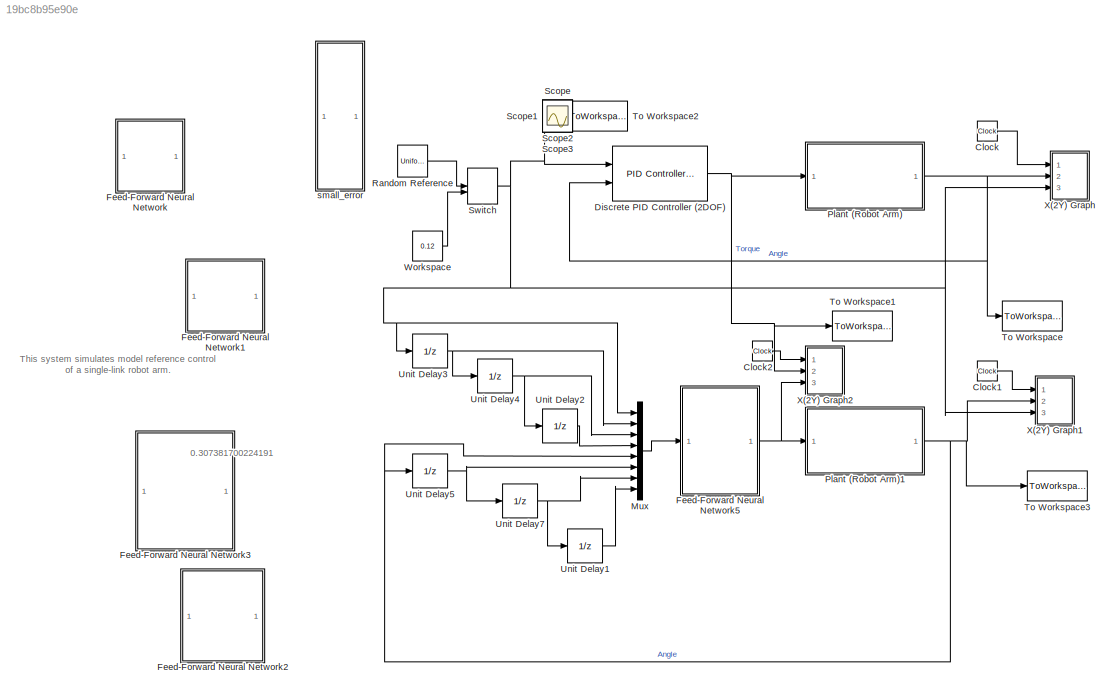
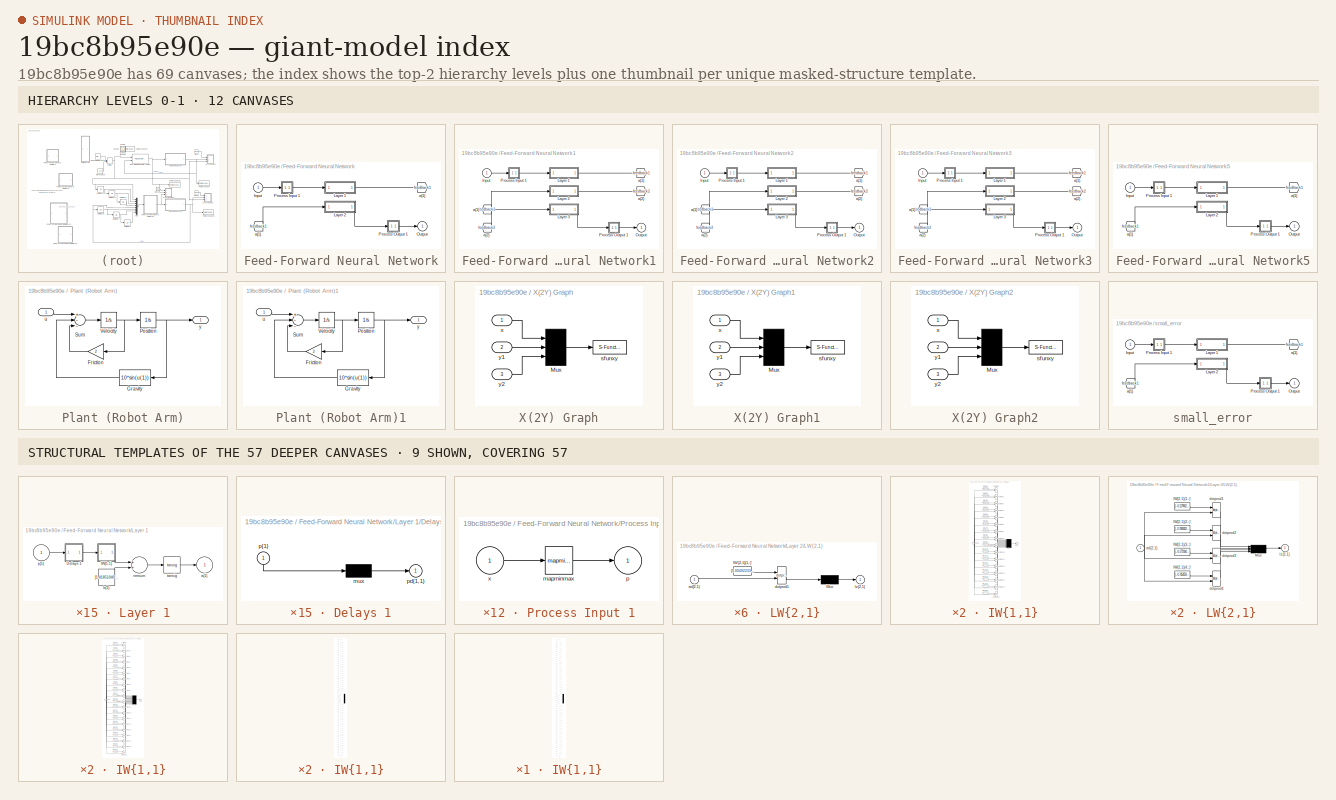
[diagram: thumbnail index - top-2 hierarchy levels (12 canvases) + 9 structural-template representatives of the remaining 57 canvases]
MODEL slx_19bc8b95e90e
KIND model
CONFIG AbsTol = 1e-6
CONFIG EnableMultiTasking = off
CONFIG FixedStep = auto
CONFIG MaxStep = auto
CONFIG MinStep = auto
CONFIG RelTol = 1e-3
CONFIG SampleTimeConstraint = Unconstrained
CONFIG Solver = FixedStepAuto
CONFIG SolverName = FixedStepAuto
CONFIG StartTime = 0.0
CONFIG StopTime = 60
BLOCK [Clock] Clock
BLOCK [Clock] Clock1
BLOCK [Clock] Clock2
BLOCK [Reference] Discrete PID Controller (2DOF)  REF=simulink/Continuous/PID Controller (2DOF)
  Ports = [2, 1]
  SourceBlock = simulink/Continuous/PID Controller (2DOF)
  SourceProductBaseCode = SL
  SourceProductName = Simulink
  SourceType = PID 2dof
BLOCK [SubSystem] Feed-Forward Neural Network
  Ports = [1, 1]
  RequestExecContextInheritance = off
BLOCK [From] Feed-Forward Neural Network/ a{1} 
  GotoTag = feedback1
BLOCK [Inport] Feed-Forward Neural Network/Input
  IconDisplay = Port number
  PortDimensions = 8
BLOCK [SubSystem] Feed-Forward Neural Network/Layer 1
  Ports = [1, 1]
  RequestExecContextInheritance = off
BLOCK [SubSystem] Feed-Forward Neural Network/Layer 1/Delays 1
  Ports = [1, 1]
  RequestExecContextInheritance = off
BLOCK [Mux] Feed-Forward Neural Network/Layer 1/Delays 1/mux
  Inputs = 1
  Ports = [1, 1]
BLOCK [Outport] Feed-Forward Neural Network/Layer 1/Delays 1/pd{1,1}
  IconDisplay = Port number
BLOCK [Inport] Feed-Forward Neural Network/Layer 1/Delays 1/p{1}
  IconDisplay = Port number
  PortDimensions = 8
BLOCK [SubSystem] Feed-Forward Neural Network/Layer 1/IW{1,1}
  Ports = [1, 1]
  RequestExecContextInheritance = off
BLOCK [Constant] Feed-Forward Neural Network/Layer 1/IW{1,1}/IW{1,1}(1,:)'
  Value = [-0.01009377639347205403430596248881556675769388675689697265625;-0.81917856322471305219323767232708632946014404296875;-1.0919884952677578748847508904873393476009368896484375;-0.3232934690770914443191941245459020137786865234375;1.0371983069879358030362936915480531752109527587890625;0.332566501638959455267041676052031107246875762939453125;-0.72214891052584950781323414048529230058193206787109375;0.41...<+52ch>
BLOCK [Constant] Feed-Forward Neural Network/Layer 1/IW{1,1}/IW{1,1}(10,:)'
  Value = [-0.0720979947310176616515065006751683540642261505126953125;1.1315755262161395489073356657172553241252899169921875;-0.69309946443650216618692638803622685372829437255859375;-0.1580631105350375487095249127378338016569614410400390625;-0.70708492198913841519924972089938819408416748046875;-0.9763414859311836391242422905634157359600067138671875;0.56334312317556867188983460437157191336154937744140625;-0....<+55ch>
BLOCK [Constant] Feed-Forward Neural Network/Layer 1/IW{1,1}/IW{1,1}(11,:)'
  Value = [1.514061787956713533986885522608645260334014892578125;-0.41268670620541703097927666021860204637050628662109375;-0.133355521691774558945553508237935602664947509765625;1.4642596982166242725043048267252743244171142578125;-0.92497175926368180309822264462127350270748138427734375;-0.0687966183859873847694643700378946959972381591796875;0.715766413497218589867543414584361016750335693359375;0.297493027725...<+41ch>
BLOCK [Constant] Feed-Forward Neural Network/Layer 1/IW{1,1}/IW{1,1}(12,:)'
  Value = [1.390052669090437120757997035980224609375;0.002873883030498494174642676313169431523419916629791259765625;-0.265197877421132155451033440840546973049640655517578125;-0.2012360557710944630738225669119856320321559906005859375;-0.73320460680185417512433332376531325280666351318359375;-0.0226500905621143909518533376967752701602876186370849609375;-0.0570080624637873747961869241862586932256817817687988281...<+50ch>
BLOCK [Constant] Feed-Forward Neural Network/Layer 1/IW{1,1}/IW{1,1}(13,:)'
  Value = [-1.1233476979256022953990168389282189309597015380859375;-1.2393693114673052235730210668407380580902099609375;0.7914246902064994149128551725880242884159088134765625;-0.274134462483511198716001899811089970171451568603515625;-0.7315570973101059859544648134033195674419403076171875;0.428567667581298328283168075358844362199306488037109375;1.018170137932393526369878600235097110271453857421875;0.49897495...<+46ch>
BLOCK [Constant] Feed-Forward Neural Network/Layer 1/IW{1,1}/IW{1,1}(14,:)'
  Value = [1.4765056748086795579411045764572918415069580078125;-0.90659967261472174104852683740318752825260162353515625;1.1508044721540480193056055213673971593379974365234375;-1.0136176640992273778607568601728416979312896728515625;-0.07767755483619455392219066425241180695593357086181640625;0.57299887905671254006989556728512980043888092041015625;0.449131233253424244633578155116993002593517303466796875;0.1613...<+52ch>
BLOCK [Constant] Feed-Forward Neural Network/Layer 1/IW{1,1}/IW{1,1}(15,:)'
  Value = [-0.94843552007180209617587252068915404379367828369140625;-0.455396495188023886502293180456035770475864410400390625;-0.71794256963177804919951086048968136310577392578125;-0.259356227336552891404863885327358730137348175048828125;-0.6977913420825629930988043270190246403217315673828125;1.4367856825259675002115500319632701575756072998046875;0.38097748667274744516220152945606969296932220458984375;-1.23...<+48ch>
BLOCK [Constant] Feed-Forward Neural Network/Layer 1/IW{1,1}/IW{1,1}(16,:)'
  Value = [-1.03952079910626782321969585609622299671173095703125;0.274781364075693590454108061749138869345188140869140625;-1.0171273753363585523601386739755980670452117919921875;-0.03878824548100874569644958000935730524361133575439453125;0.193393524233432978487456921357079409062862396240234375;0.832640986442755082208577732671983540058135986328125;-0.7503621573611758410748961978242732584476470947265625;-1.01...<+49ch>
BLOCK [Constant] Feed-Forward Neural Network/Layer 1/IW{1,1}/IW{1,1}(17,:)'
  Value = [1.7801051226057931220481123091303743422031402587890625;1.3780535999959975246298427009605802595615386962890625;0.1885363073008298473443034026786335743963718414306640625;0.365832667926227206312006501320865936577320098876953125;0.6397823368767736607054530395544134080410003662109375;0.379418365358508646867363722776644863188266754150390625;-0.26533033038375464229829958640038967132568359375;0.307523613...<+45ch>
BLOCK [Constant] Feed-Forward Neural Network/Layer 1/IW{1,1}/IW{1,1}(18,:)'
  Value = [-0.296670185432604427422376147660543210804462432861328125;-0.376072809350395387273380265469313599169254302978515625;-0.742727493493180901396044646389782428741455078125;0.86593116784423240783752362403902225196361541748046875;1.37064929615764707904190800036303699016571044921875;-0.59077170502804399188079287341679446399211883544921875;-0.150853642388064368429212436240050010383129119873046875;-0.8145...<+50ch>
BLOCK [Constant] Feed-Forward Neural Network/Layer 1/IW{1,1}/IW{1,1}(19,:)'
  Value = [-0.033343686056520986660256511413535918109118938446044921875;-0.5300304829595254840768348003621213138103485107421875;-0.66380007316216460555580169966560788452625274658203125;1.4047136071211827612614797544665634632110595703125;-1.4498046029545166302199277197360061109066009521484375;0.60291678893256517302035035754670388996601104736328125;-0.08866355731311535703920156947788200341165065765380859375;-...<+55ch>
BLOCK [Constant] Feed-Forward Neural Network/Layer 1/IW{1,1}/IW{1,1}(2,:)'
  Value = [0.70140207504615859068763938921620137989521026611328125;0.50190548995443251545367502330918796360492706298828125;1.178018179952304844704258357523940503597259521484375;1.2397835887663470888497840860509313642978668212890625;1.2796434023332323715038683076272718608379364013671875;-0.91185964599935942498376562070916406810283660888671875;-0.53150803539821700471890153494314290583133697509765625;0.6056446...<+47ch>
BLOCK [Constant] Feed-Forward Neural Network/Layer 1/IW{1,1}/IW{1,1}(20,:)'
  Value = [-1.139973592271053437485761605785228312015533447265625;0.922414963173714408384284979547373950481414794921875;0.573062580631909401773782519740052521228790283203125;-1.0638984585657997872232272129622288048267364501953125;0.26000003990170894585531868870020844042301177978515625;-1.0082968466580883859506911903736181557178497314453125;-0.427975846736409037962545198752195574343204498291015625;-0.4045240...<+48ch>
BLOCK [Constant] Feed-Forward Neural Network/Layer 1/IW{1,1}/IW{1,1}(21,:)'
  Value = [-0.035170709953433833272473663100754492916166782379150390625;-0.2048825226713566205472005776755395345389842987060546875;1.02054460527438362049679199117235839366912841796875;-1.0483393952073327692886550721595995128154754638671875;0.218116613354659649726130510316579602658748626708984375;-1.2810290950311611357648189368774183094501495361328125;0.9860421910966181702207222770084626972675323486328125;-0...<+55ch>
BLOCK [Constant] Feed-Forward Neural Network/Layer 1/IW{1,1}/IW{1,1}(22,:)'
  Value = [1.010583326137901583052780551952309906482696533203125;-0.34255096084721647908821751116192899644374847412109375;0.49744289643764882935528248708578757941722869873046875;0.81639407608297276386366547740180976688861846923828125;0.268321118702407546141586180965532548725605010986328125;-1.0453340103508159675271826927200891077518463134765625;1.0355195133497721027282523209578357636928558349609375;-0.53749...<+49ch>
BLOCK [Constant] Feed-Forward Neural Network/Layer 1/IW{1,1}/IW{1,1}(23,:)'
  Value = [1.038519220380671459480481644277460873126983642578125;0.833366743499137196948822747799567878246307373046875;1.2577080160119058493961574640707112848758697509765625;-0.401936187267794731159398224917822517454624176025390625;0.04902228607691017092662377763190306723117828369140625;-0.54247854896119485079708510966156609356403350830078125;-1.039179720087923808335972353233955800533294677734375;-0.5448646...<+46ch>
BLOCK [Constant] Feed-Forward Neural Network/Layer 1/IW{1,1}/IW{1,1}(24,:)'
  Value = [-1.4089377227153281335603196566808037459850311279296875;0.77299854810514367908780286597902886569499969482421875;0.309547994905805035070756048298790119588375091552734375;-0.279630711329400372111564365695812739431858062744140625;-1.453337035422787248961640216293744742870330810546875;0.139437025698908978466050712086143903434276580810546875;-0.56209102683994849325443965426529757678508758544921875;0.5...<+53ch>
BLOCK [Constant] Feed-Forward Neural Network/Layer 1/IW{1,1}/IW{1,1}(25,:)'
  Value = [-1.053825329600287741271813501953147351741790771484375;2.104248436455582460524738053209148347377777099609375;-1.389722016511392599369401068543083965778350830078125;0.70194513487137377705238350245053879916667938232421875;0.016033632287981595954118319014014559797942638397216796875;0.726493334124701295451131954905577003955841064453125;-0.138938571659139586955689082969911396503448486328125;0.48164231...<+46ch>
BLOCK [Constant] Feed-Forward Neural Network/Layer 1/IW{1,1}/IW{1,1}(26,:)'
  Value = [0.8218151121617001120256418289500288665294647216796875;1.237877827933333119148073819815181195735931396484375;0.578162601622759897423975417041219770908355712890625;-0.90524346095929486555320409024716354906558990478515625;-0.557227828939628633264646850875578820705413818359375;0.693063774200946891568264618399553000926971435546875;0.848423865073127725366930462769232690334320068359375;-0.7998183010585...<+40ch>
BLOCK [Constant] Feed-Forward Neural Network/Layer 1/IW{1,1}/IW{1,1}(27,:)'
  Value = [0.047049177951239286310514131628224276937544345855712890625;-0.491975786566918704689754804348922334611415863037109375;1.2519795722981628127712383502512238919734954833984375;-0.54908256817673317673467181521118618547916412353515625;-0.65890045944206165895451476899324916303157806396484375;-0.2162576647712697586189989351623808033764362335205078125;-0.09278042821038166854119566551162279210984706878662...<+64ch>
BLOCK [Constant] Feed-Forward Neural Network/Layer 1/IW{1,1}/IW{1,1}(28,:)'
  Value = [-0.3369231785042738902546943791094236075878143310546875;-0.181984775034675860805322145097306929528713226318359375;0.72097050985835930969614082641783170402050018310546875;0.389238215915795715549307942637824453413486480712890625;1.1885279226217166925749779693433083593845367431640625;-0.2162301922323874026066192755024530924856662750244140625;-0.55743284950293936486076518121990375220775604248046875;1...<+54ch>
BLOCK [Constant] Feed-Forward Neural Network/Layer 1/IW{1,1}/IW{1,1}(29,:)'
  Value = [0.09379409266803222233743753122325870208442211151123046875;0.8258233160961461205573641564114950597286224365234375;1.3081801207924230734391812802641652524471282958984375;0.1938697051900289125558884961719741113483905792236328125;0.573395538471701993188389678834937512874603271484375;-0.7356971128263525283585977376787923276424407958984375;0.182430235492571923838767133929650299251079559326171875;-1.25...<+49ch>
BLOCK [Constant] Feed-Forward Neural Network/Layer 1/IW{1,1}/IW{1,1}(3,:)'
  Value = [-0.1550192714260813786619763732232968322932720184326171875;0.267682004821501784430637371769989840686321258544921875;0.8213433311036910655644760481663979589939117431640625;0.2482384568506261768305876103113405406475067138671875;-0.61724220880742508565930393160670064389705657958984375;-0.79902255865863003325699764900491572916507720947265625;1.29132611134465502544799164752475917339324951171875;0.7532...<+49ch>
BLOCK [Constant] Feed-Forward Neural Network/Layer 1/IW{1,1}/IW{1,1}(30,:)'
  Value = [-0.10942991742337003502338887983569293282926082611083984375;-0.96617865662847624008691127528436481952667236328125;1.22815391380386440545180448680184781551361083984375;0.9209715069928978703472921552020125091075897216796875;-0.87794222936966936909897185614681802690029144287109375;0.58692975040539197006950189461349509656429290771484375;0.03017362296723884174109997502455371432006359100341796875;-0.90...<+52ch>
BLOCK [Constant] Feed-Forward Neural Network/Layer 1/IW{1,1}/IW{1,1}(31,:)'
  Value = [0.34784052246623431425831540764193050563335418701171875;0.7424319382244732867803804765571840107440948486328125;0.89792498586287472495115480342064984142780303955078125;1.099066964391795409028418362140655517578125;0.00058579181141991433501292618757361196912825107574462890625;-0.89695655979727340056939510759548284113407135009765625;1.25394388993594230186090499046258628368377685546875;0.9063532210672...<+41ch>
BLOCK [Constant] Feed-Forward Neural Network/Layer 1/IW{1,1}/IW{1,1}(32,:)'
  Value = [-0.71301072547602017959178510864148847758769989013671875;0.5241561595862809230794709947076626121997833251953125;0.3885115679967781066039833604008890688419342041015625;-0.69944953560710987350290679387398995459079742431640625;1.2447082577953547666282929640146903693675994873046875;0.3781402687772514870090390104451216757297515869140625;-1.0318004731634136117435218693572096526622772216796875;0.9363806...<+42ch>
BLOCK [Constant] Feed-Forward Neural Network/Layer 1/IW{1,1}/IW{1,1}(33,:)'
  Value = [-1.1732016294754872287597891045152209699153900146484375;-0.422969128171088615264494592338451184332370758056640625;0.54255586269967881474229898230987600982189178466796875;-0.73308841281237679954330133114126510918140411376953125;-0.97167834539178798980429974108119495213031768798828125;-1.202198002474001103934142520301975309848785400390625;-0.348202785759618882455157518052146770060062408447265625;-1...<+53ch>
BLOCK [Constant] Feed-Forward Neural Network/Layer 1/IW{1,1}/IW{1,1}(34,:)'
  Value = [1.77897181715445906746708715218119323253631591796875;-0.280453940129275436365929863313795067369937896728515625;0.367343171050295402846330716783995740115642547607421875;-1.008703116569453772655151624348945915699005126953125;0.2803758972512444547220411550370045006275177001953125;0.74306829139624663849161834150436334311962127685546875;-0.279494497759325277730368952688877470791339874267578125;0.98768...<+49ch>
BLOCK [Constant] Feed-Forward Neural Network/Layer 1/IW{1,1}/IW{1,1}(35,:)'
  Value = [0.97525219567861320957291582089965231716632843017578125;0.88646219952508398254309440744691528379917144775390625;-1.730996619538126335413608103408478200435638427734375;0.0396632946371748007496904619983979500830173492431640625;-0.409742039261921764392582190339453518390655517578125;-0.3665493088119438080951795200235210359096527099609375;1.41189287226400050911934158648364245891571044921875;0.06954074...<+48ch>
BLOCK [Constant] Feed-Forward Neural Network/Layer 1/IW{1,1}/IW{1,1}(36,:)'
  Value = [0.56072097014748345511492289006127975881099700927734375;-0.469901980631740989746703007767791859805583953857421875;0.6628153017091324983312006224878132343292236328125;0.7677647851080724450412162696011364459991455078125;-1.5570532384978843509770740638487040996551513671875;0.55547680871442739469756588732707314193248748779296875;0.399763330482430456758180525866919197142124176025390625;-0.601408206775...<+42ch>
BLOCK [Constant] Feed-Forward Neural Network/Layer 1/IW{1,1}/IW{1,1}(37,:)'
  Value = [1.2669431239388433407810907738166861236095428466796875;0.84499757606978864732383271984872408211231231689453125;-0.6865178873488713140460504291695542633533477783203125;0.86809844202686192726758918070117942988872528076171875;0.8608914789270685208322220205445773899555206298828125;1.177957103666323224189227403257973492145538330078125;-0.0379420015788152209523786950740031898021697998046875;-1.07598569...<+44ch>
BLOCK [Constant] Feed-Forward Neural Network/Layer 1/IW{1,1}/IW{1,1}(38,:)'
  Value = [0.55820098541315044116117860539816319942474365234375;0.79054831004162406937751939040026627480983734130859375;-0.8874852575703595647382826427929103374481201171875;-1.09062952986268868471597670577466487884521484375;-0.45622805513097752783124860798125155270099639892578125;-0.37040001200239436318639718592748977243900299072265625;-1.189528150446891974212348941364325582981109619140625;-1.11651607135004...<+38ch>
BLOCK [Constant] Feed-Forward Neural Network/Layer 1/IW{1,1}/IW{1,1}(39,:)'
  Value = [-0.2399389096781732455543334481262718327343463897705078125;1.3447224058359446008381610226933844387531280517578125;-1.38142976173474618661884960602037608623504638671875;0.474640863170868343434705138861318118870258331298828125;-0.1470266327579221321553148982275160960853099822998046875;-0.67018418152759551276176352985203266143798828125;-0.59239089958121649015510001845541410148143768310546875;0.13713...<+51ch>
BLOCK [Constant] Feed-Forward Neural Network/Layer 1/IW{1,1}/IW{1,1}(4,:)'
  Value = [1.4330533222863213183018160634674131870269775390625;-0.09029904425561195713267892415387905202805995941162109375;-0.1378620578092981940887540304174763150513172149658203125;-0.128678062876721510665589676136733032763004302978515625;0.700090148025589886771058445447124540805816650390625;0.59531505529047235025785766993067227303981781005859375;-0.08226765583024404915324367948414874263107776641845703125;...<+54ch>
BLOCK [Constant] Feed-Forward Neural Network/Layer 1/IW{1,1}/IW{1,1}(40,:)'
  Value = [-0.1166391943536552455729093935588025487959384918212890625;1.3594486796418383534046370186842978000640869140625;0.57698100738084712180153701410745270550251007080078125;-0.059919148073443929958248332923176349140703678131103515625;-0.789043368311738380072029030998237431049346923828125;-0.86628954342663500032273304896079935133457183837890625;0.14402892035788161795295536649064160883426666259765625;-0....<+52ch>
BLOCK [Constant] Feed-Forward Neural Network/Layer 1/IW{1,1}/IW{1,1}(41,:)'
  Value = [-1.881563343058816339947725282399915158748626708984375;0.9950257472784775902852061335579492151737213134765625;0.93709934505314451680391130139469169080257415771484375;-0.7473708296793655225798147512250579893589019775390625;-0.454191669232585137905289229820482432842254638671875;0.31070247408903550745407073918613605201244354248046875;-0.177938424903270664412247015206958167254924774169921875;-0.92376...<+48ch>
BLOCK [Constant] Feed-Forward Neural Network/Layer 1/IW{1,1}/IW{1,1}(42,:)'
  Value = [1.3702541153334115708872786854044534265995025634765625;-0.1156131328774818722848749530385248363018035888671875;0.614274810825514716583484187140129506587982177734375;0.318766942419542453901470935306861065328121185302734375;1.2991946873100921333588075867737643420696258544921875;-0.5215118465581591866708777160965837538242340087890625;0.565289984710197312978152694995515048503875732421875;0.9677004451...<+43ch>
BLOCK [Constant] Feed-Forward Neural Network/Layer 1/IW{1,1}/IW{1,1}(43,:)'
  Value = [2.260975757154053855657593885553069412708282470703125;-2.1510199031089261012539282091893255710601806640625;-0.077576990798844891461527595311054028570652008056640625;-0.4821861293228300038293809848255477845668792724609375;-0.365668656400341240964024791537667624652385711669921875;0.13451908107684185100794138634228147566318511962890625;0.232971221479439716262049842043779790401458740234375;-0.5691263...<+47ch>
BLOCK [Constant] Feed-Forward Neural Network/Layer 1/IW{1,1}/IW{1,1}(44,:)'
  Value = [-0.5223822035888729953256870430777780711650848388671875;-0.419199451858211669108555952334427274763584136962890625;0.312152287994981680885331343233701772987842559814453125;-0.39644961503704989613794396063894964754581451416015625;0.10427136538485380634622146089895977638661861419677734375;0.308491948074407051905154730775393545627593994140625;1.304266392973596477844466789974831044673919677734375;1.16...<+51ch>
BLOCK [Constant] Feed-Forward Neural Network/Layer 1/IW{1,1}/IW{1,1}(45,:)'
  Value = [1.534210386911081247518495729309506714344024658203125;-0.36943060246236936183805710243177600204944610595703125;-1.3810021468498721031181730722892098128795623779296875;1.937610501525079076401425481890328228473663330078125;-0.091496085529782889000927070810575969517230987548828125;-1.093079792816382678211084567010402679443359375;1.0732569773862798978569799146498553454875946044921875;-0.4018978359165...<+42ch>
BLOCK [Constant] Feed-Forward Neural Network/Layer 1/IW{1,1}/IW{1,1}(46,:)'
  Value = [0.1288959873434139813408449981579906307160854339599609375;-0.416959915904302536038272819496341980993747711181640625;0.5385013722251594803225316354655660688877105712890625;0.465201886438678935409285486457520164549350738525390625;-1.7869468184748829031605055206455290317535400390625;0.1867918035887883021484157097802381031215190887451171875;-0.5808952579994126619311600734363310039043426513671875;0.56...<+50ch>
BLOCK [Constant] Feed-Forward Neural Network/Layer 1/IW{1,1}/IW{1,1}(47,:)'
  Value = [0.36222648884403507718587889030459336936473846435546875;0.5520284332054365972197729206527583301067352294921875;-0.91340259002056656267853895769803784787654876708984375;-0.573216288087723402355777579941786825656890869140625;0.538586801260685366088409864460118114948272705078125;0.990522257548015705452826296095736324787139892578125;0.938203517005444798115831872564740478992462158203125;-0.67821259752...<+40ch>
BLOCK [Constant] Feed-Forward Neural Network/Layer 1/IW{1,1}/IW{1,1}(48,:)'
  Value = [0.73121981685810177875595172736211679875850677490234375;-0.274634926975565518691979605137021280825138092041015625;0.2147850429710086161971815954530029557645320892333984375;-0.390024797666452760491750950677669607102870941162109375;-1.0355270645634295778592104397830553352832794189453125;-1.2024609516377349205384916785988025367259979248046875;0.57731260016769481158149801558465696871280670166015625;1...<+53ch>
BLOCK [Constant] Feed-Forward Neural Network/Layer 1/IW{1,1}/IW{1,1}(49,:)'
  Value = [-0.62572930376387103645896559100947342813014984130859375;0.192305525516508091232736887832288630306720733642578125;0.29223319201677699918917596733081154525279998779296875;1.10515799470984266150708208442665636539459228515625;1.10419541007198862558880136930383741855621337890625;-0.362041175320139851923073592843138612806797027587890625;0.41853513630726524308300895427237264811992645263671875;-0.936345...<+48ch>
BLOCK [Constant] Feed-Forward Neural Network/Layer 1/IW{1,1}/IW{1,1}(5,:)'
  Value = [-1.6302017691206389660152353826561011373996734619140625;1.1658952120583834233258357926388271152973175048828125;0.328612534194750782745586548116989433765411376953125;0.057148484511901853633020209599635563790798187255859375;0.10199858774596597121853136513891513459384441375732421875;0.293689141264276809550892721745185554027557373046875;1.3574046633455922883371158604859374463558197021484375;0.5258140...<+47ch>
BLOCK [Constant] Feed-Forward Neural Network/Layer 1/IW{1,1}/IW{1,1}(50,:)'
  Value = [-0.46348471342679520290630534873344004154205322265625;0.144395497249082682689191869940259493887424468994140625;1.569600753927898661999051910242997109889984130859375;0.65189807807301225484053475156542845070362091064453125;1.799031349010675739918951876461505889892578125;0.08719481745500716474150948442911612801253795623779296875;0.38665738953421990853343004346243105828762054443359375;-1.077509303278...<+41ch>
BLOCK [Constant] Feed-Forward Neural Network/Layer 1/IW{1,1}/IW{1,1}(51,:)'
  Value = [-0.01527615504234090641755283712655000272206962108612060546875;0.88697721456426370512104995214031077921390533447265625;1.2210882097999109507924231365905143320560455322265625;0.498960703809830319332974113422096706926822662353515625;-1.3793098432327204339031823110417462885379791259765625;-1.1688876275862101206115539753227494657039642333984375;1.325778450150171039467750233598053455352783203125;0.069...<+54ch>
BLOCK [Constant] Feed-Forward Neural Network/Layer 1/IW{1,1}/IW{1,1}(52,:)'
  Value = [0.71550743237089575732312596301198936998844146728515625;-0.865346361151677623269051764509640634059906005859375;1.0974425824873133006320813365164212882518768310546875;0.5965439665360026122442604901152662932872772216796875;-1.010921177194115561093212818377651274204254150390625;-1.0352934979927310710223764544934965670108795166015625;-0.7936580582601122646480007460922934114933013916015625;-0.41136473...<+47ch>
BLOCK [Constant] Feed-Forward Neural Network/Layer 1/IW{1,1}/IW{1,1}(53,:)'
  Value = [0.970347886213300814262083804351277649402618408203125;1.3880928056877552823067389908828772604465484619140625;-0.220359308736878034551409655250608921051025390625;-0.2412131590352391274922894126575556583702564239501953125;-0.56985902808800192875793300117948092520236968994140625;0.40130853779968267414091087630367837846279144287109375;1.2578910474645230710422083575394935905933380126953125;-0.25411460...<+46ch>
BLOCK [Constant] Feed-Forward Neural Network/Layer 1/IW{1,1}/IW{1,1}(54,:)'
  Value = [0.6215198279374003487163236059132032096385955810546875;-1.629635888729266124386185765615664422512054443359375;0.189813216192437350660071615493507124483585357666015625;-0.06836090554733383062302465305037912912666797637939453125;0.35274989034390691333697986920014955103397369384765625;-0.475842857556607101710000051753013394773006439208984375;0.597827506479405190731313268770463764667510986328125;0.24...<+53ch>
BLOCK [Constant] Feed-Forward Neural Network/Layer 1/IW{1,1}/IW{1,1}(55,:)'
  Value = [1.8098193413499281678724628363852389156818389892578125;-0.09592364790899783610900186658909660764038562774658203125;-1.1330799946994758453655549601535312831401824951171875;0.5919175716670486142589879818842746317386627197265625;-1.044925954678059820679436597856692969799041748046875;-0.3521206025328933453266699871164746582508087158203125;-0.231675457456909816844614624642417766153812408447265625;-0.5...<+50ch>
BLOCK [Constant] Feed-Forward Neural Network/Layer 1/IW{1,1}/IW{1,1}(56,:)'
  Value = [0.49524675244069238377875308287912048399448394775390625;-0.32085303463104819510220977463177405297756195068359375;1.5868530634614510521629426875733770430088043212890625;0.07934255612787487199621949685024446807801723480224609375;-0.049147746670952723035963316533525357954204082489013671875;-0.167621864207881554609258500931900925934314727783203125;-0.10239989093653291407637340171277173794806003570556...<+63ch>
BLOCK [Constant] Feed-Forward Neural Network/Layer 1/IW{1,1}/IW{1,1}(57,:)'
  Value = [-0.004584091751976726754336244340493067284114658832550048828125;0.57095023784875997829857396936859004199504852294921875;0.99630031803517249411328293717815540730953216552734375;-0.448051294260545851511068349282140843570232391357421875;-0.1349218039294430848684669399517588317394256591796875;0.0024354417994565317855115704759327854844741523265838623046875;-1.356980261976751478414371376857161521911621...<+61ch>
BLOCK [Constant] Feed-Forward Neural Network/Layer 1/IW{1,1}/IW{1,1}(58,:)'
  Value = [-0.43613854272731555905551203977665863931179046630859375;-0.259467967369604701755037012844695709645748138427734375;-0.2173661717909125268288761390067520551383495330810546875;1.3584206321968093078567108022980391979217529296875;-0.8707305475482562950872988949413411319255828857421875;1.0281351707122923233583833280135877430438995361328125;0.054981595812180726612350412096930085681378841400146484375;-1...<+54ch>
BLOCK [Constant] Feed-Forward Neural Network/Layer 1/IW{1,1}/IW{1,1}(59,:)'
  Value = [0.57912934968435758609217600678675808012485504150390625;-0.019169885476493231379890858079306781291961669921875;1.048224020115640531258804912795312702655792236328125;-1.07616784288998434959694350254721939563751220703125;1.053626695484267461466743043274618685245513916015625;-0.638475744430138991702960993279702961444854736328125;1.3358629448222665292433930517290718853473663330078125;0.32574941002756...<+41ch>
BLOCK [Constant] Feed-Forward Neural Network/Layer 1/IW{1,1}/IW{1,1}(6,:)'
  Value = [-0.5296965562707980357259884840459562838077545166015625;-0.38973649361983742078763270910712890326976776123046875;0.781382901275863961387813105829991400241851806640625;-1.8999187984653505001375606298097409307956695556640625;0.327049510341089810783188340792548842728137969970703125;0.97702923276992403867069469924899749457836151123046875;0.0751277132824597904114938273778534494340419769287109375;0.739...<+51ch>
BLOCK [Constant] Feed-Forward Neural Network/Layer 1/IW{1,1}/IW{1,1}(60,:)'
  Value = [1.2508633191597102740644231744226999580860137939453125;-1.02487913267402586114940277184359729290008544921875;0.483219843313159092001995986720430664718151092529296875;-0.046964282878300685208916576129922759719192981719970703125;-0.930479706035839182476365749607793986797332763671875;-0.82052825178220090140968068226356990635395050048828125;-0.2486035869029936395957491868102806620299816131591796875;0...<+55ch>
BLOCK [Constant] Feed-Forward Neural Network/Layer 1/IW{1,1}/IW{1,1}(7,:)'
  Value = [0.68032605516399258238635638917912729084491729736328125;-0.82607080608675909072502463459386490285396575927734375;0.57667091589975749688079531551920808851718902587890625;1.147983462953082511859292935696430504322052001953125;0.034658174975503421022526850947542698122560977935791015625;-0.26517017097192663310778470986406318843364715576171875;-1.271746072867304011566602639504708349704742431640625;-0.9...<+52ch>
BLOCK [Constant] Feed-Forward Neural Network/Layer 1/IW{1,1}/IW{1,1}(8,:)'
  Value = [-0.2002158985673191671228465793319628573954105377197265625;1.2512917023421910034386428378638811409473419189453125;-0.3086854689243434535228516324423253536224365234375;1.4460723698274182691392297783750109374523162841796875;-0.810958505206266888620803001685999333858489990234375;-0.63250653250160071561225549885421060025691986083984375;0.420108068424603187107635449137887917459011077880859375;-0.08649...<+52ch>
BLOCK [Constant] Feed-Forward Neural Network/Layer 1/IW{1,1}/IW{1,1}(9,:)'
  Value = [0.433515971015396128773744521822663955390453338623046875;0.7393100955140632368767228399519808590412139892578125;1.160413870956238380216518635279498994350433349609375;0.787274914069288289653059109696187078952789306640625;1.141160026323889464805461102514527738094329833984375;0.87966431079810314397349202408804558217525482177734375;-0.8784005081573618145540649493341334164142608642578125;0.42061155803...<+43ch>
BLOCK [Mux] Feed-Forward Neural Network/Layer 1/IW{1,1}/Mux
  Inputs = 60
  Ports = [60, 1]
BLOCK [Reference] Feed-Forward Neural Network/Layer 1/IW{1,1}/dotprod1  REF=neural/Weight Functions/dotprod
  Ports = [2, 1]
  SourceBlock = neural/Weight Functions/dotprod
  SourceProductBaseCode = NN
  SourceProductName = Neural Network Toolbox
  SourceType = DOTPROD
BLOCK [Reference] Feed-Forward Neural Network/Layer 1/IW{1,1}/dotprod10  REF=neural/Weight Functions/dotprod
  Ports = [2, 1]
  SourceBlock = neural/Weight Functions/dotprod
  SourceProductBaseCode = NN
  SourceProductName = Neural Network Toolbox
  SourceType = DOTPROD
BLOCK [Reference] Feed-Forward Neural Network/Layer 1/IW{1,1}/dotprod11  REF=neural/Weight Functions/dotprod
  Ports = [2, 1]
  SourceBlock = neural/Weight Functions/dotprod
  SourceProductBaseCode = NN
  SourceProductName = Neural Network Toolbox
  SourceType = DOTPROD
BLOCK [Reference] Feed-Forward Neural Network/Layer 1/IW{1,1}/dotprod12  REF=neural/Weight Functions/dotprod
  Ports = [2, 1]
  SourceBlock = neural/Weight Functions/dotprod
  SourceProductBaseCode = NN
  SourceProductName = Neural Network Toolbox
  SourceType = DOTPROD
BLOCK [Reference] Feed-Forward Neural Network/Layer 1/IW{1,1}/dotprod13  REF=neural/Weight Functions/dotprod
  Ports = [2, 1]
  SourceBlock = neural/Weight Functions/dotprod
  SourceProductBaseCode = NN
  SourceProductName = Neural Network Toolbox
  SourceType = DOTPROD
BLOCK [Reference] Feed-Forward Neural Network/Layer 1/IW{1,1}/dotprod14  REF=neural/Weight Functions/dotprod
  Ports = [2, 1]
  SourceBlock = neural/Weight Functions/dotprod
  SourceProductBaseCode = NN
  SourceProductName = Neural Network Toolbox
  SourceType = DOTPROD
BLOCK [Reference] Feed-Forward Neural Network/Layer 1/IW{1,1}/dotprod15  REF=neural/Weight Functions/dotprod
  Ports = [2, 1]
  SourceBlock = neural/Weight Functions/dotprod
  SourceProductBaseCode = NN
  SourceProductName = Neural Network Toolbox
  SourceType = DOTPROD
BLOCK [Reference] Feed-Forward Neural Network/Layer 1/IW{1,1}/dotprod16  REF=neural/Weight Functions/dotprod
  Ports = [2, 1]
  SourceBlock = neural/Weight Functions/dotprod
  SourceProductBaseCode = NN
  SourceProductName = Neural Network Toolbox
  SourceType = DOTPROD
BLOCK [Reference] Feed-Forward Neural Network/Layer 1/IW{1,1}/dotprod17  REF=neural/Weight Functions/dotprod
  Ports = [2, 1]
  SourceBlock = neural/Weight Functions/dotprod
  SourceProductBaseCode = NN
  SourceProductName = Neural Network Toolbox
  SourceType = DOTPROD
BLOCK [Reference] Feed-Forward Neural Network/Layer 1/IW{1,1}/dotprod18  REF=neural/Weight Functions/dotprod
  Ports = [2, 1]
  SourceBlock = neural/Weight Functions/dotprod
  SourceProductBaseCode = NN
  SourceProductName = Neural Network Toolbox
  SourceType = DOTPROD
BLOCK [Reference] Feed-Forward Neural Network/Layer 1/IW{1,1}/dotprod19  REF=neural/Weight Functions/dotprod
  Ports = [2, 1]
  SourceBlock = neural/Weight Functions/dotprod
  SourceProductBaseCode = NN
  SourceProductName = Neural Network Toolbox
  SourceType = DOTPROD
BLOCK [Reference] Feed-Forward Neural Network/Layer 1/IW{1,1}/dotprod2  REF=neural/Weight Functions/dotprod
  Ports = [2, 1]
  SourceBlock = neural/Weight Functions/dotprod
  SourceProductBaseCode = NN
  SourceProductName = Neural Network Toolbox
  SourceType = DOTPROD
BLOCK [Reference] Feed-Forward Neural Network/Layer 1/IW{1,1}/dotprod20  REF=neural/Weight Functions/dotprod
  Ports = [2, 1]
  SourceBlock = neural/Weight Functions/dotprod
  SourceProductBaseCode = NN
  SourceProductName = Neural Network Toolbox
  SourceType = DOTPROD
BLOCK [Reference] Feed-Forward Neural Network/Layer 1/IW{1,1}/dotprod21  REF=neural/Weight Functions/dotprod
  Ports = [2, 1]
  SourceBlock = neural/Weight Functions/dotprod
  SourceProductBaseCode = NN
  SourceProductName = Neural Network Toolbox
  SourceType = DOTPROD
BLOCK [Reference] Feed-Forward Neural Network/Layer 1/IW{1,1}/dotprod22  REF=neural/Weight Functions/dotprod
  Ports = [2, 1]
  SourceBlock = neural/Weight Functions/dotprod
  SourceProductBaseCode = NN
  SourceProductName = Neural Network Toolbox
  SourceType = DOTPROD
BLOCK [Reference] Feed-Forward Neural Network/Layer 1/IW{1,1}/dotprod23  REF=neural/Weight Functions/dotprod
  Ports = [2, 1]
  SourceBlock = neural/Weight Functions/dotprod
  SourceProductBaseCode = NN
  SourceProductName = Neural Network Toolbox
  SourceType = DOTPROD
BLOCK [Reference] Feed-Forward Neural Network/Layer 1/IW{1,1}/dotprod24  REF=neural/Weight Functions/dotprod
  Ports = [2, 1]
  SourceBlock = neural/Weight Functions/dotprod
  SourceProductBaseCode = NN
  SourceProductName = Neural Network Toolbox
  SourceType = DOTPROD
BLOCK [Reference] Feed-Forward Neural Network/Layer 1/IW{1,1}/dotprod25  REF=neural/Weight Functions/dotprod
  Ports = [2, 1]
  SourceBlock = neural/Weight Functions/dotprod
  SourceProductBaseCode = NN
  SourceProductName = Neural Network Toolbox
  SourceType = DOTPROD
BLOCK [Reference] Feed-Forward Neural Network/Layer 1/IW{1,1}/dotprod26  REF=neural/Weight Functions/dotprod
  Ports = [2, 1]
  SourceBlock = neural/Weight Functions/dotprod
  SourceProductBaseCode = NN
  SourceProductName = Neural Network Toolbox
  SourceType = DOTPROD
BLOCK [Reference] Feed-Forward Neural Network/Layer 1/IW{1,1}/dotprod27  REF=neural/Weight Functions/dotprod
  Ports = [2, 1]
  SourceBlock = neural/Weight Functions/dotprod
  SourceProductBaseCode = NN
  SourceProductName = Neural Network Toolbox
  SourceType = DOTPROD
BLOCK [Reference] Feed-Forward Neural Network/Layer 1/IW{1,1}/dotprod28  REF=neural/Weight Functions/dotprod
  Ports = [2, 1]
  SourceBlock = neural/Weight Functions/dotprod
  SourceProductBaseCode = NN
  SourceProductName = Neural Network Toolbox
  SourceType = DOTPROD
BLOCK [Reference] Feed-Forward Neural Network/Layer 1/IW{1,1}/dotprod29  REF=neural/Weight Functions/dotprod
  Ports = [2, 1]
  SourceBlock = neural/Weight Functions/dotprod
  SourceProductBaseCode = NN
  SourceProductName = Neural Network Toolbox
  SourceType = DOTPROD
BLOCK [Reference] Feed-Forward Neural Network/Layer 1/IW{1,1}/dotprod3  REF=neural/Weight Functions/dotprod
  Ports = [2, 1]
  SourceBlock = neural/Weight Functions/dotprod
  SourceProductBaseCode = NN
  SourceProductName = Neural Network Toolbox
  SourceType = DOTPROD
BLOCK [Reference] Feed-Forward Neural Network/Layer 1/IW{1,1}/dotprod30  REF=neural/Weight Functions/dotprod
  Ports = [2, 1]
  SourceBlock = neural/Weight Functions/dotprod
  SourceProductBaseCode = NN
  SourceProductName = Neural Network Toolbox
  SourceType = DOTPROD
BLOCK [Reference] Feed-Forward Neural Network/Layer 1/IW{1,1}/dotprod31  REF=neural/Weight Functions/dotprod
  Ports = [2, 1]
  SourceBlock = neural/Weight Functions/dotprod
  SourceProductBaseCode = NN
  SourceProductName = Neural Network Toolbox
  SourceType = DOTPROD
BLOCK [Reference] Feed-Forward Neural Network/Layer 1/IW{1,1}/dotprod32  REF=neural/Weight Functions/dotprod
  Ports = [2, 1]
  SourceBlock = neural/Weight Functions/dotprod
  SourceProductBaseCode = NN
  SourceProductName = Neural Network Toolbox
  SourceType = DOTPROD
BLOCK [Reference] Feed-Forward Neural Network/Layer 1/IW{1,1}/dotprod33  REF=neural/Weight Functions/dotprod
  Ports = [2, 1]
  SourceBlock = neural/Weight Functions/dotprod
  SourceProductBaseCode = NN
  SourceProductName = Neural Network Toolbox
  SourceType = DOTPROD
BLOCK [Reference] Feed-Forward Neural Network/Layer 1/IW{1,1}/dotprod34  REF=neural/Weight Functions/dotprod
  Ports = [2, 1]
  SourceBlock = neural/Weight Functions/dotprod
  SourceProductBaseCode = NN
  SourceProductName = Neural Network Toolbox
  SourceType = DOTPROD
BLOCK [Reference] Feed-Forward Neural Network/Layer 1/IW{1,1}/dotprod35  REF=neural/Weight Functions/dotprod
  Ports = [2, 1]
  SourceBlock = neural/Weight Functions/dotprod
  SourceProductBaseCode = NN
  SourceProductName = Neural Network Toolbox
  SourceType = DOTPROD
BLOCK [Reference] Feed-Forward Neural Network/Layer 1/IW{1,1}/dotprod36  REF=neural/Weight Functions/dotprod
  Ports = [2, 1]
  SourceBlock = neural/Weight Functions/dotprod
  SourceProductBaseCode = NN
  SourceProductName = Neural Network Toolbox
  SourceType = DOTPROD
BLOCK [Reference] Feed-Forward Neural Network/Layer 1/IW{1,1}/dotprod37  REF=neural/Weight Functions/dotprod
  Ports = [2, 1]
  SourceBlock = neural/Weight Functions/dotprod
  SourceProductBaseCode = NN
  SourceProductName = Neural Network Toolbox
  SourceType = DOTPROD
BLOCK [Reference] Feed-Forward Neural Network/Layer 1/IW{1,1}/dotprod38  REF=neural/Weight Functions/dotprod
  Ports = [2, 1]
  SourceBlock = neural/Weight Functions/dotprod
  SourceProductBaseCode = NN
  SourceProductName = Neural Network Toolbox
  SourceType = DOTPROD
BLOCK [Reference] Feed-Forward Neural Network/Layer 1/IW{1,1}/dotprod39  REF=neural/Weight Functions/dotprod
  Ports = [2, 1]
  SourceBlock = neural/Weight Functions/dotprod
  SourceProductBaseCode = NN
  SourceProductName = Neural Network Toolbox
  SourceType = DOTPROD
BLOCK [Reference] Feed-Forward Neural Network/Layer 1/IW{1,1}/dotprod4  REF=neural/Weight Functions/dotprod
  Ports = [2, 1]
  SourceBlock = neural/Weight Functions/dotprod
  SourceProductBaseCode = NN
  SourceProductName = Neural Network Toolbox
  SourceType = DOTPROD
BLOCK [Reference] Feed-Forward Neural Network/Layer 1/IW{1,1}/dotprod40  REF=neural/Weight Functions/dotprod
  Ports = [2, 1]
  SourceBlock = neural/Weight Functions/dotprod
  SourceProductBaseCode = NN
  SourceProductName = Neural Network Toolbox
  SourceType = DOTPROD
BLOCK [Reference] Feed-Forward Neural Network/Layer 1/IW{1,1}/dotprod41  REF=neural/Weight Functions/dotprod
  Ports = [2, 1]
  SourceBlock = neural/Weight Functions/dotprod
  SourceProductBaseCode = NN
  SourceProductName = Neural Network Toolbox
  SourceType = DOTPROD
BLOCK [Reference] Feed-Forward Neural Network/Layer 1/IW{1,1}/dotprod42  REF=neural/Weight Functions/dotprod
  Ports = [2, 1]
  SourceBlock = neural/Weight Functions/dotprod
  SourceProductBaseCode = NN
  SourceProductName = Neural Network Toolbox
  SourceType = DOTPROD
BLOCK [Reference] Feed-Forward Neural Network/Layer 1/IW{1,1}/dotprod43  REF=neural/Weight Functions/dotprod
  Ports = [2, 1]
  SourceBlock = neural/Weight Functions/dotprod
  SourceProductBaseCode = NN
  SourceProductName = Neural Network Toolbox
  SourceType = DOTPROD
BLOCK [Reference] Feed-Forward Neural Network/Layer 1/IW{1,1}/dotprod44  REF=neural/Weight Functions/dotprod
  Ports = [2, 1]
  SourceBlock = neural/Weight Functions/dotprod
  SourceProductBaseCode = NN
  SourceProductName = Neural Network Toolbox
  SourceType = DOTPROD
BLOCK [Reference] Feed-Forward Neural Network/Layer 1/IW{1,1}/dotprod45  REF=neural/Weight Functions/dotprod
  Ports = [2, 1]
  SourceBlock = neural/Weight Functions/dotprod
  SourceProductBaseCode = NN
  SourceProductName = Neural Network Toolbox
  SourceType = DOTPROD
BLOCK [Reference] Feed-Forward Neural Network/Layer 1/IW{1,1}/dotprod46  REF=neural/Weight Functions/dotprod
  Ports = [2, 1]
  SourceBlock = neural/Weight Functions/dotprod
  SourceProductBaseCode = NN
  SourceProductName = Neural Network Toolbox
  SourceType = DOTPROD
BLOCK [Reference] Feed-Forward Neural Network/Layer 1/IW{1,1}/dotprod47  REF=neural/Weight Functions/dotprod
  Ports = [2, 1]
  SourceBlock = neural/Weight Functions/dotprod
  SourceProductBaseCode = NN
  SourceProductName = Neural Network Toolbox
  SourceType = DOTPROD
BLOCK [Reference] Feed-Forward Neural Network/Layer 1/IW{1,1}/dotprod48  REF=neural/Weight Functions/dotprod
  Ports = [2, 1]
  SourceBlock = neural/Weight Functions/dotprod
  SourceProductBaseCode = NN
  SourceProductName = Neural Network Toolbox
  SourceType = DOTPROD
BLOCK [Reference] Feed-Forward Neural Network/Layer 1/IW{1,1}/dotprod49  REF=neural/Weight Functions/dotprod
  Ports = [2, 1]
  SourceBlock = neural/Weight Functions/dotprod
  SourceProductBaseCode = NN
  SourceProductName = Neural Network Toolbox
  SourceType = DOTPROD
BLOCK [Reference] Feed-Forward Neural Network/Layer 1/IW{1,1}/dotprod5  REF=neural/Weight Functions/dotprod
  Ports = [2, 1]
  SourceBlock = neural/Weight Functions/dotprod
  SourceProductBaseCode = NN
  SourceProductName = Neural Network Toolbox
  SourceType = DOTPROD
BLOCK [Reference] Feed-Forward Neural Network/Layer 1/IW{1,1}/dotprod50  REF=neural/Weight Functions/dotprod
  Ports = [2, 1]
  SourceBlock = neural/Weight Functions/dotprod
  SourceProductBaseCode = NN
  SourceProductName = Neural Network Toolbox
  SourceType = DOTPROD
BLOCK [Reference] Feed-Forward Neural Network/Layer 1/IW{1,1}/dotprod51  REF=neural/Weight Functions/dotprod
  Ports = [2, 1]
  SourceBlock = neural/Weight Functions/dotprod
  SourceProductBaseCode = NN
  SourceProductName = Neural Network Toolbox
  SourceType = DOTPROD
BLOCK [Reference] Feed-Forward Neural Network/Layer 1/IW{1,1}/dotprod52  REF=neural/Weight Functions/dotprod
  Ports = [2, 1]
  SourceBlock = neural/Weight Functions/dotprod
  SourceProductBaseCode = NN
  SourceProductName = Neural Network Toolbox
  SourceType = DOTPROD
BLOCK [Reference] Feed-Forward Neural Network/Layer 1/IW{1,1}/dotprod53  REF=neural/Weight Functions/dotprod
  Ports = [2, 1]
  SourceBlock = neural/Weight Functions/dotprod
  SourceProductBaseCode = NN
  SourceProductName = Neural Network Toolbox
  SourceType = DOTPROD
BLOCK [Reference] Feed-Forward Neural Network/Layer 1/IW{1,1}/dotprod54  REF=neural/Weight Functions/dotprod
  Ports = [2, 1]
  SourceBlock = neural/Weight Functions/dotprod
  SourceProductBaseCode = NN
  SourceProductName = Neural Network Toolbox
  SourceType = DOTPROD
BLOCK [Reference] Feed-Forward Neural Network/Layer 1/IW{1,1}/dotprod55  REF=neural/Weight Functions/dotprod
  Ports = [2, 1]
  SourceBlock = neural/Weight Functions/dotprod
  SourceProductBaseCode = NN
  SourceProductName = Neural Network Toolbox
  SourceType = DOTPROD
BLOCK [Reference] Feed-Forward Neural Network/Layer 1/IW{1,1}/dotprod56  REF=neural/Weight Functions/dotprod
  Ports = [2, 1]
  SourceBlock = neural/Weight Functions/dotprod
  SourceProductBaseCode = NN
  SourceProductName = Neural Network Toolbox
  SourceType = DOTPROD
BLOCK [Reference] Feed-Forward Neural Network/Layer 1/IW{1,1}/dotprod57  REF=neural/Weight Functions/dotprod
  Ports = [2, 1]
  SourceBlock = neural/Weight Functions/dotprod
  SourceProductBaseCode = NN
  SourceProductName = Neural Network Toolbox
  SourceType = DOTPROD
BLOCK [Reference] Feed-Forward Neural Network/Layer 1/IW{1,1}/dotprod58  REF=neural/Weight Functions/dotprod
  Ports = [2, 1]
  SourceBlock = neural/Weight Functions/dotprod
  SourceProductBaseCode = NN
  SourceProductName = Neural Network Toolbox
  SourceType = DOTPROD
BLOCK [Reference] Feed-Forward Neural Network/Layer 1/IW{1,1}/dotprod59  REF=neural/Weight Functions/dotprod
  Ports = [2, 1]
  SourceBlock = neural/Weight Functions/dotprod
  SourceProductBaseCode = NN
  SourceProductName = Neural Network Toolbox
  SourceType = DOTPROD
BLOCK [Reference] Feed-Forward Neural Network/Layer 1/IW{1,1}/dotprod6  REF=neural/Weight Functions/dotprod
  Ports = [2, 1]
  SourceBlock = neural/Weight Functions/dotprod
  SourceProductBaseCode = NN
  SourceProductName = Neural Network Toolbox
  SourceType = DOTPROD
BLOCK [Reference] Feed-Forward Neural Network/Layer 1/IW{1,1}/dotprod60  REF=neural/Weight Functions/dotprod
  Ports = [2, 1]
  SourceBlock = neural/Weight Functions/dotprod
  SourceProductBaseCode = NN
  SourceProductName = Neural Network Toolbox
  SourceType = DOTPROD
BLOCK [Reference] Feed-Forward Neural Network/Layer 1/IW{1,1}/dotprod7  REF=neural/Weight Functions/dotprod
  Ports = [2, 1]
  SourceBlock = neural/Weight Functions/dotprod
  SourceProductBaseCode = NN
  SourceProductName = Neural Network Toolbox
  SourceType = DOTPROD
BLOCK [Reference] Feed-Forward Neural Network/Layer 1/IW{1,1}/dotprod8  REF=neural/Weight Functions/dotprod
  Ports = [2, 1]
  SourceBlock = neural/Weight Functions/dotprod
  SourceProductBaseCode = NN
  SourceProductName = Neural Network Toolbox
  SourceType = DOTPROD
BLOCK [Reference] Feed-Forward Neural Network/Layer 1/IW{1,1}/dotprod9  REF=neural/Weight Functions/dotprod
  Ports = [2, 1]
  SourceBlock = neural/Weight Functions/dotprod
  SourceProductBaseCode = NN
  SourceProductName = Neural Network Toolbox
  SourceType = DOTPROD
BLOCK [Outport] Feed-Forward Neural Network/Layer 1/IW{1,1}/iz{1,1}
  IconDisplay = Port number
BLOCK [Inport] Feed-Forward Neural Network/Layer 1/IW{1,1}/pd{1,1}
  IconDisplay = Port number
  PortDimensions = 8
BLOCK [Outport] Feed-Forward Neural Network/Layer 1/a{1}
  IconDisplay = Port number
  InitialOutput = [0;0;0;0;0;0;0;0;0;0;0;0;0;0;0;0;0;0;0;0;0;0;0;0;0;0;0;0;0;0;0;0;0;0;0;0;0;0;0;0;0;0;0;0;0;0;0;0;0;0;0;0;0;0;0;0;0;0;0;0]
BLOCK [Constant] Feed-Forward Neural Network/Layer 1/b{1}
  Value = [1.4185104005258810655476509055006317794322967529296875;-1.851338015551337701225520504522137343883514404296875;-2.5324399792361571570609157788567245006561279296875;-1.942914763780711151497371247387491166591644287109375;1.172822069967762725894999675801955163478851318359375;2.735945319742147940900167668587528169155120849609375;-1.8696776613995369498155696419416926801204681396484375;1.994855064416449...<+2909ch>
BLOCK [Sum] Feed-Forward Neural Network/Layer 1/netsum
  Inputs = 2
  Ports = [2, 1]
BLOCK [Inport] Feed-Forward Neural Network/Layer 1/p{1}
  IconDisplay = Port number
  PortDimensions = 8
BLOCK [Reference] Feed-Forward Neural Network/Layer 1/tansig  REF=neural/Transfer Functions/tansig
  Ports = [1, 1]
  SourceBlock = neural/Transfer Functions/tansig
  SourceProductBaseCode = NN
  SourceProductName = Neural Network Toolbox
  SourceType = TANSIG
BLOCK [SubSystem] Feed-Forward Neural Network/Layer 2
  Ports = [1, 1]
  RequestExecContextInheritance = off
BLOCK [SubSystem] Feed-Forward Neural Network/Layer 2/Delays 1
  Ports = [1, 1]
  RequestExecContextInheritance = off
BLOCK [Mux] Feed-Forward Neural Network/Layer 2/Delays 1/mux
  Inputs = 1
  Ports = [1, 1]
BLOCK [Outport] Feed-Forward Neural Network/Layer 2/Delays 1/pd{2,1}
  IconDisplay = Port number
BLOCK [Inport] Feed-Forward Neural Network/Layer 2/Delays 1/p{2}
  IconDisplay = Port number
  PortDimensions = 60
BLOCK [SubSystem] Feed-Forward Neural Network/Layer 2/LW{2,1}
  Ports = [1, 1]
  RequestExecContextInheritance = off
BLOCK [Constant] Feed-Forward Neural Network/Layer 2/LW{2,1}/IW{2,1}(1,:)'
  Value = [0.004922335615622427072712863349579492933116853237152099609375;-0.000568123825967846766103741540376859120442532002925872802734375;-0.088069540363433007623683579367934726178646087646484375;0.008040519008257716870868847536257817409932613372802734375;-1.1046255112634393302784019397222436964511871337890625;1.0155388829671150308087135272216983139514923095703125;-0.0584137446587948971910009277053177356...<+3101ch>
BLOCK [Mux] Feed-Forward Neural Network/Layer 2/LW{2,1}/Mux
  Inputs = 1
  Ports = [1, 1]
BLOCK [Inport] Feed-Forward Neural Network/Layer 2/LW{2,1}/ad{2,1}
  IconDisplay = Port number
  PortDimensions = 60
BLOCK [Reference] Feed-Forward Neural Network/Layer 2/LW{2,1}/dotprod1  REF=neural/Weight Functions/dotprod
  Ports = [2, 1]
  SourceBlock = neural/Weight Functions/dotprod
  SourceProductBaseCode = NN
  SourceProductName = Neural Network Toolbox
  SourceType = DOTPROD
BLOCK [Outport] Feed-Forward Neural Network/Layer 2/LW{2,1}/lz{2,1}
  IconDisplay = Port number
BLOCK [Inport] Feed-Forward Neural Network/Layer 2/a{1} 
  IconDisplay = Port number
  PortDimensions = 60
BLOCK [Outport] Feed-Forward Neural Network/Layer 2/a{2}
  IconDisplay = Port number
  InitialOutput = 0
BLOCK [Constant] Feed-Forward Neural Network/Layer 2/b{2}
  Value = -0.164986066534634545632798108272254467010498046875
BLOCK [Sum] Feed-Forward Neural Network/Layer 2/netsum
  Inputs = 2
  Ports = [2, 1]
BLOCK [Reference] Feed-Forward Neural Network/Layer 2/tansig  REF=neural/Transfer Functions/tansig
  Ports = [1, 1]
  SourceBlock = neural/Transfer Functions/tansig
  SourceProductBaseCode = NN
  SourceProductName = Neural Network Toolbox
  SourceType = TANSIG
BLOCK [Outport] Feed-Forward Neural Network/Output
  IconDisplay = Port number
  InitialOutput = 0
BLOCK [SubSystem] Feed-Forward Neural Network/Process Input 1
  Ports = [1, 1]
  RequestExecContextInheritance = off
BLOCK [Reference] Feed-Forward Neural Network/Process Input 1/mapminmax  REF=neural/Processing Functions/mapminmax
  Ports = [1, 1]
  SourceBlock = neural/Processing Functions/mapminmax
  SourceProductBaseCode = NN
  SourceProductName = Neural Network Toolbox
  SourceType = MAPMINMAX Preprocess
BLOCK [Outport] Feed-Forward Neural Network/Process Input 1/p
  IconDisplay = Port number
  PortDimensions = 8
BLOCK [Inport] Feed-Forward Neural Network/Process Input 1/x
  IconDisplay = Port number
  PortDimensions = 8
BLOCK [SubSystem] Feed-Forward Neural Network/Process Output 1
  Ports = [1, 1]
  RequestExecContextInheritance = off
BLOCK [Inport] Feed-Forward Neural Network/Process Output 1/a
  IconDisplay = Port number
  PortDimensions = 1
BLOCK [Reference] Feed-Forward Neural Network/Process Output 1/mapminmax_reverse  REF=neural/Processing Functions/mapminmax_reverse
  Ports = [1, 1]
  SourceBlock = neural/Processing Functions/mapminmax_reverse
  SourceProductBaseCode = NN
  SourceProductName = Neural Network Toolbox
  SourceType = MAPMINMAX Reverse Process
BLOCK [Outport] Feed-Forward Neural Network/Process Output 1/y
  IconDisplay = Port number
  PortDimensions = 1
BLOCK [Goto] Feed-Forward Neural Network/a{1}
  GotoTag = feedback1
BLOCK [SubSystem] Feed-Forward Neural Network1
  Ports = [1, 1]
  RequestExecContextInheritance = off
BLOCK [From] Feed-Forward Neural Network1/ a{1} 
  GotoTag = feedback1
BLOCK [From] Feed-Forward Neural Network1/ a{2} 
  GotoTag = feedback2
BLOCK [Inport] Feed-Forward Neural Network1/Input
  IconDisplay = Port number
  PortDimensions = 8
BLOCK [SubSystem] Feed-Forward Neural Network1/Layer 1
  Ports = [1, 1]
  RequestExecContextInheritance = off
BLOCK [SubSystem] Feed-Forward Neural Network1/Layer 1/Delays 1
  Ports = [1, 1]
  RequestExecContextInheritance = off
BLOCK [Mux] Feed-Forward Neural Network1/Layer 1/Delays 1/mux
  Inputs = 1
  Ports = [1, 1]
BLOCK [Outport] Feed-Forward Neural Network1/Layer 1/Delays 1/pd{1,1}
  IconDisplay = Port number
BLOCK [Inport] Feed-Forward Neural Network1/Layer 1/Delays 1/p{1}
  IconDisplay = Port number
  PortDimensions = 8
BLOCK [SubSystem] Feed-Forward Neural Network1/Layer 1/IW{1,1}
  Ports = [1, 1]
  RequestExecContextInheritance = off
BLOCK [Constant] Feed-Forward Neural Network1/Layer 1/IW{1,1}/IW{1,1}(1,:)'
  Value = [-0.489435165671598337855385807415586896240711212158203125;-0.59790642458332443620605545220314525067806243896484375;0.9462514542685998009119430207647383213043212890625;0.87465564536648532367735242587514221668243408203125;-1.4123419584819483230120340522262267768383026123046875;0.364318026214990597910770020462223328649997711181640625;0.476243895384673543436093723357771523296833038330078125;-0.941614...<+48ch>
BLOCK [Constant] Feed-Forward Neural Network1/Layer 1/IW{1,1}/IW{1,1}(10,:)'
  Value = [0.24784818454698787082435273987357504665851593017578125;0.428137490507039142340062198854866437613964080810546875;-0.279368989082627694475746693569817580282688140869140625;0.635561926772618246417323462083004415035247802734375;-0.2661724130434099944153558681136928498744964599609375;0.84937640623256982497224498729337938129901885986328125;1.1481977763386710389426070832996629178524017333984375;0.14703...<+51ch>
BLOCK [Constant] Feed-Forward Neural Network1/Layer 1/IW{1,1}/IW{1,1}(11,:)'
  Value = [0.4509913927567001934448853717185556888580322265625;0.7052495398937128623373382652061991393566131591796875;-0.7838302343464118582261335177463479340076446533203125;1.4900741834051085543677572786691598594188690185546875;-0.527849453687423864067795875598676502704620361328125;-1.02175108583142648654984441236592829227447509765625;-0.52620304449603716445693635250790975987911224365234375;-0.623800221172...<+41ch>
BLOCK [Constant] Feed-Forward Neural Network1/Layer 1/IW{1,1}/IW{1,1}(12,:)'
  Value = [-1.6021052877080024234857091869344003498554229736328125;-0.400230307522328410119172303893719799816608428955078125;0.77757489461041362499571505395579151809215545654296875;0.2472458939471125216602587215675157494843006134033203125;-0.1976112083793134244213973715886822901666164398193359375;0.04669389623471220662764835651614703238010406494140625;0.511283230600608984417476676753722131252288818359375;-0...<+56ch>
BLOCK [Constant] Feed-Forward Neural Network1/Layer 1/IW{1,1}/IW{1,1}(13,:)'
  Value = [-1.6051933424153304041936962676118128001689910888671875;-1.5266914996233234003142342771752737462520599365234375;0.332608030744975857739831326398416422307491302490234375;-0.59175031390800969521848173826583661139011383056640625;0.45672389039967864476921022287569940090179443359375;-0.1611477461390518894912560199372819624841213226318359375;0.0258266856071377344516992735634630662389099597930908203125;...<+55ch>
BLOCK [Constant] Feed-Forward Neural Network1/Layer 1/IW{1,1}/IW{1,1}(14,:)'
  Value = [-0.20824009402255339029608194323373027145862579345703125;-0.63002483804711406634169179596938192844390869140625;0.6012849457953872711613030332955531775951385498046875;0.1919364347106604640202931477688252925872802734375;-0.56970968188246418062448128694086335599422454833984375;0.2051097651594903925609258976692217402160167694091796875;0.260356801348437638665700433193705976009368896484375;1.5726063671...<+43ch>
BLOCK [Constant] Feed-Forward Neural Network1/Layer 1/IW{1,1}/IW{1,1}(15,:)'
  Value = [0.6453341252687445628311024847789667546749114990234375;-0.5310115058985160896298793886671774089336395263671875;-0.48721002209239483438096840473008342087268829345703125;-0.63616173475083803712237795480177737772464752197265625;-0.455222345196995281657592613555607385933399200439453125;-0.20214300406766472217867658400791697204113006591796875;0.85975492967386080156444450039998628199100494384765625;-0....<+54ch>
BLOCK [Constant] Feed-Forward Neural Network1/Layer 1/IW{1,1}/IW{1,1}(16,:)'
  Value = [-1.2705032748254423413669655928970314562320709228515625;0.460182504971557937434312179902917705476284027099609375;-0.7014528933886319261858943718834780156612396240234375;-1.3600973186092204514352488331496715545654296875;-0.380943287230387894748417920709471218287944793701171875;-0.182287628267785828395375347099616192281246185302734375;0.76493247291822685784978830270119942724704742431640625;-0.14689...<+51ch>
BLOCK [Constant] Feed-Forward Neural Network1/Layer 1/IW{1,1}/IW{1,1}(2,:)'
  Value = [0.05544360121873585789398219958457048051059246063232421875;-0.6084945450961765089914479176513850688934326171875;0.8236590711365157080336985018220730125904083251953125;0.0942136023378637166292293159131077118217945098876953125;-0.10857743809028670700644880753316101618111133575439453125;0.02981406738831320069049723997522960416972637176513671875;0.19842163773260218517791031445085536688566207885742187...<+56ch>
BLOCK [Constant] Feed-Forward Neural Network1/Layer 1/IW{1,1}/IW{1,1}(3,:)'
  Value = [-0.293870924391490262461701377105782739818096160888671875;0.48987560205334046425917904343805275857448577880859375;-0.226064051583725611482833528498304076492786407470703125;0.54526247608860656246321241269470192492008209228515625;-1.0762508709854230470881475412170402705669403076171875;0.54304733376469815908649252378381788730621337890625;0.0237025381828885155222064184954433585517108440399169921875;-...<+57ch>
BLOCK [Constant] Feed-Forward Neural Network1/Layer 1/IW{1,1}/IW{1,1}(4,:)'
  Value = [1.46243602440109743412222087499685585498809814453125;-0.6143515017476561812515001292922534048557281494140625;-0.813339714393659818369997083209455013275146484375;0.12431520627244212195972039580738055519759654998779296875;1.0257454781333077420413246727548539638519287109375;-1.3024201622922590981801249654381535947322845458984375;0.57650698104107267472073772296425886452198028564453125;0.2053734627936...<+41ch>
BLOCK [Constant] Feed-Forward Neural Network1/Layer 1/IW{1,1}/IW{1,1}(5,:)'
  Value = [0.2161689026789992140731300196421216242015361785888671875;-1.068678632626362201563097187317907810211181640625;0.57330147110937723642365426712785847485065460205078125;0.08697750843062114489701031061485991813242435455322265625;-0.325667357124172607285572667024098336696624755859375;-0.04243784278384317432131211944579263217747211456298828125;1.123940770278660128411729601793922483921051025390625;1.301...<+50ch>
BLOCK [Constant] Feed-Forward Neural Network1/Layer 1/IW{1,1}/IW{1,1}(6,:)'
  Value = [-1.2478069984792659052885710480040870606899261474609375;-0.1258253740427072997487556449414114467799663543701171875;-0.88679456135978573794176327282912097871303558349609375;-0.2182788795135275072833991316656465642154216766357421875;-0.7833970842850959126479892802308313548564910888671875;0.9419426170986813229291101379203610122203826904296875;-1.05803585202793914987751122680492699146270751953125;0.9...<+52ch>
BLOCK [Constant] Feed-Forward Neural Network1/Layer 1/IW{1,1}/IW{1,1}(7,:)'
  Value = [1.59052415695107551840692394762299954891204833984375;-1.407606543352498018606411278597079217433929443359375;-0.33944053433563514676762906674412079155445098876953125;-0.72464187144598124490357804461382329463958740234375;1.7120549882542188679934724859776906669139862060546875;-0.74145695282181967034063063692883588373661041259765625;0.50968036339168032444746359033160842955112457275390625;0.8365012774...<+44ch>
BLOCK [Constant] Feed-Forward Neural Network1/Layer 1/IW{1,1}/IW{1,1}(8,:)'
  Value = [0.0659504331933596088521909450719249434769153594970703125;-0.98697499307263447665405919906334020197391510009765625;1.1401596825984083860561213441542349755764007568359375;-1.0640028818961406731347096865647472441196441650390625;-0.4904056650842238962439978422480635344982147216796875;-0.361254192958798736601266909929108805954456329345703125;-0.41512670811280916183250155881978571414947509765625;-0.43...<+52ch>
BLOCK [Constant] Feed-Forward Neural Network1/Layer 1/IW{1,1}/IW{1,1}(9,:)'
  Value = [0.9288936158440825874293977904017083346843719482421875;0.1536580527370895177252663188482983969151973724365234375;-1.1504658879815246041999898807262070477008819580078125;-0.5619971281848823441151807855931110680103302001953125;-0.304875849992781444708356275441474281251430511474609375;-0.857832390191720417504939177888445556163787841796875;0.6730201883496238490778296181815676391124725341796875;0.3308...<+51ch>
BLOCK [Mux] Feed-Forward Neural Network1/Layer 1/IW{1,1}/Mux
  Inputs = 16
  Ports = [16, 1]
BLOCK [Reference] Feed-Forward Neural Network1/Layer 1/IW{1,1}/dotprod1  REF=neural/Weight Functions/dotprod
  Ports = [2, 1]
  SourceBlock = neural/Weight Functions/dotprod
  SourceProductBaseCode = NN
  SourceProductName = Neural Network Toolbox
  SourceType = DOTPROD
BLOCK [Reference] Feed-Forward Neural Network1/Layer 1/IW{1,1}/dotprod10  REF=neural/Weight Functions/dotprod
  Ports = [2, 1]
  SourceBlock = neural/Weight Functions/dotprod
  SourceProductBaseCode = NN
  SourceProductName = Neural Network Toolbox
  SourceType = DOTPROD
BLOCK [Reference] Feed-Forward Neural Network1/Layer 1/IW{1,1}/dotprod11  REF=neural/Weight Functions/dotprod
  Ports = [2, 1]
  SourceBlock = neural/Weight Functions/dotprod
  SourceProductBaseCode = NN
  SourceProductName = Neural Network Toolbox
  SourceType = DOTPROD
BLOCK [Reference] Feed-Forward Neural Network1/Layer 1/IW{1,1}/dotprod12  REF=neural/Weight Functions/dotprod
  Ports = [2, 1]
  SourceBlock = neural/Weight Functions/dotprod
  SourceProductBaseCode = NN
  SourceProductName = Neural Network Toolbox
  SourceType = DOTPROD
BLOCK [Reference] Feed-Forward Neural Network1/Layer 1/IW{1,1}/dotprod13  REF=neural/Weight Functions/dotprod
  Ports = [2, 1]
  SourceBlock = neural/Weight Functions/dotprod
  SourceProductBaseCode = NN
  SourceProductName = Neural Network Toolbox
  SourceType = DOTPROD
BLOCK [Reference] Feed-Forward Neural Network1/Layer 1/IW{1,1}/dotprod14  REF=neural/Weight Functions/dotprod
  Ports = [2, 1]
  SourceBlock = neural/Weight Functions/dotprod
  SourceProductBaseCode = NN
  SourceProductName = Neural Network Toolbox
  SourceType = DOTPROD
BLOCK [Reference] Feed-Forward Neural Network1/Layer 1/IW{1,1}/dotprod15  REF=neural/Weight Functions/dotprod
  Ports = [2, 1]
  SourceBlock = neural/Weight Functions/dotprod
  SourceProductBaseCode = NN
  SourceProductName = Neural Network Toolbox
  SourceType = DOTPROD
BLOCK [Reference] Feed-Forward Neural Network1/Layer 1/IW{1,1}/dotprod16  REF=neural/Weight Functions/dotprod
  Ports = [2, 1]
  SourceBlock = neural/Weight Functions/dotprod
  SourceProductBaseCode = NN
  SourceProductName = Neural Network Toolbox
  SourceType = DOTPROD
BLOCK [Reference] Feed-Forward Neural Network1/Layer 1/IW{1,1}/dotprod2  REF=neural/Weight Functions/dotprod
  Ports = [2, 1]
  SourceBlock = neural/Weight Functions/dotprod
  SourceProductBaseCode = NN
  SourceProductName = Neural Network Toolbox
  SourceType = DOTPROD
BLOCK [Reference] Feed-Forward Neural Network1/Layer 1/IW{1,1}/dotprod3  REF=neural/Weight Functions/dotprod
  Ports = [2, 1]
  SourceBlock = neural/Weight Functions/dotprod
  SourceProductBaseCode = NN
  SourceProductName = Neural Network Toolbox
  SourceType = DOTPROD
BLOCK [Reference] Feed-Forward Neural Network1/Layer 1/IW{1,1}/dotprod4  REF=neural/Weight Functions/dotprod
  Ports = [2, 1]
  SourceBlock = neural/Weight Functions/dotprod
  SourceProductBaseCode = NN
  SourceProductName = Neural Network Toolbox
  SourceType = DOTPROD
BLOCK [Reference] Feed-Forward Neural Network1/Layer 1/IW{1,1}/dotprod5  REF=neural/Weight Functions/dotprod
  Ports = [2, 1]
  SourceBlock = neural/Weight Functions/dotprod
  SourceProductBaseCode = NN
  SourceProductName = Neural Network Toolbox
  SourceType = DOTPROD
BLOCK [Reference] Feed-Forward Neural Network1/Layer 1/IW{1,1}/dotprod6  REF=neural/Weight Functions/dotprod
  Ports = [2, 1]
  SourceBlock = neural/Weight Functions/dotprod
  SourceProductBaseCode = NN
  SourceProductName = Neural Network Toolbox
  SourceType = DOTPROD
BLOCK [Reference] Feed-Forward Neural Network1/Layer 1/IW{1,1}/dotprod7  REF=neural/Weight Functions/dotprod
  Ports = [2, 1]
  SourceBlock = neural/Weight Functions/dotprod
  SourceProductBaseCode = NN
  SourceProductName = Neural Network Toolbox
  SourceType = DOTPROD
BLOCK [Reference] Feed-Forward Neural Network1/Layer 1/IW{1,1}/dotprod8  REF=neural/Weight Functions/dotprod
  Ports = [2, 1]
  SourceBlock = neural/Weight Functions/dotprod
  SourceProductBaseCode = NN
  SourceProductName = Neural Network Toolbox
  SourceType = DOTPROD
BLOCK [Reference] Feed-Forward Neural Network1/Layer 1/IW{1,1}/dotprod9  REF=neural/Weight Functions/dotprod
  Ports = [2, 1]
  SourceBlock = neural/Weight Functions/dotprod
  SourceProductBaseCode = NN
  SourceProductName = Neural Network Toolbox
  SourceType = DOTPROD
BLOCK [Outport] Feed-Forward Neural Network1/Layer 1/IW{1,1}/iz{1,1}
  IconDisplay = Port number
BLOCK [Inport] Feed-Forward Neural Network1/Layer 1/IW{1,1}/pd{1,1}
  IconDisplay = Port number
  PortDimensions = 8
BLOCK [Outport] Feed-Forward Neural Network1/Layer 1/a{1}
  IconDisplay = Port number
  InitialOutput = [0;0;0;0;0;0;0;0;0;0;0;0;0;0;0;0]
BLOCK [Constant] Feed-Forward Neural Network1/Layer 1/b{1}
  Value = [1.8177211990044617184736353010521270334720611572265625;-0.5718808903184184888601748752989806234836578369140625;-0.950352181855710131941350482520647346973419189453125;-1.8939601440818349953332244695047847926616668701171875;0.11820181188819434137116104466258548200130462646484375;1.217228516374946334366313749342225492000579833984375;-0.219178003024152356914555639377795159816741943359375;-0.328242486...<+499ch>
BLOCK [Sum] Feed-Forward Neural Network1/Layer 1/netsum
  Inputs = 2
  Ports = [2, 1]
BLOCK [Inport] Feed-Forward Neural Network1/Layer 1/p{1}
  IconDisplay = Port number
  PortDimensions = 8
BLOCK [Reference] Feed-Forward Neural Network1/Layer 1/tansig  REF=neural/Transfer Functions/tansig
  Ports = [1, 1]
  SourceBlock = neural/Transfer Functions/tansig
  SourceProductBaseCode = NN
  SourceProductName = Neural Network Toolbox
  SourceType = TANSIG
BLOCK [SubSystem] Feed-Forward Neural Network1/Layer 2
  Ports = [1, 1]
  RequestExecContextInheritance = off
BLOCK [SubSystem] Feed-Forward Neural Network1/Layer 2/Delays 1
  Ports = [1, 1]
  RequestExecContextInheritance = off
BLOCK [Mux] Feed-Forward Neural Network1/Layer 2/Delays 1/mux
  Inputs = 1
  Ports = [1, 1]
BLOCK [Outport] Feed-Forward Neural Network1/Layer 2/Delays 1/pd{2,1}
  IconDisplay = Port number
BLOCK [Inport] Feed-Forward Neural Network1/Layer 2/Delays 1/p{2}
  IconDisplay = Port number
  PortDimensions = 16
BLOCK [SubSystem] Feed-Forward Neural Network1/Layer 2/LW{2,1}
  Ports = [1, 1]
  RequestExecContextInheritance = off
BLOCK [Constant] Feed-Forward Neural Network1/Layer 2/LW{2,1}/IW{2,1}(1,:)'
  Value = [-0.11795628438408246874136153792278491891920566558837890625;-0.7266789733215304192270878047565929591655731201171875;-0.01225474918483036683436449010287105920724570751190185546875;1.02269129686591053740585266496054828166961669921875;0.5591836780849244181723634028458036482334136962890625;0.42706217586793082663376708296709693968296051025390625;-0.41738829383252612492682942502142395824193954467773437...<+512ch>
BLOCK [Constant] Feed-Forward Neural Network1/Layer 2/LW{2,1}/IW{2,1}(2,:)'
  Value = [-0.70693226414642784671826802878058515489101409912109375;0.256775847609288121464743426258792169392108917236328125;-0.94969196839098402040946211855043657124042510986328125;-0.424726446476546837249799182245624251663684844970703125;0.11347593592205339196876678897751844488084316253662109375;0.008291581221170109261553449186976649798452854156494140625;0.1784639836572024240712863729640957899391651153564...<+561ch>
BLOCK [Constant] Feed-Forward Neural Network1/Layer 2/LW{2,1}/IW{2,1}(3,:)'
  Value = [-0.177218403680896530172361735822050832211971282958984375;-1.6435982186071356192513803762267343699932098388671875;-0.365543489992732950621956433678860776126384735107421875;-0.64029549655489381709827512167976237833499908447265625;-0.05527517403068492318762849890845245681703090667724609375;-0.0192559918460919743399273329487186856567859649658203125;-0.796389030637631556430733326124027371406555175781...<+509ch>
BLOCK [Constant] Feed-Forward Neural Network1/Layer 2/LW{2,1}/IW{2,1}(4,:)'
  Value = [-0.7454559855908058363382906463812105357646942138671875;-0.1806292113311284974752624066240969114005565643310546875;-0.54735698289510048564210364929749630391597747802734375;0.7599786448544338934851793965208344161510467529296875;0.83126805597514608070497388325748033821582794189453125;0.11427376477351146311089991058906889520585536956787109375;1.2631282692396996747419279927271418273448944091796875;0....<+514ch>
BLOCK [Mux] Feed-Forward Neural Network1/Layer 2/LW{2,1}/Mux
  Ports = [4, 1]
BLOCK [Inport] Feed-Forward Neural Network1/Layer 2/LW{2,1}/ad{2,1}
  IconDisplay = Port number
  PortDimensions = 16
BLOCK [Reference] Feed-Forward Neural Network1/Layer 2/LW{2,1}/dotprod1  REF=neural/Weight Functions/dotprod
  Ports = [2, 1]
  SourceBlock = neural/Weight Functions/dotprod
  SourceProductBaseCode = NN
  SourceProductName = Neural Network Toolbox
  SourceType = DOTPROD
BLOCK [Reference] Feed-Forward Neural Network1/Layer 2/LW{2,1}/dotprod2  REF=neural/Weight Functions/dotprod
  Ports = [2, 1]
  SourceBlock = neural/Weight Functions/dotprod
  SourceProductBaseCode = NN
  SourceProductName = Neural Network Toolbox
  SourceType = DOTPROD
BLOCK [Reference] Feed-Forward Neural Network1/Layer 2/LW{2,1}/dotprod3  REF=neural/Weight Functions/dotprod
  Ports = [2, 1]
  SourceBlock = neural/Weight Functions/dotprod
  SourceProductBaseCode = NN
  SourceProductName = Neural Network Toolbox
  SourceType = DOTPROD
BLOCK [Reference] Feed-Forward Neural Network1/Layer 2/LW{2,1}/dotprod4  REF=neural/Weight Functions/dotprod
  Ports = [2, 1]
  SourceBlock = neural/Weight Functions/dotprod
  SourceProductBaseCode = NN
  SourceProductName = Neural Network Toolbox
  SourceType = DOTPROD
BLOCK [Outport] Feed-Forward Neural Network1/Layer 2/LW{2,1}/lz{2,1}
  IconDisplay = Port number
BLOCK [Inport] Feed-Forward Neural Network1/Layer 2/a{1} 
  IconDisplay = Port number
  PortDimensions = 16
BLOCK [Outport] Feed-Forward Neural Network1/Layer 2/a{2}
  IconDisplay = Port number
  InitialOutput = [0;0;0;0]
BLOCK [Constant] Feed-Forward Neural Network1/Layer 2/b{2}
  Value = [-1.776988831187364947794549152604304254055023193359375;0.466203393098353846557557744745281524956226348876953125;-0.2715561877299965676257897939649410545825958251953125;-1.43122454359940132206929774838499724864959716796875]
BLOCK [Sum] Feed-Forward Neural Network1/Layer 2/netsum
  Inputs = 2
  Ports = [2, 1]
BLOCK [Reference] Feed-Forward Neural Network1/Layer 2/tansig  REF=neural/Transfer Functions/tansig
  Ports = [1, 1]
  SourceBlock = neural/Transfer Functions/tansig
  SourceProductBaseCode = NN
  SourceProductName = Neural Network Toolbox
  SourceType = TANSIG
BLOCK [SubSystem] Feed-Forward Neural Network1/Layer 3
  Ports = [1, 1]
  RequestExecContextInheritance = off
BLOCK [SubSystem] Feed-Forward Neural Network1/Layer 3/Delays 1
  Ports = [1, 1]
  RequestExecContextInheritance = off
BLOCK [Mux] Feed-Forward Neural Network1/Layer 3/Delays 1/mux
  Inputs = 1
  Ports = [1, 1]
BLOCK [Outport] Feed-Forward Neural Network1/Layer 3/Delays 1/pd{3,2}
  IconDisplay = Port number
BLOCK [Inport] Feed-Forward Neural Network1/Layer 3/Delays 1/p{3}
  IconDisplay = Port number
  PortDimensions = 4
BLOCK [SubSystem] Feed-Forward Neural Network1/Layer 3/LW{3,2}
  Ports = [1, 1]
  RequestExecContextInheritance = off
BLOCK [Constant] Feed-Forward Neural Network1/Layer 3/LW{3,2}/IW{3,2}(1,:)'
  Value = [-0.8539034967679299814591331596602685749530792236328125;1.09024610933651100452834725729189813137054443359375;-0.03959408350371797224998005049201310612261295318603515625;0.76830465253955981808076103334315121173858642578125]
BLOCK [Mux] Feed-Forward Neural Network1/Layer 3/LW{3,2}/Mux
  Inputs = 1
  Ports = [1, 1]
BLOCK [Inport] Feed-Forward Neural Network1/Layer 3/LW{3,2}/ad{3,2}
  IconDisplay = Port number
  PortDimensions = 4
BLOCK [Reference] Feed-Forward Neural Network1/Layer 3/LW{3,2}/dotprod1  REF=neural/Weight Functions/dotprod
  Ports = [2, 1]
  SourceBlock = neural/Weight Functions/dotprod
  SourceProductBaseCode = NN
  SourceProductName = Neural Network Toolbox
  SourceType = DOTPROD
BLOCK [Outport] Feed-Forward Neural Network1/Layer 3/LW{3,2}/lz{3,2}
  IconDisplay = Port number
BLOCK [Inport] Feed-Forward Neural Network1/Layer 3/a{2} 
  IconDisplay = Port number
  PortDimensions = 4
BLOCK [Outport] Feed-Forward Neural Network1/Layer 3/a{3}
  IconDisplay = Port number
  InitialOutput = 0
BLOCK [Constant] Feed-Forward Neural Network1/Layer 3/b{3}
  Value = -0.61124917495152597535224003877374343574047088623046875
BLOCK [Sum] Feed-Forward Neural Network1/Layer 3/netsum
  Inputs = 2
  Ports = [2, 1]
BLOCK [Reference] Feed-Forward Neural Network1/Layer 3/purelin  REF=neural/Transfer Functions/purelin
  Ports = [1, 1]
  SourceBlock = neural/Transfer Functions/purelin
  SourceProductBaseCode = NN
  SourceProductName = Neural Network Toolbox
  SourceType = PURELIN
BLOCK [Outport] Feed-Forward Neural Network1/Output
  IconDisplay = Port number
  InitialOutput = 0
BLOCK [SubSystem] Feed-Forward Neural Network1/Process Input 1
  Ports = [1, 1]
  RequestExecContextInheritance = off
BLOCK [Reference] Feed-Forward Neural Network1/Process Input 1/mapminmax  REF=neural/Processing Functions/mapminmax
  Ports = [1, 1]
  SourceBlock = neural/Processing Functions/mapminmax
  SourceProductBaseCode = NN
  SourceProductName = Neural Network Toolbox
  SourceType = MAPMINMAX Preprocess
BLOCK [Outport] Feed-Forward Neural Network1/Process Input 1/p
  IconDisplay = Port number
  PortDimensions = 8
BLOCK [Inport] Feed-Forward Neural Network1/Process Input 1/x
  IconDisplay = Port number
  PortDimensions = 8
BLOCK [SubSystem] Feed-Forward Neural Network1/Process Output 1
  Ports = [1, 1]
  RequestExecContextInheritance = off
BLOCK [Inport] Feed-Forward Neural Network1/Process Output 1/a
  IconDisplay = Port number
  PortDimensions = 1
BLOCK [Reference] Feed-Forward Neural Network1/Process Output 1/mapminmax_reverse  REF=neural/Processing Functions/mapminmax_reverse
  Ports = [1, 1]
  SourceBlock = neural/Processing Functions/mapminmax_reverse
  SourceProductBaseCode = NN
  SourceProductName = Neural Network Toolbox
  SourceType = MAPMINMAX Reverse Process
BLOCK [Outport] Feed-Forward Neural Network1/Process Output 1/y
  IconDisplay = Port number
  PortDimensions = 1
BLOCK [Goto] Feed-Forward Neural Network1/a{1}
  GotoTag = feedback1
BLOCK [Goto] Feed-Forward Neural Network1/a{2}
  GotoTag = feedback2
BLOCK [SubSystem] Feed-Forward Neural Network2
  Ports = [1, 1]
  RequestExecContextInheritance = off
BLOCK [From] Feed-Forward Neural Network2/ a{1} 
  GotoTag = feedback1
BLOCK [From] Feed-Forward Neural Network2/ a{2} 
  GotoTag = feedback2
BLOCK [Inport] Feed-Forward Neural Network2/Input
  IconDisplay = Port number
  PortDimensions = 8
BLOCK [SubSystem] Feed-Forward Neural Network2/Layer 1
  Ports = [1, 1]
  RequestExecContextInheritance = off
BLOCK [SubSystem] Feed-Forward Neural Network2/Layer 1/Delays 1
  Ports = [1, 1]
  RequestExecContextInheritance = off
BLOCK [Mux] Feed-Forward Neural Network2/Layer 1/Delays 1/mux
  Inputs = 1
  Ports = [1, 1]
BLOCK [Outport] Feed-Forward Neural Network2/Layer 1/Delays 1/pd{1,1}
  IconDisplay = Port number
BLOCK [Inport] Feed-Forward Neural Network2/Layer 1/Delays 1/p{1}
  IconDisplay = Port number
  PortDimensions = 8
BLOCK [SubSystem] Feed-Forward Neural Network2/Layer 1/IW{1,1}
  Ports = [1, 1]
  RequestExecContextInheritance = off
BLOCK [Constant] Feed-Forward Neural Network2/Layer 1/IW{1,1}/IW{1,1}(1,:)'
  Value = [-1.0896782249808210085717519177705980837345123291015625;-0.503732082865798957982406136579811573028564453125;0.46177185684601107507063488810672424733638763427734375;1.2907283367527793149776016434771008789539337158203125;0.8628404996305312213422666900441981852054595947265625;-0.5778247336084152419033443948137573897838592529296875;0.95484917018315373926640177160152234137058258056640625;0.14990123053...<+45ch>
BLOCK [Constant] Feed-Forward Neural Network2/Layer 1/IW{1,1}/IW{1,1}(10,:)'
  Value = [0.91377866464282941905139523441903293132781982421875;0.70797825359879340556545912477304227650165557861328125;0.382797024240748129386702203191816806793212890625;0.316087995801745569313112582676694728434085845947265625;0.164557931672933477340592389737139455974102020263671875;-1.191069692984400685276114018051885068416595458984375;0.280041454964746028277744471779442392289638519287109375;1.68112811540...<+40ch>
BLOCK [Constant] Feed-Forward Neural Network2/Layer 1/IW{1,1}/IW{1,1}(11,:)'
  Value = [-0.0501759257609501185815048529548221267759799957275390625;-0.327967679411266754829767933188122697174549102783203125;0.42851406919279444451831295737065374851226806640625;0.212754145103897673863002637517638504505157470703125;-0.5456997102037977054322936965036205947399139404296875;0.2124135341597568615856772566985455341637134552001953125;0.31113924406051263193972999943071044981479644775390625;0.921...<+48ch>
BLOCK [Constant] Feed-Forward Neural Network2/Layer 1/IW{1,1}/IW{1,1}(12,:)'
  Value = [-0.3850282010856405090493126408546231687068939208984375;-0.03592068021917012299315530299281817860901355743408203125;-0.2041009523528064806274784359629848040640354156494140625;-0.664305242693947750609595459536649286746978759765625;-1.086072114292379264810506356297992169857025146484375;-0.50437244999738339856776292435824871063232421875;1.218640053146353263713308479054830968379974365234375;0.0716989...<+50ch>
BLOCK [Constant] Feed-Forward Neural Network2/Layer 1/IW{1,1}/IW{1,1}(13,:)'
  Value = [1.1869734433823693198206683518947102129459381103515625;-1.4890505731403933520340387985925190150737762451171875;-0.34960474758288995200672388818929903209209442138671875;0.77737519931089693603354362494428642094135284423828125;0.440774930287862132249898650115937925875186920166015625;0.1593388654841198237566146644894615747034549713134765625;-0.2425254393927148421905570785384043119847774505615234375;-...<+56ch>
BLOCK [Constant] Feed-Forward Neural Network2/Layer 1/IW{1,1}/IW{1,1}(14,:)'
  Value = [-1.2894153754636110686959682425367645919322967529296875;-0.94284247732387871376857901850598864257335662841796875;0.90115381249514026062996663313242606818675994873046875;-0.371007867094769017146660416983650065958499908447265625;-0.6148865342275879886102529781055636703968048095703125;0.9512203983454359246252352022565901279449462890625;0.64472477621669910252677482276340015232563018798828125;-0.41065...<+49ch>
BLOCK [Constant] Feed-Forward Neural Network2/Layer 1/IW{1,1}/IW{1,1}(15,:)'
  Value = [0.55785202451898141529085251022479496896266937255859375;-0.0448678277161593530575345312172430567443370819091796875;0.42355564503483933425087570867617614567279815673828125;-0.44219942586643645743293973282561637461185455322265625;0.120728713829701572723962499367189593613147735595703125;-1.428381323262932323103768794680945575237274169921875;-0.1335947933985340563278754189013852737843990325927734375;...<+55ch>
BLOCK [Constant] Feed-Forward Neural Network2/Layer 1/IW{1,1}/IW{1,1}(16,:)'
  Value = [-0.265994996646676085116922649831394664943218231201171875;0.88038116794127063702291025037993676960468292236328125;0.457903975140497021545371580941719003021717071533203125;1.03686456565328111167900715372525155544281005859375;-0.413744205617428140175917405940708704292774200439453125;0.413445838387245745426668008803972043097019195556640625;-1.1993071302647140274899584255763329565525054931640625;0.55...<+51ch>
BLOCK [Constant] Feed-Forward Neural Network2/Layer 1/IW{1,1}/IW{1,1}(2,:)'
  Value = [0.18509426728151490149087976533337496221065521240234375;0.3293631527428437788529436147655360400676727294921875;0.416993283048705587479076939416700042784214019775390625;-0.336590309467502624141133082957821898162364959716796875;-0.824869660611103672209765136358328163623809814453125;1.0833657851167528551883378895581699907779693603515625;-1.19078186813195685544997104443609714508056640625;-0.134030160...<+46ch>
BLOCK [Constant] Feed-Forward Neural Network2/Layer 1/IW{1,1}/IW{1,1}(3,:)'
  Value = [-0.046451124239469239463051764005285804159939289093017578125;1.174294816601300084357717423699796199798583984375;0.2330876722373442788693864713422954082489013671875;-0.01104191827853419176352911534877421217970550060272216796875;-0.364817787935423243350641087090480141341686248779296875;-0.933113944959905960985224737669341266155242919921875;-0.74154367112909824744093612025608308613300323486328125;0....<+54ch>
BLOCK [Constant] Feed-Forward Neural Network2/Layer 1/IW{1,1}/IW{1,1}(4,:)'
  Value = [-0.7180316547412715078024803005973808467388153076171875;-0.4548934228217100805835571009083651006221771240234375;0.287403130340123158514842316435533575713634490966796875;1.2556680687887411540515358865377493202686309814453125;-0.08341697602347157569635527352147619239985942840576171875;0.4942646910188355224846645796787925064563751220703125;-1.1153597039299818494129112877999432384967803955078125;-0.2...<+55ch>
BLOCK [Constant] Feed-Forward Neural Network2/Layer 1/IW{1,1}/IW{1,1}(5,:)'
  Value = [-0.0131698712420588413818389739162739715538918972015380859375;0.42305812523963937099580334688653238117694854736328125;-0.82188868403591264222285417417879216372966766357421875;0.62737416943382962042363715227111242711544036865234375;-0.92143042561298649228973545177723281085491180419921875;0.524898845222787624464899636222980916500091552734375;0.810507949620977274918232069467194378376007080078125;-1....<+52ch>
BLOCK [Constant] Feed-Forward Neural Network2/Layer 1/IW{1,1}/IW{1,1}(6,:)'
  Value = [1.1792752604014278272615001696976833045482635498046875;-1.1206159868222560493933315228787250816822052001953125;0.3828866780886339693523723326507024466991424560546875;0.53138043772799647967985947616398334503173828125;-0.28880861289860948470931134579586796462535858154296875;0.79516330822080039109067683966713957488536834716796875;0.0990778272476224575182612852586316876113414764404296875;0.4412497634...<+44ch>
BLOCK [Constant] Feed-Forward Neural Network2/Layer 1/IW{1,1}/IW{1,1}(7,:)'
  Value = [0.38366422668884514468601309999939985573291778564453125;0.2451224383294741404615280089274165220558643341064453125;0.358021020234488174249776193391880951821804046630859375;-1.00761348363729741350880431127734482288360595703125;1.257770545498239744830470954184420406818389892578125;-0.2694550030446645205728373184683732688426971435546875;-0.51436210162283757529877448178012855350971221923828125;0.37149...<+47ch>
BLOCK [Constant] Feed-Forward Neural Network2/Layer 1/IW{1,1}/IW{1,1}(8,:)'
  Value = [0.2270856745079706529022445238297223113477230072021484375;0.8952002694438083718608822891837917268276214599609375;0.3029593492990978464973750305944122374057769775390625;-0.413868045985654742224824076402001082897186279296875;-0.81938235496646039113244341933750547468662261962890625;0.61308319924496046393613823966006748378276824951171875;0.49394196254239963739252061714068986475467681884765625;-0.9824...<+46ch>
BLOCK [Constant] Feed-Forward Neural Network2/Layer 1/IW{1,1}/IW{1,1}(9,:)'
  Value = [-1.6275797736738824017521665155072696506977081298828125;1.47944400650204688218991577741689980030059814453125;-0.278718594866931734799209152697585523128509521484375;0.1945991159806247650099209067775518633425235748291015625;-1.2258305208119761875451558807981200516223907470703125;-0.0268262970692592465915549126975747640244662761688232421875;-0.2424049298216806314076876560648088343441486358642578125;...<+56ch>
BLOCK [Mux] Feed-Forward Neural Network2/Layer 1/IW{1,1}/Mux
  Inputs = 16
  Ports = [16, 1]
BLOCK [Reference] Feed-Forward Neural Network2/Layer 1/IW{1,1}/dotprod1  REF=neural/Weight Functions/dotprod
  Ports = [2, 1]
  SourceBlock = neural/Weight Functions/dotprod
  SourceProductBaseCode = NN
  SourceProductName = Neural Network Toolbox
  SourceType = DOTPROD
BLOCK [Reference] Feed-Forward Neural Network2/Layer 1/IW{1,1}/dotprod10  REF=neural/Weight Functions/dotprod
  Ports = [2, 1]
  SourceBlock = neural/Weight Functions/dotprod
  SourceProductBaseCode = NN
  SourceProductName = Neural Network Toolbox
  SourceType = DOTPROD
BLOCK [Reference] Feed-Forward Neural Network2/Layer 1/IW{1,1}/dotprod11  REF=neural/Weight Functions/dotprod
  Ports = [2, 1]
  SourceBlock = neural/Weight Functions/dotprod
  SourceProductBaseCode = NN
  SourceProductName = Neural Network Toolbox
  SourceType = DOTPROD
BLOCK [Reference] Feed-Forward Neural Network2/Layer 1/IW{1,1}/dotprod12  REF=neural/Weight Functions/dotprod
  Ports = [2, 1]
  SourceBlock = neural/Weight Functions/dotprod
  SourceProductBaseCode = NN
  SourceProductName = Neural Network Toolbox
  SourceType = DOTPROD
BLOCK [Reference] Feed-Forward Neural Network2/Layer 1/IW{1,1}/dotprod13  REF=neural/Weight Functions/dotprod
  Ports = [2, 1]
  SourceBlock = neural/Weight Functions/dotprod
  SourceProductBaseCode = NN
  SourceProductName = Neural Network Toolbox
  SourceType = DOTPROD
BLOCK [Reference] Feed-Forward Neural Network2/Layer 1/IW{1,1}/dotprod14  REF=neural/Weight Functions/dotprod
  Ports = [2, 1]
  SourceBlock = neural/Weight Functions/dotprod
  SourceProductBaseCode = NN
  SourceProductName = Neural Network Toolbox
  SourceType = DOTPROD
BLOCK [Reference] Feed-Forward Neural Network2/Layer 1/IW{1,1}/dotprod15  REF=neural/Weight Functions/dotprod
  Ports = [2, 1]
  SourceBlock = neural/Weight Functions/dotprod
  SourceProductBaseCode = NN
  SourceProductName = Neural Network Toolbox
  SourceType = DOTPROD
BLOCK [Reference] Feed-Forward Neural Network2/Layer 1/IW{1,1}/dotprod16  REF=neural/Weight Functions/dotprod
  Ports = [2, 1]
  SourceBlock = neural/Weight Functions/dotprod
  SourceProductBaseCode = NN
  SourceProductName = Neural Network Toolbox
  SourceType = DOTPROD
BLOCK [Reference] Feed-Forward Neural Network2/Layer 1/IW{1,1}/dotprod2  REF=neural/Weight Functions/dotprod
  Ports = [2, 1]
  SourceBlock = neural/Weight Functions/dotprod
  SourceProductBaseCode = NN
  SourceProductName = Neural Network Toolbox
  SourceType = DOTPROD
BLOCK [Reference] Feed-Forward Neural Network2/Layer 1/IW{1,1}/dotprod3  REF=neural/Weight Functions/dotprod
  Ports = [2, 1]
  SourceBlock = neural/Weight Functions/dotprod
  SourceProductBaseCode = NN
  SourceProductName = Neural Network Toolbox
  SourceType = DOTPROD
BLOCK [Reference] Feed-Forward Neural Network2/Layer 1/IW{1,1}/dotprod4  REF=neural/Weight Functions/dotprod
  Ports = [2, 1]
  SourceBlock = neural/Weight Functions/dotprod
  SourceProductBaseCode = NN
  SourceProductName = Neural Network Toolbox
  SourceType = DOTPROD
BLOCK [Reference] Feed-Forward Neural Network2/Layer 1/IW{1,1}/dotprod5  REF=neural/Weight Functions/dotprod
  Ports = [2, 1]
  SourceBlock = neural/Weight Functions/dotprod
  SourceProductBaseCode = NN
  SourceProductName = Neural Network Toolbox
  SourceType = DOTPROD
BLOCK [Reference] Feed-Forward Neural Network2/Layer 1/IW{1,1}/dotprod6  REF=neural/Weight Functions/dotprod
  Ports = [2, 1]
  SourceBlock = neural/Weight Functions/dotprod
  SourceProductBaseCode = NN
  SourceProductName = Neural Network Toolbox
  SourceType = DOTPROD
BLOCK [Reference] Feed-Forward Neural Network2/Layer 1/IW{1,1}/dotprod7  REF=neural/Weight Functions/dotprod
  Ports = [2, 1]
  SourceBlock = neural/Weight Functions/dotprod
  SourceProductBaseCode = NN
  SourceProductName = Neural Network Toolbox
  SourceType = DOTPROD
BLOCK [Reference] Feed-Forward Neural Network2/Layer 1/IW{1,1}/dotprod8  REF=neural/Weight Functions/dotprod
  Ports = [2, 1]
  SourceBlock = neural/Weight Functions/dotprod
  SourceProductBaseCode = NN
  SourceProductName = Neural Network Toolbox
  SourceType = DOTPROD
BLOCK [Reference] Feed-Forward Neural Network2/Layer 1/IW{1,1}/dotprod9  REF=neural/Weight Functions/dotprod
  Ports = [2, 1]
  SourceBlock = neural/Weight Functions/dotprod
  SourceProductBaseCode = NN
  SourceProductName = Neural Network Toolbox
  SourceType = DOTPROD
BLOCK [Outport] Feed-Forward Neural Network2/Layer 1/IW{1,1}/iz{1,1}
  IconDisplay = Port number
BLOCK [Inport] Feed-Forward Neural Network2/Layer 1/IW{1,1}/pd{1,1}
  IconDisplay = Port number
  PortDimensions = 8
BLOCK [Outport] Feed-Forward Neural Network2/Layer 1/a{1}
  IconDisplay = Port number
  InitialOutput = [0;0;0;0;0;0;0;0;0;0;0;0;0;0;0;0]
BLOCK [Constant] Feed-Forward Neural Network2/Layer 1/b{1}
  Value = [2.358824954249396199656985118053853511810302734375;-2.08589175668702164756496131303720176219940185546875;1.82409665682451649360018564038909971714019775390625;1.1878362626829053194654761682613752782344818115234375;-1.5212904357912691022391982187400572001934051513671875;-0.353825237583402840702007097206660546362400054931640625;0.11617284632853763781668021692894399166107177734375;-0.0499736150091860...<+480ch>
BLOCK [Sum] Feed-Forward Neural Network2/Layer 1/netsum
  Inputs = 2
  Ports = [2, 1]
BLOCK [Inport] Feed-Forward Neural Network2/Layer 1/p{1}
  IconDisplay = Port number
  PortDimensions = 8
BLOCK [Reference] Feed-Forward Neural Network2/Layer 1/tansig  REF=neural/Transfer Functions/tansig
  Ports = [1, 1]
  SourceBlock = neural/Transfer Functions/tansig
  SourceProductBaseCode = NN
  SourceProductName = Neural Network Toolbox
  SourceType = TANSIG
BLOCK [SubSystem] Feed-Forward Neural Network2/Layer 2
  Ports = [1, 1]
  RequestExecContextInheritance = off
BLOCK [SubSystem] Feed-Forward Neural Network2/Layer 2/Delays 1
  Ports = [1, 1]
  RequestExecContextInheritance = off
BLOCK [Mux] Feed-Forward Neural Network2/Layer 2/Delays 1/mux
  Inputs = 1
  Ports = [1, 1]
BLOCK [Outport] Feed-Forward Neural Network2/Layer 2/Delays 1/pd{2,1}
  IconDisplay = Port number
BLOCK [Inport] Feed-Forward Neural Network2/Layer 2/Delays 1/p{2}
  IconDisplay = Port number
  PortDimensions = 16
BLOCK [SubSystem] Feed-Forward Neural Network2/Layer 2/LW{2,1}
  Ports = [1, 1]
  RequestExecContextInheritance = off
BLOCK [Constant] Feed-Forward Neural Network2/Layer 2/LW{2,1}/IW{2,1}(1,:)'
  Value = [-0.6594972729694126289956557229743339121341705322265625;0.1476097307792673951620798789008404128253459930419921875;-0.151175241958499351202505067703896202147006988525390625;-0.110261867133580715449880926826153881847858428955078125;-0.23070902135897786155993571810540743172168731689453125;-0.506810958286312729370592933264560997486114501953125;-0.26552971913282263916045167206902988255023956298828125;...<+520ch>
BLOCK [Constant] Feed-Forward Neural Network2/Layer 2/LW{2,1}/IW{2,1}(2,:)'
  Value = [0.2648162570572922813738614422618411481380462646484375;-0.1858559820824874642131163682279293425381183624267578125;-0.07858770698579771452063624792572227306663990020751953125;0.1541513433748264716438569621459464542567729949951171875;-0.0287644612474524906386985634298980585299432277679443359375;-0.2135593589599068808926318752128281630575656890869140625;0.75367754059851232995015379856340587139129638...<+523ch>
BLOCK [Constant] Feed-Forward Neural Network2/Layer 2/LW{2,1}/IW{2,1}(3,:)'
  Value = [-0.71436050511048476696629450088948942720890045166015625;-0.022705916584941442104561559744979604147374629974365234375;0.5094090202413779078227662466815672814846038818359375;-0.228505596533807919801262187320389784872531890869140625;0.9654834450341331919531739913509227335453033447265625;0.76735797699747354538857280203956179320812225341796875;0.323344430748082889426342489969101734459400177001953125;...<+500ch>
BLOCK [Constant] Feed-Forward Neural Network2/Layer 2/LW{2,1}/IW{2,1}(4,:)'
  Value = [-0.0912870968386541303818404458070290274918079376220703125;0.492939381413453558966608625269145704805850982666015625;-0.231686932534215184187331715293112210929393768310546875;0.496509378902914078057762026219279505312442779541015625;-0.10849371759279254068264464194726315326988697052001953125;-0.29104683193505664906552965476294048130512237548828125;-0.052316697723725560931207212433946551755070686340...<+508ch>
BLOCK [Mux] Feed-Forward Neural Network2/Layer 2/LW{2,1}/Mux
  Ports = [4, 1]
BLOCK [Inport] Feed-Forward Neural Network2/Layer 2/LW{2,1}/ad{2,1}
  IconDisplay = Port number
  PortDimensions = 16
BLOCK [Reference] Feed-Forward Neural Network2/Layer 2/LW{2,1}/dotprod1  REF=neural/Weight Functions/dotprod
  Ports = [2, 1]
  SourceBlock = neural/Weight Functions/dotprod
  SourceProductBaseCode = NN
  SourceProductName = Neural Network Toolbox
  SourceType = DOTPROD
BLOCK [Reference] Feed-Forward Neural Network2/Layer 2/LW{2,1}/dotprod2  REF=neural/Weight Functions/dotprod
  Ports = [2, 1]
  SourceBlock = neural/Weight Functions/dotprod
  SourceProductBaseCode = NN
  SourceProductName = Neural Network Toolbox
  SourceType = DOTPROD
BLOCK [Reference] Feed-Forward Neural Network2/Layer 2/LW{2,1}/dotprod3  REF=neural/Weight Functions/dotprod
  Ports = [2, 1]
  SourceBlock = neural/Weight Functions/dotprod
  SourceProductBaseCode = NN
  SourceProductName = Neural Network Toolbox
  SourceType = DOTPROD
BLOCK [Reference] Feed-Forward Neural Network2/Layer 2/LW{2,1}/dotprod4  REF=neural/Weight Functions/dotprod
  Ports = [2, 1]
  SourceBlock = neural/Weight Functions/dotprod
  SourceProductBaseCode = NN
  SourceProductName = Neural Network Toolbox
  SourceType = DOTPROD
BLOCK [Outport] Feed-Forward Neural Network2/Layer 2/LW{2,1}/lz{2,1}
  IconDisplay = Port number
BLOCK [Inport] Feed-Forward Neural Network2/Layer 2/a{1} 
  IconDisplay = Port number
  PortDimensions = 16
BLOCK [Outport] Feed-Forward Neural Network2/Layer 2/a{2}
  IconDisplay = Port number
  InitialOutput = [0;0;0;0]
BLOCK [Constant] Feed-Forward Neural Network2/Layer 2/b{2}
  Value = [1.3067001229081813828969416135805658996105194091796875;-0.307737613247487662437862354636308737099170684814453125;-0.218267082939996137636029516215785406529903411865234375;-1.629139543432121417509961247560568153858184814453125]
BLOCK [Sum] Feed-Forward Neural Network2/Layer 2/netsum
  Inputs = 2
  Ports = [2, 1]
BLOCK [Reference] Feed-Forward Neural Network2/Layer 2/tansig  REF=neural/Transfer Functions/tansig
  Ports = [1, 1]
  SourceBlock = neural/Transfer Functions/tansig
  SourceProductBaseCode = NN
  SourceProductName = Neural Network Toolbox
  SourceType = TANSIG
BLOCK [SubSystem] Feed-Forward Neural Network2/Layer 3
  Ports = [1, 1]
  RequestExecContextInheritance = off
BLOCK [SubSystem] Feed-Forward Neural Network2/Layer 3/Delays 1
  Ports = [1, 1]
  RequestExecContextInheritance = off
BLOCK [Mux] Feed-Forward Neural Network2/Layer 3/Delays 1/mux
  Inputs = 1
  Ports = [1, 1]
BLOCK [Outport] Feed-Forward Neural Network2/Layer 3/Delays 1/pd{3,2}
  IconDisplay = Port number
BLOCK [Inport] Feed-Forward Neural Network2/Layer 3/Delays 1/p{3}
  IconDisplay = Port number
  PortDimensions = 4
BLOCK [SubSystem] Feed-Forward Neural Network2/Layer 3/LW{3,2}
  Ports = [1, 1]
  RequestExecContextInheritance = off
BLOCK [Constant] Feed-Forward Neural Network2/Layer 3/LW{3,2}/IW{3,2}(1,:)'
  Value = [1.492226408659255820765565658803097903728485107421875;0.757785035388692573832258858601562678813934326171875;-0.520170703698166647654943517409265041351318359375;0.0228306386022358691334499525282808463089168071746826171875]
BLOCK [Mux] Feed-Forward Neural Network2/Layer 3/LW{3,2}/Mux
  Inputs = 1
  Ports = [1, 1]
BLOCK [Inport] Feed-Forward Neural Network2/Layer 3/LW{3,2}/ad{3,2}
  IconDisplay = Port number
  PortDimensions = 4
BLOCK [Reference] Feed-Forward Neural Network2/Layer 3/LW{3,2}/dotprod1  REF=neural/Weight Functions/dotprod
  Ports = [2, 1]
  SourceBlock = neural/Weight Functions/dotprod
  SourceProductBaseCode = NN
  SourceProductName = Neural Network Toolbox
  SourceType = DOTPROD
BLOCK [Outport] Feed-Forward Neural Network2/Layer 3/LW{3,2}/lz{3,2}
  IconDisplay = Port number
BLOCK [Inport] Feed-Forward Neural Network2/Layer 3/a{2} 
  IconDisplay = Port number
  PortDimensions = 4
BLOCK [Outport] Feed-Forward Neural Network2/Layer 3/a{3}
  IconDisplay = Port number
  InitialOutput = 0
BLOCK [Constant] Feed-Forward Neural Network2/Layer 3/b{3}
  Value = -0.5444785410143004877880912317777983844280242919921875
BLOCK [Sum] Feed-Forward Neural Network2/Layer 3/netsum
  Inputs = 2
  Ports = [2, 1]
BLOCK [Reference] Feed-Forward Neural Network2/Layer 3/purelin  REF=neural/Transfer Functions/purelin
  Ports = [1, 1]
  SourceBlock = neural/Transfer Functions/purelin
  SourceProductBaseCode = NN
  SourceProductName = Neural Network Toolbox
  SourceType = PURELIN
BLOCK [Outport] Feed-Forward Neural Network2/Output
  IconDisplay = Port number
  InitialOutput = 0
BLOCK [SubSystem] Feed-Forward Neural Network2/Process Input 1
  Ports = [1, 1]
  RequestExecContextInheritance = off
BLOCK [Reference] Feed-Forward Neural Network2/Process Input 1/mapminmax  REF=neural/Processing Functions/mapminmax
  Ports = [1, 1]
  SourceBlock = neural/Processing Functions/mapminmax
  SourceProductBaseCode = NN
  SourceProductName = Neural Network Toolbox
  SourceType = MAPMINMAX Preprocess
BLOCK [Outport] Feed-Forward Neural Network2/Process Input 1/p
  IconDisplay = Port number
  PortDimensions = 8
BLOCK [Inport] Feed-Forward Neural Network2/Process Input 1/x
  IconDisplay = Port number
  PortDimensions = 8
BLOCK [SubSystem] Feed-Forward Neural Network2/Process Output 1
  Ports = [1, 1]
  RequestExecContextInheritance = off
BLOCK [Inport] Feed-Forward Neural Network2/Process Output 1/a
  IconDisplay = Port number
  PortDimensions = 1
BLOCK [Reference] Feed-Forward Neural Network2/Process Output 1/mapminmax_reverse  REF=neural/Processing Functions/mapminmax_reverse
  Ports = [1, 1]
  SourceBlock = neural/Processing Functions/mapminmax_reverse
  SourceProductBaseCode = NN
  SourceProductName = Neural Network Toolbox
  SourceType = MAPMINMAX Reverse Process
BLOCK [Outport] Feed-Forward Neural Network2/Process Output 1/y
  IconDisplay = Port number
  PortDimensions = 1
BLOCK [Goto] Feed-Forward Neural Network2/a{1}
  GotoTag = feedback1
BLOCK [Goto] Feed-Forward Neural Network2/a{2}
  GotoTag = feedback2
BLOCK [SubSystem] Feed-Forward Neural Network3
  Ports = [1, 1]
  RequestExecContextInheritance = off
BLOCK [From] Feed-Forward Neural Network3/ a{1} 
  GotoTag = feedback1
BLOCK [From] Feed-Forward Neural Network3/ a{2} 
  GotoTag = feedback2
BLOCK [Inport] Feed-Forward Neural Network3/Input
  IconDisplay = Port number
  PortDimensions = 6
BLOCK [SubSystem] Feed-Forward Neural Network3/Layer 1
  Ports = [1, 1]
  RequestExecContextInheritance = off
BLOCK [SubSystem] Feed-Forward Neural Network3/Layer 1/Delays 1
  Ports = [1, 1]
  RequestExecContextInheritance = off
BLOCK [Mux] Feed-Forward Neural Network3/Layer 1/Delays 1/mux
  Inputs = 1
  Ports = [1, 1]
BLOCK [Outport] Feed-Forward Neural Network3/Layer 1/Delays 1/pd{1,1}
  IconDisplay = Port number
BLOCK [Inport] Feed-Forward Neural Network3/Layer 1/Delays 1/p{1}
  IconDisplay = Port number
  PortDimensions = 6
BLOCK [SubSystem] Feed-Forward Neural Network3/Layer 1/IW{1,1}
  Ports = [1, 1]
  RequestExecContextInheritance = off
BLOCK [Constant] Feed-Forward Neural Network3/Layer 1/IW{1,1}/IW{1,1}(1,:)'
  Value = [0.400047260848800323440599413515883497893810272216796875;-1.045246734510824726527289385558106005191802978515625;1.192870902320125825468721814104355871677398681640625;1.3718595643543454176693785484530963003635406494140625;-0.0703405485557418164166421092886594124138355255126953125;0.1506091813956198510737749529653228819370269775390625]
BLOCK [Constant] Feed-Forward Neural Network3/Layer 1/IW{1,1}/IW{1,1}(10,:)'
  Value = [0.767004481212699484871109234518371522426605224609375;1.3782990785374664710616343654692173004150390625;0.60579984076913417911924852887750603258609771728515625;-1.5011177917019897787298532421118579804897308349609375;-0.06711558746606928471667430358138517476618289947509765625;0.2448876959195687985637590600163093768060207366943359375]
BLOCK [Constant] Feed-Forward Neural Network3/Layer 1/IW{1,1}/IW{1,1}(11,:)'
  Value = [0.9502052785003798351937120969523675739765167236328125;-1.3137547682991570496824351721443235874176025390625;-1.1255255390258491754451597444131039083003997802734375;-0.958876465904243246995974914170801639556884765625;1.1140511881014603101647253424744121730327606201171875;-0.341148600064815565868769908774993382394313812255859375]
BLOCK [Constant] Feed-Forward Neural Network3/Layer 1/IW{1,1}/IW{1,1}(12,:)'
  Value = [0.991282983933680750254779923125170171260833740234375;-0.4747361514658827719159717162256129086017608642578125;1.0971997932758064120406515939976088702678680419921875;-1.094290792648727528302288192207925021648406982421875;-0.916612013858401741828174635884352028369903564453125;0.83377372175194353065563745985855348408222198486328125]
BLOCK [Constant] Feed-Forward Neural Network3/Layer 1/IW{1,1}/IW{1,1}(13,:)'
  Value = [0.60061234665967411228137962098116986453533172607421875;-0.135139547211982347096892453919281251728534698486328125;1.0652876391713885784184867588919587433338165283203125;-0.11236420723943141286582658722181804478168487548828125;-0.9357506102075678899865351922926492989063262939453125;-1.45511414404106975695185610675252974033355712890625]
BLOCK [Constant] Feed-Forward Neural Network3/Layer 1/IW{1,1}/IW{1,1}(14,:)'
  Value = [1.0950555994170916296326367955771274864673614501953125;-0.80047201657416777731413048968533985316753387451171875;0.93408695655165130400376938268891535699367523193359375;0.975565418523427485553156657260842621326446533203125;-0.7054067377769619451299831780488602817058563232421875;-0.89119847690205400425611514947377145290374755859375]
BLOCK [Constant] Feed-Forward Neural Network3/Layer 1/IW{1,1}/IW{1,1}(15,:)'
  Value = [0.303867923412711238295713656043517403304576873779296875;0.60970593410121687316660654687439091503620147705078125;-1.1450971045497235767385291183018125593662261962890625;0.36530879789568626581086618898552842438220977783203125;-1.3244994979745232654977371566928923130035400390625;-1.4120164735153497570507852287846617400646209716796875]
BLOCK [Constant] Feed-Forward Neural Network3/Layer 1/IW{1,1}/IW{1,1}(16,:)'
  Value = [-1.055674743246303837196364838746376335620880126953125;-0.2261442292647674323635698101497837342321872711181640625;1.078178708177573330573295606882311403751373291015625;-1.0712657692506699635970335293677635490894317626953125;0.75318009329514545857620078095351345837116241455078125;-0.973041249163458576987295600702054798603057861328125]
BLOCK [Constant] Feed-Forward Neural Network3/Layer 1/IW{1,1}/IW{1,1}(17,:)'
  Value = [-0.278257426600988011511361719385604374110698699951171875;0.99019788980975764758341028937138617038726806640625;1.5638701430384991386546289504622109234333038330078125;0.81719999330196291253969320678152143955230712890625;-0.68176484985788599058054160195752047002315521240234375;0.713577477999035370004321521264500916004180908203125]
BLOCK [Constant] Feed-Forward Neural Network3/Layer 1/IW{1,1}/IW{1,1}(18,:)'
  Value = [-1.1093158555595490355472065857611596584320068359375;0.82584915766444988438621521709137596189975738525390625;0.26687186154445263763790308075840584933757781982421875;0.41755373400831141683653413565480150282382965087890625;1.819272339532031157460778558743186295032501220703125;0.229911876653704883022300009542959742248058319091796875]
BLOCK [Constant] Feed-Forward Neural Network3/Layer 1/IW{1,1}/IW{1,1}(19,:)'
  Value = [-0.429131017925557134429226380234467796981334686279296875;-0.32472043511043369168334038477041758596897125244140625;1.5616730014680637594892687047831714153289794921875;-1.13066766671107732378231958136893808841705322265625;-1.22509698682098377986449122545309364795684814453125;-0.288993267031750544759916010661981999874114990234375]
BLOCK [Constant] Feed-Forward Neural Network3/Layer 1/IW{1,1}/IW{1,1}(2,:)'
  Value = [1.209803667050694198081828290014527738094329833984375;1.1435909589393720153793765348382294178009033203125;-0.75256438111210688379770772371557541191577911376953125;-0.881473895395131545882350110332481563091278076171875;-0.1740474558609990396451649985465337522327899932861328125;-1.1856632576810015589074964736937545239925384521484375]
BLOCK [Constant] Feed-Forward Neural Network3/Layer 1/IW{1,1}/IW{1,1}(20,:)'
  Value = [-1.043036842061646485291248609428294003009796142578125;0.6863332314487748941900235877255909144878387451171875;1.083975110232618277450455934740602970123291015625;1.0630684641375298671306381947943009436130523681640625;0.82053124103313967996342626065597869455814361572265625;1.039974382985534351320211499114520847797393798828125]
BLOCK [Constant] Feed-Forward Neural Network3/Layer 1/IW{1,1}/IW{1,1}(3,:)'
  Value = [-1.0981011835553731170733726685284636914730072021484375;-0.164075937464902399387511877648648805916309356689453125;1.4806106567477861357673418751801364123821258544921875;-0.472946082557693880943361364188604056835174560546875;-1.1369205497095109524963163494248874485492706298828125;-0.75765127654268005219506676439777947962284088134765625]
BLOCK [Constant] Feed-Forward Neural Network3/Layer 1/IW{1,1}/IW{1,1}(4,:)'
  Value = [-0.6935950616303523386108054182841442525386810302734375;-1.3488029218296790912035021392512135207653045654296875;-1.22355424517395494632410191115923225879669189453125;0.59270763366131651306289995773113332688808441162109375;-1.1100490508243228138240965563454665243625640869140625;0.007743666270848104972446268590147155919112265110015869140625]
BLOCK [Constant] Feed-Forward Neural Network3/Layer 1/IW{1,1}/IW{1,1}(5,:)'
  Value = [1.0338267070534998826047967668273486196994781494140625;-1.2274880041898021953983288767631165683269500732421875;-0.87320926763338990728158250931301154196262359619140625;-0.77285084050182550896579414256848394870758056640625;0.2688569850696322927063874885789118707180023193359375;-1.277160026198081776982462542946450412273406982421875]
BLOCK [Constant] Feed-Forward Neural Network3/Layer 1/IW{1,1}/IW{1,1}(6,:)'
  Value = [1.1373902836254352610723117322777397930622100830078125;-0.423302282662500750642919911115313880145549774169921875;0.2770801204075479251542901693028397858142852783203125;-0.066517959287325456596562389677274040877819061279296875;-1.4044701761488649349729485038551501929759979248046875;-1.179057386282921893183583961217664182186126708984375]
BLOCK [Constant] Feed-Forward Neural Network3/Layer 1/IW{1,1}/IW{1,1}(7,:)'
  Value = [-0.524032898519525502933902316726744174957275390625;-0.373997501842208368572073595714755356311798095703125;-0.7218006835113801589187687568482942879199981689453125;-1.491194477563748677084731752984225749969482421875;0.76242339057093755361194098441046662628650665283203125;-1.1749708475676943209009550628252327442169189453125]
BLOCK [Constant] Feed-Forward Neural Network3/Layer 1/IW{1,1}/IW{1,1}(8,:)'
  Value = [-1.4433974070325270577797027726774103939533233642578125;0.224515067788976896423491780296899378299713134765625;1.3142488012537942854152106519904918968677520751953125;-0.6761575895977067762743217826937325298786163330078125;1.474660047663245876492510433308780193328857421875;-0.8109389625290059910867057624273002147674560546875]
BLOCK [Constant] Feed-Forward Neural Network3/Layer 1/IW{1,1}/IW{1,1}(9,:)'
  Value = [0.167079736865067218776204072128166444599628448486328125;1.03433047327278604399225514498539268970489501953125;1.2090502819444279847260759197524748742580413818359375;-0.30063986174424661701465311125502921640872955322265625;0.6278548075205225842410072800703346729278564453125;-1.43477097589849211800583361764438450336456298828125]
BLOCK [Mux] Feed-Forward Neural Network3/Layer 1/IW{1,1}/Mux
  Inputs = 20
  Ports = [20, 1]
BLOCK [Reference] Feed-Forward Neural Network3/Layer 1/IW{1,1}/dotprod1  REF=neural/Weight Functions/dotprod
  Ports = [2, 1]
  SourceBlock = neural/Weight Functions/dotprod
  SourceProductBaseCode = NN
  SourceProductName = Neural Network Toolbox
  SourceType = DOTPROD
BLOCK [Reference] Feed-Forward Neural Network3/Layer 1/IW{1,1}/dotprod10  REF=neural/Weight Functions/dotprod
  Ports = [2, 1]
  SourceBlock = neural/Weight Functions/dotprod
  SourceProductBaseCode = NN
  SourceProductName = Neural Network Toolbox
  SourceType = DOTPROD
BLOCK [Reference] Feed-Forward Neural Network3/Layer 1/IW{1,1}/dotprod11  REF=neural/Weight Functions/dotprod
  Ports = [2, 1]
  SourceBlock = neural/Weight Functions/dotprod
  SourceProductBaseCode = NN
  SourceProductName = Neural Network Toolbox
  SourceType = DOTPROD
BLOCK [Reference] Feed-Forward Neural Network3/Layer 1/IW{1,1}/dotprod12  REF=neural/Weight Functions/dotprod
  Ports = [2, 1]
  SourceBlock = neural/Weight Functions/dotprod
  SourceProductBaseCode = NN
  SourceProductName = Neural Network Toolbox
  SourceType = DOTPROD
BLOCK [Reference] Feed-Forward Neural Network3/Layer 1/IW{1,1}/dotprod13  REF=neural/Weight Functions/dotprod
  Ports = [2, 1]
  SourceBlock = neural/Weight Functions/dotprod
  SourceProductBaseCode = NN
  SourceProductName = Neural Network Toolbox
  SourceType = DOTPROD
BLOCK [Reference] Feed-Forward Neural Network3/Layer 1/IW{1,1}/dotprod14  REF=neural/Weight Functions/dotprod
  Ports = [2, 1]
  SourceBlock = neural/Weight Functions/dotprod
  SourceProductBaseCode = NN
  SourceProductName = Neural Network Toolbox
  SourceType = DOTPROD
BLOCK [Reference] Feed-Forward Neural Network3/Layer 1/IW{1,1}/dotprod15  REF=neural/Weight Functions/dotprod
  Ports = [2, 1]
  SourceBlock = neural/Weight Functions/dotprod
  SourceProductBaseCode = NN
  SourceProductName = Neural Network Toolbox
  SourceType = DOTPROD
BLOCK [Reference] Feed-Forward Neural Network3/Layer 1/IW{1,1}/dotprod16  REF=neural/Weight Functions/dotprod
  Ports = [2, 1]
  SourceBlock = neural/Weight Functions/dotprod
  SourceProductBaseCode = NN
  SourceProductName = Neural Network Toolbox
  SourceType = DOTPROD
BLOCK [Reference] Feed-Forward Neural Network3/Layer 1/IW{1,1}/dotprod17  REF=neural/Weight Functions/dotprod
  Ports = [2, 1]
  SourceBlock = neural/Weight Functions/dotprod
  SourceProductBaseCode = NN
  SourceProductName = Neural Network Toolbox
  SourceType = DOTPROD
BLOCK [Reference] Feed-Forward Neural Network3/Layer 1/IW{1,1}/dotprod18  REF=neural/Weight Functions/dotprod
  Ports = [2, 1]
  SourceBlock = neural/Weight Functions/dotprod
  SourceProductBaseCode = NN
  SourceProductName = Neural Network Toolbox
  SourceType = DOTPROD
BLOCK [Reference] Feed-Forward Neural Network3/Layer 1/IW{1,1}/dotprod19  REF=neural/Weight Functions/dotprod
  Ports = [2, 1]
  SourceBlock = neural/Weight Functions/dotprod
  SourceProductBaseCode = NN
  SourceProductName = Neural Network Toolbox
  SourceType = DOTPROD
BLOCK [Reference] Feed-Forward Neural Network3/Layer 1/IW{1,1}/dotprod2  REF=neural/Weight Functions/dotprod
  Ports = [2, 1]
  SourceBlock = neural/Weight Functions/dotprod
  SourceProductBaseCode = NN
  SourceProductName = Neural Network Toolbox
  SourceType = DOTPROD
BLOCK [Reference] Feed-Forward Neural Network3/Layer 1/IW{1,1}/dotprod20  REF=neural/Weight Functions/dotprod
  Ports = [2, 1]
  SourceBlock = neural/Weight Functions/dotprod
  SourceProductBaseCode = NN
  SourceProductName = Neural Network Toolbox
  SourceType = DOTPROD
BLOCK [Reference] Feed-Forward Neural Network3/Layer 1/IW{1,1}/dotprod3  REF=neural/Weight Functions/dotprod
  Ports = [2, 1]
  SourceBlock = neural/Weight Functions/dotprod
  SourceProductBaseCode = NN
  SourceProductName = Neural Network Toolbox
  SourceType = DOTPROD
BLOCK [Reference] Feed-Forward Neural Network3/Layer 1/IW{1,1}/dotprod4  REF=neural/Weight Functions/dotprod
  Ports = [2, 1]
  SourceBlock = neural/Weight Functions/dotprod
  SourceProductBaseCode = NN
  SourceProductName = Neural Network Toolbox
  SourceType = DOTPROD
BLOCK [Reference] Feed-Forward Neural Network3/Layer 1/IW{1,1}/dotprod5  REF=neural/Weight Functions/dotprod
  Ports = [2, 1]
  SourceBlock = neural/Weight Functions/dotprod
  SourceProductBaseCode = NN
  SourceProductName = Neural Network Toolbox
  SourceType = DOTPROD
BLOCK [Reference] Feed-Forward Neural Network3/Layer 1/IW{1,1}/dotprod6  REF=neural/Weight Functions/dotprod
  Ports = [2, 1]
  SourceBlock = neural/Weight Functions/dotprod
  SourceProductBaseCode = NN
  SourceProductName = Neural Network Toolbox
  SourceType = DOTPROD
BLOCK [Reference] Feed-Forward Neural Network3/Layer 1/IW{1,1}/dotprod7  REF=neural/Weight Functions/dotprod
  Ports = [2, 1]
  SourceBlock = neural/Weight Functions/dotprod
  SourceProductBaseCode = NN
  SourceProductName = Neural Network Toolbox
  SourceType = DOTPROD
BLOCK [Reference] Feed-Forward Neural Network3/Layer 1/IW{1,1}/dotprod8  REF=neural/Weight Functions/dotprod
  Ports = [2, 1]
  SourceBlock = neural/Weight Functions/dotprod
  SourceProductBaseCode = NN
  SourceProductName = Neural Network Toolbox
  SourceType = DOTPROD
BLOCK [Reference] Feed-Forward Neural Network3/Layer 1/IW{1,1}/dotprod9  REF=neural/Weight Functions/dotprod
  Ports = [2, 1]
  SourceBlock = neural/Weight Functions/dotprod
  SourceProductBaseCode = NN
  SourceProductName = Neural Network Toolbox
  SourceType = DOTPROD
BLOCK [Outport] Feed-Forward Neural Network3/Layer 1/IW{1,1}/iz{1,1}
  IconDisplay = Port number
BLOCK [Inport] Feed-Forward Neural Network3/Layer 1/IW{1,1}/pd{1,1}
  IconDisplay = Port number
  PortDimensions = 6
BLOCK [Outport] Feed-Forward Neural Network3/Layer 1/a{1}
  IconDisplay = Port number
  InitialOutput = [0;0;0;0;0;0;0;0;0;0;0;0;0;0;0;0;0;0;0;0]
BLOCK [Constant] Feed-Forward Neural Network3/Layer 1/b{1}
  Value = [-2.521434042657776597451402267324738204479217529296875;-2.13514119682319059023711815825663506984710693359375;1.825491768494512001552720903418958187103271484375;1.54748117939715168489556162967346608638763427734375;-1.1831690103574092898242042792844586074352264404296875;-1.2556732847318368140321354076149873435497283935546875;0.83164700274563319037923747600871138274669647216796875;0.2608709041885028...<+706ch>
BLOCK [Sum] Feed-Forward Neural Network3/Layer 1/netsum
  Inputs = 2
  Ports = [2, 1]
BLOCK [Inport] Feed-Forward Neural Network3/Layer 1/p{1}
  IconDisplay = Port number
  PortDimensions = 6
BLOCK [Reference] Feed-Forward Neural Network3/Layer 1/tansig  REF=neural/Transfer Functions/tansig
  Ports = [1, 1]
  SourceBlock = neural/Transfer Functions/tansig
  SourceProductBaseCode = NN
  SourceProductName = Neural Network Toolbox
  SourceType = TANSIG
BLOCK [SubSystem] Feed-Forward Neural Network3/Layer 2
  Ports = [1, 1]
  RequestExecContextInheritance = off
BLOCK [SubSystem] Feed-Forward Neural Network3/Layer 2/Delays 1
  Ports = [1, 1]
  RequestExecContextInheritance = off
BLOCK [Mux] Feed-Forward Neural Network3/Layer 2/Delays 1/mux
  Inputs = 1
  Ports = [1, 1]
BLOCK [Outport] Feed-Forward Neural Network3/Layer 2/Delays 1/pd{2,1}
  IconDisplay = Port number
BLOCK [Inport] Feed-Forward Neural Network3/Layer 2/Delays 1/p{2}
  IconDisplay = Port number
  PortDimensions = 20
BLOCK [SubSystem] Feed-Forward Neural Network3/Layer 2/LW{2,1}
  Ports = [1, 1]
  RequestExecContextInheritance = off
BLOCK [Constant] Feed-Forward Neural Network3/Layer 2/LW{2,1}/IW{2,1}(1,:)'
  Value = [-0.10006872192912784347296195619492209516465663909912109375;0.07797654010192330009676453528300044126808643341064453125;-0.176984439132624682411432104345294646918773651123046875;0.697699181418319103187286600586958229541778564453125;-0.26142622764869460905146070217597298324108123779296875;-0.54521066999436451627758515314781107008457183837890625;0.3825494480978925415648461694217985495924949645996093...<+755ch>
BLOCK [Constant] Feed-Forward Neural Network3/Layer 2/LW{2,1}/IW{2,1}(10,:)'
  Value = [-0.1033172973848983933198297791022923775017261505126953125;-0.58878743415370082825432973550050519406795501708984375;0.40571141442017621958626705236383713781833648681640625;0.29252147237776837673806085149408318102359771728515625;-0.020696186241612769818321027059937478043138980865478515625;-0.463033182857616909533504667706438340246677398681640625;0.15696645355510802088971900047909002751111984252929...<+746ch>
BLOCK [Constant] Feed-Forward Neural Network3/Layer 2/LW{2,1}/IW{2,1}(11,:)'
  Value = [0.2263163620342596715762084613743354566395282745361328125;-0.46451629939056482410109083502902649343013763427734375;0.0904355599326173431595776719404966570436954498291015625;-0.2138749247400701103405395997469895519316196441650390625;0.403882725154386446053678128009778447449207305908203125;0.46239386094890366774023959806072525680065155029296875;-0.214152571974051214587220215435081627219915390014648...<+746ch>
BLOCK [Constant] Feed-Forward Neural Network3/Layer 2/LW{2,1}/IW{2,1}(12,:)'
  Value = [-0.308238911118403347000338499128702096641063690185546875;0.066612750932893705080317658939748071134090423583984375;0.495420701284873310488165998322074301540851593017578125;-0.03987730351668213046867350612956215627491474151611328125;0.0664275291879068696676569061310146935284137725830078125;-0.14441316476629506571072170117986388504505157470703125;0.00336847084382777906333417128337259782711043953895...<+749ch>
BLOCK [Constant] Feed-Forward Neural Network3/Layer 2/LW{2,1}/IW{2,1}(13,:)'
  Value = [0.49373843410451900837188077275641262531280517578125;0.414113598804712268464101043718983419239521026611328125;0.02953381306723101840105982773820869624614715576171875;-0.201496058858522231194143614629865624010562896728515625;-0.44711687427871726896455584210343658924102783203125;-0.1507419432901892786258457590520265512168407440185546875;-0.461465240925968023244507776325917802751064300537109375;-0.0...<+728ch>
BLOCK [Constant] Feed-Forward Neural Network3/Layer 2/LW{2,1}/IW{2,1}(14,:)'
  Value = [0.284098671991937390401972152176313102245330810546875;0.53699655143873215035199564226786606013774871826171875;-0.2019544187808416657592402998488978482782840728759765625;0.560030851898196235794102904037572443485260009765625;-0.393351439341675102046025358504266478121280670166015625;-0.2130665431970757695001594811401446349918842315673828125;0.277375250156309871574222825074684806168079376220703125;-1...<+732ch>
BLOCK [Constant] Feed-Forward Neural Network3/Layer 2/LW{2,1}/IW{2,1}(15,:)'
  Value = [-0.226246629236912577542994995383196510374546051025390625;-0.2257003365915155601584274336346425116062164306640625;-0.0118988282002979485485472110894988873042166233062744140625;-0.371722748823790138938960581072024069726467132568359375;0.324787823559390897987242396993678994476795196533203125;-0.028860217202291434113181622933552716858685016632080078125;-0.11380202958828197767893186664878157898783683...<+750ch>
BLOCK [Constant] Feed-Forward Neural Network3/Layer 2/LW{2,1}/IW{2,1}(16,:)'
  Value = [0.47634345219525664472115522585227154195308685302734375;-0.543026051099138040711977737373672425746917724609375;-0.47921534813860489077086413090000860393047332763671875;-0.1490662362430155429837697056427714414894580841064453125;0.30224769562511222265044352752738632261753082275390625;0.36905435794784191561035413542413152754306793212890625;-0.1502976124434684812580798052294994704425334930419921875;0...<+746ch>
BLOCK [Constant] Feed-Forward Neural Network3/Layer 2/LW{2,1}/IW{2,1}(17,:)'
  Value = [-0.10166313720067647607958605249223182909190654754638671875;-0.59017576221209500086928301243460737168788909912109375;0.5831282930955870025258036548621021211147308349609375;0.274670205707849668375075680160080082714557647705078125;0.3485475425285320394408472566283307969570159912109375;0.1337337306488978472263084995574899949133396148681640625;0.35786889319578218948691983314347453415393829345703125;0...<+748ch>
BLOCK [Constant] Feed-Forward Neural Network3/Layer 2/LW{2,1}/IW{2,1}(18,:)'
  Value = [-0.480231038513937391609687210802803747355937957763671875;0.425424101700617562915596181483124382793903350830078125;-0.293468017640163891801563522676588036119937896728515625;0.46212374631369013133763701262068934738636016845703125;-0.331309646989608352907197286185692064464092254638671875;0.54008898797905635635885346346185542643070220947265625;0.3949338672488258428217022810713388025760650634765625;-...<+741ch>
BLOCK [Constant] Feed-Forward Neural Network3/Layer 2/LW{2,1}/IW{2,1}(19,:)'
  Value = [-0.2290134082368775192417587049931171350181102752685546875;-0.1776285333394673759954685010598041117191314697265625;-0.2822448730005724382152720863814465701580047607421875;0.417801811066900008473368188788299448788166046142578125;-0.52664709860695257948037806272623129189014434814453125;-0.1765608626738701947278542547792312689125537872314453125;0.00275402826599426041667695308490237948717549443244934...<+734ch>
BLOCK [Constant] Feed-Forward Neural Network3/Layer 2/LW{2,1}/IW{2,1}(2,:)'
  Value = [0.497307934376056082204087260834057815372943878173828125;-0.35186048205368647412427662857226096093654632568359375;-0.06431824985992702636838913576866616494953632354736328125;0.358290884114853991349036732572130858898162841796875;0.063190042463889539714472221021424047648906707763671875;-0.403999530091318448388193473874707706272602081298828125;-0.5384245676239605149504541259375400841236114501953125;...<+751ch>
BLOCK [Constant] Feed-Forward Neural Network3/Layer 2/LW{2,1}/IW{2,1}(20,:)'
  Value = [0.1696882561272068656865741331785102374851703643798828125;0.52329244179436107398117883349186740815639495849609375;0.68745909365678381508502070573740638792514801025390625;-0.176992854051737646958741834168904460966587066650390625;-0.53521072152745341465873707420541904866695404052734375;0.321880294396257926603510668428498320281505584716796875;0.0887856951227977975182881209548213519155979156494140625...<+752ch>
BLOCK [Constant] Feed-Forward Neural Network3/Layer 2/LW{2,1}/IW{2,1}(3,:)'
  Value = [0.1963578533419297611484211074639461003243923187255859375;-0.433153717948067396026345932114054448902606964111328125;0.318733639607517049707752221365808509290218353271484375;-0.0257007257820613364829309688275316148065030574798583984375;0.1508661286363125741960544701214530505239963531494140625;0.70294110699599199332254784167162142693996429443359375;-0.47804537689272619260805186058860272169113159179...<+765ch>
BLOCK [Constant] Feed-Forward Neural Network3/Layer 2/LW{2,1}/IW{2,1}(4,:)'
  Value = [0.130985326324755402271904358713072724640369415283203125;0.311589396622288739013839631297742016613483428955078125;-0.4594719051633415762836420981329865753650665283203125;-0.40271059659133789931928504302049987018108367919921875;-0.02879265781313515570882799465834978036582469940185546875;0.5537652710993266058636663728975690901279449462890625;-0.179183763494985492936706350519671104848384857177734375...<+740ch>
BLOCK [Constant] Feed-Forward Neural Network3/Layer 2/LW{2,1}/IW{2,1}(5,:)'
  Value = [0.10069661416557200428467666597498464398086071014404296875;0.1833285489800277889838042710834997706115245819091796875;-0.49498775643896275600042145015322603285312652587890625;0.2018772699147330096369756802232586778700351715087890625;-0.60945101517868283114154337454237975180149078369140625;-0.47992160488702229059754245099611580371856689453125;-0.42524924069729219677782339203986339271068572998046875...<+743ch>
BLOCK [Constant] Feed-Forward Neural Network3/Layer 2/LW{2,1}/IW{2,1}(6,:)'
  Value = [0.1764917577792126934799199489134480245411396026611328125;0.48472940124627295066517262966954149305820465087890625;-0.1130725331406182421201123133869259618222713470458984375;-0.56130541493852026402322508147335611283779144287109375;0.179482272776354923049524359157658182084560394287109375;0.03332355943557828437118217834722599945962429046630859375;-0.21274790361878503919257354937144555151462554931640...<+747ch>
BLOCK [Constant] Feed-Forward Neural Network3/Layer 2/LW{2,1}/IW{2,1}(7,:)'
  Value = [0.5067873456918305929974621903966180980205535888671875;-0.46643467210851430326812305793282575905323028564453125;-0.33690138705550598530180650413967669010162353515625;-0.42320736737850095376956005566171370446681976318359375;-0.09947688816420278967722623519875924102962017059326171875;0.79310610342564924479802357382141053676605224609375;0.1559596593336036451926673862544703297317028045654296875;-0.54...<+737ch>
BLOCK [Constant] Feed-Forward Neural Network3/Layer 2/LW{2,1}/IW{2,1}(8,:)'
  Value = [-0.53959506537967094619290264745359309017658233642578125;0.5455796398865635499220161364064551889896392822265625;0.434242983582557362520759625112987123429775238037109375;0.12343273810712547533530170085214194841682910919189453125;-0.0231210556068944424190636510729746078141033649444580078125;-0.491773672619424451202263526283786632120609283447265625;-0.173443802007581665547419902395631652325391769409...<+754ch>
BLOCK [Constant] Feed-Forward Neural Network3/Layer 2/LW{2,1}/IW{2,1}(9,:)'
  Value = [-0.10227061528925052158456310280598700046539306640625;-0.0588769328602705976916098506990238092839717864990234375;-0.220212631333861263982498712721280753612518310546875;0.53376996945534482819084587390534579753875732421875;0.5717429313922028910610606544651091098785400390625;0.277649100585774355476331720637972466647624969482421875;-0.160917983548829301998495111547526903450489044189453125;-0.11418565...<+728ch>
BLOCK [Mux] Feed-Forward Neural Network3/Layer 2/LW{2,1}/Mux
  Inputs = 20
  Ports = [20, 1]
BLOCK [Inport] Feed-Forward Neural Network3/Layer 2/LW{2,1}/ad{2,1}
  IconDisplay = Port number
  PortDimensions = 20
BLOCK [Reference] Feed-Forward Neural Network3/Layer 2/LW{2,1}/dotprod1  REF=neural/Weight Functions/dotprod
  Ports = [2, 1]
  SourceBlock = neural/Weight Functions/dotprod
  SourceProductBaseCode = NN
  SourceProductName = Neural Network Toolbox
  SourceType = DOTPROD
BLOCK [Reference] Feed-Forward Neural Network3/Layer 2/LW{2,1}/dotprod10  REF=neural/Weight Functions/dotprod
  Ports = [2, 1]
  SourceBlock = neural/Weight Functions/dotprod
  SourceProductBaseCode = NN
  SourceProductName = Neural Network Toolbox
  SourceType = DOTPROD
BLOCK [Reference] Feed-Forward Neural Network3/Layer 2/LW{2,1}/dotprod11  REF=neural/Weight Functions/dotprod
  Ports = [2, 1]
  SourceBlock = neural/Weight Functions/dotprod
  SourceProductBaseCode = NN
  SourceProductName = Neural Network Toolbox
  SourceType = DOTPROD
BLOCK [Reference] Feed-Forward Neural Network3/Layer 2/LW{2,1}/dotprod12  REF=neural/Weight Functions/dotprod
  Ports = [2, 1]
  SourceBlock = neural/Weight Functions/dotprod
  SourceProductBaseCode = NN
  SourceProductName = Neural Network Toolbox
  SourceType = DOTPROD
BLOCK [Reference] Feed-Forward Neural Network3/Layer 2/LW{2,1}/dotprod13  REF=neural/Weight Functions/dotprod
  Ports = [2, 1]
  SourceBlock = neural/Weight Functions/dotprod
  SourceProductBaseCode = NN
  SourceProductName = Neural Network Toolbox
  SourceType = DOTPROD
BLOCK [Reference] Feed-Forward Neural Network3/Layer 2/LW{2,1}/dotprod14  REF=neural/Weight Functions/dotprod
  Ports = [2, 1]
  SourceBlock = neural/Weight Functions/dotprod
  SourceProductBaseCode = NN
  SourceProductName = Neural Network Toolbox
  SourceType = DOTPROD
BLOCK [Reference] Feed-Forward Neural Network3/Layer 2/LW{2,1}/dotprod15  REF=neural/Weight Functions/dotprod
  Ports = [2, 1]
  SourceBlock = neural/Weight Functions/dotprod
  SourceProductBaseCode = NN
  SourceProductName = Neural Network Toolbox
  SourceType = DOTPROD
BLOCK [Reference] Feed-Forward Neural Network3/Layer 2/LW{2,1}/dotprod16  REF=neural/Weight Functions/dotprod
  Ports = [2, 1]
  SourceBlock = neural/Weight Functions/dotprod
  SourceProductBaseCode = NN
  SourceProductName = Neural Network Toolbox
  SourceType = DOTPROD
BLOCK [Reference] Feed-Forward Neural Network3/Layer 2/LW{2,1}/dotprod17  REF=neural/Weight Functions/dotprod
  Ports = [2, 1]
  SourceBlock = neural/Weight Functions/dotprod
  SourceProductBaseCode = NN
  SourceProductName = Neural Network Toolbox
  SourceType = DOTPROD
BLOCK [Reference] Feed-Forward Neural Network3/Layer 2/LW{2,1}/dotprod18  REF=neural/Weight Functions/dotprod
  Ports = [2, 1]
  SourceBlock = neural/Weight Functions/dotprod
  SourceProductBaseCode = NN
  SourceProductName = Neural Network Toolbox
  SourceType = DOTPROD
BLOCK [Reference] Feed-Forward Neural Network3/Layer 2/LW{2,1}/dotprod19  REF=neural/Weight Functions/dotprod
  Ports = [2, 1]
  SourceBlock = neural/Weight Functions/dotprod
  SourceProductBaseCode = NN
  SourceProductName = Neural Network Toolbox
  SourceType = DOTPROD
BLOCK [Reference] Feed-Forward Neural Network3/Layer 2/LW{2,1}/dotprod2  REF=neural/Weight Functions/dotprod
  Ports = [2, 1]
  SourceBlock = neural/Weight Functions/dotprod
  SourceProductBaseCode = NN
  SourceProductName = Neural Network Toolbox
  SourceType = DOTPROD
BLOCK [Reference] Feed-Forward Neural Network3/Layer 2/LW{2,1}/dotprod20  REF=neural/Weight Functions/dotprod
  Ports = [2, 1]
  SourceBlock = neural/Weight Functions/dotprod
  SourceProductBaseCode = NN
  SourceProductName = Neural Network Toolbox
  SourceType = DOTPROD
BLOCK [Reference] Feed-Forward Neural Network3/Layer 2/LW{2,1}/dotprod3  REF=neural/Weight Functions/dotprod
  Ports = [2, 1]
  SourceBlock = neural/Weight Functions/dotprod
  SourceProductBaseCode = NN
  SourceProductName = Neural Network Toolbox
  SourceType = DOTPROD
BLOCK [Reference] Feed-Forward Neural Network3/Layer 2/LW{2,1}/dotprod4  REF=neural/Weight Functions/dotprod
  Ports = [2, 1]
  SourceBlock = neural/Weight Functions/dotprod
  SourceProductBaseCode = NN
  SourceProductName = Neural Network Toolbox
  SourceType = DOTPROD
BLOCK [Reference] Feed-Forward Neural Network3/Layer 2/LW{2,1}/dotprod5  REF=neural/Weight Functions/dotprod
  Ports = [2, 1]
  SourceBlock = neural/Weight Functions/dotprod
  SourceProductBaseCode = NN
  SourceProductName = Neural Network Toolbox
  SourceType = DOTPROD
BLOCK [Reference] Feed-Forward Neural Network3/Layer 2/LW{2,1}/dotprod6  REF=neural/Weight Functions/dotprod
  Ports = [2, 1]
  SourceBlock = neural/Weight Functions/dotprod
  SourceProductBaseCode = NN
  SourceProductName = Neural Network Toolbox
  SourceType = DOTPROD
BLOCK [Reference] Feed-Forward Neural Network3/Layer 2/LW{2,1}/dotprod7  REF=neural/Weight Functions/dotprod
  Ports = [2, 1]
  SourceBlock = neural/Weight Functions/dotprod
  SourceProductBaseCode = NN
  SourceProductName = Neural Network Toolbox
  SourceType = DOTPROD
BLOCK [Reference] Feed-Forward Neural Network3/Layer 2/LW{2,1}/dotprod8  REF=neural/Weight Functions/dotprod
  Ports = [2, 1]
  SourceBlock = neural/Weight Functions/dotprod
  SourceProductBaseCode = NN
  SourceProductName = Neural Network Toolbox
  SourceType = DOTPROD
BLOCK [Reference] Feed-Forward Neural Network3/Layer 2/LW{2,1}/dotprod9  REF=neural/Weight Functions/dotprod
  Ports = [2, 1]
  SourceBlock = neural/Weight Functions/dotprod
  SourceProductBaseCode = NN
  SourceProductName = Neural Network Toolbox
  SourceType = DOTPROD
BLOCK [Outport] Feed-Forward Neural Network3/Layer 2/LW{2,1}/lz{2,1}
  IconDisplay = Port number
BLOCK [Inport] Feed-Forward Neural Network3/Layer 2/a{1} 
  IconDisplay = Port number
  PortDimensions = 20
BLOCK [Outport] Feed-Forward Neural Network3/Layer 2/a{2}
  IconDisplay = Port number
  InitialOutput = [0;0;0;0;0;0;0;0;0;0;0;0;0;0;0;0;0;0;0;0]
BLOCK [Constant] Feed-Forward Neural Network3/Layer 2/b{2}
  Value = [1.6019724009737676961862007374293170869350433349609375;-1.5099169853231135807192231368389911949634552001953125;-1.287046143540310882968924488523043692111968994140625;-1.06099089327710682795213870122097432613372802734375;-0.93862346753404057864145215717144310474395751953125;-0.771704509721727216486897305003367364406585693359375;-0.63530936768261891955944520304910838603973388671875;0.50565189184985...<+724ch>
BLOCK [Sum] Feed-Forward Neural Network3/Layer 2/netsum
  Inputs = 2
  Ports = [2, 1]
BLOCK [Reference] Feed-Forward Neural Network3/Layer 2/tansig  REF=neural/Transfer Functions/tansig
  Ports = [1, 1]
  SourceBlock = neural/Transfer Functions/tansig
  SourceProductBaseCode = NN
  SourceProductName = Neural Network Toolbox
  SourceType = TANSIG
BLOCK [SubSystem] Feed-Forward Neural Network3/Layer 3
  Ports = [1, 1]
  RequestExecContextInheritance = off
BLOCK [SubSystem] Feed-Forward Neural Network3/Layer 3/Delays 1
  Ports = [1, 1]
  RequestExecContextInheritance = off
BLOCK [Mux] Feed-Forward Neural Network3/Layer 3/Delays 1/mux
  Inputs = 1
  Ports = [1, 1]
BLOCK [Outport] Feed-Forward Neural Network3/Layer 3/Delays 1/pd{3,2}
  IconDisplay = Port number
BLOCK [Inport] Feed-Forward Neural Network3/Layer 3/Delays 1/p{3}
  IconDisplay = Port number
  PortDimensions = 20
BLOCK [SubSystem] Feed-Forward Neural Network3/Layer 3/LW{3,2}
  Ports = [1, 1]
  RequestExecContextInheritance = off
BLOCK [Constant] Feed-Forward Neural Network3/Layer 3/LW{3,2}/IW{3,2}(1,:)'
  Value = [0.366646923908801769531606851160177029669284820556640625;0.58829409305803370688892073303577490150928497314453125;0.0038206586720782973083665456925928083364851772785186767578125;-0.31190591136908130120986015754169784486293792724609375;0.1300075719069962165708176371481386013329029083251953125;0.0061974416684371959329613588352003716863691806793212890625;-0.4872094505496278316059033386409282684326171...<+732ch>
BLOCK [Mux] Feed-Forward Neural Network3/Layer 3/LW{3,2}/Mux
  Inputs = 1
  Ports = [1, 1]
BLOCK [Inport] Feed-Forward Neural Network3/Layer 3/LW{3,2}/ad{3,2}
  IconDisplay = Port number
  PortDimensions = 20
BLOCK [Reference] Feed-Forward Neural Network3/Layer 3/LW{3,2}/dotprod1  REF=neural/Weight Functions/dotprod
  Ports = [2, 1]
  SourceBlock = neural/Weight Functions/dotprod
  SourceProductBaseCode = NN
  SourceProductName = Neural Network Toolbox
  SourceType = DOTPROD
BLOCK [Outport] Feed-Forward Neural Network3/Layer 3/LW{3,2}/lz{3,2}
  IconDisplay = Port number
BLOCK [Inport] Feed-Forward Neural Network3/Layer 3/a{2} 
  IconDisplay = Port number
  PortDimensions = 20
BLOCK [Outport] Feed-Forward Neural Network3/Layer 3/a{3}
  IconDisplay = Port number
  InitialOutput = 0
BLOCK [Constant] Feed-Forward Neural Network3/Layer 3/b{3}
  Value = 0.41553397051702478659507278280216269195079803466796875
BLOCK [Sum] Feed-Forward Neural Network3/Layer 3/netsum
  Inputs = 2
  Ports = [2, 1]
BLOCK [Reference] Feed-Forward Neural Network3/Layer 3/purelin  REF=neural/Transfer Functions/purelin
  Ports = [1, 1]
  SourceBlock = neural/Transfer Functions/purelin
  SourceProductBaseCode = NN
  SourceProductName = Neural Network Toolbox
  SourceType = PURELIN
BLOCK [Outport] Feed-Forward Neural Network3/Output
  IconDisplay = Port number
  InitialOutput = 0
BLOCK [SubSystem] Feed-Forward Neural Network3/Process Input 1
  Ports = [1, 1]
  RequestExecContextInheritance = off
BLOCK [Reference] Feed-Forward Neural Network3/Process Input 1/mapminmax  REF=neural/Processing Functions/mapminmax
  Ports = [1, 1]
  SourceBlock = neural/Processing Functions/mapminmax
  SourceProductBaseCode = NN
  SourceProductName = Neural Network Toolbox
  SourceType = MAPMINMAX Preprocess
BLOCK [Outport] Feed-Forward Neural Network3/Process Input 1/p
  IconDisplay = Port number
  PortDimensions = 6
BLOCK [Inport] Feed-Forward Neural Network3/Process Input 1/x
  IconDisplay = Port number
  PortDimensions = 6
BLOCK [SubSystem] Feed-Forward Neural Network3/Process Output 1
  Ports = [1, 1]
  RequestExecContextInheritance = off
BLOCK [Inport] Feed-Forward Neural Network3/Process Output 1/a
  IconDisplay = Port number
  PortDimensions = 1
BLOCK [Reference] Feed-Forward Neural Network3/Process Output 1/mapminmax_reverse  REF=neural/Processing Functions/mapminmax_reverse
  Ports = [1, 1]
  SourceBlock = neural/Processing Functions/mapminmax_reverse
  SourceProductBaseCode = NN
  SourceProductName = Neural Network Toolbox
  SourceType = MAPMINMAX Reverse Process
BLOCK [Outport] Feed-Forward Neural Network3/Process Output 1/y
  IconDisplay = Port number
  PortDimensions = 1
BLOCK [Goto] Feed-Forward Neural Network3/a{1}
  GotoTag = feedback1
BLOCK [Goto] Feed-Forward Neural Network3/a{2}
  GotoTag = feedback2
BLOCK [SubSystem] Feed-Forward Neural Network5
  Ports = [1, 1]
  RequestExecContextInheritance = off
BLOCK [From] Feed-Forward Neural Network5/ a{1} 
  GotoTag = feedback1
BLOCK [Inport] Feed-Forward Neural Network5/Input
  IconDisplay = Port number
  PortDimensions = 8
BLOCK [SubSystem] Feed-Forward Neural Network5/Layer 1
  Ports = [1, 1]
  RequestExecContextInheritance = off
BLOCK [SubSystem] Feed-Forward Neural Network5/Layer 1/Delays 1
  Ports = [1, 1]
  RequestExecContextInheritance = off
BLOCK [Mux] Feed-Forward Neural Network5/Layer 1/Delays 1/mux
  Inputs = 1
  Ports = [1, 1]
BLOCK [Outport] Feed-Forward Neural Network5/Layer 1/Delays 1/pd{1,1}
  IconDisplay = Port number
BLOCK [Inport] Feed-Forward Neural Network5/Layer 1/Delays 1/p{1}
  IconDisplay = Port number
  PortDimensions = 8
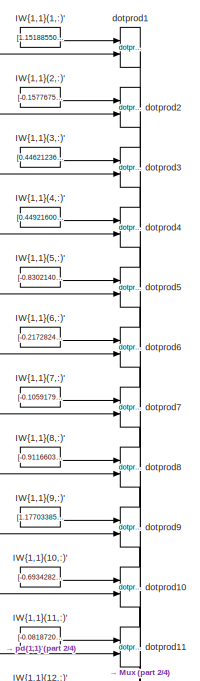
[diagram: Feed-Forward Neural Network5/Layer 1/IW{1,1} - part 1/4, top center region]
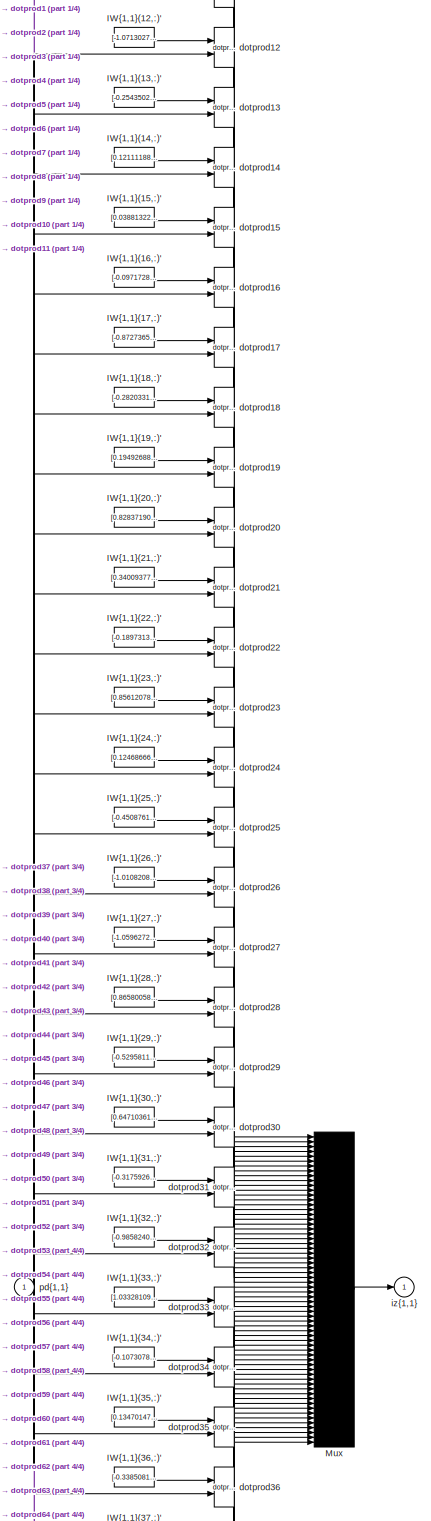
[diagram: Feed-Forward Neural Network5/Layer 1/IW{1,1} - part 2/4, full width, middle band]
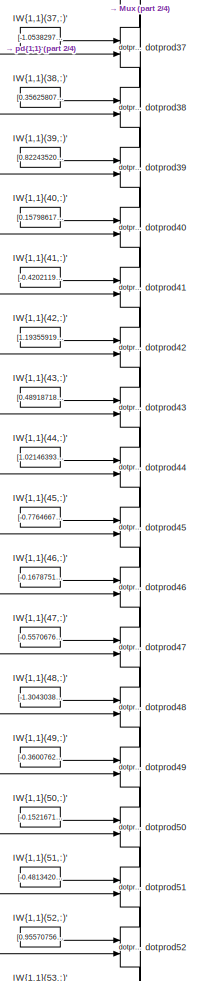
[diagram: Feed-Forward Neural Network5/Layer 1/IW{1,1} - part 3/4, bottom center region]
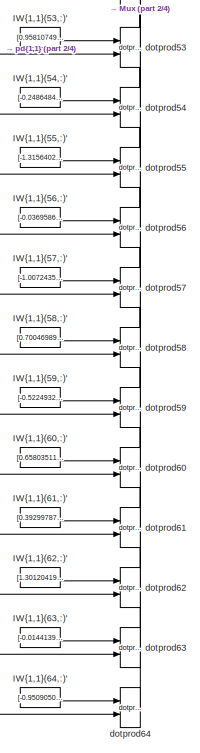
[diagram: Feed-Forward Neural Network5/Layer 1/IW{1,1} - part 4/4, bottom center region]
BLOCK [SubSystem] Feed-Forward Neural Network5/Layer 1/IW{1,1}
  Ports = [1, 1]
  RequestExecContextInheritance = off
BLOCK [Constant] Feed-Forward Neural Network5/Layer 1/IW{1,1}/IW{1,1}(1,:)'
  Value = [1.15188550512719078966483721160329878330230712890625;0.28812102779775983218968349319766275584697723388671875;0.56266210788343784532372637841035611927509307861328125;-0.28333109295564262719580028715427033603191375732421875;0.2157034015099435764195590081726550124585628509521484375;-0.320690714134774623733648013512720353901386260986328125;-1.7558165749549512479887880544993095099925994873046875;-0.44...<+53ch>
BLOCK [Constant] Feed-Forward Neural Network5/Layer 1/IW{1,1}/IW{1,1}(10,:)'
  Value = [-0.69342827997867140243926087350700981914997100830078125;0.302628053808435326654802111079334281384944915771484375;0.50475756804391236354234706595889292657375335693359375;-0.8382169307464308882771319986204616725444793701171875;0.514118176756543032723811847972683608531951904296875;0.9119975746533526272941116985748521983623504638671875;0.59957744726285355785222463964601047337055206298828125;0.758643...<+48ch>
BLOCK [Constant] Feed-Forward Neural Network5/Layer 1/IW{1,1}/IW{1,1}(11,:)'
  Value = [-0.08187201864334088530217314882975188083946704864501953125;0.73089752966811116774437095955363474786281585693359375;0.5387200520871704423342407608288340270519256591796875;-1.09121606557834116557614834164269268512725830078125;0.9840256530079540819855310473940335214138031005859375;0.413862403720223703817993055054103024303913116455078125;1.027219477112980339228442971943877637386322021484375;-0.66505...<+49ch>
BLOCK [Constant] Feed-Forward Neural Network5/Layer 1/IW{1,1}/IW{1,1}(12,:)'
  Value = [-1.07130274752541776450698307598941028118133544921875;-1.4362522873395537903462582107749767601490020751953125;0.32170080578624327127812421167618595063686370849609375;1.03829812140938404496637303964234888553619384765625;-0.759812891496933762169874171377159655094146728515625;0.602197452374559016874400185770355165004730224609375;0.2151555708852344872550332866012468002736568450927734375;0.32831812371...<+44ch>
BLOCK [Constant] Feed-Forward Neural Network5/Layer 1/IW{1,1}/IW{1,1}(13,:)'
  Value = [-0.254350221196234016485249185279826633632183074951171875;-1.1795238596441508516221574609517119824886322021484375;0.80833668204856368166844049483188427984714508056640625;0.86038083232116691068114278095890767872333526611328125;-0.450732077477428216827348705919575877487659454345703125;-1.0998838119882419217532287802896462380886077880859375;0.50040120768586004995626126401475630700588226318359375;-0....<+52ch>
BLOCK [Constant] Feed-Forward Neural Network5/Layer 1/IW{1,1}/IW{1,1}(14,:)'
  Value = [0.12111188243225030902738836857679416425526142120361328125;1.2254734338665216331065721533377654850482940673828125;-1.2126460475572156116896849198383279144763946533203125;-0.11392876827753649349173059590611956082284450531005859375;0.1615772181693192199869457681415951810777187347412109375;1.061583549738458032152266241610050201416015625;0.10245837646828574729607197468794765882194042205810546875;1.14...<+49ch>
BLOCK [Constant] Feed-Forward Neural Network5/Layer 1/IW{1,1}/IW{1,1}(15,:)'
  Value = [0.038813229156217245174875785096446634270250797271728515625;0.486470279353224788199128170163021422922611236572265625;-0.45894295845177135451109506902866996824741363525390625;0.0276916856546326091426113436000377987511456012725830078125;1.6051967623725589273675495860516093671321868896484375;-0.45590732770331587886403212905861437320709228515625;-0.652539724709438218042123480699956417083740234375;1.0...<+46ch>
BLOCK [Constant] Feed-Forward Neural Network5/Layer 1/IW{1,1}/IW{1,1}(16,:)'
  Value = [-0.097172810908892959247395992861129343509674072265625;1.21828113992966802214823474059812724590301513671875;-0.348946678645212615688109281109063886106014251708984375;1.6228867623269358499982217836077325046062469482421875;-0.4468755805697319782865406523342244327068328857421875;0.25552428628844126023977878503501415252685546875;-0.841604705929505758632558354292996227741241455078125;0.384149848353079...<+40ch>
BLOCK [Constant] Feed-Forward Neural Network5/Layer 1/IW{1,1}/IW{1,1}(17,:)'
  Value = [-0.8727365942863782866112387637258507311344146728515625;-1.126434571242459714568440176662988960742950439453125;0.36545685371113723061142763981479220092296600341796875;0.962011466852533470017760919290594756603240966796875;-0.68899715378819259559151078065042383968830108642578125;-0.59210547871686614040953600124339573085308074951171875;-0.06602088688853786913046661766202305443584918975830078125;1.10...<+51ch>
BLOCK [Constant] Feed-Forward Neural Network5/Layer 1/IW{1,1}/IW{1,1}(18,:)'
  Value = [-0.282033117955742096416571484951418824493885040283203125;-0.09685575267191497139673828087325091473758220672607421875;1.0369904994954521892935872529051266610622406005859375;0.410108416989715340861266668071039021015167236328125;0.5329483580200420345107659159111790359020233154296875;1.0824307275914344383949128314270637929439544677734375;1.0907238106762771057134386865072883665561676025390625;-0.9864...<+49ch>
BLOCK [Constant] Feed-Forward Neural Network5/Layer 1/IW{1,1}/IW{1,1}(19,:)'
  Value = [0.19492688939710911544267446515732444822788238525390625;0.28850729483225101557053449141676537692546844482421875;-0.175773740393380395463651666432269848883152008056640625;-1.89756443554498854808798569138161838054656982421875;-0.5054315086265079859373372528352774679660797119140625;1.0667368662509619792189141662674956023693084716796875;0.19891400645817736148046606103889644145965576171875;0.567362684...<+43ch>
BLOCK [Constant] Feed-Forward Neural Network5/Layer 1/IW{1,1}/IW{1,1}(2,:)'
  Value = [-0.15776754576942597640965004757163114845752716064453125;-0.455993213383465434418440054287202656269073486328125;1.1839932390166734155201311295968480408191680908203125;0.29937087607287893309404580577393062412738800048828125;-0.0048999116352581063849047637859257520176470279693603515625;0.049281318949005371854443779966459260322153568267822265625;-1.130130807963304340191257324477192014455795288085937...<+57ch>
BLOCK [Constant] Feed-Forward Neural Network5/Layer 1/IW{1,1}/IW{1,1}(20,:)'
  Value = [0.8283719099560700183104700045078061521053314208984375;-0.9420385849900030361681046997546218335628509521484375;0.83950886137076008441937347015482373535633087158203125;-0.94073002472129407802725609144545160233974456787109375;-0.58905367954073117875424259182182140648365020751953125;0.9613658421825383992853630843455903232097625732421875;0.6352455319925611743059334912686608731746673583984375;0.551159...<+46ch>
BLOCK [Constant] Feed-Forward Neural Network5/Layer 1/IW{1,1}/IW{1,1}(21,:)'
  Value = [0.34009377077838232050766009706421755254268646240234375;-0.466780497991363285681387651493423618376255035400390625;1.2292709966424573142518283930257894098758697509765625;-0.88137293354350243479444770855479873716831207275390625;-0.7761093614509670945977859446429647505283355712890625;-0.160844472776546176806533594572101719677448272705078125;0.9128574666560584915941944927908480167388916015625;-1.0472...<+46ch>
BLOCK [Constant] Feed-Forward Neural Network5/Layer 1/IW{1,1}/IW{1,1}(22,:)'
  Value = [-0.189731393651665081190316186621203087270259857177734375;-0.72495794035112359754435829017893411219120025634765625;0.9357984514248178786743892487720586359500885009765625;-1.0869305870717254070001445143134333193302154541015625;-0.50973886964233405816315780612058006227016448974609375;0.473915859680547002508177456547855399549007415771484375;1.0230173709565664186271760627278126776218414306640625;0.99...<+51ch>
BLOCK [Constant] Feed-Forward Neural Network5/Layer 1/IW{1,1}/IW{1,1}(23,:)'
  Value = [0.856120781560206989269090627203695476055145263671875;-1.069464124720405973079095929278992116451263427734375;0.2919731447302797988641032134182751178741455078125;0.6061622306072764754247828022926114499568939208984375;-0.653691930601032478165279826498590409755706787109375;-0.88804792534942789128393769715330563485622406005859375;-1.0119635839619267603239904929068870842456817626953125;0.9598828210299...<+41ch>
BLOCK [Constant] Feed-Forward Neural Network5/Layer 1/IW{1,1}/IW{1,1}(24,:)'
  Value = [0.124686661157710043656976495185517705976963043212890625;-0.8210810741082565922255298573873005807399749755859375;1.1767856627094956945001058556954376399517059326171875;0.1691193234330329586700969457524479366838932037353515625;-1.12605095295487611650742110214196145534515380859375;-0.96214809238136800306762097534374333918094635009765625;-0.95747311663602430176212010337621904909610748291015625;-0.84...<+51ch>
BLOCK [Constant] Feed-Forward Neural Network5/Layer 1/IW{1,1}/IW{1,1}(25,:)'
  Value = [-0.4508761298608821022071424522437155246734619140625;1.0106688771579630525820903130806982517242431640625;-0.1774785669335633697674126096899271942675113677978515625;0.488867822831043519204996528060291893780231475830078125;-0.523769084982353749779804275021888315677642822265625;0.5469050128236101482315234534326009452342987060546875;1.628688158073976932627147107268683612346649169921875;0.226792755989...<+44ch>
BLOCK [Constant] Feed-Forward Neural Network5/Layer 1/IW{1,1}/IW{1,1}(26,:)'
  Value = [-1.01082088195786301554335295804776251316070556640625;0.95465379283400275678417301605804823338985443115234375;0.391386386609228142940963834917056374251842498779296875;1.4225990849750778100002435166970826685428619384765625;-0.73545495103985902840548760650563053786754608154296875;-0.736133991802305320817367828567512333393096923828125;0.442114848390933234956179376240470446646213531494140625;0.436571...<+48ch>
BLOCK [Constant] Feed-Forward Neural Network5/Layer 1/IW{1,1}/IW{1,1}(27,:)'
  Value = [-1.0596272731227285301969232023111544549465179443359375;-0.54530840839943228726127699701464734971523284912109375;0.6278313816556941873159303213469684123992919921875;0.270771156859894279733680377830751240253448486328125;0.464390599696782147010054586644400842487812042236328125;-0.53372241047857371665230630242149345576763153076171875;0.956306487503788549275896002654917538166046142578125;1.4707476498...<+41ch>
BLOCK [Constant] Feed-Forward Neural Network5/Layer 1/IW{1,1}/IW{1,1}(28,:)'
  Value = [0.86580058636540346839183257543481886386871337890625;0.9756419600736609964997114730067551136016845703125;-1.2316073907028701750476784582133404910564422607421875;-1.03033429662976772078764042817056179046630859375;0.1339502814816569686851011056205607019364833831787109375;0.74929830934803554054468577305669896304607391357421875;0.0743680662885670973327734145641443319618701934814453125;-0.805167347178...<+42ch>
BLOCK [Constant] Feed-Forward Neural Network5/Layer 1/IW{1,1}/IW{1,1}(29,:)'
  Value = [-0.5295811383351869405800016465946100652217864990234375;-0.278717330509984650976917919251718558371067047119140625;-0.66606714661326493764903489136486314237117767333984375;-0.8798401281044869737257840824895538389682769775390625;0.268788230217950785405633951086201705038547515869140625;-1.5135879192232033485510100945248268544673919677734375;0.91318255242783175074094970113947056233882904052734375;0.9...<+51ch>
BLOCK [Constant] Feed-Forward Neural Network5/Layer 1/IW{1,1}/IW{1,1}(3,:)'
  Value = [0.446212364360280389075086304728756658732891082763671875;-0.0978189681976021907505725039300159551203250885009765625;-1.31393838489276415515405460610054433345794677734375;-0.79167290442859183929869004714419133961200714111328125;1.1377022565084218275188732150127179920673370361328125;0.0090609210361883817108630267966873361729085445404052734375;-1.231014577077934379900625572190620005130767822265625;-...<+58ch>
BLOCK [Constant] Feed-Forward Neural Network5/Layer 1/IW{1,1}/IW{1,1}(30,:)'
  Value = [0.6471036122667062073787747067399322986602783203125;-0.061940615906763842046789392270511598326265811920166015625;-0.312052580594836259653135357439168728888034820556640625;1.2990947753306822942676035381737165153026580810546875;-0.0036105482406158756307490431680662368307821452617645263671875;-0.42311702194302835966510656362515874207019805908203125;0.8883086150909299538724894773622509092092514038085...<+61ch>
BLOCK [Constant] Feed-Forward Neural Network5/Layer 1/IW{1,1}/IW{1,1}(31,:)'
  Value = [-0.31759268690855346761736655025742948055267333984375;-0.4042457377349506497665743154357187449932098388671875;0.251357110918958459588878895374364219605922698974609375;-1.10791367956164332753132839570753276348114013671875;0.73836626855680165260054081954876892268657684326171875;1.032559094167967206345792874344624578952789306640625;-1.070606342674453426155878332792781293392181396484375;1.12600808864...<+41ch>
BLOCK [Constant] Feed-Forward Neural Network5/Layer 1/IW{1,1}/IW{1,1}(32,:)'
  Value = [-0.98582404102823650848819170278147794306278228759765625;0.110955204356297743029102775835781358182430267333984375;1.1171545662955260080906327857519499957561492919921875;-0.086582673998257642100639941418194212019443511962890625;1.0183086056376919881216736030182801187038421630859375;-0.146176428296484084423667582086636684834957122802734375;-1.27212378176424056874793677707202732563018798828125;0.778...<+49ch>
BLOCK [Constant] Feed-Forward Neural Network5/Layer 1/IW{1,1}/IW{1,1}(33,:)'
  Value = [1.0332810947416766200745996684418059885501861572265625;1.1881751882562401334553214837796986103057861328125;0.0113711764073888312032156733266674564220011234283447265625;0.54613530436783752630702792885131202638149261474609375;0.8575124714924264868187719912384636700153350830078125;-0.9807149901858362994744311436079442501068115234375;-0.08504032072985522050512230407548486255109310150146484375;-0.8601...<+50ch>
BLOCK [Constant] Feed-Forward Neural Network5/Layer 1/IW{1,1}/IW{1,1}(34,:)'
  Value = [-0.10730786123257247954843052184514817781746387481689453125;-1.2561740133845915590171671283314935863018035888671875;0.1916023081249165205264262112905271351337432861328125;-0.733724466418752552243631726014427840709686279296875;-1.19798795607447328137595832231454551219940185546875;0.395299789476157126255628782018902711570262908935546875;1.2942966424689743565323851726134307682514190673828125;0.28510...<+48ch>
BLOCK [Constant] Feed-Forward Neural Network5/Layer 1/IW{1,1}/IW{1,1}(35,:)'
  Value = [0.13470147867077508774258376433863304555416107177734375;0.89180318892628818172596538715879432857036590576171875;-1.251923878018734281880597336567007005214691162109375;1.0584028339053215272969055149587802588939666748046875;-0.466690066426573457736282080077216960489749908447265625;0.80408658190793047548794447720865719020366668701171875;0.80069797512159424091038317783386446535587310791015625;0.65001...<+49ch>
BLOCK [Constant] Feed-Forward Neural Network5/Layer 1/IW{1,1}/IW{1,1}(36,:)'
  Value = [-0.3385081366785949175124414978199638426303863525390625;-0.69503528690295102165919161052443087100982666015625;0.4923281094682134817475116506102494895458221435546875;-0.720964622145814804099472894449718296527862548828125;-0.2556243474584316555109353430452756583690643310546875;-1.1219523070902417405392270666197873651981353759765625;-1.060868790922331328374639269895851612091064453125;-1.282929596034...<+39ch>
BLOCK [Constant] Feed-Forward Neural Network5/Layer 1/IW{1,1}/IW{1,1}(37,:)'
  Value = [-1.0538297355717778369665893478668294847011566162109375;0.9137438889102564854027832552674226462841033935546875;0.330465292020934608974158663841080851852893829345703125;-0.469046635263795697046163013510522432625293731689453125;0.76983143635499262646959550693281926214694976806640625;1.2274381452821707672029560853843577206134796142578125;-0.9594647793827260073840079712681472301483154296875;0.4807491...<+46ch>
BLOCK [Constant] Feed-Forward Neural Network5/Layer 1/IW{1,1}/IW{1,1}(38,:)'
  Value = [0.35625807679689269757972169827553443610668182373046875;0.1331977864564148072989979709745966829359531402587890625;-0.365682952283444662189282325925887562334537506103515625;-1.0953170441072181962027798363124020397663116455078125;0.8305354135097473555759961527655832469463348388671875;1.085738228001417837731423787772655487060546875;1.0659017284151206528264310691156424582004547119140625;0.80721813258...<+41ch>
BLOCK [Constant] Feed-Forward Neural Network5/Layer 1/IW{1,1}/IW{1,1}(39,:)'
  Value = [0.82243520570661321489325246147927828133106231689453125;-0.92744873138334449347297550048097036778926849365234375;-0.5659382507761587799421931777033023536205291748046875;1.10287668857012288725627513485960662364959716796875;0.6500558112044181324762348594958893954753875732421875;-0.279365585293477491912739196777692995965480804443359375;-0.329420056930422811003467131740762852132320404052734375;1.2144...<+48ch>
BLOCK [Constant] Feed-Forward Neural Network5/Layer 1/IW{1,1}/IW{1,1}(4,:)'
  Value = [0.449216000193385534000611869487329386174678802490234375;1.069092416755129004712898677098564803600311279296875;1.1202529630482478406605650889105163514614105224609375;0.88723055542406170648206398254842497408390045166015625;-0.53693856516414084634192249723128043115139007568359375;-0.8953535921229356375761199160479009151458740234375;-0.424853262852135316052226698957383632659912109375;0.9855877037823...<+41ch>
BLOCK [Constant] Feed-Forward Neural Network5/Layer 1/IW{1,1}/IW{1,1}(40,:)'
  Value = [0.1579861799126709431817516815499402582645416259765625;0.2440200417363912188672969705294235609471797943115234375;-1.254796483799876849474230766645632684230804443359375;0.5053076788989432355236885996419005095958709716796875;0.050687802700905726371871651281253434717655181884765625;1.485676910567629960269186994992196559906005859375;-0.4868889044458868387010852529783733189105987548828125;0.8665797014...<+44ch>
BLOCK [Constant] Feed-Forward Neural Network5/Layer 1/IW{1,1}/IW{1,1}(41,:)'
  Value = [-0.420211900371094182471409794743522070348262786865234375;-0.27063223612642517412751885785837657749652862548828125;-1.3818974261721799212665473532979376614093780517578125;0.439043108327200837237569430726580321788787841796875;0.252756123195656379198936747343395836651325225830078125;0.9748376953007487077940140807186253368854522705078125;1.301748762070959575254391893395222723484039306640625;-0.25883...<+47ch>
BLOCK [Constant] Feed-Forward Neural Network5/Layer 1/IW{1,1}/IW{1,1}(42,:)'
  Value = [1.1935591952557018657898879610002040863037109375;-0.71105824460165323319671415447373874485492706298828125;-0.7263367042612871582463185404776595532894134521484375;-0.63193248648512756471262719060177914798259735107421875;-0.491876962907790982182376637865672819316387176513671875;-0.711285782067984317933451166027225553989410400390625;1.139204332500781902126618660986423492431640625;-0.4834504367665136...<+38ch>
BLOCK [Constant] Feed-Forward Neural Network5/Layer 1/IW{1,1}/IW{1,1}(43,:)'
  Value = [0.489187181174163432384460747925913892686367034912109375;0.477596097486275461552196475167875178158283233642578125;-0.795458358727680892030775794410146772861480712890625;-0.434416995971317498881347773931338451802730560302734375;1.380919483840138628494287331704981625080108642578125;1.3794778054486453999771811140817590057849884033203125;-0.0945329309601852241229380524600856006145477294921875;0.29736...<+50ch>
BLOCK [Constant] Feed-Forward Neural Network5/Layer 1/IW{1,1}/IW{1,1}(44,:)'
  Value = [1.0214639369626332676688207357074134051799774169921875;-0.9535830397905560307236783046391792595386505126953125;-1.0500790082631608068908235509297810494899749755859375;-0.1813927349484561191150788772574742324650287628173828125;-1.1748803936902361133576278007240034639835357666015625;0.76731553335516300418106538927531801164150238037109375;-0.0912843346818332512793148225682671181857585906982421875;0....<+53ch>
BLOCK [Constant] Feed-Forward Neural Network5/Layer 1/IW{1,1}/IW{1,1}(45,:)'
  Value = [-0.77646674261790382676196031752624548971652984619140625;1.3904720272430639571581423297175206243991851806640625;0.2135474215962842314819880584764177910983562469482421875;0.343795791976723441596419661436812020838260650634765625;-0.66963107464097959553583905289997346699237823486328125;-1.135393046063842614756822513299994170665740966796875;0.5568997405401947542458174211787991225719451904296875;-0.68...<+51ch>
BLOCK [Constant] Feed-Forward Neural Network5/Layer 1/IW{1,1}/IW{1,1}(46,:)'
  Value = [-0.167875193971138203519188891732483170926570892333984375;-0.439229024609157636671596947053330950438976287841796875;-0.62157862570253052947322203181101940572261810302734375;1.0952847248913843980488991292077116668224334716796875;0.21702485414310157540995760427904315292835235595703125;-0.9358929081924483028842587373219430446624755859375;1.15860580212642094721786634181626141071319580078125;-1.227657...<+47ch>
BLOCK [Constant] Feed-Forward Neural Network5/Layer 1/IW{1,1}/IW{1,1}(47,:)'
  Value = [-0.55706767732511408564022303835372440516948699951171875;-0.72517378784069197461548128558206371963024139404296875;0.494343466819654298038955175798037089407444000244140625;-0.95039953083350836582354759229929186403751373291015625;0.94113936003819975706363720746594481170177459716796875;0.5599009502379292957385814588633365929126739501953125;0.8801931344246025634703300966066308319568634033203125;1.005...<+47ch>
BLOCK [Constant] Feed-Forward Neural Network5/Layer 1/IW{1,1}/IW{1,1}(48,:)'
  Value = [-1.3043038423078154863787858630530536174774169921875;-0.63690338779938249214040979495621286332607269287109375;1.1277002952469936669643857385381124913692474365234375;0.53179836080302045342449446252430789172649383544921875;-0.149019493553352422310354086221195757389068603515625;1.0465617010250920504432770030689425766468048095703125;-0.30508000967842152650888465359457768499851226806640625;-0.74925458...<+46ch>
BLOCK [Constant] Feed-Forward Neural Network5/Layer 1/IW{1,1}/IW{1,1}(49,:)'
  Value = [-0.3600762523565881334519644951797090470790863037109375;-0.498905020252015496406983174892957322299480438232421875;-1.404265996561349094662318748305551707744598388671875;1.6043843858166824123401283941348083317279815673828125;0.70962727623678911736959662448498420417308807373046875;0.65612601453902519299532514196471311151981353759765625;0.125251384093528594920741170426481403410434722900390625;-0.026...<+55ch>
BLOCK [Constant] Feed-Forward Neural Network5/Layer 1/IW{1,1}/IW{1,1}(5,:)'
  Value = [-0.8302140025142044077455238948459737002849578857421875;-0.99126051208972121298046431547845713794231414794921875;-0.49924369273723556705846249315072782337665557861328125;1.0344687526481990413884659574250690639019012451171875;0.24945181990289888585010658061946742236614227294921875;-1.35430880805712394732154280063696205615997314453125;0.77612575586711918251836550552980042994022369384765625;0.227634...<+50ch>
BLOCK [Constant] Feed-Forward Neural Network5/Layer 1/IW{1,1}/IW{1,1}(50,:)'
  Value = [-0.152167119759484048557851565419696271419525146484375;1.412190507885614731975465474533848464488983154296875;-1.01574035720856148401480822940357029438018798828125;-0.372612898382188195700592814318952150642871856689453125;1.5063788648286291493860744594712741672992706298828125;0.0527906580427834615232285386809962801635265350341796875;-0.2687976797083513336161786355660296976566314697265625;0.1805848...<+48ch>
BLOCK [Constant] Feed-Forward Neural Network5/Layer 1/IW{1,1}/IW{1,1}(51,:)'
  Value = [-0.481342044152840597970310909659019671380519866943359375;0.7167093283518024549039182602427899837493896484375;1.0208102725817476130742988971178419888019561767578125;1.1586595390145928430314370416454039514064788818359375;-0.67658162140217148472487451726919971406459808349609375;-1.190892973127208431805001964676193892955780029296875;0.92724595203779169860780484668794088065624237060546875;0.118106589...<+48ch>
BLOCK [Constant] Feed-Forward Neural Network5/Layer 1/IW{1,1}/IW{1,1}(52,:)'
  Value = [0.9557075608294212099025344286928884685039520263671875;-1.2326721492611711905595939242630265653133392333984375;0.54949090747148610081040942532126791775226593017578125;0.316245885266282888981237420011893846094608306884765625;0.628546150828634520024706944241188466548919677734375;0.0034270941188005942489025468233876381418667733669281005859375;-0.606384787905841715627275334554724395275115966796875;0....<+54ch>
BLOCK [Constant] Feed-Forward Neural Network5/Layer 1/IW{1,1}/IW{1,1}(53,:)'
  Value = [0.9581074919459025007739683132967911660671234130859375;-0.5521564573722728130888981468160636723041534423828125;1.198604056222848601720443184603936970233917236328125;0.87918300593945752918756397775723598897457122802734375;-0.8187774282508166745486732907011173665523529052734375;0.7450409343441080078918048457126133143901824951171875;-0.61911190889374034806991176083101890981197357177734375;-0.3742926...<+48ch>
BLOCK [Constant] Feed-Forward Neural Network5/Layer 1/IW{1,1}/IW{1,1}(54,:)'
  Value = [-0.2486484485608333738770880927404505200684070587158203125;0.83577728188382860441407729013008065521717071533203125;0.57486989095568052920981472198036499321460723876953125;0.97024081269379724989931901291129179298877716064453125;-0.98879255675692101501539355012937448918819427490234375;0.83912126110780660415144893704564310610294342041015625;0.11354912709266785919570708074388676322996616363525390625;...<+56ch>
BLOCK [Constant] Feed-Forward Neural Network5/Layer 1/IW{1,1}/IW{1,1}(55,:)'
  Value = [-1.3156402612456030709608967299573123455047607421875;-0.5652322322708627222453969807247631251811981201171875;0.08427929122864909194934313063640729524195194244384765625;-0.50910514221323055483736652604420669376850128173828125;1.2132629512387602677137010687147267162799835205078125;0.86491422656611394170766971001285128295421600341796875;1.086706505818441304000998570700176060199737548828125;-0.167863...<+50ch>
BLOCK [Constant] Feed-Forward Neural Network5/Layer 1/IW{1,1}/IW{1,1}(56,:)'
  Value = [-0.036958619579998595872094568903776234947144985198974609375;0.89138125115992494773564658316900022327899932861328125;0.31102308323696858938234299785108305513858795166015625;-1.2582495711248624647993210601271130144596099853515625;0.0345759870026162430267646641368628479540348052978515625;1.1449642712775729425089821233996190130710601806640625;0.9176626696629150981010525356396101415157318115234375;0....<+54ch>
BLOCK [Constant] Feed-Forward Neural Network5/Layer 1/IW{1,1}/IW{1,1}(57,:)'
  Value = [-1.00724358095364951992678470560349524021148681640625;-0.11423800723239700694033871286592329852283000946044921875;0.81762259902528011679123665089718997478485107421875;0.2385685609160678455342718962128856219351291656494140625;0.87400269509203354356685622406075708568096160888671875;1.0279933837142094521510671256692148745059967041015625;0.567795777674791946054710933822207152843475341796875;0.8792424...<+43ch>
BLOCK [Constant] Feed-Forward Neural Network5/Layer 1/IW{1,1}/IW{1,1}(58,:)'
  Value = [0.7004698995780020975843171981978230178356170654296875;0.88657671142222016502643100466229952871799468994140625;0.25754513343583396167701948797912336885929107666015625;-1.0432939432904395626877658287412486970424652099609375;-0.69839431400561113871816587561625055968761444091796875;-1.0051011765149719945355855088564567267894744873046875;-1.0027198222317907916334434048621915280818939208984375;-0.1549...<+49ch>
BLOCK [Constant] Feed-Forward Neural Network5/Layer 1/IW{1,1}/IW{1,1}(59,:)'
  Value = [-0.52249322809245146714829388656653463840484619140625;-0.038604714889007858691361008141029742546379566192626953125;0.9334425508727035580847086748690344393253326416015625;0.37118590673417017899993197715957649052143096923828125;-0.410784358150717732183210273433360271155834197998046875;1.2977180169749085170138869216316379606723785400390625;-0.84597439784161176934418335804366506636142730712890625;1.0...<+48ch>
BLOCK [Constant] Feed-Forward Neural Network5/Layer 1/IW{1,1}/IW{1,1}(6,:)'
  Value = [-0.2172824291542483077233072208400699310004711151123046875;-0.414389589626935450628053558830288238823413848876953125;-0.8756508556942150800495028306613676249980926513671875;-1.0700104105247232322284389738342724740505218505859375;0.433311908701625891904285481359693221747875213623046875;0.82413730567951148930916360768605954945087432861328125;-1.209111750613886204774871657718904316425323486328125;0....<+53ch>
BLOCK [Constant] Feed-Forward Neural Network5/Layer 1/IW{1,1}/IW{1,1}(60,:)'
  Value = [0.658035119967189441325672305538319051265716552734375;1.113031358541868964806553776725195348262786865234375;0.50542229864637244762803902631276287138462066650390625;0.81747877956618630879148668100242502987384796142578125;-1.3766929618750867181375951986410655081272125244140625;-0.50079045778376352071603605509153567254543304443359375;0.1760238701238831804385398527301731519401073455810546875;-0.45951...<+50ch>
BLOCK [Constant] Feed-Forward Neural Network5/Layer 1/IW{1,1}/IW{1,1}(61,:)'
  Value = [0.392997873153709209592676643296726979315280914306640625;0.964888576391596419767893166863359510898590087890625;0.1732785805356214792194435858618817292153835296630859375;-0.245435378572325169077572581954882480204105377197265625;0.69999556142489149923591185142868198454380035400390625;-0.07631603231012946964018084372582961805164813995361328125;1.345729817646017512089429146726615726947784423828125;-1...<+54ch>
BLOCK [Constant] Feed-Forward Neural Network5/Layer 1/IW{1,1}/IW{1,1}(62,:)'
  Value = [1.301204190803214810756571750971488654613494873046875;-0.03582830036480200153192754441988654434680938720703125;-0.90118907558873961871626079300767742097377777099609375;0.3261562978140337687449346049106679856777191162109375;0.61034323081042851644184565884643234312534332275390625;-1.0011448909002655938138559577055275440216064453125;-1.183290887688753567630328689119778573513031005859375;0.3642450216...<+45ch>
BLOCK [Constant] Feed-Forward Neural Network5/Layer 1/IW{1,1}/IW{1,1}(63,:)'
  Value = [-0.014413942292682946355597550791571848094463348388671875;0.5762056878721033559287434400175698101520538330078125;0.73889696621842626544918175568454898893833160400390625;0.71293275618026907824997806528699584305286407470703125;-0.7724211242051790549112411099486052989959716796875;1.3252669647170751687781375949271023273468017578125;0.886036386073798976070747812627814710140228271484375;0.1974941501188...<+42ch>
BLOCK [Constant] Feed-Forward Neural Network5/Layer 1/IW{1,1}/IW{1,1}(64,:)'
  Value = [-0.9509050009985642315513132416526786983013153076171875;0.1586148427159132789920903405800345353782176971435546875;0.1833392314949111590038910435396246612071990966796875;-0.3145089267586571590840094359009526669979095458984375;-1.893129491364980321321809242363087832927703857421875;-0.71082110101587991923821618911460973322391510009765625;-0.440796126378079911045659855517442338168621063232421875;-0.7...<+48ch>
BLOCK [Constant] Feed-Forward Neural Network5/Layer 1/IW{1,1}/IW{1,1}(7,:)'
  Value = [-0.105917907963459845266385173090384341776371002197265625;0.9950688560451304010001649658079259097576141357421875;0.667020016746283861408528537140227854251861572265625;1.158496743793929084631599835120141506195068359375;-0.213707519514648891512109685208997689187526702880859375;0.9040644041587257984105008290498517453670501708984375;-0.965974898104704937651376894791610538959503173828125;-0.8903396153...<+44ch>
BLOCK [Constant] Feed-Forward Neural Network5/Layer 1/IW{1,1}/IW{1,1}(8,:)'
  Value = [-0.911660373731174811240407507284544408321380615234375;-0.70011210389034050916023943500476889312267303466796875;-0.6715163629904596920283665895112790167331695556640625;0.46878150580194988261695243636495433747768402099609375;-0.1281455115805487654512262452044524252414703369140625;0.565007414389368189944207188091240823268890380859375;0.40173886966572769363637007700162939727306365966796875;-1.659510...<+45ch>
BLOCK [Constant] Feed-Forward Neural Network5/Layer 1/IW{1,1}/IW{1,1}(9,:)'
  Value = [1.177033852232951094407553682685829699039459228515625;0.340050504893255556293496510988916270434856414794921875;-0.468007045946020550086785760868224315345287322998046875;1.1348829892461325119512594028492458164691925048828125;-0.08000522058520716239815584458483499474823474884033203125;0.494698360340561638093248575387406162917613983154296875;-1.08223086857544803507380493101663887500762939453125;-1.1...<+52ch>
BLOCK [Mux] Feed-Forward Neural Network5/Layer 1/IW{1,1}/Mux
  Inputs = 64
  Ports = [64, 1]
BLOCK [Reference] Feed-Forward Neural Network5/Layer 1/IW{1,1}/dotprod1  REF=neural/Weight Functions/dotprod
  Ports = [2, 1]
  SourceBlock = neural/Weight Functions/dotprod
  SourceProductBaseCode = NN
  SourceProductName = Neural Network Toolbox
  SourceType = DOTPROD
BLOCK [Reference] Feed-Forward Neural Network5/Layer 1/IW{1,1}/dotprod10  REF=neural/Weight Functions/dotprod
  Ports = [2, 1]
  SourceBlock = neural/Weight Functions/dotprod
  SourceProductBaseCode = NN
  SourceProductName = Neural Network Toolbox
  SourceType = DOTPROD
BLOCK [Reference] Feed-Forward Neural Network5/Layer 1/IW{1,1}/dotprod11  REF=neural/Weight Functions/dotprod
  Ports = [2, 1]
  SourceBlock = neural/Weight Functions/dotprod
  SourceProductBaseCode = NN
  SourceProductName = Neural Network Toolbox
  SourceType = DOTPROD
BLOCK [Reference] Feed-Forward Neural Network5/Layer 1/IW{1,1}/dotprod12  REF=neural/Weight Functions/dotprod
  Ports = [2, 1]
  SourceBlock = neural/Weight Functions/dotprod
  SourceProductBaseCode = NN
  SourceProductName = Neural Network Toolbox
  SourceType = DOTPROD
BLOCK [Reference] Feed-Forward Neural Network5/Layer 1/IW{1,1}/dotprod13  REF=neural/Weight Functions/dotprod
  Ports = [2, 1]
  SourceBlock = neural/Weight Functions/dotprod
  SourceProductBaseCode = NN
  SourceProductName = Neural Network Toolbox
  SourceType = DOTPROD
BLOCK [Reference] Feed-Forward Neural Network5/Layer 1/IW{1,1}/dotprod14  REF=neural/Weight Functions/dotprod
  Ports = [2, 1]
  SourceBlock = neural/Weight Functions/dotprod
  SourceProductBaseCode = NN
  SourceProductName = Neural Network Toolbox
  SourceType = DOTPROD
BLOCK [Reference] Feed-Forward Neural Network5/Layer 1/IW{1,1}/dotprod15  REF=neural/Weight Functions/dotprod
  Ports = [2, 1]
  SourceBlock = neural/Weight Functions/dotprod
  SourceProductBaseCode = NN
  SourceProductName = Neural Network Toolbox
  SourceType = DOTPROD
BLOCK [Reference] Feed-Forward Neural Network5/Layer 1/IW{1,1}/dotprod16  REF=neural/Weight Functions/dotprod
  Ports = [2, 1]
  SourceBlock = neural/Weight Functions/dotprod
  SourceProductBaseCode = NN
  SourceProductName = Neural Network Toolbox
  SourceType = DOTPROD
BLOCK [Reference] Feed-Forward Neural Network5/Layer 1/IW{1,1}/dotprod17  REF=neural/Weight Functions/dotprod
  Ports = [2, 1]
  SourceBlock = neural/Weight Functions/dotprod
  SourceProductBaseCode = NN
  SourceProductName = Neural Network Toolbox
  SourceType = DOTPROD
BLOCK [Reference] Feed-Forward Neural Network5/Layer 1/IW{1,1}/dotprod18  REF=neural/Weight Functions/dotprod
  Ports = [2, 1]
  SourceBlock = neural/Weight Functions/dotprod
  SourceProductBaseCode = NN
  SourceProductName = Neural Network Toolbox
  SourceType = DOTPROD
BLOCK [Reference] Feed-Forward Neural Network5/Layer 1/IW{1,1}/dotprod19  REF=neural/Weight Functions/dotprod
  Ports = [2, 1]
  SourceBlock = neural/Weight Functions/dotprod
  SourceProductBaseCode = NN
  SourceProductName = Neural Network Toolbox
  SourceType = DOTPROD
BLOCK [Reference] Feed-Forward Neural Network5/Layer 1/IW{1,1}/dotprod2  REF=neural/Weight Functions/dotprod
  Ports = [2, 1]
  SourceBlock = neural/Weight Functions/dotprod
  SourceProductBaseCode = NN
  SourceProductName = Neural Network Toolbox
  SourceType = DOTPROD
BLOCK [Reference] Feed-Forward Neural Network5/Layer 1/IW{1,1}/dotprod20  REF=neural/Weight Functions/dotprod
  Ports = [2, 1]
  SourceBlock = neural/Weight Functions/dotprod
  SourceProductBaseCode = NN
  SourceProductName = Neural Network Toolbox
  SourceType = DOTPROD
BLOCK [Reference] Feed-Forward Neural Network5/Layer 1/IW{1,1}/dotprod21  REF=neural/Weight Functions/dotprod
  Ports = [2, 1]
  SourceBlock = neural/Weight Functions/dotprod
  SourceProductBaseCode = NN
  SourceProductName = Neural Network Toolbox
  SourceType = DOTPROD
BLOCK [Reference] Feed-Forward Neural Network5/Layer 1/IW{1,1}/dotprod22  REF=neural/Weight Functions/dotprod
  Ports = [2, 1]
  SourceBlock = neural/Weight Functions/dotprod
  SourceProductBaseCode = NN
  SourceProductName = Neural Network Toolbox
  SourceType = DOTPROD
BLOCK [Reference] Feed-Forward Neural Network5/Layer 1/IW{1,1}/dotprod23  REF=neural/Weight Functions/dotprod
  Ports = [2, 1]
  SourceBlock = neural/Weight Functions/dotprod
  SourceProductBaseCode = NN
  SourceProductName = Neural Network Toolbox
  SourceType = DOTPROD
BLOCK [Reference] Feed-Forward Neural Network5/Layer 1/IW{1,1}/dotprod24  REF=neural/Weight Functions/dotprod
  Ports = [2, 1]
  SourceBlock = neural/Weight Functions/dotprod
  SourceProductBaseCode = NN
  SourceProductName = Neural Network Toolbox
  SourceType = DOTPROD
BLOCK [Reference] Feed-Forward Neural Network5/Layer 1/IW{1,1}/dotprod25  REF=neural/Weight Functions/dotprod
  Ports = [2, 1]
  SourceBlock = neural/Weight Functions/dotprod
  SourceProductBaseCode = NN
  SourceProductName = Neural Network Toolbox
  SourceType = DOTPROD
BLOCK [Reference] Feed-Forward Neural Network5/Layer 1/IW{1,1}/dotprod26  REF=neural/Weight Functions/dotprod
  Ports = [2, 1]
  SourceBlock = neural/Weight Functions/dotprod
  SourceProductBaseCode = NN
  SourceProductName = Neural Network Toolbox
  SourceType = DOTPROD
BLOCK [Reference] Feed-Forward Neural Network5/Layer 1/IW{1,1}/dotprod27  REF=neural/Weight Functions/dotprod
  Ports = [2, 1]
  SourceBlock = neural/Weight Functions/dotprod
  SourceProductBaseCode = NN
  SourceProductName = Neural Network Toolbox
  SourceType = DOTPROD
BLOCK [Reference] Feed-Forward Neural Network5/Layer 1/IW{1,1}/dotprod28  REF=neural/Weight Functions/dotprod
  Ports = [2, 1]
  SourceBlock = neural/Weight Functions/dotprod
  SourceProductBaseCode = NN
  SourceProductName = Neural Network Toolbox
  SourceType = DOTPROD
BLOCK [Reference] Feed-Forward Neural Network5/Layer 1/IW{1,1}/dotprod29  REF=neural/Weight Functions/dotprod
  Ports = [2, 1]
  SourceBlock = neural/Weight Functions/dotprod
  SourceProductBaseCode = NN
  SourceProductName = Neural Network Toolbox
  SourceType = DOTPROD
BLOCK [Reference] Feed-Forward Neural Network5/Layer 1/IW{1,1}/dotprod3  REF=neural/Weight Functions/dotprod
  Ports = [2, 1]
  SourceBlock = neural/Weight Functions/dotprod
  SourceProductBaseCode = NN
  SourceProductName = Neural Network Toolbox
  SourceType = DOTPROD
BLOCK [Reference] Feed-Forward Neural Network5/Layer 1/IW{1,1}/dotprod30  REF=neural/Weight Functions/dotprod
  Ports = [2, 1]
  SourceBlock = neural/Weight Functions/dotprod
  SourceProductBaseCode = NN
  SourceProductName = Neural Network Toolbox
  SourceType = DOTPROD
BLOCK [Reference] Feed-Forward Neural Network5/Layer 1/IW{1,1}/dotprod31  REF=neural/Weight Functions/dotprod
  Ports = [2, 1]
  SourceBlock = neural/Weight Functions/dotprod
  SourceProductBaseCode = NN
  SourceProductName = Neural Network Toolbox
  SourceType = DOTPROD
BLOCK [Reference] Feed-Forward Neural Network5/Layer 1/IW{1,1}/dotprod32  REF=neural/Weight Functions/dotprod
  Ports = [2, 1]
  SourceBlock = neural/Weight Functions/dotprod
  SourceProductBaseCode = NN
  SourceProductName = Neural Network Toolbox
  SourceType = DOTPROD
BLOCK [Reference] Feed-Forward Neural Network5/Layer 1/IW{1,1}/dotprod33  REF=neural/Weight Functions/dotprod
  Ports = [2, 1]
  SourceBlock = neural/Weight Functions/dotprod
  SourceProductBaseCode = NN
  SourceProductName = Neural Network Toolbox
  SourceType = DOTPROD
BLOCK [Reference] Feed-Forward Neural Network5/Layer 1/IW{1,1}/dotprod34  REF=neural/Weight Functions/dotprod
  Ports = [2, 1]
  SourceBlock = neural/Weight Functions/dotprod
  SourceProductBaseCode = NN
  SourceProductName = Neural Network Toolbox
  SourceType = DOTPROD
BLOCK [Reference] Feed-Forward Neural Network5/Layer 1/IW{1,1}/dotprod35  REF=neural/Weight Functions/dotprod
  Ports = [2, 1]
  SourceBlock = neural/Weight Functions/dotprod
  SourceProductBaseCode = NN
  SourceProductName = Neural Network Toolbox
  SourceType = DOTPROD
BLOCK [Reference] Feed-Forward Neural Network5/Layer 1/IW{1,1}/dotprod36  REF=neural/Weight Functions/dotprod
  Ports = [2, 1]
  SourceBlock = neural/Weight Functions/dotprod
  SourceProductBaseCode = NN
  SourceProductName = Neural Network Toolbox
  SourceType = DOTPROD
BLOCK [Reference] Feed-Forward Neural Network5/Layer 1/IW{1,1}/dotprod37  REF=neural/Weight Functions/dotprod
  Ports = [2, 1]
  SourceBlock = neural/Weight Functions/dotprod
  SourceProductBaseCode = NN
  SourceProductName = Neural Network Toolbox
  SourceType = DOTPROD
BLOCK [Reference] Feed-Forward Neural Network5/Layer 1/IW{1,1}/dotprod38  REF=neural/Weight Functions/dotprod
  Ports = [2, 1]
  SourceBlock = neural/Weight Functions/dotprod
  SourceProductBaseCode = NN
  SourceProductName = Neural Network Toolbox
  SourceType = DOTPROD
BLOCK [Reference] Feed-Forward Neural Network5/Layer 1/IW{1,1}/dotprod39  REF=neural/Weight Functions/dotprod
  Ports = [2, 1]
  SourceBlock = neural/Weight Functions/dotprod
  SourceProductBaseCode = NN
  SourceProductName = Neural Network Toolbox
  SourceType = DOTPROD
BLOCK [Reference] Feed-Forward Neural Network5/Layer 1/IW{1,1}/dotprod4  REF=neural/Weight Functions/dotprod
  Ports = [2, 1]
  SourceBlock = neural/Weight Functions/dotprod
  SourceProductBaseCode = NN
  SourceProductName = Neural Network Toolbox
  SourceType = DOTPROD
BLOCK [Reference] Feed-Forward Neural Network5/Layer 1/IW{1,1}/dotprod40  REF=neural/Weight Functions/dotprod
  Ports = [2, 1]
  SourceBlock = neural/Weight Functions/dotprod
  SourceProductBaseCode = NN
  SourceProductName = Neural Network Toolbox
  SourceType = DOTPROD
BLOCK [Reference] Feed-Forward Neural Network5/Layer 1/IW{1,1}/dotprod41  REF=neural/Weight Functions/dotprod
  Ports = [2, 1]
  SourceBlock = neural/Weight Functions/dotprod
  SourceProductBaseCode = NN
  SourceProductName = Neural Network Toolbox
  SourceType = DOTPROD
BLOCK [Reference] Feed-Forward Neural Network5/Layer 1/IW{1,1}/dotprod42  REF=neural/Weight Functions/dotprod
  Ports = [2, 1]
  SourceBlock = neural/Weight Functions/dotprod
  SourceProductBaseCode = NN
  SourceProductName = Neural Network Toolbox
  SourceType = DOTPROD
BLOCK [Reference] Feed-Forward Neural Network5/Layer 1/IW{1,1}/dotprod43  REF=neural/Weight Functions/dotprod
  Ports = [2, 1]
  SourceBlock = neural/Weight Functions/dotprod
  SourceProductBaseCode = NN
  SourceProductName = Neural Network Toolbox
  SourceType = DOTPROD
BLOCK [Reference] Feed-Forward Neural Network5/Layer 1/IW{1,1}/dotprod44  REF=neural/Weight Functions/dotprod
  Ports = [2, 1]
  SourceBlock = neural/Weight Functions/dotprod
  SourceProductBaseCode = NN
  SourceProductName = Neural Network Toolbox
  SourceType = DOTPROD
BLOCK [Reference] Feed-Forward Neural Network5/Layer 1/IW{1,1}/dotprod45  REF=neural/Weight Functions/dotprod
  Ports = [2, 1]
  SourceBlock = neural/Weight Functions/dotprod
  SourceProductBaseCode = NN
  SourceProductName = Neural Network Toolbox
  SourceType = DOTPROD
BLOCK [Reference] Feed-Forward Neural Network5/Layer 1/IW{1,1}/dotprod46  REF=neural/Weight Functions/dotprod
  Ports = [2, 1]
  SourceBlock = neural/Weight Functions/dotprod
  SourceProductBaseCode = NN
  SourceProductName = Neural Network Toolbox
  SourceType = DOTPROD
BLOCK [Reference] Feed-Forward Neural Network5/Layer 1/IW{1,1}/dotprod47  REF=neural/Weight Functions/dotprod
  Ports = [2, 1]
  SourceBlock = neural/Weight Functions/dotprod
  SourceProductBaseCode = NN
  SourceProductName = Neural Network Toolbox
  SourceType = DOTPROD
BLOCK [Reference] Feed-Forward Neural Network5/Layer 1/IW{1,1}/dotprod48  REF=neural/Weight Functions/dotprod
  Ports = [2, 1]
  SourceBlock = neural/Weight Functions/dotprod
  SourceProductBaseCode = NN
  SourceProductName = Neural Network Toolbox
  SourceType = DOTPROD
BLOCK [Reference] Feed-Forward Neural Network5/Layer 1/IW{1,1}/dotprod49  REF=neural/Weight Functions/dotprod
  Ports = [2, 1]
  SourceBlock = neural/Weight Functions/dotprod
  SourceProductBaseCode = NN
  SourceProductName = Neural Network Toolbox
  SourceType = DOTPROD
BLOCK [Reference] Feed-Forward Neural Network5/Layer 1/IW{1,1}/dotprod5  REF=neural/Weight Functions/dotprod
  Ports = [2, 1]
  SourceBlock = neural/Weight Functions/dotprod
  SourceProductBaseCode = NN
  SourceProductName = Neural Network Toolbox
  SourceType = DOTPROD
BLOCK [Reference] Feed-Forward Neural Network5/Layer 1/IW{1,1}/dotprod50  REF=neural/Weight Functions/dotprod
  Ports = [2, 1]
  SourceBlock = neural/Weight Functions/dotprod
  SourceProductBaseCode = NN
  SourceProductName = Neural Network Toolbox
  SourceType = DOTPROD
BLOCK [Reference] Feed-Forward Neural Network5/Layer 1/IW{1,1}/dotprod51  REF=neural/Weight Functions/dotprod
  Ports = [2, 1]
  SourceBlock = neural/Weight Functions/dotprod
  SourceProductBaseCode = NN
  SourceProductName = Neural Network Toolbox
  SourceType = DOTPROD
BLOCK [Reference] Feed-Forward Neural Network5/Layer 1/IW{1,1}/dotprod52  REF=neural/Weight Functions/dotprod
  Ports = [2, 1]
  SourceBlock = neural/Weight Functions/dotprod
  SourceProductBaseCode = NN
  SourceProductName = Neural Network Toolbox
  SourceType = DOTPROD
BLOCK [Reference] Feed-Forward Neural Network5/Layer 1/IW{1,1}/dotprod53  REF=neural/Weight Functions/dotprod
  Ports = [2, 1]
  SourceBlock = neural/Weight Functions/dotprod
  SourceProductBaseCode = NN
  SourceProductName = Neural Network Toolbox
  SourceType = DOTPROD
BLOCK [Reference] Feed-Forward Neural Network5/Layer 1/IW{1,1}/dotprod54  REF=neural/Weight Functions/dotprod
  Ports = [2, 1]
  SourceBlock = neural/Weight Functions/dotprod
  SourceProductBaseCode = NN
  SourceProductName = Neural Network Toolbox
  SourceType = DOTPROD
BLOCK [Reference] Feed-Forward Neural Network5/Layer 1/IW{1,1}/dotprod55  REF=neural/Weight Functions/dotprod
  Ports = [2, 1]
  SourceBlock = neural/Weight Functions/dotprod
  SourceProductBaseCode = NN
  SourceProductName = Neural Network Toolbox
  SourceType = DOTPROD
BLOCK [Reference] Feed-Forward Neural Network5/Layer 1/IW{1,1}/dotprod56  REF=neural/Weight Functions/dotprod
  Ports = [2, 1]
  SourceBlock = neural/Weight Functions/dotprod
  SourceProductBaseCode = NN
  SourceProductName = Neural Network Toolbox
  SourceType = DOTPROD
BLOCK [Reference] Feed-Forward Neural Network5/Layer 1/IW{1,1}/dotprod57  REF=neural/Weight Functions/dotprod
  Ports = [2, 1]
  SourceBlock = neural/Weight Functions/dotprod
  SourceProductBaseCode = NN
  SourceProductName = Neural Network Toolbox
  SourceType = DOTPROD
BLOCK [Reference] Feed-Forward Neural Network5/Layer 1/IW{1,1}/dotprod58  REF=neural/Weight Functions/dotprod
  Ports = [2, 1]
  SourceBlock = neural/Weight Functions/dotprod
  SourceProductBaseCode = NN
  SourceProductName = Neural Network Toolbox
  SourceType = DOTPROD
BLOCK [Reference] Feed-Forward Neural Network5/Layer 1/IW{1,1}/dotprod59  REF=neural/Weight Functions/dotprod
  Ports = [2, 1]
  SourceBlock = neural/Weight Functions/dotprod
  SourceProductBaseCode = NN
  SourceProductName = Neural Network Toolbox
  SourceType = DOTPROD
BLOCK [Reference] Feed-Forward Neural Network5/Layer 1/IW{1,1}/dotprod6  REF=neural/Weight Functions/dotprod
  Ports = [2, 1]
  SourceBlock = neural/Weight Functions/dotprod
  SourceProductBaseCode = NN
  SourceProductName = Neural Network Toolbox
  SourceType = DOTPROD
BLOCK [Reference] Feed-Forward Neural Network5/Layer 1/IW{1,1}/dotprod60  REF=neural/Weight Functions/dotprod
  Ports = [2, 1]
  SourceBlock = neural/Weight Functions/dotprod
  SourceProductBaseCode = NN
  SourceProductName = Neural Network Toolbox
  SourceType = DOTPROD
BLOCK [Reference] Feed-Forward Neural Network5/Layer 1/IW{1,1}/dotprod61  REF=neural/Weight Functions/dotprod
  Ports = [2, 1]
  SourceBlock = neural/Weight Functions/dotprod
  SourceProductBaseCode = NN
  SourceProductName = Neural Network Toolbox
  SourceType = DOTPROD
BLOCK [Reference] Feed-Forward Neural Network5/Layer 1/IW{1,1}/dotprod62  REF=neural/Weight Functions/dotprod
  Ports = [2, 1]
  SourceBlock = neural/Weight Functions/dotprod
  SourceProductBaseCode = NN
  SourceProductName = Neural Network Toolbox
  SourceType = DOTPROD
BLOCK [Reference] Feed-Forward Neural Network5/Layer 1/IW{1,1}/dotprod63  REF=neural/Weight Functions/dotprod
  Ports = [2, 1]
  SourceBlock = neural/Weight Functions/dotprod
  SourceProductBaseCode = NN
  SourceProductName = Neural Network Toolbox
  SourceType = DOTPROD
BLOCK [Reference] Feed-Forward Neural Network5/Layer 1/IW{1,1}/dotprod64  REF=neural/Weight Functions/dotprod
  Ports = [2, 1]
  SourceBlock = neural/Weight Functions/dotprod
  SourceProductBaseCode = NN
  SourceProductName = Neural Network Toolbox
  SourceType = DOTPROD
BLOCK [Reference] Feed-Forward Neural Network5/Layer 1/IW{1,1}/dotprod7  REF=neural/Weight Functions/dotprod
  Ports = [2, 1]
  SourceBlock = neural/Weight Functions/dotprod
  SourceProductBaseCode = NN
  SourceProductName = Neural Network Toolbox
  SourceType = DOTPROD
BLOCK [Reference] Feed-Forward Neural Network5/Layer 1/IW{1,1}/dotprod8  REF=neural/Weight Functions/dotprod
  Ports = [2, 1]
  SourceBlock = neural/Weight Functions/dotprod
  SourceProductBaseCode = NN
  SourceProductName = Neural Network Toolbox
  SourceType = DOTPROD
BLOCK [Reference] Feed-Forward Neural Network5/Layer 1/IW{1,1}/dotprod9  REF=neural/Weight Functions/dotprod
  Ports = [2, 1]
  SourceBlock = neural/Weight Functions/dotprod
  SourceProductBaseCode = NN
  SourceProductName = Neural Network Toolbox
  SourceType = DOTPROD
BLOCK [Outport] Feed-Forward Neural Network5/Layer 1/IW{1,1}/iz{1,1}
  IconDisplay = Port number
BLOCK [Inport] Feed-Forward Neural Network5/Layer 1/IW{1,1}/pd{1,1}
  IconDisplay = Port number
  PortDimensions = 8
BLOCK [Outport] Feed-Forward Neural Network5/Layer 1/a{1}
  IconDisplay = Port number
  InitialOutput = [0;0;0;0;0;0;0;0;0;0;0;0;0;0;0;0;0;0;0;0;0;0;0;0;0;0;0;0;0;0;0;0;0;0;0;0;0;0;0;0;0;0;0;0;0;0;0;0;0;0;0;0;0;0;0;0;0;0;0;0;0;0;0;0]
BLOCK [Constant] Feed-Forward Neural Network5/Layer 1/b{1}
  Value = [-2.396326574921495033976270860875956714153289794921875;2.34482390238868365628377432585693895816802978515625;-2.277825300986382917045602880534715950489044189453125;-2.149932833172854440562105082790367305278778076171875;2.035997552969007973189263793756254017353057861328125;2.0552939779396712793868573498912155628204345703125;1.9231823228407811665618964980239979922771453857421875;1.944535324445729740...<+3117ch>
BLOCK [Sum] Feed-Forward Neural Network5/Layer 1/netsum
  Inputs = 2
  Ports = [2, 1]
BLOCK [Inport] Feed-Forward Neural Network5/Layer 1/p{1}
  IconDisplay = Port number
  PortDimensions = 8
BLOCK [Reference] Feed-Forward Neural Network5/Layer 1/tansig  REF=neural/Transfer Functions/tansig
  Ports = [1, 1]
  SourceBlock = neural/Transfer Functions/tansig
  SourceProductBaseCode = NN
  SourceProductName = Neural Network Toolbox
  SourceType = TANSIG
BLOCK [SubSystem] Feed-Forward Neural Network5/Layer 2
  Ports = [1, 1]
  RequestExecContextInheritance = off
BLOCK [SubSystem] Feed-Forward Neural Network5/Layer 2/Delays 1
  Ports = [1, 1]
  RequestExecContextInheritance = off
BLOCK [Mux] Feed-Forward Neural Network5/Layer 2/Delays 1/mux
  Inputs = 1
  Ports = [1, 1]
BLOCK [Outport] Feed-Forward Neural Network5/Layer 2/Delays 1/pd{2,1}
  IconDisplay = Port number
BLOCK [Inport] Feed-Forward Neural Network5/Layer 2/Delays 1/p{2}
  IconDisplay = Port number
  PortDimensions = 64
BLOCK [SubSystem] Feed-Forward Neural Network5/Layer 2/LW{2,1}
  Ports = [1, 1]
  RequestExecContextInheritance = off
BLOCK [Constant] Feed-Forward Neural Network5/Layer 2/LW{2,1}/IW{2,1}(1,:)'
  Value = [0.1342055289137980278457717986384523101150989532470703125;-0.286006926010919482195049567962996661663055419921875;-0.189584300225614732493539804636384360492229461669921875;-0.09398592052439856681100849300491972826421260833740234375;-0.0188392157778938286460945761291441158391535282135009765625;-0.1923501339435728929583291346716578118503093719482421875;0.238509813288973526734793040304793976247310638...<+3337ch>
BLOCK [Mux] Feed-Forward Neural Network5/Layer 2/LW{2,1}/Mux
  Inputs = 1
  Ports = [1, 1]
BLOCK [Inport] Feed-Forward Neural Network5/Layer 2/LW{2,1}/ad{2,1}
  IconDisplay = Port number
  PortDimensions = 64
BLOCK [Reference] Feed-Forward Neural Network5/Layer 2/LW{2,1}/dotprod1  REF=neural/Weight Functions/dotprod
  Ports = [2, 1]
  SourceBlock = neural/Weight Functions/dotprod
  SourceProductBaseCode = NN
  SourceProductName = Neural Network Toolbox
  SourceType = DOTPROD
BLOCK [Outport] Feed-Forward Neural Network5/Layer 2/LW{2,1}/lz{2,1}
  IconDisplay = Port number
BLOCK [Inport] Feed-Forward Neural Network5/Layer 2/a{1} 
  IconDisplay = Port number
  PortDimensions = 64
BLOCK [Outport] Feed-Forward Neural Network5/Layer 2/a{2}
  IconDisplay = Port number
  InitialOutput = 0
BLOCK [Constant] Feed-Forward Neural Network5/Layer 2/b{2}
  Value = -0.0258958276452887665997071309220700641162693500518798828125
BLOCK [Sum] Feed-Forward Neural Network5/Layer 2/netsum
  Inputs = 2
  Ports = [2, 1]
BLOCK [Reference] Feed-Forward Neural Network5/Layer 2/tansig  REF=neural/Transfer Functions/tansig
  Ports = [1, 1]
  SourceBlock = neural/Transfer Functions/tansig
  SourceProductBaseCode = NN
  SourceProductName = Neural Network Toolbox
  SourceType = TANSIG
BLOCK [Outport] Feed-Forward Neural Network5/Output
  IconDisplay = Port number
  InitialOutput = 0
BLOCK [SubSystem] Feed-Forward Neural Network5/Process Input 1
  Ports = [1, 1]
  RequestExecContextInheritance = off
BLOCK [Reference] Feed-Forward Neural Network5/Process Input 1/mapminmax  REF=neural/Processing Functions/mapminmax
  Ports = [1, 1]
  SourceBlock = neural/Processing Functions/mapminmax
  SourceProductBaseCode = NN
  SourceProductName = Neural Network Toolbox
  SourceType = MAPMINMAX Preprocess
BLOCK [Outport] Feed-Forward Neural Network5/Process Input 1/p
  IconDisplay = Port number
  PortDimensions = 8
BLOCK [Inport] Feed-Forward Neural Network5/Process Input 1/x
  IconDisplay = Port number
  PortDimensions = 8
BLOCK [SubSystem] Feed-Forward Neural Network5/Process Output 1
  Ports = [1, 1]
  RequestExecContextInheritance = off
BLOCK [Inport] Feed-Forward Neural Network5/Process Output 1/a
  IconDisplay = Port number
  PortDimensions = 1
BLOCK [Reference] Feed-Forward Neural Network5/Process Output 1/mapminmax_reverse  REF=neural/Processing Functions/mapminmax_reverse
  Ports = [1, 1]
  SourceBlock = neural/Processing Functions/mapminmax_reverse
  SourceProductBaseCode = NN
  SourceProductName = Neural Network Toolbox
  SourceType = MAPMINMAX Reverse Process
BLOCK [Outport] Feed-Forward Neural Network5/Process Output 1/y
  IconDisplay = Port number
  PortDimensions = 1
BLOCK [Goto] Feed-Forward Neural Network5/a{1}
  GotoTag = feedback1
BLOCK [Mux] Mux
  DisplayOption = bar
  Inputs = 8
  Ports = [8, 1]
BLOCK [SubSystem] Plant (Robot Arm)
  Ports = [1, 1]
  RequestExecContextInheritance = off
BLOCK [Gain] Plant (Robot Arm)/Friction
  Gain = 2
BLOCK [Fcn] Plant (Robot Arm)/Gravity
  Expr = 10*sin(u(1))
BLOCK [Integrator] Plant (Robot Arm)/Position
  Ports = [1, 1]
  ZeroCross = off
BLOCK [Sum] Plant (Robot Arm)/Sum
  Inputs = +--
  Ports = [3, 1]
BLOCK [Integrator] Plant (Robot Arm)/Velocity
  Ports = [1, 1]
  ZeroCross = off
BLOCK [Inport] Plant (Robot Arm)/u
  IconDisplay = Port number
BLOCK [Outport] Plant (Robot Arm)/y
  IconDisplay = Port number
BLOCK [SubSystem] Plant (Robot Arm)1
  Ports = [1, 1]
  RequestExecContextInheritance = off
BLOCK [Gain] Plant (Robot Arm)1/Friction
  Gain = 2
BLOCK [Fcn] Plant (Robot Arm)1/Gravity
  Expr = 10*sin(u(1))
BLOCK [Integrator] Plant (Robot Arm)1/Position
  InitialCondition = 0.1
  Ports = [1, 1]
  ZeroCross = off
BLOCK [Sum] Plant (Robot Arm)1/Sum
  Inputs = +--
  Ports = [3, 1]
BLOCK [Integrator] Plant (Robot Arm)1/Velocity
  Ports = [1, 1]
  ZeroCross = off
BLOCK [Inport] Plant (Robot Arm)1/u
  IconDisplay = Port number
BLOCK [Outport] Plant (Robot Arm)1/y
  IconDisplay = Port number
BLOCK [UniformRandomNumber] Random Reference
  Maximum = 0.2
  Minimum = -0.2
  SampleTime = 5
  Seed = randi(100,1)
BLOCK [Scope] Scope
  Floating = off
  IOType = viewer
  NumInputPorts = 1
  Ports = []
  ScopeSpecificationString = Simulink.scopes.TimeScopeBlockCfg('CurrentConfiguration', extmgr.ConfigurationSet(extmgr.Configuration('Core','General UI',true),extmgr.Configuration('Core','Source UI',true),extmgr.Configuration('Sources','WiredSimulink',true),extmgr.Configuration('Visuals','Time Domain',true,'SerializedDisplays',{struct('MinYLimReal','-0.21064','MaxYLimReal','0.0234','YLabelReal','','MinYLimMag','0.00000','MaxYL...<+1352ch>
BLOCK [Scope] Scope1
  Floating = off
  IOType = viewer
  NumInputPorts = 1
  Ports = []
  ScopeSpecificationString = Simulink.scopes.TimeScopeBlockCfg('CurrentConfiguration', extmgr.ConfigurationSet(extmgr.Configuration('Core','General UI',true),extmgr.Configuration('Core','Source UI',true),extmgr.Configuration('Sources','WiredSimulink',true,'DataLoggingVariableName','ScopeData1'),extmgr.Configuration('Visuals','Time Domain',true,'SerializedDisplays',{struct('MinYLimReal','-0.000077','MaxYLimReal','0.000009','YL...<+1401ch>
BLOCK [Scope] Scope2
  Floating = off
  IOType = viewer
  NumInputPorts = 1
  Ports = []
  ScopeSpecificationString = Simulink.scopes.TimeScopeBlockCfg('CurrentConfiguration', extmgr.ConfigurationSet(extmgr.Configuration('Core','General UI',true),extmgr.Configuration('Core','Source UI',true),extmgr.Configuration('Sources','WiredSimulink',true,'DataLoggingVariableName','ScopeData1'),extmgr.Configuration('Visuals','Time Domain',true,'SerializedDisplays',{struct('MinYLimReal','-53.32471','MaxYLimReal','61.59419','YL...<+1365ch>
BLOCK [Scope] Scope3
  Floating = off
  IOType = viewer
  NumInputPorts = 1
  Ports = []
  ScopeSpecificationString = Simulink.scopes.TimeScopeBlockCfg('CurrentConfiguration', extmgr.ConfigurationSet(extmgr.Configuration('Core','General UI',true),extmgr.Configuration('Core','Source UI',true),extmgr.Configuration('Sources','WiredSimulink',true,'DataLoggingVariableName','ScopeData2'),extmgr.Configuration('Visuals','Time Domain',true,'SerializedDisplays',{struct('MinYLimReal','-112.33101','MaxYLimReal','93.80208','Y...<+1405ch>
BLOCK [ManualSwitch] Switch
BLOCK [ToWorkspace] To Workspace
  FixptAsFi = on
  MaxDataPoints = inf
  Ports = [1]
  SampleTime = -1
  Save2DSignal = 3-D array (concatenate along third dimension)
  SaveFormat = Structure With Time
  VariableName = y
BLOCK [ToWorkspace] To Workspace1
  FixptAsFi = on
  MaxDataPoints = inf
  Ports = [1]
  SampleTime = -1
  Save2DSignal = 3-D array (concatenate along third dimension)
  SaveFormat = Structure With Time
  VariableName = u
BLOCK [ToWorkspace] To Workspace2
  FixptAsFi = on
  MaxDataPoints = inf
  Ports = [1]
  SampleTime = -1
  Save2DSignal = 3-D array (concatenate along third dimension)
  SaveFormat = Structure With Time
  VariableName = ref
BLOCK [ToWorkspace] To Workspace3
  FixptAsFi = on
  MaxDataPoints = inf
  Ports = [1]
  SampleTime = -1
  Save2DSignal = 3-D array (concatenate along third dimension)
  SaveFormat = Structure With Time
  VariableName = y_nn
BLOCK [UnitDelay] Unit Delay1
  InputProcessing = Elements as channels (sample based)
  SampleTime = 0.02
BLOCK [UnitDelay] Unit Delay2
  InputProcessing = Elements as channels (sample based)
  SampleTime = 0.02
BLOCK [UnitDelay] Unit Delay3
  InputProcessing = Elements as channels (sample based)
  SampleTime = 0.02
BLOCK [UnitDelay] Unit Delay4
  InputProcessing = Elements as channels (sample based)
  SampleTime = 0.02
BLOCK [UnitDelay] Unit Delay5
  InputProcessing = Elements as channels (sample based)
  SampleTime = 0.02
BLOCK [UnitDelay] Unit Delay7
  InputProcessing = Elements as channels (sample based)
  SampleTime = 0.02
BLOCK [Constant] Workspace
  Value = 0.12
BLOCK [SubSystem] X(2Y) Graph
  CopyFcn = sfunxy2([],[],[],'CopyBlock')
  DeleteFcn = sfunxy2([],[],[],'DeleteBlock')
  LoadFcn = sfunxy2([],[],[],'LoadBlock')
  NameChangeFcn = sfunxy2([],[],[],'NameChange')
  Ports = [3]
  RequestExecContextInheritance = off
  StartFcn = sfunxy2([],[],[],'Start')
  StopFcn = sfunxy2([],[],[],'Stop')
BLOCK [Mux] X(2Y) Graph/Mux
  Inputs = 3
  Ports = [3, 1]
BLOCK [S-Function] X(2Y) Graph/sfunxy
  EnableBusSupport = off
  FunctionName = sfunxy2
  Parameters = [xmin xmax ymin ymax], st
  Ports = [1]
  SFcnIsStateOwnerBlock = off
  SFunctionDeploymentMode = off
BLOCK [Inport] X(2Y) Graph/x
  IconDisplay = Port number
BLOCK [Inport] X(2Y) Graph/y1
  IconDisplay = Port number
  Port = 2
BLOCK [Inport] X(2Y) Graph/y2
  IconDisplay = Port number
  Port = 3
BLOCK [SubSystem] X(2Y) Graph1
  CopyFcn = sfunxy2([],[],[],'CopyBlock')
  DeleteFcn = sfunxy2([],[],[],'DeleteBlock')
  LoadFcn = sfunxy2([],[],[],'LoadBlock')
  NameChangeFcn = sfunxy2([],[],[],'NameChange')
  Ports = [3]
  RequestExecContextInheritance = off
  StartFcn = sfunxy2([],[],[],'Start')
  StopFcn = sfunxy2([],[],[],'Stop')
BLOCK [Mux] X(2Y) Graph1/Mux
  Inputs = 3
  Ports = [3, 1]
BLOCK [S-Function] X(2Y) Graph1/sfunxy
  EnableBusSupport = off
  FunctionName = sfunxy2
  Parameters = [xmin xmax ymin ymax], st
  Ports = [1]
  SFcnIsStateOwnerBlock = off
  SFunctionDeploymentMode = off
BLOCK [Inport] X(2Y) Graph1/x
  IconDisplay = Port number
BLOCK [Inport] X(2Y) Graph1/y1
  IconDisplay = Port number
  Port = 2
BLOCK [Inport] X(2Y) Graph1/y2
  IconDisplay = Port number
  Port = 3
BLOCK [SubSystem] X(2Y) Graph2
  CopyFcn = sfunxy2([],[],[],'CopyBlock')
  DeleteFcn = sfunxy2([],[],[],'DeleteBlock')
  LoadFcn = sfunxy2([],[],[],'LoadBlock')
  NameChangeFcn = sfunxy2([],[],[],'NameChange')
  Ports = [3]
  RequestExecContextInheritance = off
  StartFcn = sfunxy2([],[],[],'Start')
  StopFcn = sfunxy2([],[],[],'Stop')
BLOCK [Mux] X(2Y) Graph2/Mux
  Inputs = 3
  Ports = [3, 1]
BLOCK [S-Function] X(2Y) Graph2/sfunxy
  EnableBusSupport = off
  FunctionName = sfunxy2
  Parameters = [xmin xmax ymin ymax], st
  Ports = [1]
  SFcnIsStateOwnerBlock = off
  SFunctionDeploymentMode = off
BLOCK [Inport] X(2Y) Graph2/x
  IconDisplay = Port number
BLOCK [Inport] X(2Y) Graph2/y1
  IconDisplay = Port number
  Port = 2
BLOCK [Inport] X(2Y) Graph2/y2
  IconDisplay = Port number
  Port = 3
BLOCK [SubSystem] small_error
  Ports = [1, 1]
  RequestExecContextInheritance = off
BLOCK [From] small_error/ a{1} 
  GotoTag = feedback1
BLOCK [Inport] small_error/Input
  IconDisplay = Port number
  PortDimensions = 8
BLOCK [SubSystem] small_error/Layer 1
  Ports = [1, 1]
  RequestExecContextInheritance = off
BLOCK [SubSystem] small_error/Layer 1/Delays 1
  Ports = [1, 1]
  RequestExecContextInheritance = off
BLOCK [Mux] small_error/Layer 1/Delays 1/mux
  Inputs = 1
  Ports = [1, 1]
BLOCK [Outport] small_error/Layer 1/Delays 1/pd{1,1}
  IconDisplay = Port number
BLOCK [Inport] small_error/Layer 1/Delays 1/p{1}
  IconDisplay = Port number
  PortDimensions = 8
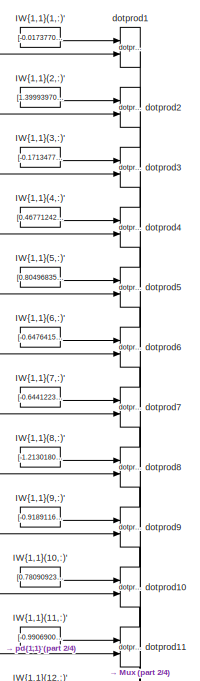
[diagram: small_error/Layer 1/IW{1,1} - part 1/4, top center region]
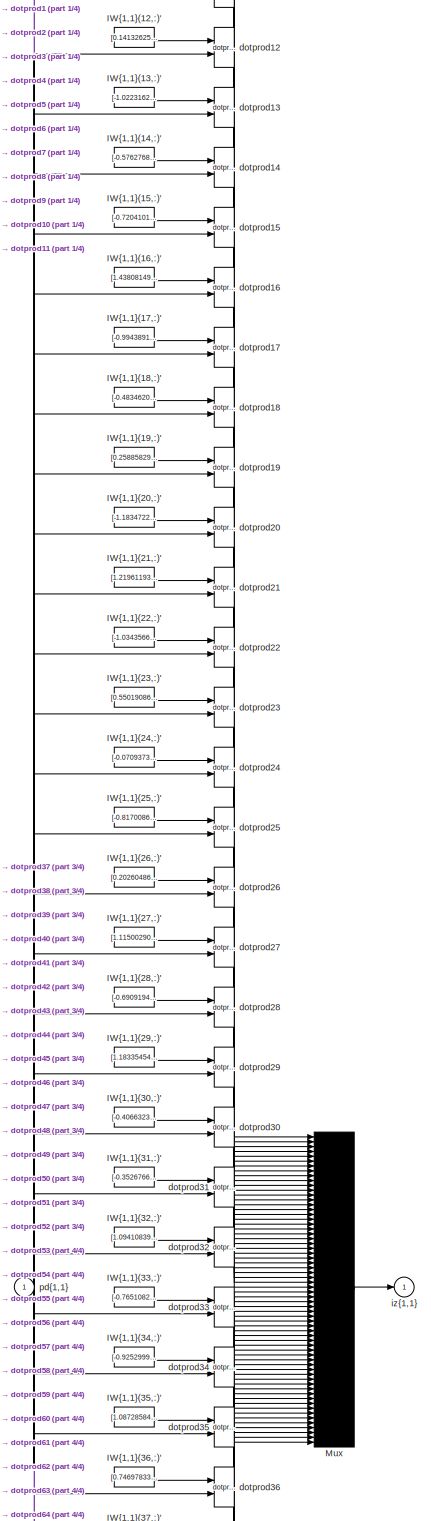
[diagram: small_error/Layer 1/IW{1,1} - part 2/4, full width, middle band]
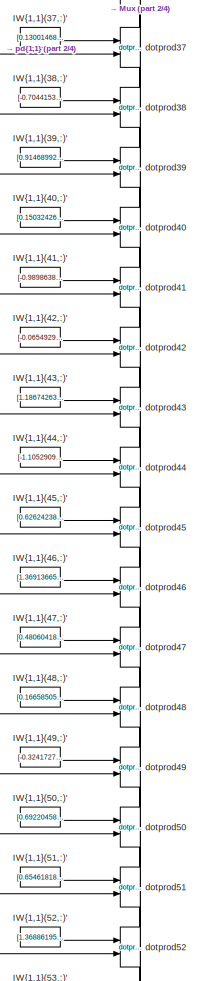
[diagram: small_error/Layer 1/IW{1,1} - part 3/4, bottom center region]
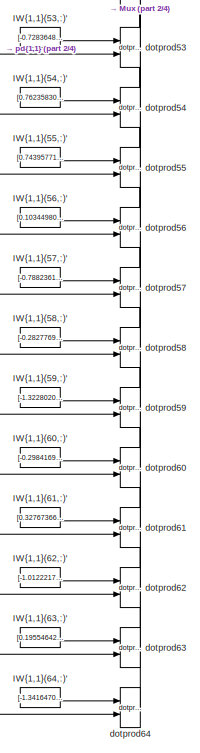
[diagram: small_error/Layer 1/IW{1,1} - part 4/4, bottom center region]
BLOCK [SubSystem] small_error/Layer 1/IW{1,1}
  Ports = [1, 1]
  RequestExecContextInheritance = off
BLOCK [Constant] small_error/Layer 1/IW{1,1}/IW{1,1}(1,:)'
  Value = [-0.017377067526509477890517274545345571823418140411376953125;-0.034011354582700097093361790712151560001075267791748046875;0.05439770936445220694821500728721730411052703857421875;-0.0629009283471842761681358524583629332482814788818359375;-2.987224863746458680680007091723382472991943359375;-0.2272943137249578138270322824610047973692417144775390625;0.0385799304893931563342768242819147417321801185607...<+65ch>
BLOCK [Constant] small_error/Layer 1/IW{1,1}/IW{1,1}(10,:)'
  Value = [0.7809092316347172602064574675750918686389923095703125;0.09000232433482556471115998419918469153344631195068359375;-1.0678670373399123949553768397890962660312652587890625;-0.46394015522004983242965181489125825464725494384765625;-0.9896990789374815467027701743063516914844512939453125;-1.3552014415576343342451082207844592630863189697265625;-0.179686656791558874157743730393121950328350067138671875;-0...<+56ch>
BLOCK [Constant] small_error/Layer 1/IW{1,1}/IW{1,1}(11,:)'
  Value = [-0.99069001109756549272589154497836716473102569580078125;-0.10428566072279556176116699361955397762358188629150390625;0.55618964752205457546807565449853427708148956298828125;0.68297232673513941225706957993679679930210113525390625;-0.248998068763353452848008373621269129216670989990234375;0.644201394846871888688610852113924920558929443359375;1.25138751592991059879977910895831882953643798828125;-1.41...<+45ch>
BLOCK [Constant] small_error/Layer 1/IW{1,1}/IW{1,1}(12,:)'
  Value = [0.1413262524196326752612407062770216725766658782958984375;-0.6047035889340335312880370111088268458843231201171875;0.381641363428228796994545746201765723526477813720703125;0.84755222293533816202426578456652350723743438720703125;0.041896191821087412632262925171744427643716335296630859375;-1.3393596111062613385200847915257327258586883544921875;-1.16826698005478224473563386709429323673248291015625;-0...<+55ch>
BLOCK [Constant] small_error/Layer 1/IW{1,1}/IW{1,1}(13,:)'
  Value = [-1.0223162041134503663641908133286051452159881591796875;0.360795024277329456907636995310895144939422607421875;0.83528351858334992652288519821013323962688446044921875;-0.419973501162595186375625644359388388693332672119140625;-0.91936716478895308402030650540837086737155914306640625;-0.745110801710211045900678072939626872539520263671875;0.66761104678762228648025711663649417459964752197265625;1.08673...<+48ch>
BLOCK [Constant] small_error/Layer 1/IW{1,1}/IW{1,1}(14,:)'
  Value = [-0.57627681227857741053099971395567990839481353759765625;0.857909167421744722759058277006261050701141357421875;-0.94860344887297232130407564909546636044979095458984375;-0.951059353750250746628580600372515618801116943359375;-0.08236091843453390015650228406229871325194835662841796875;-1.197742094847008775815311309997923672199249267578125;1.2108252364446354665261651462060399353504180908203125;0.1579...<+48ch>
BLOCK [Constant] small_error/Layer 1/IW{1,1}/IW{1,1}(15,:)'
  Value = [-0.7204101645789158236965477044577710330486297607421875;0.6308160303046788097702801678678952157497406005859375;0.423721818187184962045677139030885882675647735595703125;1.0038491536260936154434375566779635846614837646484375;-0.883054705141663287548681182670406997203826904296875;0.58133530731886706721667223973781801760196685791015625;-1.0898604085723462286949825283954851329326629638671875;0.7550292...<+47ch>
BLOCK [Constant] small_error/Layer 1/IW{1,1}/IW{1,1}(16,:)'
  Value = [1.4380814992902493099080629690433852374553680419921875;-0.76504143837121485471897130992147140204906463623046875;0.091006162532383749752540325062000192701816558837890625;1.083412609067099463544536774861626327037811279296875;-0.63205437136288289412533458744292147457599639892578125;-0.023231907766419000738178368692388175986707210540771484375;-0.38486268286379610170655496403924189507961273193359375;0...<+55ch>
BLOCK [Constant] small_error/Layer 1/IW{1,1}/IW{1,1}(17,:)'
  Value = [-0.99438911143919117563427789718843996524810791015625;1.1800184823356942853678219762514345347881317138671875;0.96225693879916296413767895501223392784595489501953125;0.92922137731835563467797101111500523984432220458984375;-0.165351050339907879038747751110349781811237335205078125;-0.92189358845869495695524165057577192783355712890625;-0.7329222503569459146177678121603094041347503662109375;-0.3867138...<+48ch>
BLOCK [Constant] small_error/Layer 1/IW{1,1}/IW{1,1}(18,:)'
  Value = [-0.48346203113266172923800922944792546331882476806640625;0.71561240921933866321325012904708273708820343017578125;0.2763669805789514821725560977938584983348846435546875;0.1785391777356719333891277301518130116164684295654296875;-1.282476848547498438080083360546268522739410400390625;-0.345188333939475733291857295625959523022174835205078125;-0.485833446458430129322181301176897250115871429443359375;0....<+54ch>
BLOCK [Constant] small_error/Layer 1/IW{1,1}/IW{1,1}(19,:)'
  Value = [0.25885829017035144605785035309963859617710113525390625;-0.75860387169028531406667070768889971077442169189453125;1.168586248003583794030646458850242197513580322265625;0.108415735019206482814269065784174017608165740966796875;-1.0403518157121827147904014054802246391773223876953125;0.227217134884770410874210710971965454518795013427734375;-0.1707771036802909758733903800020925700664520263671875;-1.058...<+45ch>
BLOCK [Constant] small_error/Layer 1/IW{1,1}/IW{1,1}(2,:)'
  Value = [1.399939701424660842832281559822149574756622314453125;1.1970420723626855608046071210992522537708282470703125;-1.2136352199150628461410406089271418750286102294921875;-0.52562314227074813377527107149944640696048736572265625;-0.04503930323055231610407389553074608556926250457763671875;0.83699176817769738168095727814943529665470123291015625;0.2363093463990357523396568240059423260390758514404296875;-0....<+55ch>
BLOCK [Constant] small_error/Layer 1/IW{1,1}/IW{1,1}(20,:)'
  Value = [-1.18347220693401045110704217222519218921661376953125;0.766009156958994186226163947139866650104522705078125;-1.0467062449262838352836979538551531732082366943359375;0.6851787478277435727846977897570468485355377197265625;-0.58848967369292604079333841582410968840122222900390625;0.8268949957131475070326587228919379413127899169921875;-0.8104681829608697540834327810443937778472900390625;0.2068638570520...<+41ch>
BLOCK [Constant] small_error/Layer 1/IW{1,1}/IW{1,1}(21,:)'
  Value = [1.219611932677147958514751735492609441280364990234375;-0.2179986107852489862768408102056127972900867462158203125;0.6892814533111317754077163044712506234645843505859375;1.2392353114451151174790766162914223968982696533203125;-0.59287581991320070784468043711967766284942626953125;-0.1463361983944102828747446665147435851395130157470703125;0.443878498993484249535157459831680171191692352294921875;-1.227...<+43ch>
BLOCK [Constant] small_error/Layer 1/IW{1,1}/IW{1,1}(22,:)'
  Value = [-1.034356635952660585786588853807188570499420166015625;-0.2124491322472994159209491726869600825011730194091796875;0.90244981411305413843138012452982366085052490234375;-0.049504035624847932128833605247564264573156833648681640625;-0.72694661999179366329570939342374913394451141357421875;1.1420952393322547635534647270105779170989990234375;1.1682637955611234747976823200588114559650421142578125;-0.0639...<+49ch>
BLOCK [Constant] small_error/Layer 1/IW{1,1}/IW{1,1}(23,:)'
  Value = [0.55019086440172249030666762337205000221729278564453125;-1.0819049497302071216608965187333524227142333984375;0.9266808173211398269586425158195197582244873046875;-1.187292059671042121493655940867029130458831787109375;0.344402574037255326810935684989090077579021453857421875;0.956062103710445310156273990287445485591888427734375;0.847530837657149316299864949542097747325897216796875;-0.406884376651751...<+40ch>
BLOCK [Constant] small_error/Layer 1/IW{1,1}/IW{1,1}(24,:)'
  Value = [-0.0709373845187223073249782601124024949967861175537109375;-1.121192740111934593727482933900319039821624755859375;0.30768431517374061900937931568478234112262725830078125;-1.445687820244011323467248075758107006549835205078125;-0.69216758774098929851703587701194919645786285400390625;1.24765852733028026477768435142934322357177734375;-0.027293636765880140149231891655290382914245128631591796875;0.0889...<+50ch>
BLOCK [Constant] small_error/Layer 1/IW{1,1}/IW{1,1}(25,:)'
  Value = [-0.817008684104527649338933770195581018924713134765625;0.09009373381231032540394920715698390267789363861083984375;-0.728342621944587431670470323297195136547088623046875;-0.9599684782971167340548390711774118244647979736328125;1.115180526327934185104595599113963544368743896484375;1.0179637090492612561121177350287325680255889892578125;0.59465668759401413279164216874050907790660858154296875;0.6450489...<+47ch>
BLOCK [Constant] small_error/Layer 1/IW{1,1}/IW{1,1}(26,:)'
  Value = [0.2026048659954693687001991975193959660828113555908203125;-0.89940805135049206597841475741006433963775634765625;-0.588853479835137694209379333187825977802276611328125;0.30103005113216896315719850463210605084896087646484375;0.367424398316437195166628271181252785027027130126953125;-1.28156467127469841926767912809737026691436767578125;1.176220308682861315219270181842148303985595703125;-0.93983343655...<+43ch>
BLOCK [Constant] small_error/Layer 1/IW{1,1}/IW{1,1}(27,:)'
  Value = [1.1150029018346951925622079215827398002147674560546875;-0.107338087221813094362943274973076768219470977783203125;1.183594109106976599576910302857868373394012451171875;-1.039098304448061949045722940354607999324798583984375;0.74480545136070486211821162214619107544422149658203125;0.61027453990553237606064840292674489319324493408203125;0.32286624411939979228947095180046744644641876220703125;0.7230648...<+45ch>
BLOCK [Constant] small_error/Layer 1/IW{1,1}/IW{1,1}(28,:)'
  Value = [-0.690919452047221938073562341742217540740966796875;-0.55427096371533968177658380227512679994106292724609375;0.82704898973293572428389097694889642298221588134765625;0.6540987147296088988213114134850911796092987060546875;1.2194524981285737030844984474242664873600006103515625;-1.213898767528181821262478479184210300445556640625;0.1279128539486860116625166483572684228420257568359375;-0.30540581397142...<+39ch>
BLOCK [Constant] small_error/Layer 1/IW{1,1}/IW{1,1}(29,:)'
  Value = [1.1833545428174867542026049704873003065586090087890625;-0.37617049447265127337658441319945268332958221435546875;0.08312849877137044873887106177789974026381969451904296875;-0.65728646232727550025032314806594513356685638427734375;-1.1565053035930912272988280165009200572967529296875;-1.2174699300370388499459295417182147502899169921875;-0.58854994883035083308442381166969425976276397705078125;-0.58852...<+47ch>
BLOCK [Constant] small_error/Layer 1/IW{1,1}/IW{1,1}(3,:)'
  Value = [-0.1713477858219417948593132905443781055510044097900390625;-1.0375213286223470277036540210247039794921875;-1.1152868460490157342945849450188688933849334716796875;-0.56009756828457113453367810507188551127910614013671875;-0.467727208222955825878131008721538819372653961181640625;0.067216770819887028398653683325392194092273712158203125;0.1100353684041793511649842685073963366448879241943359375;1.26834...<+48ch>
BLOCK [Constant] small_error/Layer 1/IW{1,1}/IW{1,1}(30,:)'
  Value = [-0.406632336224892421139287534970208071172237396240234375;-0.071691479079252662387489181128330528736114501953125;0.953885436919628570962004232569597661495208740234375;-0.370319891288378999494312893148162402212619781494140625;-0.350997147144751997505096596796647645533084869384765625;-0.76124062166233696924422247320762835443019866943359375;0.1624752428543290161400136639713309705257415771484375;-0.6...<+53ch>
BLOCK [Constant] small_error/Layer 1/IW{1,1}/IW{1,1}(31,:)'
  Value = [-0.352676601643936715735350162503891624510288238525390625;-0.67670082960554001072495111657190136611461639404296875;0.41025695896948521923519592746743001043796539306640625;1.158666227866344211605564851197414100170135498046875;-0.75282230283853579511088582876254804432392120361328125;0.5066310090314090075480635277926921844482421875;1.0078083027607360744326570056728087365627288818359375;1.27993135453...<+42ch>
BLOCK [Constant] small_error/Layer 1/IW{1,1}/IW{1,1}(32,:)'
  Value = [1.09410839270226034614097443409264087677001953125;0.128116507297960591227337090458604507148265838623046875;1.1755906192236746932167079648934304714202880859375;0.6401292036956942599346120914560742676258087158203125;-0.93505576990294059225306000371347181499004364013671875;-0.1029298762998116512079604945029132068157196044921875;1.000494005965565147420193170546554028987884521484375;-0.822944036891141...<+39ch>
BLOCK [Constant] small_error/Layer 1/IW{1,1}/IW{1,1}(33,:)'
  Value = [-0.76510824356968576420712224717135541141033172607421875;0.462713514982440177192302144248969852924346923828125;0.771388322645548907274815064738504588603973388671875;-0.461437899328466960557904030792997218668460845947265625;-0.448411725015751161382837608471163548529148101806640625;-0.83972247550148326755703465096303261816501617431640625;-1.44743644356056311295333216548897325992584228515625;-0.4656...<+50ch>
BLOCK [Constant] small_error/Layer 1/IW{1,1}/IW{1,1}(34,:)'
  Value = [-0.92529992361391133481873794153216294944286346435546875;-0.5525505265953547517909782982314936816692352294921875;1.451139064894599872701519416295923292636871337890625;-1.2992793939354994048329672295949421823024749755859375;0.2768254207230336216838395557715557515621185302734375;0.3264662260228965440234105699346400797367095947265625;-0.0239728882122877164084773227159530506469309329986572265625;0.44...<+53ch>
BLOCK [Constant] small_error/Layer 1/IW{1,1}/IW{1,1}(35,:)'
  Value = [1.08728584767184965897968140779994428157806396484375;-0.57920862423610219860137249270337633788585662841796875;0.31020421933113606627330227638594806194305419921875;0.22658140199870924202940614122780971229076385498046875;1.1898272093793667014693937744596041738986968994140625;-0.297311158932645813735007322975434362888336181640625;1.0269246501725657338965902454219758510589599609375;-0.776882115177407...<+37ch>
BLOCK [Constant] small_error/Layer 1/IW{1,1}/IW{1,1}(36,:)'
  Value = [0.7469783326675238921410482362261973321437835693359375;-0.5590277268773051755346159552573226392269134521484375;-0.286969937577315870047556245481246151030063629150390625;-0.90586134408508822701833196333609521389007568359375;1.0883679300743620554925428223214112222194671630859375;0.62737343497663611291415008963667787611484527587890625;0.85802125276730600855756847522570751607418060302734375;-0.684565...<+46ch>
BLOCK [Constant] small_error/Layer 1/IW{1,1}/IW{1,1}(37,:)'
  Value = [0.13001468783774250415063988839392550289630889892578125;-0.10423695612336414395571182467392645776271820068359375;-0.75606516155219993802205635802238248288631439208984375;0.316519047291030364288388909699278883635997772216796875;1.34193595484161232178621503408066928386688232421875;-1.084924692783397315309912301017902791500091552734375;1.112713738288932940889708333997987210750579833984375;-0.7369904...<+47ch>
BLOCK [Constant] small_error/Layer 1/IW{1,1}/IW{1,1}(38,:)'
  Value = [-0.70441530165524268713994615609408356249332427978515625;-1.1872343925763682026541800951235927641391754150390625;0.4135662628199490153946271675522439181804656982421875;0.8929315806927340393173153643147088587284088134765625;-1.0687381637064550243820804098504595458507537841796875;-0.35949622186414875724125295164412818849086761474609375;0.98752354627134308895364256386528722941875457763671875;-0.0874...<+53ch>
BLOCK [Constant] small_error/Layer 1/IW{1,1}/IW{1,1}(39,:)'
  Value = [0.9146899218170114753689858844154514372348785400390625;-0.9226021049054173861492245123372413218021392822265625;1.1143145008042842913908998525585047900676727294921875;-0.2493759667926167267193449106343905441462993621826171875;0.4824314841955172905585413900553248822689056396484375;1.3434150904225876654862759096431545913219451904296875;0.385282691103394636655821159365586936473846435546875;0.40560193...<+47ch>
BLOCK [Constant] small_error/Layer 1/IW{1,1}/IW{1,1}(4,:)'
  Value = [0.4677124266352006287661424721591174602508544921875;1.179319538639485909214954517665319144725799560546875;0.1190787283441280541840257001240388490259647369384765625;-0.6254155655293782700709925848059356212615966796875;1.2288866023152780204696910004713572561740875244140625;-0.416970767892102467389037201428436674177646636962890625;-1.15040107186096118851992287090979516506195068359375;-0.817763476762...<+42ch>
BLOCK [Constant] small_error/Layer 1/IW{1,1}/IW{1,1}(40,:)'
  Value = [0.150324266934207917412180677274591289460659027099609375;0.92184916947260731046043247260968200862407684326171875;-0.5770663616818143548670150266843847930431365966796875;0.68991099346128936797839514838415198028087615966796875;0.97393249350662258745359167733113281428813934326171875;-1.1663080517874846453452164496411569416522979736328125;-0.6430241425634088958673828528844751417636871337890625;-0.256...<+52ch>
BLOCK [Constant] small_error/Layer 1/IW{1,1}/IW{1,1}(41,:)'
  Value = [-0.989863875785313762634132217499427497386932373046875;0.78649592905462906156088820353033952414989471435546875;0.92692012405395940444208235931000672280788421630859375;-0.69214885574553275393583362529170699417591094970703125;-1.0158275700337997538014178644516505300998687744140625;-0.1565018125136950211118147535671596415340900421142578125;-0.488561324717758704849757123156450688838958740234375;-0.62...<+51ch>
BLOCK [Constant] small_error/Layer 1/IW{1,1}/IW{1,1}(42,:)'
  Value = [-0.0654929896709634251639187141336151398718357086181640625;-0.126590018741224052956084733523312024772167205810546875;0.676568223684226754954806892783381044864654541015625;0.1119224689992519561343442546785809099674224853515625;0.77417817970255342618912663965602405369281768798828125;0.1666440179828475864898251757040270604193210601806640625;-0.66100299728717593072957470212713815271854400634765625;-0...<+58ch>
BLOCK [Constant] small_error/Layer 1/IW{1,1}/IW{1,1}(43,:)'
  Value = [1.186742635320275240928822313435375690460205078125;0.72700473977794810576114059585961513221263885498046875;0.2005686019077405901622768169545452110469341278076171875;-0.81089106499427565655224725560401566326618194580078125;-1.1814745165865427889428929120185784995555877685546875;-0.59164267859916386260721310463850386440753936767578125;-0.9012555659763676896290007789502851665019989013671875;-0.37750...<+49ch>
BLOCK [Constant] small_error/Layer 1/IW{1,1}/IW{1,1}(44,:)'
  Value = [-1.105290973495005601989760180003941059112548828125;-0.32597663112844499355702510001719929277896881103515625;-0.6594988375978301231583600383601151406764984130859375;-0.319229986332627502232384131275466643273830413818359375;1.3534773499650594175136575358919799327850341796875;0.57122266331391546856366403517313301563262939453125;0.8013418587414318228212550820899195969104766845703125;-0.1307407917426...<+43ch>
BLOCK [Constant] small_error/Layer 1/IW{1,1}/IW{1,1}(45,:)'
  Value = [0.62624238846817326109572832137928344309329986572265625;0.14703808415278685206573072719038464128971099853515625;0.457398557723452114931461665037204511463642120361328125;0.72188630672245945874010430998168885707855224609375;-0.33557716928372960385473788846866227686405181884765625;0.57064174918386478818632667753263376653194427490234375;-1.4672029223197620151353248729719780385494232177734375;-1.22349...<+48ch>
BLOCK [Constant] small_error/Layer 1/IW{1,1}/IW{1,1}(46,:)'
  Value = [1.3691366596317637860380500569590367376804351806640625;0.3329397731164618345900407803128473460674285888671875;0.57139335167013782790235154607216827571392059326171875;0.51010398909026000158206670676008798182010650634765625;-1.1097921255095155590453259719652123749256134033203125;-0.73643732777806214517823946152930147945880889892578125;-0.2840819022141121141800113036879338324069976806640625;-1.00068...<+48ch>
BLOCK [Constant] small_error/Layer 1/IW{1,1}/IW{1,1}(47,:)'
  Value = [0.480604186486641438147415783532778732478618621826171875;0.84422588131719111803619171041646040976047515869140625;0.82453351319982404188380087362020276486873626708984375;-1.18107295599703032706884187064133584499359130859375;1.019371481649084199005983464303426444530487060546875;-0.96232788375230182698061298651737160980701446533203125;-0.6610640726387975174560551749891601502895355224609375;0.3399911...<+45ch>
BLOCK [Constant] small_error/Layer 1/IW{1,1}/IW{1,1}(48,:)'
  Value = [0.16658505780300547627348350943066179752349853515625;-0.07588862743271031219283173641088069416582584381103515625;-0.11745889146021588900214993600457091815769672393798828125;0.10806056174435356431740018479104037396609783172607421875;3.46068702604472644424049576628021895885467529296875;0.04341703733599792947028817025056923739612102508544921875;0.43528932495384614620448360255977604538202285766601562...<+59ch>
BLOCK [Constant] small_error/Layer 1/IW{1,1}/IW{1,1}(49,:)'
  Value = [-0.324172746097600938952609794796444475650787353515625;-1.040872905725482855388008829322643578052520751953125;-1.627380137454742747848968065227381885051727294921875;-0.358118770152060672540272889818879775702953338623046875;0.425375034709552679590416346400161273777484893798828125;-0.630583468276700198629214355605654418468475341796875;0.87327934704026299872481331476592458784580230712890625;0.366085...<+47ch>
BLOCK [Constant] small_error/Layer 1/IW{1,1}/IW{1,1}(5,:)'
  Value = [0.80496835346537254363141755675314925611019134521484375;0.09846330826343203945771875851278309710323810577392578125;-1.38376904242930010013878927566111087799072265625;-0.2188869464847831569631608772397157736122608184814453125;-0.7628228978433480023113588686101138591766357421875;-0.459195914314611541851007814329932443797588348388671875;0.55615377789827868948435707352473400533199310302734375;0.76675...<+49ch>
BLOCK [Constant] small_error/Layer 1/IW{1,1}/IW{1,1}(50,:)'
  Value = [0.69220458764794645656337479522335343062877655029296875;-1.193685042063108436849461213569156825542449951171875;0.917288662957973510714282383560203015804290771484375;-0.34810562554271717861098522917018271982669830322265625;1.1522442270627764049351071662385948002338409423828125;-0.74321846129039548234374024104909040033817291259765625;-0.8333227884286376063727175278472714126110076904296875;-0.508817...<+48ch>
BLOCK [Constant] small_error/Layer 1/IW{1,1}/IW{1,1}(51,:)'
  Value = [0.654618187101493109736338738002814352512359619140625;0.57725558454009651132565750231151469051837921142578125;-0.377185469959709251952517661266028881072998046875;-1.013291811267324593615057892748154699802398681640625;-0.70224794420951008877551657860749401152133941650390625;0.94163301176554659033257621558732353150844573974609375;-0.87173448369511785660534997077775187790393829345703125;1.0589877439...<+43ch>
BLOCK [Constant] small_error/Layer 1/IW{1,1}/IW{1,1}(52,:)'
  Value = [1.3688619599808398152873678554897196590900421142578125;-0.50237260656056559326998467440716922283172607421875;1.0203014056071963988614470508764497935771942138671875;1.4401690630730874520537554417387582361698150634765625;-0.134334404109476890365471035693190060555934906005859375;0.63086523561595930775780516341910697519779205322265625;0.10910016859874029082622115538470097817480564117431640625;-0.5603...<+49ch>
BLOCK [Constant] small_error/Layer 1/IW{1,1}/IW{1,1}(53,:)'
  Value = [-0.7283648993366502732982326051569543778896331787109375;-0.296522662182558682797406390818650834262371063232421875;1.30678063995774973449215394794009625911712646484375;-0.340747658274968057146026012560469098389148712158203125;-0.87947548057460001036389485307154245674610137939453125;0.36407241329327388879022464607260189950466156005859375;-1.40416053120731731951309484429657459259033203125;0.54897641...<+41ch>
BLOCK [Constant] small_error/Layer 1/IW{1,1}/IW{1,1}(54,:)'
  Value = [0.76235830678807336990843168678111396729946136474609375;-0.263400737160603359843236148662981577217578887939453125;-0.52733492353464661572814975443179719150066375732421875;0.264341887289500920843465792131610214710235595703125;-1.313367287391855153799724575947038829326629638671875;0.364040256891997149324424754013307392597198486328125;0.51766650449105700015905995314824394881725311279296875;1.5137623...<+46ch>
BLOCK [Constant] small_error/Layer 1/IW{1,1}/IW{1,1}(55,:)'
  Value = [0.74395771254309572828589125492726452648639678955078125;-0.16337813680087098777704568419721908867359161376953125;-0.64460345699131005314796993843629024922847747802734375;-0.4674568802613652263033827694016508758068084716796875;-1.1916712358503718238722512978711165487766265869140625;-0.58836195577556937852392593413242138922214508056640625;-0.296193419474662100743245218836818821728229522705078125;-1...<+54ch>
BLOCK [Constant] small_error/Layer 1/IW{1,1}/IW{1,1}(56,:)'
  Value = [0.103449804069278672447040889892377890646457672119140625;-0.11265942328387247572951679330799379386007785797119140625;0.5581356619217212600148059209459461271762847900390625;-0.37085152996991876950261257661622948944568634033203125;1.74270939706490590737075763172470033168792724609375;0.22202632781109776782813014506245963275432586669921875;-0.662040518236455266531947927433066070079803466796875;-0.314...<+50ch>
BLOCK [Constant] small_error/Layer 1/IW{1,1}/IW{1,1}(57,:)'
  Value = [-0.788236189356705807540492969565093517303466796875;-0.1696796842000009297724005818963632918894290924072265625;0.6417670522616527595261004535132087767124176025390625;0.89503942918971535203098710553604178130626678466796875;-0.77966013415553969689852920055272988975048065185546875;1.27105310230965340423381348955444991588592529296875;-0.46215764320585839275423722938285209238529205322265625;-0.0405008...<+49ch>
BLOCK [Constant] small_error/Layer 1/IW{1,1}/IW{1,1}(58,:)'
  Value = [-0.282776919567824081003237779441406019032001495361328125;0.55475339132254342100480926092131994664669036865234375;0.131770063646997226403101421965402550995349884033203125;-0.69602911123392086079064711157116107642650604248046875;0.7047800121582998844615985944983549416065216064453125;1.1977953547179989168824931766721419990062713623046875;-0.0068671013693829162025106249700456828577443957328796386718...<+59ch>
BLOCK [Constant] small_error/Layer 1/IW{1,1}/IW{1,1}(59,:)'
  Value = [-1.32280200133149516972252968116663396358489990234375;-1.241498673040075662044046111986972391605377197265625;0.1112030233925446476295206821305328048765659332275390625;-0.0949003654198495583127481722840457223355770111083984375;0.5853047141479397197372236405499279499053955078125;-1.2034558547379912152308634176733903586864471435546875;0.8571376516073903051307070199982263147830963134765625;-0.3566673...<+48ch>
BLOCK [Constant] small_error/Layer 1/IW{1,1}/IW{1,1}(6,:)'
  Value = [-0.647641582751347311130984962801449000835418701171875;-0.05389082719843975299855998173370608128607273101806640625;0.72723263072112731553175990484305657446384429931640625;0.642663017785146006843888244475238025188446044921875;0.60355377753536865181871462482376955449581146240234375;1.216413729119398823286246624775230884552001953125;-0.332393094321415005776287898697773925960063934326171875;0.6742071...<+43ch>
BLOCK [Constant] small_error/Layer 1/IW{1,1}/IW{1,1}(60,:)'
  Value = [-0.29841697320189186637406919544446282088756561279296875;0.1751102111160622865071445630746893584728240966796875;-0.56120483503503171274218175312853418290615081787109375;-1.1526376573287977489457034607767127454280853271484375;-0.7796632550440090181353980369749478995800018310546875;1.1103602153930136609005785430781543254852294921875;1.29675686533358724972231357241980731487274169921875;0.25663022456...<+41ch>
BLOCK [Constant] small_error/Layer 1/IW{1,1}/IW{1,1}(61,:)'
  Value = [0.327673661172264096830275548200006596744060516357421875;-1.1852146403487981984881116659380495548248291015625;-0.8356628172465112580624690963304601609706878662109375;1.1507140513832607719990619443706236779689788818359375;0.422649337780528211450103981405845843255519866943359375;-0.90675257831490052584655359169119037687778472900390625;-0.61351513840491722628911475112545304000377655029296875;0.77068...<+49ch>
BLOCK [Constant] small_error/Layer 1/IW{1,1}/IW{1,1}(62,:)'
  Value = [-1.01222175358292876268251347937621176242828369140625;0.30772903857483180356524599119438789784908294677734375;0.1258447111360571357696613858934142626821994781494140625;-0.2048272957368057201055222549257450737059116363525390625;1.04659222892280379113572053029201924800872802734375;-1.023650618088968844432429250446148216724395751953125;0.96149659541473264656730179922305978834629058837890625;-1.06916...<+48ch>
BLOCK [Constant] small_error/Layer 1/IW{1,1}/IW{1,1}(63,:)'
  Value = [0.195546427152749668909592628551763482391834259033203125;0.2287492720815610114382110396036296151578426361083984375;0.86134122089192366455989713358576409518718719482421875;-1.048306188726943588562789955176413059234619140625;0.9216840303458671002090341062285006046295166015625;0.464502666454476076385304850191459991037845611572265625;-1.46095669606850275812348627368919551372528076171875;0.04961753802...<+46ch>
BLOCK [Constant] small_error/Layer 1/IW{1,1}/IW{1,1}(64,:)'
  Value = [-1.341647093590799588724848945275880396366119384765625;0.494386557133207060754642725441954098641872406005859375;-0.9742833195380529165419147830107249319553375244140625;-0.490145582947635272130781913801911287009716033935546875;0.283693624328360705089124849109794013202190399169921875;1.222641006826332699120030156336724758148193359375;0.463857209333898234948634353713714517652988433837890625;0.696723...<+48ch>
BLOCK [Constant] small_error/Layer 1/IW{1,1}/IW{1,1}(7,:)'
  Value = [-0.6441223072216717415727771367528475821018218994140625;1.2024127442640304419541052993736229836940765380859375;1.190542341822362626402309615514241158962249755859375;-0.14559750450257469278625421793549321591854095458984375;-0.348178053061322378969322244302020408213138580322265625;-1.2120394474561699826864469287102110683917999267578125;0.0078193818859832731060777177845011465251445770263671875;0.703...<+49ch>
BLOCK [Constant] small_error/Layer 1/IW{1,1}/IW{1,1}(8,:)'
  Value = [-1.2130180218773325417913611090625636279582977294921875;0.058317907292045896572307839278437313623726367950439453125;-0.7224555011965236861470884832669980823993682861328125;-1.1361547906194224832887584852869622409343719482421875;-1.01205039212307834617377011454664170742034912109375;0.1290720124879272956430753538370481692254543304443359375;-0.0358768950798835362103744728301535360515117645263671875;...<+54ch>
BLOCK [Constant] small_error/Layer 1/IW{1,1}/IW{1,1}(9,:)'
  Value = [-0.91891166932257017929686071511241607367992401123046875;-0.15606431575632206953940794846857897937297821044921875;0.34514558439929832189818625920452177524566650390625;0.2520813370518493190530762149137444794178009033203125;0.2868699278029815946666758463834412395954132080078125;0.44610088839530970261648690211586654186248779296875;1.3524209604642096760329650351195596158504486083984375;-0.98565174866...<+43ch>
BLOCK [Mux] small_error/Layer 1/IW{1,1}/Mux
  Inputs = 64
  Ports = [64, 1]
BLOCK [Reference] small_error/Layer 1/IW{1,1}/dotprod1  REF=neural/Weight Functions/dotprod
  Ports = [2, 1]
  SourceBlock = neural/Weight Functions/dotprod
  SourceProductBaseCode = NN
  SourceProductName = Neural Network Toolbox
  SourceType = DOTPROD
BLOCK [Reference] small_error/Layer 1/IW{1,1}/dotprod10  REF=neural/Weight Functions/dotprod
  Ports = [2, 1]
  SourceBlock = neural/Weight Functions/dotprod
  SourceProductBaseCode = NN
  SourceProductName = Neural Network Toolbox
  SourceType = DOTPROD
BLOCK [Reference] small_error/Layer 1/IW{1,1}/dotprod11  REF=neural/Weight Functions/dotprod
  Ports = [2, 1]
  SourceBlock = neural/Weight Functions/dotprod
  SourceProductBaseCode = NN
  SourceProductName = Neural Network Toolbox
  SourceType = DOTPROD
BLOCK [Reference] small_error/Layer 1/IW{1,1}/dotprod12  REF=neural/Weight Functions/dotprod
  Ports = [2, 1]
  SourceBlock = neural/Weight Functions/dotprod
  SourceProductBaseCode = NN
  SourceProductName = Neural Network Toolbox
  SourceType = DOTPROD
BLOCK [Reference] small_error/Layer 1/IW{1,1}/dotprod13  REF=neural/Weight Functions/dotprod
  Ports = [2, 1]
  SourceBlock = neural/Weight Functions/dotprod
  SourceProductBaseCode = NN
  SourceProductName = Neural Network Toolbox
  SourceType = DOTPROD
BLOCK [Reference] small_error/Layer 1/IW{1,1}/dotprod14  REF=neural/Weight Functions/dotprod
  Ports = [2, 1]
  SourceBlock = neural/Weight Functions/dotprod
  SourceProductBaseCode = NN
  SourceProductName = Neural Network Toolbox
  SourceType = DOTPROD
BLOCK [Reference] small_error/Layer 1/IW{1,1}/dotprod15  REF=neural/Weight Functions/dotprod
  Ports = [2, 1]
  SourceBlock = neural/Weight Functions/dotprod
  SourceProductBaseCode = NN
  SourceProductName = Neural Network Toolbox
  SourceType = DOTPROD
BLOCK [Reference] small_error/Layer 1/IW{1,1}/dotprod16  REF=neural/Weight Functions/dotprod
  Ports = [2, 1]
  SourceBlock = neural/Weight Functions/dotprod
  SourceProductBaseCode = NN
  SourceProductName = Neural Network Toolbox
  SourceType = DOTPROD
BLOCK [Reference] small_error/Layer 1/IW{1,1}/dotprod17  REF=neural/Weight Functions/dotprod
  Ports = [2, 1]
  SourceBlock = neural/Weight Functions/dotprod
  SourceProductBaseCode = NN
  SourceProductName = Neural Network Toolbox
  SourceType = DOTPROD
BLOCK [Reference] small_error/Layer 1/IW{1,1}/dotprod18  REF=neural/Weight Functions/dotprod
  Ports = [2, 1]
  SourceBlock = neural/Weight Functions/dotprod
  SourceProductBaseCode = NN
  SourceProductName = Neural Network Toolbox
  SourceType = DOTPROD
BLOCK [Reference] small_error/Layer 1/IW{1,1}/dotprod19  REF=neural/Weight Functions/dotprod
  Ports = [2, 1]
  SourceBlock = neural/Weight Functions/dotprod
  SourceProductBaseCode = NN
  SourceProductName = Neural Network Toolbox
  SourceType = DOTPROD
BLOCK [Reference] small_error/Layer 1/IW{1,1}/dotprod2  REF=neural/Weight Functions/dotprod
  Ports = [2, 1]
  SourceBlock = neural/Weight Functions/dotprod
  SourceProductBaseCode = NN
  SourceProductName = Neural Network Toolbox
  SourceType = DOTPROD
BLOCK [Reference] small_error/Layer 1/IW{1,1}/dotprod20  REF=neural/Weight Functions/dotprod
  Ports = [2, 1]
  SourceBlock = neural/Weight Functions/dotprod
  SourceProductBaseCode = NN
  SourceProductName = Neural Network Toolbox
  SourceType = DOTPROD
BLOCK [Reference] small_error/Layer 1/IW{1,1}/dotprod21  REF=neural/Weight Functions/dotprod
  Ports = [2, 1]
  SourceBlock = neural/Weight Functions/dotprod
  SourceProductBaseCode = NN
  SourceProductName = Neural Network Toolbox
  SourceType = DOTPROD
BLOCK [Reference] small_error/Layer 1/IW{1,1}/dotprod22  REF=neural/Weight Functions/dotprod
  Ports = [2, 1]
  SourceBlock = neural/Weight Functions/dotprod
  SourceProductBaseCode = NN
  SourceProductName = Neural Network Toolbox
  SourceType = DOTPROD
BLOCK [Reference] small_error/Layer 1/IW{1,1}/dotprod23  REF=neural/Weight Functions/dotprod
  Ports = [2, 1]
  SourceBlock = neural/Weight Functions/dotprod
  SourceProductBaseCode = NN
  SourceProductName = Neural Network Toolbox
  SourceType = DOTPROD
BLOCK [Reference] small_error/Layer 1/IW{1,1}/dotprod24  REF=neural/Weight Functions/dotprod
  Ports = [2, 1]
  SourceBlock = neural/Weight Functions/dotprod
  SourceProductBaseCode = NN
  SourceProductName = Neural Network Toolbox
  SourceType = DOTPROD
BLOCK [Reference] small_error/Layer 1/IW{1,1}/dotprod25  REF=neural/Weight Functions/dotprod
  Ports = [2, 1]
  SourceBlock = neural/Weight Functions/dotprod
  SourceProductBaseCode = NN
  SourceProductName = Neural Network Toolbox
  SourceType = DOTPROD
BLOCK [Reference] small_error/Layer 1/IW{1,1}/dotprod26  REF=neural/Weight Functions/dotprod
  Ports = [2, 1]
  SourceBlock = neural/Weight Functions/dotprod
  SourceProductBaseCode = NN
  SourceProductName = Neural Network Toolbox
  SourceType = DOTPROD
BLOCK [Reference] small_error/Layer 1/IW{1,1}/dotprod27  REF=neural/Weight Functions/dotprod
  Ports = [2, 1]
  SourceBlock = neural/Weight Functions/dotprod
  SourceProductBaseCode = NN
  SourceProductName = Neural Network Toolbox
  SourceType = DOTPROD
BLOCK [Reference] small_error/Layer 1/IW{1,1}/dotprod28  REF=neural/Weight Functions/dotprod
  Ports = [2, 1]
  SourceBlock = neural/Weight Functions/dotprod
  SourceProductBaseCode = NN
  SourceProductName = Neural Network Toolbox
  SourceType = DOTPROD
BLOCK [Reference] small_error/Layer 1/IW{1,1}/dotprod29  REF=neural/Weight Functions/dotprod
  Ports = [2, 1]
  SourceBlock = neural/Weight Functions/dotprod
  SourceProductBaseCode = NN
  SourceProductName = Neural Network Toolbox
  SourceType = DOTPROD
BLOCK [Reference] small_error/Layer 1/IW{1,1}/dotprod3  REF=neural/Weight Functions/dotprod
  Ports = [2, 1]
  SourceBlock = neural/Weight Functions/dotprod
  SourceProductBaseCode = NN
  SourceProductName = Neural Network Toolbox
  SourceType = DOTPROD
BLOCK [Reference] small_error/Layer 1/IW{1,1}/dotprod30  REF=neural/Weight Functions/dotprod
  Ports = [2, 1]
  SourceBlock = neural/Weight Functions/dotprod
  SourceProductBaseCode = NN
  SourceProductName = Neural Network Toolbox
  SourceType = DOTPROD
BLOCK [Reference] small_error/Layer 1/IW{1,1}/dotprod31  REF=neural/Weight Functions/dotprod
  Ports = [2, 1]
  SourceBlock = neural/Weight Functions/dotprod
  SourceProductBaseCode = NN
  SourceProductName = Neural Network Toolbox
  SourceType = DOTPROD
BLOCK [Reference] small_error/Layer 1/IW{1,1}/dotprod32  REF=neural/Weight Functions/dotprod
  Ports = [2, 1]
  SourceBlock = neural/Weight Functions/dotprod
  SourceProductBaseCode = NN
  SourceProductName = Neural Network Toolbox
  SourceType = DOTPROD
BLOCK [Reference] small_error/Layer 1/IW{1,1}/dotprod33  REF=neural/Weight Functions/dotprod
  Ports = [2, 1]
  SourceBlock = neural/Weight Functions/dotprod
  SourceProductBaseCode = NN
  SourceProductName = Neural Network Toolbox
  SourceType = DOTPROD
BLOCK [Reference] small_error/Layer 1/IW{1,1}/dotprod34  REF=neural/Weight Functions/dotprod
  Ports = [2, 1]
  SourceBlock = neural/Weight Functions/dotprod
  SourceProductBaseCode = NN
  SourceProductName = Neural Network Toolbox
  SourceType = DOTPROD
BLOCK [Reference] small_error/Layer 1/IW{1,1}/dotprod35  REF=neural/Weight Functions/dotprod
  Ports = [2, 1]
  SourceBlock = neural/Weight Functions/dotprod
  SourceProductBaseCode = NN
  SourceProductName = Neural Network Toolbox
  SourceType = DOTPROD
BLOCK [Reference] small_error/Layer 1/IW{1,1}/dotprod36  REF=neural/Weight Functions/dotprod
  Ports = [2, 1]
  SourceBlock = neural/Weight Functions/dotprod
  SourceProductBaseCode = NN
  SourceProductName = Neural Network Toolbox
  SourceType = DOTPROD
BLOCK [Reference] small_error/Layer 1/IW{1,1}/dotprod37  REF=neural/Weight Functions/dotprod
  Ports = [2, 1]
  SourceBlock = neural/Weight Functions/dotprod
  SourceProductBaseCode = NN
  SourceProductName = Neural Network Toolbox
  SourceType = DOTPROD
BLOCK [Reference] small_error/Layer 1/IW{1,1}/dotprod38  REF=neural/Weight Functions/dotprod
  Ports = [2, 1]
  SourceBlock = neural/Weight Functions/dotprod
  SourceProductBaseCode = NN
  SourceProductName = Neural Network Toolbox
  SourceType = DOTPROD
BLOCK [Reference] small_error/Layer 1/IW{1,1}/dotprod39  REF=neural/Weight Functions/dotprod
  Ports = [2, 1]
  SourceBlock = neural/Weight Functions/dotprod
  SourceProductBaseCode = NN
  SourceProductName = Neural Network Toolbox
  SourceType = DOTPROD
BLOCK [Reference] small_error/Layer 1/IW{1,1}/dotprod4  REF=neural/Weight Functions/dotprod
  Ports = [2, 1]
  SourceBlock = neural/Weight Functions/dotprod
  SourceProductBaseCode = NN
  SourceProductName = Neural Network Toolbox
  SourceType = DOTPROD
BLOCK [Reference] small_error/Layer 1/IW{1,1}/dotprod40  REF=neural/Weight Functions/dotprod
  Ports = [2, 1]
  SourceBlock = neural/Weight Functions/dotprod
  SourceProductBaseCode = NN
  SourceProductName = Neural Network Toolbox
  SourceType = DOTPROD
BLOCK [Reference] small_error/Layer 1/IW{1,1}/dotprod41  REF=neural/Weight Functions/dotprod
  Ports = [2, 1]
  SourceBlock = neural/Weight Functions/dotprod
  SourceProductBaseCode = NN
  SourceProductName = Neural Network Toolbox
  SourceType = DOTPROD
BLOCK [Reference] small_error/Layer 1/IW{1,1}/dotprod42  REF=neural/Weight Functions/dotprod
  Ports = [2, 1]
  SourceBlock = neural/Weight Functions/dotprod
  SourceProductBaseCode = NN
  SourceProductName = Neural Network Toolbox
  SourceType = DOTPROD
BLOCK [Reference] small_error/Layer 1/IW{1,1}/dotprod43  REF=neural/Weight Functions/dotprod
  Ports = [2, 1]
  SourceBlock = neural/Weight Functions/dotprod
  SourceProductBaseCode = NN
  SourceProductName = Neural Network Toolbox
  SourceType = DOTPROD
BLOCK [Reference] small_error/Layer 1/IW{1,1}/dotprod44  REF=neural/Weight Functions/dotprod
  Ports = [2, 1]
  SourceBlock = neural/Weight Functions/dotprod
  SourceProductBaseCode = NN
  SourceProductName = Neural Network Toolbox
  SourceType = DOTPROD
BLOCK [Reference] small_error/Layer 1/IW{1,1}/dotprod45  REF=neural/Weight Functions/dotprod
  Ports = [2, 1]
  SourceBlock = neural/Weight Functions/dotprod
  SourceProductBaseCode = NN
  SourceProductName = Neural Network Toolbox
  SourceType = DOTPROD
BLOCK [Reference] small_error/Layer 1/IW{1,1}/dotprod46  REF=neural/Weight Functions/dotprod
  Ports = [2, 1]
  SourceBlock = neural/Weight Functions/dotprod
  SourceProductBaseCode = NN
  SourceProductName = Neural Network Toolbox
  SourceType = DOTPROD
BLOCK [Reference] small_error/Layer 1/IW{1,1}/dotprod47  REF=neural/Weight Functions/dotprod
  Ports = [2, 1]
  SourceBlock = neural/Weight Functions/dotprod
  SourceProductBaseCode = NN
  SourceProductName = Neural Network Toolbox
  SourceType = DOTPROD
BLOCK [Reference] small_error/Layer 1/IW{1,1}/dotprod48  REF=neural/Weight Functions/dotprod
  Ports = [2, 1]
  SourceBlock = neural/Weight Functions/dotprod
  SourceProductBaseCode = NN
  SourceProductName = Neural Network Toolbox
  SourceType = DOTPROD
BLOCK [Reference] small_error/Layer 1/IW{1,1}/dotprod49  REF=neural/Weight Functions/dotprod
  Ports = [2, 1]
  SourceBlock = neural/Weight Functions/dotprod
  SourceProductBaseCode = NN
  SourceProductName = Neural Network Toolbox
  SourceType = DOTPROD
BLOCK [Reference] small_error/Layer 1/IW{1,1}/dotprod5  REF=neural/Weight Functions/dotprod
  Ports = [2, 1]
  SourceBlock = neural/Weight Functions/dotprod
  SourceProductBaseCode = NN
  SourceProductName = Neural Network Toolbox
  SourceType = DOTPROD
BLOCK [Reference] small_error/Layer 1/IW{1,1}/dotprod50  REF=neural/Weight Functions/dotprod
  Ports = [2, 1]
  SourceBlock = neural/Weight Functions/dotprod
  SourceProductBaseCode = NN
  SourceProductName = Neural Network Toolbox
  SourceType = DOTPROD
BLOCK [Reference] small_error/Layer 1/IW{1,1}/dotprod51  REF=neural/Weight Functions/dotprod
  Ports = [2, 1]
  SourceBlock = neural/Weight Functions/dotprod
  SourceProductBaseCode = NN
  SourceProductName = Neural Network Toolbox
  SourceType = DOTPROD
BLOCK [Reference] small_error/Layer 1/IW{1,1}/dotprod52  REF=neural/Weight Functions/dotprod
  Ports = [2, 1]
  SourceBlock = neural/Weight Functions/dotprod
  SourceProductBaseCode = NN
  SourceProductName = Neural Network Toolbox
  SourceType = DOTPROD
BLOCK [Reference] small_error/Layer 1/IW{1,1}/dotprod53  REF=neural/Weight Functions/dotprod
  Ports = [2, 1]
  SourceBlock = neural/Weight Functions/dotprod
  SourceProductBaseCode = NN
  SourceProductName = Neural Network Toolbox
  SourceType = DOTPROD
BLOCK [Reference] small_error/Layer 1/IW{1,1}/dotprod54  REF=neural/Weight Functions/dotprod
  Ports = [2, 1]
  SourceBlock = neural/Weight Functions/dotprod
  SourceProductBaseCode = NN
  SourceProductName = Neural Network Toolbox
  SourceType = DOTPROD
BLOCK [Reference] small_error/Layer 1/IW{1,1}/dotprod55  REF=neural/Weight Functions/dotprod
  Ports = [2, 1]
  SourceBlock = neural/Weight Functions/dotprod
  SourceProductBaseCode = NN
  SourceProductName = Neural Network Toolbox
  SourceType = DOTPROD
BLOCK [Reference] small_error/Layer 1/IW{1,1}/dotprod56  REF=neural/Weight Functions/dotprod
  Ports = [2, 1]
  SourceBlock = neural/Weight Functions/dotprod
  SourceProductBaseCode = NN
  SourceProductName = Neural Network Toolbox
  SourceType = DOTPROD
BLOCK [Reference] small_error/Layer 1/IW{1,1}/dotprod57  REF=neural/Weight Functions/dotprod
  Ports = [2, 1]
  SourceBlock = neural/Weight Functions/dotprod
  SourceProductBaseCode = NN
  SourceProductName = Neural Network Toolbox
  SourceType = DOTPROD
BLOCK [Reference] small_error/Layer 1/IW{1,1}/dotprod58  REF=neural/Weight Functions/dotprod
  Ports = [2, 1]
  SourceBlock = neural/Weight Functions/dotprod
  SourceProductBaseCode = NN
  SourceProductName = Neural Network Toolbox
  SourceType = DOTPROD
BLOCK [Reference] small_error/Layer 1/IW{1,1}/dotprod59  REF=neural/Weight Functions/dotprod
  Ports = [2, 1]
  SourceBlock = neural/Weight Functions/dotprod
  SourceProductBaseCode = NN
  SourceProductName = Neural Network Toolbox
  SourceType = DOTPROD
BLOCK [Reference] small_error/Layer 1/IW{1,1}/dotprod6  REF=neural/Weight Functions/dotprod
  Ports = [2, 1]
  SourceBlock = neural/Weight Functions/dotprod
  SourceProductBaseCode = NN
  SourceProductName = Neural Network Toolbox
  SourceType = DOTPROD
BLOCK [Reference] small_error/Layer 1/IW{1,1}/dotprod60  REF=neural/Weight Functions/dotprod
  Ports = [2, 1]
  SourceBlock = neural/Weight Functions/dotprod
  SourceProductBaseCode = NN
  SourceProductName = Neural Network Toolbox
  SourceType = DOTPROD
BLOCK [Reference] small_error/Layer 1/IW{1,1}/dotprod61  REF=neural/Weight Functions/dotprod
  Ports = [2, 1]
  SourceBlock = neural/Weight Functions/dotprod
  SourceProductBaseCode = NN
  SourceProductName = Neural Network Toolbox
  SourceType = DOTPROD
BLOCK [Reference] small_error/Layer 1/IW{1,1}/dotprod62  REF=neural/Weight Functions/dotprod
  Ports = [2, 1]
  SourceBlock = neural/Weight Functions/dotprod
  SourceProductBaseCode = NN
  SourceProductName = Neural Network Toolbox
  SourceType = DOTPROD
BLOCK [Reference] small_error/Layer 1/IW{1,1}/dotprod63  REF=neural/Weight Functions/dotprod
  Ports = [2, 1]
  SourceBlock = neural/Weight Functions/dotprod
  SourceProductBaseCode = NN
  SourceProductName = Neural Network Toolbox
  SourceType = DOTPROD
BLOCK [Reference] small_error/Layer 1/IW{1,1}/dotprod64  REF=neural/Weight Functions/dotprod
  Ports = [2, 1]
  SourceBlock = neural/Weight Functions/dotprod
  SourceProductBaseCode = NN
  SourceProductName = Neural Network Toolbox
  SourceType = DOTPROD
BLOCK [Reference] small_error/Layer 1/IW{1,1}/dotprod7  REF=neural/Weight Functions/dotprod
  Ports = [2, 1]
  SourceBlock = neural/Weight Functions/dotprod
  SourceProductBaseCode = NN
  SourceProductName = Neural Network Toolbox
  SourceType = DOTPROD
BLOCK [Reference] small_error/Layer 1/IW{1,1}/dotprod8  REF=neural/Weight Functions/dotprod
  Ports = [2, 1]
  SourceBlock = neural/Weight Functions/dotprod
  SourceProductBaseCode = NN
  SourceProductName = Neural Network Toolbox
  SourceType = DOTPROD
BLOCK [Reference] small_error/Layer 1/IW{1,1}/dotprod9  REF=neural/Weight Functions/dotprod
  Ports = [2, 1]
  SourceBlock = neural/Weight Functions/dotprod
  SourceProductBaseCode = NN
  SourceProductName = Neural Network Toolbox
  SourceType = DOTPROD
BLOCK [Outport] small_error/Layer 1/IW{1,1}/iz{1,1}
  IconDisplay = Port number
BLOCK [Inport] small_error/Layer 1/IW{1,1}/pd{1,1}
  IconDisplay = Port number
  PortDimensions = 8
BLOCK [Outport] small_error/Layer 1/a{1}
  IconDisplay = Port number
  InitialOutput = [0;0;0;0;0;0;0;0;0;0;0;0;0;0;0;0;0;0;0;0;0;0;0;0;0;0;0;0;0;0;0;0;0;0;0;0;0;0;0;0;0;0;0;0;0;0;0;0;0;0;0;0;0;0;0;0;0;0;0;0;0;0;0;0]
BLOCK [Constant] small_error/Layer 1/b{1}
  Value = [4.0193532369259319381171735585667192935943603515625;-2.1058799792411502238564935396425426006317138671875;2.282605280540731751415250982972793281078338623046875;-2.0307564347512112590266042388975620269775390625;-2.192517153884924852036419906653463840484619140625;2.461540226142809206777428698842413723468780517578125;1.95893460780208084059950124355964362621307373046875;1.97110251949781534186456610768...<+3105ch>
BLOCK [Sum] small_error/Layer 1/netsum
  Inputs = 2
  Ports = [2, 1]
BLOCK [Inport] small_error/Layer 1/p{1}
  IconDisplay = Port number
  PortDimensions = 8
BLOCK [Reference] small_error/Layer 1/tansig  REF=neural/Transfer Functions/tansig
  Ports = [1, 1]
  SourceBlock = neural/Transfer Functions/tansig
  SourceProductBaseCode = NN
  SourceProductName = Neural Network Toolbox
  SourceType = TANSIG
BLOCK [SubSystem] small_error/Layer 2
  Ports = [1, 1]
  RequestExecContextInheritance = off
BLOCK [SubSystem] small_error/Layer 2/Delays 1
  Ports = [1, 1]
  RequestExecContextInheritance = off
BLOCK [Mux] small_error/Layer 2/Delays 1/mux
  Inputs = 1
  Ports = [1, 1]
BLOCK [Outport] small_error/Layer 2/Delays 1/pd{2,1}
  IconDisplay = Port number
BLOCK [Inport] small_error/Layer 2/Delays 1/p{2}
  IconDisplay = Port number
  PortDimensions = 64
BLOCK [SubSystem] small_error/Layer 2/LW{2,1}
  Ports = [1, 1]
  RequestExecContextInheritance = off
BLOCK [Constant] small_error/Layer 2/LW{2,1}/IW{2,1}(1,:)'
  Value = [-2.432056422256895444888868951238691806793212890625;0.0100380822801056680815268151718555600382387638092041015625;-0.00881928635249153679287470453118658042512834072113037109375;0.01603150923592765175751395645420416258275508880615234375;-0.1207510837780691181908565567937330342829227447509765625;0.444499867837198026077061285832314752042293548583984375;0.0685812208841292958449997740899561904370784759...<+3437ch>
BLOCK [Mux] small_error/Layer 2/LW{2,1}/Mux
  Inputs = 1
  Ports = [1, 1]
BLOCK [Inport] small_error/Layer 2/LW{2,1}/ad{2,1}
  IconDisplay = Port number
  PortDimensions = 64
BLOCK [Reference] small_error/Layer 2/LW{2,1}/dotprod1  REF=neural/Weight Functions/dotprod
  Ports = [2, 1]
  SourceBlock = neural/Weight Functions/dotprod
  SourceProductBaseCode = NN
  SourceProductName = Neural Network Toolbox
  SourceType = DOTPROD
BLOCK [Outport] small_error/Layer 2/LW{2,1}/lz{2,1}
  IconDisplay = Port number
BLOCK [Inport] small_error/Layer 2/a{1} 
  IconDisplay = Port number
  PortDimensions = 64
BLOCK [Outport] small_error/Layer 2/a{2}
  IconDisplay = Port number
  InitialOutput = 0
BLOCK [Constant] small_error/Layer 2/b{2}
  Value = -0.450279363368192242500498423396493308246135711669921875
BLOCK [Sum] small_error/Layer 2/netsum
  Inputs = 2
  Ports = [2, 1]
BLOCK [Reference] small_error/Layer 2/tansig  REF=neural/Transfer Functions/tansig
  Ports = [1, 1]
  SourceBlock = neural/Transfer Functions/tansig
  SourceProductBaseCode = NN
  SourceProductName = Neural Network Toolbox
  SourceType = TANSIG
BLOCK [Outport] small_error/Output
  IconDisplay = Port number
  InitialOutput = 0
BLOCK [SubSystem] small_error/Process Input 1
  Ports = [1, 1]
  RequestExecContextInheritance = off
BLOCK [Reference] small_error/Process Input 1/mapminmax  REF=neural/Processing Functions/mapminmax
  Ports = [1, 1]
  SourceBlock = neural/Processing Functions/mapminmax
  SourceProductBaseCode = NN
  SourceProductName = Neural Network Toolbox
  SourceType = MAPMINMAX Preprocess
BLOCK [Outport] small_error/Process Input 1/p
  IconDisplay = Port number
  PortDimensions = 8
BLOCK [Inport] small_error/Process Input 1/x
  IconDisplay = Port number
  PortDimensions = 8
BLOCK [SubSystem] small_error/Process Output 1
  Ports = [1, 1]
  RequestExecContextInheritance = off
BLOCK [Inport] small_error/Process Output 1/a
  IconDisplay = Port number
  PortDimensions = 1
BLOCK [Reference] small_error/Process Output 1/mapminmax_reverse  REF=neural/Processing Functions/mapminmax_reverse
  Ports = [1, 1]
  SourceBlock = neural/Processing Functions/mapminmax_reverse
  SourceProductBaseCode = NN
  SourceProductName = Neural Network Toolbox
  SourceType = MAPMINMAX Reverse Process
BLOCK [Outport] small_error/Process Output 1/y
  IconDisplay = Port number
  PortDimensions = 1
BLOCK [Goto] small_error/a{1}
  GotoTag = feedback1
ANNOTATION (root): 0.307381700224191
ANNOTATION (root): This system simulates model reference control of a single-link robot arm.
LINE Clock1:1 -> X(2Y) Graph1:1
LINE Clock2:1 -> X(2Y) Graph2:1
LINE Clock:1 -> X(2Y) Graph:1
NET Discrete PID Controller (2DOF):1 -> Plant (Robot Arm):1, To Workspace1:1, X(2Y) Graph2:2
LINE Feed-Forward Neural Network/ a{1} :1 -> Feed-Forward Neural Network/Layer 2:1
LINE Feed-Forward Neural Network/Input:1 -> Feed-Forward Neural Network/Process Input 1:1
LINE Feed-Forward Neural Network/Layer 1/Delays 1/mux:1 -> Feed-Forward Neural Network/Layer 1/Delays 1/pd{1,1}:1
LINE Feed-Forward Neural Network/Layer 1/Delays 1/p{1}:1 -> Feed-Forward Neural Network/Layer 1/Delays 1/mux:1
LINE Feed-Forward Neural Network/Layer 1/Delays 1:1 -> Feed-Forward Neural Network/Layer 1/IW{1,1}:1
LINE Feed-Forward Neural Network/Layer 1/IW{1,1}/IW{1,1}(1,:)':1 -> Feed-Forward Neural Network/Layer 1/IW{1,1}/dotprod1:1
LINE Feed-Forward Neural Network/Layer 1/IW{1,1}/IW{1,1}(10,:)':1 -> Feed-Forward Neural Network/Layer 1/IW{1,1}/dotprod10:1
LINE Feed-Forward Neural Network/Layer 1/IW{1,1}/IW{1,1}(11,:)':1 -> Feed-Forward Neural Network/Layer 1/IW{1,1}/dotprod11:1
LINE Feed-Forward Neural Network/Layer 1/IW{1,1}/IW{1,1}(12,:)':1 -> Feed-Forward Neural Network/Layer 1/IW{1,1}/dotprod12:1
LINE Feed-Forward Neural Network/Layer 1/IW{1,1}/IW{1,1}(13,:)':1 -> Feed-Forward Neural Network/Layer 1/IW{1,1}/dotprod13:1
LINE Feed-Forward Neural Network/Layer 1/IW{1,1}/IW{1,1}(14,:)':1 -> Feed-Forward Neural Network/Layer 1/IW{1,1}/dotprod14:1
LINE Feed-Forward Neural Network/Layer 1/IW{1,1}/IW{1,1}(15,:)':1 -> Feed-Forward Neural Network/Layer 1/IW{1,1}/dotprod15:1
LINE Feed-Forward Neural Network/Layer 1/IW{1,1}/IW{1,1}(16,:)':1 -> Feed-Forward Neural Network/Layer 1/IW{1,1}/dotprod16:1
LINE Feed-Forward Neural Network/Layer 1/IW{1,1}/IW{1,1}(17,:)':1 -> Feed-Forward Neural Network/Layer 1/IW{1,1}/dotprod17:1
LINE Feed-Forward Neural Network/Layer 1/IW{1,1}/IW{1,1}(18,:)':1 -> Feed-Forward Neural Network/Layer 1/IW{1,1}/dotprod18:1
LINE Feed-Forward Neural Network/Layer 1/IW{1,1}/IW{1,1}(19,:)':1 -> Feed-Forward Neural Network/Layer 1/IW{1,1}/dotprod19:1
LINE Feed-Forward Neural Network/Layer 1/IW{1,1}/IW{1,1}(2,:)':1 -> Feed-Forward Neural Network/Layer 1/IW{1,1}/dotprod2:1
LINE Feed-Forward Neural Network/Layer 1/IW{1,1}/IW{1,1}(20,:)':1 -> Feed-Forward Neural Network/Layer 1/IW{1,1}/dotprod20:1
LINE Feed-Forward Neural Network/Layer 1/IW{1,1}/IW{1,1}(21,:)':1 -> Feed-Forward Neural Network/Layer 1/IW{1,1}/dotprod21:1
LINE Feed-Forward Neural Network/Layer 1/IW{1,1}/IW{1,1}(22,:)':1 -> Feed-Forward Neural Network/Layer 1/IW{1,1}/dotprod22:1
LINE Feed-Forward Neural Network/Layer 1/IW{1,1}/IW{1,1}(23,:)':1 -> Feed-Forward Neural Network/Layer 1/IW{1,1}/dotprod23:1
LINE Feed-Forward Neural Network/Layer 1/IW{1,1}/IW{1,1}(24,:)':1 -> Feed-Forward Neural Network/Layer 1/IW{1,1}/dotprod24:1
LINE Feed-Forward Neural Network/Layer 1/IW{1,1}/IW{1,1}(25,:)':1 -> Feed-Forward Neural Network/Layer 1/IW{1,1}/dotprod25:1
LINE Feed-Forward Neural Network/Layer 1/IW{1,1}/IW{1,1}(26,:)':1 -> Feed-Forward Neural Network/Layer 1/IW{1,1}/dotprod26:1
LINE Feed-Forward Neural Network/Layer 1/IW{1,1}/IW{1,1}(27,:)':1 -> Feed-Forward Neural Network/Layer 1/IW{1,1}/dotprod27:1
LINE Feed-Forward Neural Network/Layer 1/IW{1,1}/IW{1,1}(28,:)':1 -> Feed-Forward Neural Network/Layer 1/IW{1,1}/dotprod28:1
LINE Feed-Forward Neural Network/Layer 1/IW{1,1}/IW{1,1}(29,:)':1 -> Feed-Forward Neural Network/Layer 1/IW{1,1}/dotprod29:1
LINE Feed-Forward Neural Network/Layer 1/IW{1,1}/IW{1,1}(3,:)':1 -> Feed-Forward Neural Network/Layer 1/IW{1,1}/dotprod3:1
LINE Feed-Forward Neural Network/Layer 1/IW{1,1}/IW{1,1}(30,:)':1 -> Feed-Forward Neural Network/Layer 1/IW{1,1}/dotprod30:1
LINE Feed-Forward Neural Network/Layer 1/IW{1,1}/IW{1,1}(31,:)':1 -> Feed-Forward Neural Network/Layer 1/IW{1,1}/dotprod31:1
LINE Feed-Forward Neural Network/Layer 1/IW{1,1}/IW{1,1}(32,:)':1 -> Feed-Forward Neural Network/Layer 1/IW{1,1}/dotprod32:1
LINE Feed-Forward Neural Network/Layer 1/IW{1,1}/IW{1,1}(33,:)':1 -> Feed-Forward Neural Network/Layer 1/IW{1,1}/dotprod33:1
LINE Feed-Forward Neural Network/Layer 1/IW{1,1}/IW{1,1}(34,:)':1 -> Feed-Forward Neural Network/Layer 1/IW{1,1}/dotprod34:1
LINE Feed-Forward Neural Network/Layer 1/IW{1,1}/IW{1,1}(35,:)':1 -> Feed-Forward Neural Network/Layer 1/IW{1,1}/dotprod35:1
LINE Feed-Forward Neural Network/Layer 1/IW{1,1}/IW{1,1}(36,:)':1 -> Feed-Forward Neural Network/Layer 1/IW{1,1}/dotprod36:1
LINE Feed-Forward Neural Network/Layer 1/IW{1,1}/IW{1,1}(37,:)':1 -> Feed-Forward Neural Network/Layer 1/IW{1,1}/dotprod37:1
LINE Feed-Forward Neural Network/Layer 1/IW{1,1}/IW{1,1}(38,:)':1 -> Feed-Forward Neural Network/Layer 1/IW{1,1}/dotprod38:1
LINE Feed-Forward Neural Network/Layer 1/IW{1,1}/IW{1,1}(39,:)':1 -> Feed-Forward Neural Network/Layer 1/IW{1,1}/dotprod39:1
LINE Feed-Forward Neural Network/Layer 1/IW{1,1}/IW{1,1}(4,:)':1 -> Feed-Forward Neural Network/Layer 1/IW{1,1}/dotprod4:1
LINE Feed-Forward Neural Network/Layer 1/IW{1,1}/IW{1,1}(40,:)':1 -> Feed-Forward Neural Network/Layer 1/IW{1,1}/dotprod40:1
LINE Feed-Forward Neural Network/Layer 1/IW{1,1}/IW{1,1}(41,:)':1 -> Feed-Forward Neural Network/Layer 1/IW{1,1}/dotprod41:1
LINE Feed-Forward Neural Network/Layer 1/IW{1,1}/IW{1,1}(42,:)':1 -> Feed-Forward Neural Network/Layer 1/IW{1,1}/dotprod42:1
LINE Feed-Forward Neural Network/Layer 1/IW{1,1}/IW{1,1}(43,:)':1 -> Feed-Forward Neural Network/Layer 1/IW{1,1}/dotprod43:1
LINE Feed-Forward Neural Network/Layer 1/IW{1,1}/IW{1,1}(44,:)':1 -> Feed-Forward Neural Network/Layer 1/IW{1,1}/dotprod44:1
LINE Feed-Forward Neural Network/Layer 1/IW{1,1}/IW{1,1}(45,:)':1 -> Feed-Forward Neural Network/Layer 1/IW{1,1}/dotprod45:1
LINE Feed-Forward Neural Network/Layer 1/IW{1,1}/IW{1,1}(46,:)':1 -> Feed-Forward Neural Network/Layer 1/IW{1,1}/dotprod46:1
LINE Feed-Forward Neural Network/Layer 1/IW{1,1}/IW{1,1}(47,:)':1 -> Feed-Forward Neural Network/Layer 1/IW{1,1}/dotprod47:1
LINE Feed-Forward Neural Network/Layer 1/IW{1,1}/IW{1,1}(48,:)':1 -> Feed-Forward Neural Network/Layer 1/IW{1,1}/dotprod48:1
LINE Feed-Forward Neural Network/Layer 1/IW{1,1}/IW{1,1}(49,:)':1 -> Feed-Forward Neural Network/Layer 1/IW{1,1}/dotprod49:1
LINE Feed-Forward Neural Network/Layer 1/IW{1,1}/IW{1,1}(5,:)':1 -> Feed-Forward Neural Network/Layer 1/IW{1,1}/dotprod5:1
LINE Feed-Forward Neural Network/Layer 1/IW{1,1}/IW{1,1}(50,:)':1 -> Feed-Forward Neural Network/Layer 1/IW{1,1}/dotprod50:1
LINE Feed-Forward Neural Network/Layer 1/IW{1,1}/IW{1,1}(51,:)':1 -> Feed-Forward Neural Network/Layer 1/IW{1,1}/dotprod51:1
LINE Feed-Forward Neural Network/Layer 1/IW{1,1}/IW{1,1}(52,:)':1 -> Feed-Forward Neural Network/Layer 1/IW{1,1}/dotprod52:1
LINE Feed-Forward Neural Network/Layer 1/IW{1,1}/IW{1,1}(53,:)':1 -> Feed-Forward Neural Network/Layer 1/IW{1,1}/dotprod53:1
LINE Feed-Forward Neural Network/Layer 1/IW{1,1}/IW{1,1}(54,:)':1 -> Feed-Forward Neural Network/Layer 1/IW{1,1}/dotprod54:1
LINE Feed-Forward Neural Network/Layer 1/IW{1,1}/IW{1,1}(55,:)':1 -> Feed-Forward Neural Network/Layer 1/IW{1,1}/dotprod55:1
LINE Feed-Forward Neural Network/Layer 1/IW{1,1}/IW{1,1}(56,:)':1 -> Feed-Forward Neural Network/Layer 1/IW{1,1}/dotprod56:1
LINE Feed-Forward Neural Network/Layer 1/IW{1,1}/IW{1,1}(57,:)':1 -> Feed-Forward Neural Network/Layer 1/IW{1,1}/dotprod57:1
LINE Feed-Forward Neural Network/Layer 1/IW{1,1}/IW{1,1}(58,:)':1 -> Feed-Forward Neural Network/Layer 1/IW{1,1}/dotprod58:1
LINE Feed-Forward Neural Network/Layer 1/IW{1,1}/IW{1,1}(59,:)':1 -> Feed-Forward Neural Network/Layer 1/IW{1,1}/dotprod59:1
LINE Feed-Forward Neural Network/Layer 1/IW{1,1}/IW{1,1}(6,:)':1 -> Feed-Forward Neural Network/Layer 1/IW{1,1}/dotprod6:1
LINE Feed-Forward Neural Network/Layer 1/IW{1,1}/IW{1,1}(60,:)':1 -> Feed-Forward Neural Network/Layer 1/IW{1,1}/dotprod60:1
LINE Feed-Forward Neural Network/Layer 1/IW{1,1}/IW{1,1}(7,:)':1 -> Feed-Forward Neural Network/Layer 1/IW{1,1}/dotprod7:1
LINE Feed-Forward Neural Network/Layer 1/IW{1,1}/IW{1,1}(8,:)':1 -> Feed-Forward Neural Network/Layer 1/IW{1,1}/dotprod8:1
LINE Feed-Forward Neural Network/Layer 1/IW{1,1}/IW{1,1}(9,:)':1 -> Feed-Forward Neural Network/Layer 1/IW{1,1}/dotprod9:1
LINE Feed-Forward Neural Network/Layer 1/IW{1,1}/Mux:1 -> Feed-Forward Neural Network/Layer 1/IW{1,1}/iz{1,1}:1
LINE Feed-Forward Neural Network/Layer 1/IW{1,1}/dotprod10:1 -> Feed-Forward Neural Network/Layer 1/IW{1,1}/Mux:10
LINE Feed-Forward Neural Network/Layer 1/IW{1,1}/dotprod11:1 -> Feed-Forward Neural Network/Layer 1/IW{1,1}/Mux:11
LINE Feed-Forward Neural Network/Layer 1/IW{1,1}/dotprod12:1 -> Feed-Forward Neural Network/Layer 1/IW{1,1}/Mux:12
LINE Feed-Forward Neural Network/Layer 1/IW{1,1}/dotprod13:1 -> Feed-Forward Neural Network/Layer 1/IW{1,1}/Mux:13
LINE Feed-Forward Neural Network/Layer 1/IW{1,1}/dotprod14:1 -> Feed-Forward Neural Network/Layer 1/IW{1,1}/Mux:14
LINE Feed-Forward Neural Network/Layer 1/IW{1,1}/dotprod15:1 -> Feed-Forward Neural Network/Layer 1/IW{1,1}/Mux:15
LINE Feed-Forward Neural Network/Layer 1/IW{1,1}/dotprod16:1 -> Feed-Forward Neural Network/Layer 1/IW{1,1}/Mux:16
LINE Feed-Forward Neural Network/Layer 1/IW{1,1}/dotprod17:1 -> Feed-Forward Neural Network/Layer 1/IW{1,1}/Mux:17
LINE Feed-Forward Neural Network/Layer 1/IW{1,1}/dotprod18:1 -> Feed-Forward Neural Network/Layer 1/IW{1,1}/Mux:18
LINE Feed-Forward Neural Network/Layer 1/IW{1,1}/dotprod19:1 -> Feed-Forward Neural Network/Layer 1/IW{1,1}/Mux:19
LINE Feed-Forward Neural Network/Layer 1/IW{1,1}/dotprod1:1 -> Feed-Forward Neural Network/Layer 1/IW{1,1}/Mux:1
LINE Feed-Forward Neural Network/Layer 1/IW{1,1}/dotprod20:1 -> Feed-Forward Neural Network/Layer 1/IW{1,1}/Mux:20
LINE Feed-Forward Neural Network/Layer 1/IW{1,1}/dotprod21:1 -> Feed-Forward Neural Network/Layer 1/IW{1,1}/Mux:21
LINE Feed-Forward Neural Network/Layer 1/IW{1,1}/dotprod22:1 -> Feed-Forward Neural Network/Layer 1/IW{1,1}/Mux:22
LINE Feed-Forward Neural Network/Layer 1/IW{1,1}/dotprod23:1 -> Feed-Forward Neural Network/Layer 1/IW{1,1}/Mux:23
LINE Feed-Forward Neural Network/Layer 1/IW{1,1}/dotprod24:1 -> Feed-Forward Neural Network/Layer 1/IW{1,1}/Mux:24
LINE Feed-Forward Neural Network/Layer 1/IW{1,1}/dotprod25:1 -> Feed-Forward Neural Network/Layer 1/IW{1,1}/Mux:25
LINE Feed-Forward Neural Network/Layer 1/IW{1,1}/dotprod26:1 -> Feed-Forward Neural Network/Layer 1/IW{1,1}/Mux:26
LINE Feed-Forward Neural Network/Layer 1/IW{1,1}/dotprod27:1 -> Feed-Forward Neural Network/Layer 1/IW{1,1}/Mux:27
LINE Feed-Forward Neural Network/Layer 1/IW{1,1}/dotprod28:1 -> Feed-Forward Neural Network/Layer 1/IW{1,1}/Mux:28
LINE Feed-Forward Neural Network/Layer 1/IW{1,1}/dotprod29:1 -> Feed-Forward Neural Network/Layer 1/IW{1,1}/Mux:29
LINE Feed-Forward Neural Network/Layer 1/IW{1,1}/dotprod2:1 -> Feed-Forward Neural Network/Layer 1/IW{1,1}/Mux:2
LINE Feed-Forward Neural Network/Layer 1/IW{1,1}/dotprod30:1 -> Feed-Forward Neural Network/Layer 1/IW{1,1}/Mux:30
LINE Feed-Forward Neural Network/Layer 1/IW{1,1}/dotprod31:1 -> Feed-Forward Neural Network/Layer 1/IW{1,1}/Mux:31
LINE Feed-Forward Neural Network/Layer 1/IW{1,1}/dotprod32:1 -> Feed-Forward Neural Network/Layer 1/IW{1,1}/Mux:32
LINE Feed-Forward Neural Network/Layer 1/IW{1,1}/dotprod33:1 -> Feed-Forward Neural Network/Layer 1/IW{1,1}/Mux:33
LINE Feed-Forward Neural Network/Layer 1/IW{1,1}/dotprod34:1 -> Feed-Forward Neural Network/Layer 1/IW{1,1}/Mux:34
LINE Feed-Forward Neural Network/Layer 1/IW{1,1}/dotprod35:1 -> Feed-Forward Neural Network/Layer 1/IW{1,1}/Mux:35
LINE Feed-Forward Neural Network/Layer 1/IW{1,1}/dotprod36:1 -> Feed-Forward Neural Network/Layer 1/IW{1,1}/Mux:36
LINE Feed-Forward Neural Network/Layer 1/IW{1,1}/dotprod37:1 -> Feed-Forward Neural Network/Layer 1/IW{1,1}/Mux:37
LINE Feed-Forward Neural Network/Layer 1/IW{1,1}/dotprod38:1 -> Feed-Forward Neural Network/Layer 1/IW{1,1}/Mux:38
LINE Feed-Forward Neural Network/Layer 1/IW{1,1}/dotprod39:1 -> Feed-Forward Neural Network/Layer 1/IW{1,1}/Mux:39
LINE Feed-Forward Neural Network/Layer 1/IW{1,1}/dotprod3:1 -> Feed-Forward Neural Network/Layer 1/IW{1,1}/Mux:3
LINE Feed-Forward Neural Network/Layer 1/IW{1,1}/dotprod40:1 -> Feed-Forward Neural Network/Layer 1/IW{1,1}/Mux:40
LINE Feed-Forward Neural Network/Layer 1/IW{1,1}/dotprod41:1 -> Feed-Forward Neural Network/Layer 1/IW{1,1}/Mux:41
LINE Feed-Forward Neural Network/Layer 1/IW{1,1}/dotprod42:1 -> Feed-Forward Neural Network/Layer 1/IW{1,1}/Mux:42
LINE Feed-Forward Neural Network/Layer 1/IW{1,1}/dotprod43:1 -> Feed-Forward Neural Network/Layer 1/IW{1,1}/Mux:43
LINE Feed-Forward Neural Network/Layer 1/IW{1,1}/dotprod44:1 -> Feed-Forward Neural Network/Layer 1/IW{1,1}/Mux:44
LINE Feed-Forward Neural Network/Layer 1/IW{1,1}/dotprod45:1 -> Feed-Forward Neural Network/Layer 1/IW{1,1}/Mux:45
LINE Feed-Forward Neural Network/Layer 1/IW{1,1}/dotprod46:1 -> Feed-Forward Neural Network/Layer 1/IW{1,1}/Mux:46
LINE Feed-Forward Neural Network/Layer 1/IW{1,1}/dotprod47:1 -> Feed-Forward Neural Network/Layer 1/IW{1,1}/Mux:47
LINE Feed-Forward Neural Network/Layer 1/IW{1,1}/dotprod48:1 -> Feed-Forward Neural Network/Layer 1/IW{1,1}/Mux:48
LINE Feed-Forward Neural Network/Layer 1/IW{1,1}/dotprod49:1 -> Feed-Forward Neural Network/Layer 1/IW{1,1}/Mux:49
LINE Feed-Forward Neural Network/Layer 1/IW{1,1}/dotprod4:1 -> Feed-Forward Neural Network/Layer 1/IW{1,1}/Mux:4
LINE Feed-Forward Neural Network/Layer 1/IW{1,1}/dotprod50:1 -> Feed-Forward Neural Network/Layer 1/IW{1,1}/Mux:50
LINE Feed-Forward Neural Network/Layer 1/IW{1,1}/dotprod51:1 -> Feed-Forward Neural Network/Layer 1/IW{1,1}/Mux:51
LINE Feed-Forward Neural Network/Layer 1/IW{1,1}/dotprod52:1 -> Feed-Forward Neural Network/Layer 1/IW{1,1}/Mux:52
LINE Feed-Forward Neural Network/Layer 1/IW{1,1}/dotprod53:1 -> Feed-Forward Neural Network/Layer 1/IW{1,1}/Mux:53
LINE Feed-Forward Neural Network/Layer 1/IW{1,1}/dotprod54:1 -> Feed-Forward Neural Network/Layer 1/IW{1,1}/Mux:54
LINE Feed-Forward Neural Network/Layer 1/IW{1,1}/dotprod55:1 -> Feed-Forward Neural Network/Layer 1/IW{1,1}/Mux:55
LINE Feed-Forward Neural Network/Layer 1/IW{1,1}/dotprod56:1 -> Feed-Forward Neural Network/Layer 1/IW{1,1}/Mux:56
LINE Feed-Forward Neural Network/Layer 1/IW{1,1}/dotprod57:1 -> Feed-Forward Neural Network/Layer 1/IW{1,1}/Mux:57
LINE Feed-Forward Neural Network/Layer 1/IW{1,1}/dotprod58:1 -> Feed-Forward Neural Network/Layer 1/IW{1,1}/Mux:58
LINE Feed-Forward Neural Network/Layer 1/IW{1,1}/dotprod59:1 -> Feed-Forward Neural Network/Layer 1/IW{1,1}/Mux:59
LINE Feed-Forward Neural Network/Layer 1/IW{1,1}/dotprod5:1 -> Feed-Forward Neural Network/Layer 1/IW{1,1}/Mux:5
LINE Feed-Forward Neural Network/Layer 1/IW{1,1}/dotprod60:1 -> Feed-Forward Neural Network/Layer 1/IW{1,1}/Mux:60
LINE Feed-Forward Neural Network/Layer 1/IW{1,1}/dotprod6:1 -> Feed-Forward Neural Network/Layer 1/IW{1,1}/Mux:6
LINE Feed-Forward Neural Network/Layer 1/IW{1,1}/dotprod7:1 -> Feed-Forward Neural Network/Layer 1/IW{1,1}/Mux:7
LINE Feed-Forward Neural Network/Layer 1/IW{1,1}/dotprod8:1 -> Feed-Forward Neural Network/Layer 1/IW{1,1}/Mux:8
LINE Feed-Forward Neural Network/Layer 1/IW{1,1}/dotprod9:1 -> Feed-Forward Neural Network/Layer 1/IW{1,1}/Mux:9
NET Feed-Forward Neural Network/Layer 1/IW{1,1}/pd{1,1}:1 -> Feed-Forward Neural Network/Layer 1/IW{1,1}/dotprod10:2, Feed-Forward Neural Network/Layer 1/IW{1,1}/dotprod11:2, Feed-Forward Neural Network/Layer 1/IW{1,1}/dotprod12:2, Feed-Forward Neural Network/Layer 1/IW{1,1}/dotprod13:2, Feed-Forward Neural Network/Layer 1/IW{1,1}/dotprod14:2, Feed-Forward Neural Network/Layer 1/IW{1,1}/dotprod15:2, Feed-Forward Neural Network/Layer 1/IW{1,1}/dotprod16:2, Feed-Forward Neural Network/Layer 1/IW{1,1}/dotprod17:2, Feed-Forward Neural Network/Layer 1/IW{1,1}/dotprod18:2, Feed-Forward Neural Network/Layer 1/IW{1,1}/dotprod19:2, Feed-Forward Neural Network/Layer 1/IW{1,1}/dotprod1:2, Feed-Forward Neural Network/Layer 1/IW{1,1}/dotprod20:2, Feed-Forward Neural Network/Layer 1/IW{1,1}/dotprod21:2, Feed-Forward Neural Network/Layer 1/IW{1,1}/dotprod22:2, Feed-Forward Neural Network/Layer 1/IW{1,1}/dotprod23:2, Feed-Forward Neural Network/Layer 1/IW{1,1}/dotprod24:2, Feed-Forward Neural Network/Layer 1/IW{1,1}/dotprod25:2, Feed-Forward Neural Network/Layer 1/IW{1,1}/dotprod26:2, Feed-Forward Neural Network/Layer 1/IW{1,1}/dotprod27:2, Feed-Forward Neural Network/Layer 1/IW{1,1}/dotprod28:2, Feed-Forward Neural Network/Layer 1/IW{1,1}/dotprod29:2, Feed-Forward Neural Network/Layer 1/IW{1,1}/dotprod2:2, Feed-Forward Neural Network/Layer 1/IW{1,1}/dotprod30:2, Feed-Forward Neural Network/Layer 1/IW{1,1}/dotprod31:2, Feed-Forward Neural Network/Layer 1/IW{1,1}/dotprod32:2, Feed-Forward Neural Network/Layer 1/IW{1,1}/dotprod33:2, Feed-Forward Neural Network/Layer 1/IW{1,1}/dotprod34:2, Feed-Forward Neural Network/Layer 1/IW{1,1}/dotprod35:2, Feed-Forward Neural Network/Layer 1/IW{1,1}/dotprod36:2, Feed-Forward Neural Network/Layer 1/IW{1,1}/dotprod37:2, Feed-Forward Neural Network/Layer 1/IW{1,1}/dotprod38:2, Feed-Forward Neural Network/Layer 1/IW{1,1}/dotprod39:2, Feed-Forward Neural Network/Layer 1/IW{1,1}/dotprod3:2, Feed-Forward Neural Network/Layer 1/IW{1,1}/dotprod40:2, Feed-Forward Neural Network/Layer 1/IW{1,1}/dotprod41:2, Feed-Forward Neural Network/Layer 1/IW{1,1}/dotprod42:2, Feed-Forward Neural Network/Layer 1/IW{1,1}/dotprod43:2, Feed-Forward Neural Network/Layer 1/IW{1,1}/dotprod44:2, Feed-Forward Neural Network/Layer 1/IW{1,1}/dotprod45:2, Feed-Forward Neural Network/Layer 1/IW{1,1}/dotprod46:2, Feed-Forward Neural Network/Layer 1/IW{1,1}/dotprod47:2, Feed-Forward Neural Network/Layer 1/IW{1,1}/dotprod48:2, Feed-Forward Neural Network/Layer 1/IW{1,1}/dotprod49:2, Feed-Forward Neural Network/Layer 1/IW{1,1}/dotprod4:2, Feed-Forward Neural Network/Layer 1/IW{1,1}/dotprod50:2, Feed-Forward Neural Network/Layer 1/IW{1,1}/dotprod51:2, Feed-Forward Neural Network/Layer 1/IW{1,1}/dotprod52:2, Feed-Forward Neural Network/Layer 1/IW{1,1}/dotprod53:2, Feed-Forward Neural Network/Layer 1/IW{1,1}/dotprod54:2, Feed-Forward Neural Network/Layer 1/IW{1,1}/dotprod55:2, Feed-Forward Neural Network/Layer 1/IW{1,1}/dotprod56:2, Feed-Forward Neural Network/Layer 1/IW{1,1}/dotprod57:2, Feed-Forward Neural Network/Layer 1/IW{1,1}/dotprod58:2, Feed-Forward Neural Network/Layer 1/IW{1,1}/dotprod59:2, Feed-Forward Neural Network/Layer 1/IW{1,1}/dotprod5:2, Feed-Forward Neural Network/Layer 1/IW{1,1}/dotprod60:2, Feed-Forward Neural Network/Layer 1/IW{1,1}/dotprod6:2, Feed-Forward Neural Network/Layer 1/IW{1,1}/dotprod7:2, Feed-Forward Neural Network/Layer 1/IW{1,1}/dotprod8:2, Feed-Forward Neural Network/Layer 1/IW{1,1}/dotprod9:2
LINE Feed-Forward Neural Network/Layer 1/IW{1,1}:1 -> Feed-Forward Neural Network/Layer 1/netsum:1
LINE Feed-Forward Neural Network/Layer 1/b{1}:1 -> Feed-Forward Neural Network/Layer 1/netsum:2
LINE Feed-Forward Neural Network/Layer 1/netsum:1 -> Feed-Forward Neural Network/Layer 1/tansig:1
LINE Feed-Forward Neural Network/Layer 1/p{1}:1 -> Feed-Forward Neural Network/Layer 1/Delays 1:1
LINE Feed-Forward Neural Network/Layer 1/tansig:1 -> Feed-Forward Neural Network/Layer 1/a{1}:1
LINE Feed-Forward Neural Network/Layer 1:1 -> Feed-Forward Neural Network/a{1}:1
LINE Feed-Forward Neural Network/Layer 2/Delays 1/mux:1 -> Feed-Forward Neural Network/Layer 2/Delays 1/pd{2,1}:1
LINE Feed-Forward Neural Network/Layer 2/Delays 1/p{2}:1 -> Feed-Forward Neural Network/Layer 2/Delays 1/mux:1
LINE Feed-Forward Neural Network/Layer 2/Delays 1:1 -> Feed-Forward Neural Network/Layer 2/LW{2,1}:1
LINE Feed-Forward Neural Network/Layer 2/LW{2,1}/IW{2,1}(1,:)':1 -> Feed-Forward Neural Network/Layer 2/LW{2,1}/dotprod1:1
LINE Feed-Forward Neural Network/Layer 2/LW{2,1}/Mux:1 -> Feed-Forward Neural Network/Layer 2/LW{2,1}/lz{2,1}:1
LINE Feed-Forward Neural Network/Layer 2/LW{2,1}/ad{2,1}:1 -> Feed-Forward Neural Network/Layer 2/LW{2,1}/dotprod1:2
LINE Feed-Forward Neural Network/Layer 2/LW{2,1}/dotprod1:1 -> Feed-Forward Neural Network/Layer 2/LW{2,1}/Mux:1
LINE Feed-Forward Neural Network/Layer 2/LW{2,1}:1 -> Feed-Forward Neural Network/Layer 2/netsum:1
LINE Feed-Forward Neural Network/Layer 2/a{1} :1 -> Feed-Forward Neural Network/Layer 2/Delays 1:1
LINE Feed-Forward Neural Network/Layer 2/b{2}:1 -> Feed-Forward Neural Network/Layer 2/netsum:2
LINE Feed-Forward Neural Network/Layer 2/netsum:1 -> Feed-Forward Neural Network/Layer 2/tansig:1
LINE Feed-Forward Neural Network/Layer 2/tansig:1 -> Feed-Forward Neural Network/Layer 2/a{2}:1
LINE Feed-Forward Neural Network/Layer 2:1 -> Feed-Forward Neural Network/Process Output 1:1
LINE Feed-Forward Neural Network/Process Input 1/mapminmax:1 -> Feed-Forward Neural Network/Process Input 1/p:1
LINE Feed-Forward Neural Network/Process Input 1/x:1 -> Feed-Forward Neural Network/Process Input 1/mapminmax:1
LINE Feed-Forward Neural Network/Process Input 1:1 -> Feed-Forward Neural Network/Layer 1:1
LINE Feed-Forward Neural Network/Process Output 1/a:1 -> Feed-Forward Neural Network/Process Output 1/mapminmax_reverse:1
LINE Feed-Forward Neural Network/Process Output 1/mapminmax_reverse:1 -> Feed-Forward Neural Network/Process Output 1/y:1
LINE Feed-Forward Neural Network/Process Output 1:1 -> Feed-Forward Neural Network/Output:1
LINE Feed-Forward Neural Network1/ a{1} :1 -> Feed-Forward Neural Network1/Layer 2:1
LINE Feed-Forward Neural Network1/ a{2} :1 -> Feed-Forward Neural Network1/Layer 3:1
LINE Feed-Forward Neural Network1/Input:1 -> Feed-Forward Neural Network1/Process Input 1:1
LINE Feed-Forward Neural Network1/Layer 1/Delays 1/mux:1 -> Feed-Forward Neural Network1/Layer 1/Delays 1/pd{1,1}:1
LINE Feed-Forward Neural Network1/Layer 1/Delays 1/p{1}:1 -> Feed-Forward Neural Network1/Layer 1/Delays 1/mux:1
LINE Feed-Forward Neural Network1/Layer 1/Delays 1:1 -> Feed-Forward Neural Network1/Layer 1/IW{1,1}:1
LINE Feed-Forward Neural Network1/Layer 1/IW{1,1}/IW{1,1}(1,:)':1 -> Feed-Forward Neural Network1/Layer 1/IW{1,1}/dotprod1:1
LINE Feed-Forward Neural Network1/Layer 1/IW{1,1}/IW{1,1}(10,:)':1 -> Feed-Forward Neural Network1/Layer 1/IW{1,1}/dotprod10:1
LINE Feed-Forward Neural Network1/Layer 1/IW{1,1}/IW{1,1}(11,:)':1 -> Feed-Forward Neural Network1/Layer 1/IW{1,1}/dotprod11:1
LINE Feed-Forward Neural Network1/Layer 1/IW{1,1}/IW{1,1}(12,:)':1 -> Feed-Forward Neural Network1/Layer 1/IW{1,1}/dotprod12:1
LINE Feed-Forward Neural Network1/Layer 1/IW{1,1}/IW{1,1}(13,:)':1 -> Feed-Forward Neural Network1/Layer 1/IW{1,1}/dotprod13:1
LINE Feed-Forward Neural Network1/Layer 1/IW{1,1}/IW{1,1}(14,:)':1 -> Feed-Forward Neural Network1/Layer 1/IW{1,1}/dotprod14:1
LINE Feed-Forward Neural Network1/Layer 1/IW{1,1}/IW{1,1}(15,:)':1 -> Feed-Forward Neural Network1/Layer 1/IW{1,1}/dotprod15:1
LINE Feed-Forward Neural Network1/Layer 1/IW{1,1}/IW{1,1}(16,:)':1 -> Feed-Forward Neural Network1/Layer 1/IW{1,1}/dotprod16:1
LINE Feed-Forward Neural Network1/Layer 1/IW{1,1}/IW{1,1}(2,:)':1 -> Feed-Forward Neural Network1/Layer 1/IW{1,1}/dotprod2:1
LINE Feed-Forward Neural Network1/Layer 1/IW{1,1}/IW{1,1}(3,:)':1 -> Feed-Forward Neural Network1/Layer 1/IW{1,1}/dotprod3:1
LINE Feed-Forward Neural Network1/Layer 1/IW{1,1}/IW{1,1}(4,:)':1 -> Feed-Forward Neural Network1/Layer 1/IW{1,1}/dotprod4:1
LINE Feed-Forward Neural Network1/Layer 1/IW{1,1}/IW{1,1}(5,:)':1 -> Feed-Forward Neural Network1/Layer 1/IW{1,1}/dotprod5:1
LINE Feed-Forward Neural Network1/Layer 1/IW{1,1}/IW{1,1}(6,:)':1 -> Feed-Forward Neural Network1/Layer 1/IW{1,1}/dotprod6:1
LINE Feed-Forward Neural Network1/Layer 1/IW{1,1}/IW{1,1}(7,:)':1 -> Feed-Forward Neural Network1/Layer 1/IW{1,1}/dotprod7:1
LINE Feed-Forward Neural Network1/Layer 1/IW{1,1}/IW{1,1}(8,:)':1 -> Feed-Forward Neural Network1/Layer 1/IW{1,1}/dotprod8:1
LINE Feed-Forward Neural Network1/Layer 1/IW{1,1}/IW{1,1}(9,:)':1 -> Feed-Forward Neural Network1/Layer 1/IW{1,1}/dotprod9:1
LINE Feed-Forward Neural Network1/Layer 1/IW{1,1}/Mux:1 -> Feed-Forward Neural Network1/Layer 1/IW{1,1}/iz{1,1}:1
LINE Feed-Forward Neural Network1/Layer 1/IW{1,1}/dotprod10:1 -> Feed-Forward Neural Network1/Layer 1/IW{1,1}/Mux:10
LINE Feed-Forward Neural Network1/Layer 1/IW{1,1}/dotprod11:1 -> Feed-Forward Neural Network1/Layer 1/IW{1,1}/Mux:11
LINE Feed-Forward Neural Network1/Layer 1/IW{1,1}/dotprod12:1 -> Feed-Forward Neural Network1/Layer 1/IW{1,1}/Mux:12
LINE Feed-Forward Neural Network1/Layer 1/IW{1,1}/dotprod13:1 -> Feed-Forward Neural Network1/Layer 1/IW{1,1}/Mux:13
LINE Feed-Forward Neural Network1/Layer 1/IW{1,1}/dotprod14:1 -> Feed-Forward Neural Network1/Layer 1/IW{1,1}/Mux:14
LINE Feed-Forward Neural Network1/Layer 1/IW{1,1}/dotprod15:1 -> Feed-Forward Neural Network1/Layer 1/IW{1,1}/Mux:15
LINE Feed-Forward Neural Network1/Layer 1/IW{1,1}/dotprod16:1 -> Feed-Forward Neural Network1/Layer 1/IW{1,1}/Mux:16
LINE Feed-Forward Neural Network1/Layer 1/IW{1,1}/dotprod1:1 -> Feed-Forward Neural Network1/Layer 1/IW{1,1}/Mux:1
LINE Feed-Forward Neural Network1/Layer 1/IW{1,1}/dotprod2:1 -> Feed-Forward Neural Network1/Layer 1/IW{1,1}/Mux:2
LINE Feed-Forward Neural Network1/Layer 1/IW{1,1}/dotprod3:1 -> Feed-Forward Neural Network1/Layer 1/IW{1,1}/Mux:3
LINE Feed-Forward Neural Network1/Layer 1/IW{1,1}/dotprod4:1 -> Feed-Forward Neural Network1/Layer 1/IW{1,1}/Mux:4
LINE Feed-Forward Neural Network1/Layer 1/IW{1,1}/dotprod5:1 -> Feed-Forward Neural Network1/Layer 1/IW{1,1}/Mux:5
LINE Feed-Forward Neural Network1/Layer 1/IW{1,1}/dotprod6:1 -> Feed-Forward Neural Network1/Layer 1/IW{1,1}/Mux:6
LINE Feed-Forward Neural Network1/Layer 1/IW{1,1}/dotprod7:1 -> Feed-Forward Neural Network1/Layer 1/IW{1,1}/Mux:7
LINE Feed-Forward Neural Network1/Layer 1/IW{1,1}/dotprod8:1 -> Feed-Forward Neural Network1/Layer 1/IW{1,1}/Mux:8
LINE Feed-Forward Neural Network1/Layer 1/IW{1,1}/dotprod9:1 -> Feed-Forward Neural Network1/Layer 1/IW{1,1}/Mux:9
NET Feed-Forward Neural Network1/Layer 1/IW{1,1}/pd{1,1}:1 -> Feed-Forward Neural Network1/Layer 1/IW{1,1}/dotprod10:2, Feed-Forward Neural Network1/Layer 1/IW{1,1}/dotprod11:2, Feed-Forward Neural Network1/Layer 1/IW{1,1}/dotprod12:2, Feed-Forward Neural Network1/Layer 1/IW{1,1}/dotprod13:2, Feed-Forward Neural Network1/Layer 1/IW{1,1}/dotprod14:2, Feed-Forward Neural Network1/Layer 1/IW{1,1}/dotprod15:2, Feed-Forward Neural Network1/Layer 1/IW{1,1}/dotprod16:2, Feed-Forward Neural Network1/Layer 1/IW{1,1}/dotprod1:2, Feed-Forward Neural Network1/Layer 1/IW{1,1}/dotprod2:2, Feed-Forward Neural Network1/Layer 1/IW{1,1}/dotprod3:2, Feed-Forward Neural Network1/Layer 1/IW{1,1}/dotprod4:2, Feed-Forward Neural Network1/Layer 1/IW{1,1}/dotprod5:2, Feed-Forward Neural Network1/Layer 1/IW{1,1}/dotprod6:2, Feed-Forward Neural Network1/Layer 1/IW{1,1}/dotprod7:2, Feed-Forward Neural Network1/Layer 1/IW{1,1}/dotprod8:2, Feed-Forward Neural Network1/Layer 1/IW{1,1}/dotprod9:2
LINE Feed-Forward Neural Network1/Layer 1/IW{1,1}:1 -> Feed-Forward Neural Network1/Layer 1/netsum:1
LINE Feed-Forward Neural Network1/Layer 1/b{1}:1 -> Feed-Forward Neural Network1/Layer 1/netsum:2
LINE Feed-Forward Neural Network1/Layer 1/netsum:1 -> Feed-Forward Neural Network1/Layer 1/tansig:1
LINE Feed-Forward Neural Network1/Layer 1/p{1}:1 -> Feed-Forward Neural Network1/Layer 1/Delays 1:1
LINE Feed-Forward Neural Network1/Layer 1/tansig:1 -> Feed-Forward Neural Network1/Layer 1/a{1}:1
LINE Feed-Forward Neural Network1/Layer 1:1 -> Feed-Forward Neural Network1/a{1}:1
LINE Feed-Forward Neural Network1/Layer 2/Delays 1/mux:1 -> Feed-Forward Neural Network1/Layer 2/Delays 1/pd{2,1}:1
LINE Feed-Forward Neural Network1/Layer 2/Delays 1/p{2}:1 -> Feed-Forward Neural Network1/Layer 2/Delays 1/mux:1
LINE Feed-Forward Neural Network1/Layer 2/Delays 1:1 -> Feed-Forward Neural Network1/Layer 2/LW{2,1}:1
LINE Feed-Forward Neural Network1/Layer 2/LW{2,1}/IW{2,1}(1,:)':1 -> Feed-Forward Neural Network1/Layer 2/LW{2,1}/dotprod1:1
LINE Feed-Forward Neural Network1/Layer 2/LW{2,1}/IW{2,1}(2,:)':1 -> Feed-Forward Neural Network1/Layer 2/LW{2,1}/dotprod2:1
LINE Feed-Forward Neural Network1/Layer 2/LW{2,1}/IW{2,1}(3,:)':1 -> Feed-Forward Neural Network1/Layer 2/LW{2,1}/dotprod3:1
LINE Feed-Forward Neural Network1/Layer 2/LW{2,1}/IW{2,1}(4,:)':1 -> Feed-Forward Neural Network1/Layer 2/LW{2,1}/dotprod4:1
LINE Feed-Forward Neural Network1/Layer 2/LW{2,1}/Mux:1 -> Feed-Forward Neural Network1/Layer 2/LW{2,1}/lz{2,1}:1
NET Feed-Forward Neural Network1/Layer 2/LW{2,1}/ad{2,1}:1 -> Feed-Forward Neural Network1/Layer 2/LW{2,1}/dotprod1:2, Feed-Forward Neural Network1/Layer 2/LW{2,1}/dotprod2:2, Feed-Forward Neural Network1/Layer 2/LW{2,1}/dotprod3:2, Feed-Forward Neural Network1/Layer 2/LW{2,1}/dotprod4:2
LINE Feed-Forward Neural Network1/Layer 2/LW{2,1}/dotprod1:1 -> Feed-Forward Neural Network1/Layer 2/LW{2,1}/Mux:1
LINE Feed-Forward Neural Network1/Layer 2/LW{2,1}/dotprod2:1 -> Feed-Forward Neural Network1/Layer 2/LW{2,1}/Mux:2
LINE Feed-Forward Neural Network1/Layer 2/LW{2,1}/dotprod3:1 -> Feed-Forward Neural Network1/Layer 2/LW{2,1}/Mux:3
LINE Feed-Forward Neural Network1/Layer 2/LW{2,1}/dotprod4:1 -> Feed-Forward Neural Network1/Layer 2/LW{2,1}/Mux:4
LINE Feed-Forward Neural Network1/Layer 2/LW{2,1}:1 -> Feed-Forward Neural Network1/Layer 2/netsum:1
LINE Feed-Forward Neural Network1/Layer 2/a{1} :1 -> Feed-Forward Neural Network1/Layer 2/Delays 1:1
LINE Feed-Forward Neural Network1/Layer 2/b{2}:1 -> Feed-Forward Neural Network1/Layer 2/netsum:2
LINE Feed-Forward Neural Network1/Layer 2/netsum:1 -> Feed-Forward Neural Network1/Layer 2/tansig:1
LINE Feed-Forward Neural Network1/Layer 2/tansig:1 -> Feed-Forward Neural Network1/Layer 2/a{2}:1
LINE Feed-Forward Neural Network1/Layer 2:1 -> Feed-Forward Neural Network1/a{2}:1
LINE Feed-Forward Neural Network1/Layer 3/Delays 1/mux:1 -> Feed-Forward Neural Network1/Layer 3/Delays 1/pd{3,2}:1
LINE Feed-Forward Neural Network1/Layer 3/Delays 1/p{3}:1 -> Feed-Forward Neural Network1/Layer 3/Delays 1/mux:1
LINE Feed-Forward Neural Network1/Layer 3/Delays 1:1 -> Feed-Forward Neural Network1/Layer 3/LW{3,2}:1
LINE Feed-Forward Neural Network1/Layer 3/LW{3,2}/IW{3,2}(1,:)':1 -> Feed-Forward Neural Network1/Layer 3/LW{3,2}/dotprod1:1
LINE Feed-Forward Neural Network1/Layer 3/LW{3,2}/Mux:1 -> Feed-Forward Neural Network1/Layer 3/LW{3,2}/lz{3,2}:1
LINE Feed-Forward Neural Network1/Layer 3/LW{3,2}/ad{3,2}:1 -> Feed-Forward Neural Network1/Layer 3/LW{3,2}/dotprod1:2
LINE Feed-Forward Neural Network1/Layer 3/LW{3,2}/dotprod1:1 -> Feed-Forward Neural Network1/Layer 3/LW{3,2}/Mux:1
LINE Feed-Forward Neural Network1/Layer 3/LW{3,2}:1 -> Feed-Forward Neural Network1/Layer 3/netsum:1
LINE Feed-Forward Neural Network1/Layer 3/a{2} :1 -> Feed-Forward Neural Network1/Layer 3/Delays 1:1
LINE Feed-Forward Neural Network1/Layer 3/b{3}:1 -> Feed-Forward Neural Network1/Layer 3/netsum:2
LINE Feed-Forward Neural Network1/Layer 3/netsum:1 -> Feed-Forward Neural Network1/Layer 3/purelin:1
LINE Feed-Forward Neural Network1/Layer 3/purelin:1 -> Feed-Forward Neural Network1/Layer 3/a{3}:1
LINE Feed-Forward Neural Network1/Layer 3:1 -> Feed-Forward Neural Network1/Process Output 1:1
LINE Feed-Forward Neural Network1/Process Input 1/mapminmax:1 -> Feed-Forward Neural Network1/Process Input 1/p:1
LINE Feed-Forward Neural Network1/Process Input 1/x:1 -> Feed-Forward Neural Network1/Process Input 1/mapminmax:1
LINE Feed-Forward Neural Network1/Process Input 1:1 -> Feed-Forward Neural Network1/Layer 1:1
LINE Feed-Forward Neural Network1/Process Output 1/a:1 -> Feed-Forward Neural Network1/Process Output 1/mapminmax_reverse:1
LINE Feed-Forward Neural Network1/Process Output 1/mapminmax_reverse:1 -> Feed-Forward Neural Network1/Process Output 1/y:1
LINE Feed-Forward Neural Network1/Process Output 1:1 -> Feed-Forward Neural Network1/Output:1
LINE Feed-Forward Neural Network2/ a{1} :1 -> Feed-Forward Neural Network2/Layer 2:1
LINE Feed-Forward Neural Network2/ a{2} :1 -> Feed-Forward Neural Network2/Layer 3:1
LINE Feed-Forward Neural Network2/Input:1 -> Feed-Forward Neural Network2/Process Input 1:1
LINE Feed-Forward Neural Network2/Layer 1/Delays 1/mux:1 -> Feed-Forward Neural Network2/Layer 1/Delays 1/pd{1,1}:1
LINE Feed-Forward Neural Network2/Layer 1/Delays 1/p{1}:1 -> Feed-Forward Neural Network2/Layer 1/Delays 1/mux:1
LINE Feed-Forward Neural Network2/Layer 1/Delays 1:1 -> Feed-Forward Neural Network2/Layer 1/IW{1,1}:1
LINE Feed-Forward Neural Network2/Layer 1/IW{1,1}/IW{1,1}(1,:)':1 -> Feed-Forward Neural Network2/Layer 1/IW{1,1}/dotprod1:1
LINE Feed-Forward Neural Network2/Layer 1/IW{1,1}/IW{1,1}(10,:)':1 -> Feed-Forward Neural Network2/Layer 1/IW{1,1}/dotprod10:1
LINE Feed-Forward Neural Network2/Layer 1/IW{1,1}/IW{1,1}(11,:)':1 -> Feed-Forward Neural Network2/Layer 1/IW{1,1}/dotprod11:1
LINE Feed-Forward Neural Network2/Layer 1/IW{1,1}/IW{1,1}(12,:)':1 -> Feed-Forward Neural Network2/Layer 1/IW{1,1}/dotprod12:1
LINE Feed-Forward Neural Network2/Layer 1/IW{1,1}/IW{1,1}(13,:)':1 -> Feed-Forward Neural Network2/Layer 1/IW{1,1}/dotprod13:1
LINE Feed-Forward Neural Network2/Layer 1/IW{1,1}/IW{1,1}(14,:)':1 -> Feed-Forward Neural Network2/Layer 1/IW{1,1}/dotprod14:1
LINE Feed-Forward Neural Network2/Layer 1/IW{1,1}/IW{1,1}(15,:)':1 -> Feed-Forward Neural Network2/Layer 1/IW{1,1}/dotprod15:1
LINE Feed-Forward Neural Network2/Layer 1/IW{1,1}/IW{1,1}(16,:)':1 -> Feed-Forward Neural Network2/Layer 1/IW{1,1}/dotprod16:1
LINE Feed-Forward Neural Network2/Layer 1/IW{1,1}/IW{1,1}(2,:)':1 -> Feed-Forward Neural Network2/Layer 1/IW{1,1}/dotprod2:1
LINE Feed-Forward Neural Network2/Layer 1/IW{1,1}/IW{1,1}(3,:)':1 -> Feed-Forward Neural Network2/Layer 1/IW{1,1}/dotprod3:1
LINE Feed-Forward Neural Network2/Layer 1/IW{1,1}/IW{1,1}(4,:)':1 -> Feed-Forward Neural Network2/Layer 1/IW{1,1}/dotprod4:1
LINE Feed-Forward Neural Network2/Layer 1/IW{1,1}/IW{1,1}(5,:)':1 -> Feed-Forward Neural Network2/Layer 1/IW{1,1}/dotprod5:1
LINE Feed-Forward Neural Network2/Layer 1/IW{1,1}/IW{1,1}(6,:)':1 -> Feed-Forward Neural Network2/Layer 1/IW{1,1}/dotprod6:1
LINE Feed-Forward Neural Network2/Layer 1/IW{1,1}/IW{1,1}(7,:)':1 -> Feed-Forward Neural Network2/Layer 1/IW{1,1}/dotprod7:1
LINE Feed-Forward Neural Network2/Layer 1/IW{1,1}/IW{1,1}(8,:)':1 -> Feed-Forward Neural Network2/Layer 1/IW{1,1}/dotprod8:1
LINE Feed-Forward Neural Network2/Layer 1/IW{1,1}/IW{1,1}(9,:)':1 -> Feed-Forward Neural Network2/Layer 1/IW{1,1}/dotprod9:1
LINE Feed-Forward Neural Network2/Layer 1/IW{1,1}/Mux:1 -> Feed-Forward Neural Network2/Layer 1/IW{1,1}/iz{1,1}:1
LINE Feed-Forward Neural Network2/Layer 1/IW{1,1}/dotprod10:1 -> Feed-Forward Neural Network2/Layer 1/IW{1,1}/Mux:10
LINE Feed-Forward Neural Network2/Layer 1/IW{1,1}/dotprod11:1 -> Feed-Forward Neural Network2/Layer 1/IW{1,1}/Mux:11
LINE Feed-Forward Neural Network2/Layer 1/IW{1,1}/dotprod12:1 -> Feed-Forward Neural Network2/Layer 1/IW{1,1}/Mux:12
LINE Feed-Forward Neural Network2/Layer 1/IW{1,1}/dotprod13:1 -> Feed-Forward Neural Network2/Layer 1/IW{1,1}/Mux:13
LINE Feed-Forward Neural Network2/Layer 1/IW{1,1}/dotprod14:1 -> Feed-Forward Neural Network2/Layer 1/IW{1,1}/Mux:14
LINE Feed-Forward Neural Network2/Layer 1/IW{1,1}/dotprod15:1 -> Feed-Forward Neural Network2/Layer 1/IW{1,1}/Mux:15
LINE Feed-Forward Neural Network2/Layer 1/IW{1,1}/dotprod16:1 -> Feed-Forward Neural Network2/Layer 1/IW{1,1}/Mux:16
LINE Feed-Forward Neural Network2/Layer 1/IW{1,1}/dotprod1:1 -> Feed-Forward Neural Network2/Layer 1/IW{1,1}/Mux:1
LINE Feed-Forward Neural Network2/Layer 1/IW{1,1}/dotprod2:1 -> Feed-Forward Neural Network2/Layer 1/IW{1,1}/Mux:2
LINE Feed-Forward Neural Network2/Layer 1/IW{1,1}/dotprod3:1 -> Feed-Forward Neural Network2/Layer 1/IW{1,1}/Mux:3
LINE Feed-Forward Neural Network2/Layer 1/IW{1,1}/dotprod4:1 -> Feed-Forward Neural Network2/Layer 1/IW{1,1}/Mux:4
LINE Feed-Forward Neural Network2/Layer 1/IW{1,1}/dotprod5:1 -> Feed-Forward Neural Network2/Layer 1/IW{1,1}/Mux:5
LINE Feed-Forward Neural Network2/Layer 1/IW{1,1}/dotprod6:1 -> Feed-Forward Neural Network2/Layer 1/IW{1,1}/Mux:6
LINE Feed-Forward Neural Network2/Layer 1/IW{1,1}/dotprod7:1 -> Feed-Forward Neural Network2/Layer 1/IW{1,1}/Mux:7
LINE Feed-Forward Neural Network2/Layer 1/IW{1,1}/dotprod8:1 -> Feed-Forward Neural Network2/Layer 1/IW{1,1}/Mux:8
LINE Feed-Forward Neural Network2/Layer 1/IW{1,1}/dotprod9:1 -> Feed-Forward Neural Network2/Layer 1/IW{1,1}/Mux:9
NET Feed-Forward Neural Network2/Layer 1/IW{1,1}/pd{1,1}:1 -> Feed-Forward Neural Network2/Layer 1/IW{1,1}/dotprod10:2, Feed-Forward Neural Network2/Layer 1/IW{1,1}/dotprod11:2, Feed-Forward Neural Network2/Layer 1/IW{1,1}/dotprod12:2, Feed-Forward Neural Network2/Layer 1/IW{1,1}/dotprod13:2, Feed-Forward Neural Network2/Layer 1/IW{1,1}/dotprod14:2, Feed-Forward Neural Network2/Layer 1/IW{1,1}/dotprod15:2, Feed-Forward Neural Network2/Layer 1/IW{1,1}/dotprod16:2, Feed-Forward Neural Network2/Layer 1/IW{1,1}/dotprod1:2, Feed-Forward Neural Network2/Layer 1/IW{1,1}/dotprod2:2, Feed-Forward Neural Network2/Layer 1/IW{1,1}/dotprod3:2, Feed-Forward Neural Network2/Layer 1/IW{1,1}/dotprod4:2, Feed-Forward Neural Network2/Layer 1/IW{1,1}/dotprod5:2, Feed-Forward Neural Network2/Layer 1/IW{1,1}/dotprod6:2, Feed-Forward Neural Network2/Layer 1/IW{1,1}/dotprod7:2, Feed-Forward Neural Network2/Layer 1/IW{1,1}/dotprod8:2, Feed-Forward Neural Network2/Layer 1/IW{1,1}/dotprod9:2
LINE Feed-Forward Neural Network2/Layer 1/IW{1,1}:1 -> Feed-Forward Neural Network2/Layer 1/netsum:1
LINE Feed-Forward Neural Network2/Layer 1/b{1}:1 -> Feed-Forward Neural Network2/Layer 1/netsum:2
LINE Feed-Forward Neural Network2/Layer 1/netsum:1 -> Feed-Forward Neural Network2/Layer 1/tansig:1
LINE Feed-Forward Neural Network2/Layer 1/p{1}:1 -> Feed-Forward Neural Network2/Layer 1/Delays 1:1
LINE Feed-Forward Neural Network2/Layer 1/tansig:1 -> Feed-Forward Neural Network2/Layer 1/a{1}:1
LINE Feed-Forward Neural Network2/Layer 1:1 -> Feed-Forward Neural Network2/a{1}:1
LINE Feed-Forward Neural Network2/Layer 2/Delays 1/mux:1 -> Feed-Forward Neural Network2/Layer 2/Delays 1/pd{2,1}:1
LINE Feed-Forward Neural Network2/Layer 2/Delays 1/p{2}:1 -> Feed-Forward Neural Network2/Layer 2/Delays 1/mux:1
LINE Feed-Forward Neural Network2/Layer 2/Delays 1:1 -> Feed-Forward Neural Network2/Layer 2/LW{2,1}:1
LINE Feed-Forward Neural Network2/Layer 2/LW{2,1}/IW{2,1}(1,:)':1 -> Feed-Forward Neural Network2/Layer 2/LW{2,1}/dotprod1:1
LINE Feed-Forward Neural Network2/Layer 2/LW{2,1}/IW{2,1}(2,:)':1 -> Feed-Forward Neural Network2/Layer 2/LW{2,1}/dotprod2:1
LINE Feed-Forward Neural Network2/Layer 2/LW{2,1}/IW{2,1}(3,:)':1 -> Feed-Forward Neural Network2/Layer 2/LW{2,1}/dotprod3:1
LINE Feed-Forward Neural Network2/Layer 2/LW{2,1}/IW{2,1}(4,:)':1 -> Feed-Forward Neural Network2/Layer 2/LW{2,1}/dotprod4:1
LINE Feed-Forward Neural Network2/Layer 2/LW{2,1}/Mux:1 -> Feed-Forward Neural Network2/Layer 2/LW{2,1}/lz{2,1}:1
NET Feed-Forward Neural Network2/Layer 2/LW{2,1}/ad{2,1}:1 -> Feed-Forward Neural Network2/Layer 2/LW{2,1}/dotprod1:2, Feed-Forward Neural Network2/Layer 2/LW{2,1}/dotprod2:2, Feed-Forward Neural Network2/Layer 2/LW{2,1}/dotprod3:2, Feed-Forward Neural Network2/Layer 2/LW{2,1}/dotprod4:2
LINE Feed-Forward Neural Network2/Layer 2/LW{2,1}/dotprod1:1 -> Feed-Forward Neural Network2/Layer 2/LW{2,1}/Mux:1
LINE Feed-Forward Neural Network2/Layer 2/LW{2,1}/dotprod2:1 -> Feed-Forward Neural Network2/Layer 2/LW{2,1}/Mux:2
LINE Feed-Forward Neural Network2/Layer 2/LW{2,1}/dotprod3:1 -> Feed-Forward Neural Network2/Layer 2/LW{2,1}/Mux:3
LINE Feed-Forward Neural Network2/Layer 2/LW{2,1}/dotprod4:1 -> Feed-Forward Neural Network2/Layer 2/LW{2,1}/Mux:4
LINE Feed-Forward Neural Network2/Layer 2/LW{2,1}:1 -> Feed-Forward Neural Network2/Layer 2/netsum:1
LINE Feed-Forward Neural Network2/Layer 2/a{1} :1 -> Feed-Forward Neural Network2/Layer 2/Delays 1:1
LINE Feed-Forward Neural Network2/Layer 2/b{2}:1 -> Feed-Forward Neural Network2/Layer 2/netsum:2
LINE Feed-Forward Neural Network2/Layer 2/netsum:1 -> Feed-Forward Neural Network2/Layer 2/tansig:1
LINE Feed-Forward Neural Network2/Layer 2/tansig:1 -> Feed-Forward Neural Network2/Layer 2/a{2}:1
LINE Feed-Forward Neural Network2/Layer 2:1 -> Feed-Forward Neural Network2/a{2}:1
LINE Feed-Forward Neural Network2/Layer 3/Delays 1/mux:1 -> Feed-Forward Neural Network2/Layer 3/Delays 1/pd{3,2}:1
LINE Feed-Forward Neural Network2/Layer 3/Delays 1/p{3}:1 -> Feed-Forward Neural Network2/Layer 3/Delays 1/mux:1
LINE Feed-Forward Neural Network2/Layer 3/Delays 1:1 -> Feed-Forward Neural Network2/Layer 3/LW{3,2}:1
LINE Feed-Forward Neural Network2/Layer 3/LW{3,2}/IW{3,2}(1,:)':1 -> Feed-Forward Neural Network2/Layer 3/LW{3,2}/dotprod1:1
LINE Feed-Forward Neural Network2/Layer 3/LW{3,2}/Mux:1 -> Feed-Forward Neural Network2/Layer 3/LW{3,2}/lz{3,2}:1
LINE Feed-Forward Neural Network2/Layer 3/LW{3,2}/ad{3,2}:1 -> Feed-Forward Neural Network2/Layer 3/LW{3,2}/dotprod1:2
LINE Feed-Forward Neural Network2/Layer 3/LW{3,2}/dotprod1:1 -> Feed-Forward Neural Network2/Layer 3/LW{3,2}/Mux:1
LINE Feed-Forward Neural Network2/Layer 3/LW{3,2}:1 -> Feed-Forward Neural Network2/Layer 3/netsum:1
LINE Feed-Forward Neural Network2/Layer 3/a{2} :1 -> Feed-Forward Neural Network2/Layer 3/Delays 1:1
LINE Feed-Forward Neural Network2/Layer 3/b{3}:1 -> Feed-Forward Neural Network2/Layer 3/netsum:2
LINE Feed-Forward Neural Network2/Layer 3/netsum:1 -> Feed-Forward Neural Network2/Layer 3/purelin:1
LINE Feed-Forward Neural Network2/Layer 3/purelin:1 -> Feed-Forward Neural Network2/Layer 3/a{3}:1
LINE Feed-Forward Neural Network2/Layer 3:1 -> Feed-Forward Neural Network2/Process Output 1:1
LINE Feed-Forward Neural Network2/Process Input 1/mapminmax:1 -> Feed-Forward Neural Network2/Process Input 1/p:1
LINE Feed-Forward Neural Network2/Process Input 1/x:1 -> Feed-Forward Neural Network2/Process Input 1/mapminmax:1
LINE Feed-Forward Neural Network2/Process Input 1:1 -> Feed-Forward Neural Network2/Layer 1:1
LINE Feed-Forward Neural Network2/Process Output 1/a:1 -> Feed-Forward Neural Network2/Process Output 1/mapminmax_reverse:1
LINE Feed-Forward Neural Network2/Process Output 1/mapminmax_reverse:1 -> Feed-Forward Neural Network2/Process Output 1/y:1
LINE Feed-Forward Neural Network2/Process Output 1:1 -> Feed-Forward Neural Network2/Output:1
LINE Feed-Forward Neural Network3/ a{1} :1 -> Feed-Forward Neural Network3/Layer 2:1
LINE Feed-Forward Neural Network3/ a{2} :1 -> Feed-Forward Neural Network3/Layer 3:1
LINE Feed-Forward Neural Network3/Input:1 -> Feed-Forward Neural Network3/Process Input 1:1
LINE Feed-Forward Neural Network3/Layer 1/Delays 1/mux:1 -> Feed-Forward Neural Network3/Layer 1/Delays 1/pd{1,1}:1
LINE Feed-Forward Neural Network3/Layer 1/Delays 1/p{1}:1 -> Feed-Forward Neural Network3/Layer 1/Delays 1/mux:1
LINE Feed-Forward Neural Network3/Layer 1/Delays 1:1 -> Feed-Forward Neural Network3/Layer 1/IW{1,1}:1
LINE Feed-Forward Neural Network3/Layer 1/IW{1,1}/IW{1,1}(1,:)':1 -> Feed-Forward Neural Network3/Layer 1/IW{1,1}/dotprod1:1
LINE Feed-Forward Neural Network3/Layer 1/IW{1,1}/IW{1,1}(10,:)':1 -> Feed-Forward Neural Network3/Layer 1/IW{1,1}/dotprod10:1
LINE Feed-Forward Neural Network3/Layer 1/IW{1,1}/IW{1,1}(11,:)':1 -> Feed-Forward Neural Network3/Layer 1/IW{1,1}/dotprod11:1
LINE Feed-Forward Neural Network3/Layer 1/IW{1,1}/IW{1,1}(12,:)':1 -> Feed-Forward Neural Network3/Layer 1/IW{1,1}/dotprod12:1
LINE Feed-Forward Neural Network3/Layer 1/IW{1,1}/IW{1,1}(13,:)':1 -> Feed-Forward Neural Network3/Layer 1/IW{1,1}/dotprod13:1
LINE Feed-Forward Neural Network3/Layer 1/IW{1,1}/IW{1,1}(14,:)':1 -> Feed-Forward Neural Network3/Layer 1/IW{1,1}/dotprod14:1
LINE Feed-Forward Neural Network3/Layer 1/IW{1,1}/IW{1,1}(15,:)':1 -> Feed-Forward Neural Network3/Layer 1/IW{1,1}/dotprod15:1
LINE Feed-Forward Neural Network3/Layer 1/IW{1,1}/IW{1,1}(16,:)':1 -> Feed-Forward Neural Network3/Layer 1/IW{1,1}/dotprod16:1
LINE Feed-Forward Neural Network3/Layer 1/IW{1,1}/IW{1,1}(17,:)':1 -> Feed-Forward Neural Network3/Layer 1/IW{1,1}/dotprod17:1
LINE Feed-Forward Neural Network3/Layer 1/IW{1,1}/IW{1,1}(18,:)':1 -> Feed-Forward Neural Network3/Layer 1/IW{1,1}/dotprod18:1
LINE Feed-Forward Neural Network3/Layer 1/IW{1,1}/IW{1,1}(19,:)':1 -> Feed-Forward Neural Network3/Layer 1/IW{1,1}/dotprod19:1
LINE Feed-Forward Neural Network3/Layer 1/IW{1,1}/IW{1,1}(2,:)':1 -> Feed-Forward Neural Network3/Layer 1/IW{1,1}/dotprod2:1
LINE Feed-Forward Neural Network3/Layer 1/IW{1,1}/IW{1,1}(20,:)':1 -> Feed-Forward Neural Network3/Layer 1/IW{1,1}/dotprod20:1
LINE Feed-Forward Neural Network3/Layer 1/IW{1,1}/IW{1,1}(3,:)':1 -> Feed-Forward Neural Network3/Layer 1/IW{1,1}/dotprod3:1
LINE Feed-Forward Neural Network3/Layer 1/IW{1,1}/IW{1,1}(4,:)':1 -> Feed-Forward Neural Network3/Layer 1/IW{1,1}/dotprod4:1
LINE Feed-Forward Neural Network3/Layer 1/IW{1,1}/IW{1,1}(5,:)':1 -> Feed-Forward Neural Network3/Layer 1/IW{1,1}/dotprod5:1
LINE Feed-Forward Neural Network3/Layer 1/IW{1,1}/IW{1,1}(6,:)':1 -> Feed-Forward Neural Network3/Layer 1/IW{1,1}/dotprod6:1
LINE Feed-Forward Neural Network3/Layer 1/IW{1,1}/IW{1,1}(7,:)':1 -> Feed-Forward Neural Network3/Layer 1/IW{1,1}/dotprod7:1
LINE Feed-Forward Neural Network3/Layer 1/IW{1,1}/IW{1,1}(8,:)':1 -> Feed-Forward Neural Network3/Layer 1/IW{1,1}/dotprod8:1
LINE Feed-Forward Neural Network3/Layer 1/IW{1,1}/IW{1,1}(9,:)':1 -> Feed-Forward Neural Network3/Layer 1/IW{1,1}/dotprod9:1
LINE Feed-Forward Neural Network3/Layer 1/IW{1,1}/Mux:1 -> Feed-Forward Neural Network3/Layer 1/IW{1,1}/iz{1,1}:1
LINE Feed-Forward Neural Network3/Layer 1/IW{1,1}/dotprod10:1 -> Feed-Forward Neural Network3/Layer 1/IW{1,1}/Mux:10
LINE Feed-Forward Neural Network3/Layer 1/IW{1,1}/dotprod11:1 -> Feed-Forward Neural Network3/Layer 1/IW{1,1}/Mux:11
LINE Feed-Forward Neural Network3/Layer 1/IW{1,1}/dotprod12:1 -> Feed-Forward Neural Network3/Layer 1/IW{1,1}/Mux:12
LINE Feed-Forward Neural Network3/Layer 1/IW{1,1}/dotprod13:1 -> Feed-Forward Neural Network3/Layer 1/IW{1,1}/Mux:13
LINE Feed-Forward Neural Network3/Layer 1/IW{1,1}/dotprod14:1 -> Feed-Forward Neural Network3/Layer 1/IW{1,1}/Mux:14
LINE Feed-Forward Neural Network3/Layer 1/IW{1,1}/dotprod15:1 -> Feed-Forward Neural Network3/Layer 1/IW{1,1}/Mux:15
LINE Feed-Forward Neural Network3/Layer 1/IW{1,1}/dotprod16:1 -> Feed-Forward Neural Network3/Layer 1/IW{1,1}/Mux:16
LINE Feed-Forward Neural Network3/Layer 1/IW{1,1}/dotprod17:1 -> Feed-Forward Neural Network3/Layer 1/IW{1,1}/Mux:17
LINE Feed-Forward Neural Network3/Layer 1/IW{1,1}/dotprod18:1 -> Feed-Forward Neural Network3/Layer 1/IW{1,1}/Mux:18
LINE Feed-Forward Neural Network3/Layer 1/IW{1,1}/dotprod19:1 -> Feed-Forward Neural Network3/Layer 1/IW{1,1}/Mux:19
LINE Feed-Forward Neural Network3/Layer 1/IW{1,1}/dotprod1:1 -> Feed-Forward Neural Network3/Layer 1/IW{1,1}/Mux:1
LINE Feed-Forward Neural Network3/Layer 1/IW{1,1}/dotprod20:1 -> Feed-Forward Neural Network3/Layer 1/IW{1,1}/Mux:20
LINE Feed-Forward Neural Network3/Layer 1/IW{1,1}/dotprod2:1 -> Feed-Forward Neural Network3/Layer 1/IW{1,1}/Mux:2
LINE Feed-Forward Neural Network3/Layer 1/IW{1,1}/dotprod3:1 -> Feed-Forward Neural Network3/Layer 1/IW{1,1}/Mux:3
LINE Feed-Forward Neural Network3/Layer 1/IW{1,1}/dotprod4:1 -> Feed-Forward Neural Network3/Layer 1/IW{1,1}/Mux:4
LINE Feed-Forward Neural Network3/Layer 1/IW{1,1}/dotprod5:1 -> Feed-Forward Neural Network3/Layer 1/IW{1,1}/Mux:5
LINE Feed-Forward Neural Network3/Layer 1/IW{1,1}/dotprod6:1 -> Feed-Forward Neural Network3/Layer 1/IW{1,1}/Mux:6
LINE Feed-Forward Neural Network3/Layer 1/IW{1,1}/dotprod7:1 -> Feed-Forward Neural Network3/Layer 1/IW{1,1}/Mux:7
LINE Feed-Forward Neural Network3/Layer 1/IW{1,1}/dotprod8:1 -> Feed-Forward Neural Network3/Layer 1/IW{1,1}/Mux:8
LINE Feed-Forward Neural Network3/Layer 1/IW{1,1}/dotprod9:1 -> Feed-Forward Neural Network3/Layer 1/IW{1,1}/Mux:9
NET Feed-Forward Neural Network3/Layer 1/IW{1,1}/pd{1,1}:1 -> Feed-Forward Neural Network3/Layer 1/IW{1,1}/dotprod10:2, Feed-Forward Neural Network3/Layer 1/IW{1,1}/dotprod11:2, Feed-Forward Neural Network3/Layer 1/IW{1,1}/dotprod12:2, Feed-Forward Neural Network3/Layer 1/IW{1,1}/dotprod13:2, Feed-Forward Neural Network3/Layer 1/IW{1,1}/dotprod14:2, Feed-Forward Neural Network3/Layer 1/IW{1,1}/dotprod15:2, Feed-Forward Neural Network3/Layer 1/IW{1,1}/dotprod16:2, Feed-Forward Neural Network3/Layer 1/IW{1,1}/dotprod17:2, Feed-Forward Neural Network3/Layer 1/IW{1,1}/dotprod18:2, Feed-Forward Neural Network3/Layer 1/IW{1,1}/dotprod19:2, Feed-Forward Neural Network3/Layer 1/IW{1,1}/dotprod1:2, Feed-Forward Neural Network3/Layer 1/IW{1,1}/dotprod20:2, Feed-Forward Neural Network3/Layer 1/IW{1,1}/dotprod2:2, Feed-Forward Neural Network3/Layer 1/IW{1,1}/dotprod3:2, Feed-Forward Neural Network3/Layer 1/IW{1,1}/dotprod4:2, Feed-Forward Neural Network3/Layer 1/IW{1,1}/dotprod5:2, Feed-Forward Neural Network3/Layer 1/IW{1,1}/dotprod6:2, Feed-Forward Neural Network3/Layer 1/IW{1,1}/dotprod7:2, Feed-Forward Neural Network3/Layer 1/IW{1,1}/dotprod8:2, Feed-Forward Neural Network3/Layer 1/IW{1,1}/dotprod9:2
LINE Feed-Forward Neural Network3/Layer 1/IW{1,1}:1 -> Feed-Forward Neural Network3/Layer 1/netsum:1
LINE Feed-Forward Neural Network3/Layer 1/b{1}:1 -> Feed-Forward Neural Network3/Layer 1/netsum:2
LINE Feed-Forward Neural Network3/Layer 1/netsum:1 -> Feed-Forward Neural Network3/Layer 1/tansig:1
LINE Feed-Forward Neural Network3/Layer 1/p{1}:1 -> Feed-Forward Neural Network3/Layer 1/Delays 1:1
LINE Feed-Forward Neural Network3/Layer 1/tansig:1 -> Feed-Forward Neural Network3/Layer 1/a{1}:1
LINE Feed-Forward Neural Network3/Layer 1:1 -> Feed-Forward Neural Network3/a{1}:1
LINE Feed-Forward Neural Network3/Layer 2/Delays 1/mux:1 -> Feed-Forward Neural Network3/Layer 2/Delays 1/pd{2,1}:1
LINE Feed-Forward Neural Network3/Layer 2/Delays 1/p{2}:1 -> Feed-Forward Neural Network3/Layer 2/Delays 1/mux:1
LINE Feed-Forward Neural Network3/Layer 2/Delays 1:1 -> Feed-Forward Neural Network3/Layer 2/LW{2,1}:1
LINE Feed-Forward Neural Network3/Layer 2/LW{2,1}/IW{2,1}(1,:)':1 -> Feed-Forward Neural Network3/Layer 2/LW{2,1}/dotprod1:1
LINE Feed-Forward Neural Network3/Layer 2/LW{2,1}/IW{2,1}(10,:)':1 -> Feed-Forward Neural Network3/Layer 2/LW{2,1}/dotprod10:1
LINE Feed-Forward Neural Network3/Layer 2/LW{2,1}/IW{2,1}(11,:)':1 -> Feed-Forward Neural Network3/Layer 2/LW{2,1}/dotprod11:1
LINE Feed-Forward Neural Network3/Layer 2/LW{2,1}/IW{2,1}(12,:)':1 -> Feed-Forward Neural Network3/Layer 2/LW{2,1}/dotprod12:1
LINE Feed-Forward Neural Network3/Layer 2/LW{2,1}/IW{2,1}(13,:)':1 -> Feed-Forward Neural Network3/Layer 2/LW{2,1}/dotprod13:1
LINE Feed-Forward Neural Network3/Layer 2/LW{2,1}/IW{2,1}(14,:)':1 -> Feed-Forward Neural Network3/Layer 2/LW{2,1}/dotprod14:1
LINE Feed-Forward Neural Network3/Layer 2/LW{2,1}/IW{2,1}(15,:)':1 -> Feed-Forward Neural Network3/Layer 2/LW{2,1}/dotprod15:1
LINE Feed-Forward Neural Network3/Layer 2/LW{2,1}/IW{2,1}(16,:)':1 -> Feed-Forward Neural Network3/Layer 2/LW{2,1}/dotprod16:1
LINE Feed-Forward Neural Network3/Layer 2/LW{2,1}/IW{2,1}(17,:)':1 -> Feed-Forward Neural Network3/Layer 2/LW{2,1}/dotprod17:1
LINE Feed-Forward Neural Network3/Layer 2/LW{2,1}/IW{2,1}(18,:)':1 -> Feed-Forward Neural Network3/Layer 2/LW{2,1}/dotprod18:1
LINE Feed-Forward Neural Network3/Layer 2/LW{2,1}/IW{2,1}(19,:)':1 -> Feed-Forward Neural Network3/Layer 2/LW{2,1}/dotprod19:1
LINE Feed-Forward Neural Network3/Layer 2/LW{2,1}/IW{2,1}(2,:)':1 -> Feed-Forward Neural Network3/Layer 2/LW{2,1}/dotprod2:1
LINE Feed-Forward Neural Network3/Layer 2/LW{2,1}/IW{2,1}(20,:)':1 -> Feed-Forward Neural Network3/Layer 2/LW{2,1}/dotprod20:1
LINE Feed-Forward Neural Network3/Layer 2/LW{2,1}/IW{2,1}(3,:)':1 -> Feed-Forward Neural Network3/Layer 2/LW{2,1}/dotprod3:1
LINE Feed-Forward Neural Network3/Layer 2/LW{2,1}/IW{2,1}(4,:)':1 -> Feed-Forward Neural Network3/Layer 2/LW{2,1}/dotprod4:1
LINE Feed-Forward Neural Network3/Layer 2/LW{2,1}/IW{2,1}(5,:)':1 -> Feed-Forward Neural Network3/Layer 2/LW{2,1}/dotprod5:1
LINE Feed-Forward Neural Network3/Layer 2/LW{2,1}/IW{2,1}(6,:)':1 -> Feed-Forward Neural Network3/Layer 2/LW{2,1}/dotprod6:1
LINE Feed-Forward Neural Network3/Layer 2/LW{2,1}/IW{2,1}(7,:)':1 -> Feed-Forward Neural Network3/Layer 2/LW{2,1}/dotprod7:1
LINE Feed-Forward Neural Network3/Layer 2/LW{2,1}/IW{2,1}(8,:)':1 -> Feed-Forward Neural Network3/Layer 2/LW{2,1}/dotprod8:1
LINE Feed-Forward Neural Network3/Layer 2/LW{2,1}/IW{2,1}(9,:)':1 -> Feed-Forward Neural Network3/Layer 2/LW{2,1}/dotprod9:1
LINE Feed-Forward Neural Network3/Layer 2/LW{2,1}/Mux:1 -> Feed-Forward Neural Network3/Layer 2/LW{2,1}/lz{2,1}:1
NET Feed-Forward Neural Network3/Layer 2/LW{2,1}/ad{2,1}:1 -> Feed-Forward Neural Network3/Layer 2/LW{2,1}/dotprod10:2, Feed-Forward Neural Network3/Layer 2/LW{2,1}/dotprod11:2, Feed-Forward Neural Network3/Layer 2/LW{2,1}/dotprod12:2, Feed-Forward Neural Network3/Layer 2/LW{2,1}/dotprod13:2, Feed-Forward Neural Network3/Layer 2/LW{2,1}/dotprod14:2, Feed-Forward Neural Network3/Layer 2/LW{2,1}/dotprod15:2, Feed-Forward Neural Network3/Layer 2/LW{2,1}/dotprod16:2, Feed-Forward Neural Network3/Layer 2/LW{2,1}/dotprod17:2, Feed-Forward Neural Network3/Layer 2/LW{2,1}/dotprod18:2, Feed-Forward Neural Network3/Layer 2/LW{2,1}/dotprod19:2, Feed-Forward Neural Network3/Layer 2/LW{2,1}/dotprod1:2, Feed-Forward Neural Network3/Layer 2/LW{2,1}/dotprod20:2, Feed-Forward Neural Network3/Layer 2/LW{2,1}/dotprod2:2, Feed-Forward Neural Network3/Layer 2/LW{2,1}/dotprod3:2, Feed-Forward Neural Network3/Layer 2/LW{2,1}/dotprod4:2, Feed-Forward Neural Network3/Layer 2/LW{2,1}/dotprod5:2, Feed-Forward Neural Network3/Layer 2/LW{2,1}/dotprod6:2, Feed-Forward Neural Network3/Layer 2/LW{2,1}/dotprod7:2, Feed-Forward Neural Network3/Layer 2/LW{2,1}/dotprod8:2, Feed-Forward Neural Network3/Layer 2/LW{2,1}/dotprod9:2
LINE Feed-Forward Neural Network3/Layer 2/LW{2,1}/dotprod10:1 -> Feed-Forward Neural Network3/Layer 2/LW{2,1}/Mux:10
LINE Feed-Forward Neural Network3/Layer 2/LW{2,1}/dotprod11:1 -> Feed-Forward Neural Network3/Layer 2/LW{2,1}/Mux:11
LINE Feed-Forward Neural Network3/Layer 2/LW{2,1}/dotprod12:1 -> Feed-Forward Neural Network3/Layer 2/LW{2,1}/Mux:12
LINE Feed-Forward Neural Network3/Layer 2/LW{2,1}/dotprod13:1 -> Feed-Forward Neural Network3/Layer 2/LW{2,1}/Mux:13
LINE Feed-Forward Neural Network3/Layer 2/LW{2,1}/dotprod14:1 -> Feed-Forward Neural Network3/Layer 2/LW{2,1}/Mux:14
LINE Feed-Forward Neural Network3/Layer 2/LW{2,1}/dotprod15:1 -> Feed-Forward Neural Network3/Layer 2/LW{2,1}/Mux:15
LINE Feed-Forward Neural Network3/Layer 2/LW{2,1}/dotprod16:1 -> Feed-Forward Neural Network3/Layer 2/LW{2,1}/Mux:16
LINE Feed-Forward Neural Network3/Layer 2/LW{2,1}/dotprod17:1 -> Feed-Forward Neural Network3/Layer 2/LW{2,1}/Mux:17
LINE Feed-Forward Neural Network3/Layer 2/LW{2,1}/dotprod18:1 -> Feed-Forward Neural Network3/Layer 2/LW{2,1}/Mux:18
LINE Feed-Forward Neural Network3/Layer 2/LW{2,1}/dotprod19:1 -> Feed-Forward Neural Network3/Layer 2/LW{2,1}/Mux:19
LINE Feed-Forward Neural Network3/Layer 2/LW{2,1}/dotprod1:1 -> Feed-Forward Neural Network3/Layer 2/LW{2,1}/Mux:1
LINE Feed-Forward Neural Network3/Layer 2/LW{2,1}/dotprod20:1 -> Feed-Forward Neural Network3/Layer 2/LW{2,1}/Mux:20
LINE Feed-Forward Neural Network3/Layer 2/LW{2,1}/dotprod2:1 -> Feed-Forward Neural Network3/Layer 2/LW{2,1}/Mux:2
LINE Feed-Forward Neural Network3/Layer 2/LW{2,1}/dotprod3:1 -> Feed-Forward Neural Network3/Layer 2/LW{2,1}/Mux:3
LINE Feed-Forward Neural Network3/Layer 2/LW{2,1}/dotprod4:1 -> Feed-Forward Neural Network3/Layer 2/LW{2,1}/Mux:4
LINE Feed-Forward Neural Network3/Layer 2/LW{2,1}/dotprod5:1 -> Feed-Forward Neural Network3/Layer 2/LW{2,1}/Mux:5
LINE Feed-Forward Neural Network3/Layer 2/LW{2,1}/dotprod6:1 -> Feed-Forward Neural Network3/Layer 2/LW{2,1}/Mux:6
LINE Feed-Forward Neural Network3/Layer 2/LW{2,1}/dotprod7:1 -> Feed-Forward Neural Network3/Layer 2/LW{2,1}/Mux:7
LINE Feed-Forward Neural Network3/Layer 2/LW{2,1}/dotprod8:1 -> Feed-Forward Neural Network3/Layer 2/LW{2,1}/Mux:8
LINE Feed-Forward Neural Network3/Layer 2/LW{2,1}/dotprod9:1 -> Feed-Forward Neural Network3/Layer 2/LW{2,1}/Mux:9
LINE Feed-Forward Neural Network3/Layer 2/LW{2,1}:1 -> Feed-Forward Neural Network3/Layer 2/netsum:1
LINE Feed-Forward Neural Network3/Layer 2/a{1} :1 -> Feed-Forward Neural Network3/Layer 2/Delays 1:1
LINE Feed-Forward Neural Network3/Layer 2/b{2}:1 -> Feed-Forward Neural Network3/Layer 2/netsum:2
LINE Feed-Forward Neural Network3/Layer 2/netsum:1 -> Feed-Forward Neural Network3/Layer 2/tansig:1
LINE Feed-Forward Neural Network3/Layer 2/tansig:1 -> Feed-Forward Neural Network3/Layer 2/a{2}:1
LINE Feed-Forward Neural Network3/Layer 2:1 -> Feed-Forward Neural Network3/a{2}:1
LINE Feed-Forward Neural Network3/Layer 3/Delays 1/mux:1 -> Feed-Forward Neural Network3/Layer 3/Delays 1/pd{3,2}:1
LINE Feed-Forward Neural Network3/Layer 3/Delays 1/p{3}:1 -> Feed-Forward Neural Network3/Layer 3/Delays 1/mux:1
LINE Feed-Forward Neural Network3/Layer 3/Delays 1:1 -> Feed-Forward Neural Network3/Layer 3/LW{3,2}:1
LINE Feed-Forward Neural Network3/Layer 3/LW{3,2}/IW{3,2}(1,:)':1 -> Feed-Forward Neural Network3/Layer 3/LW{3,2}/dotprod1:1
LINE Feed-Forward Neural Network3/Layer 3/LW{3,2}/Mux:1 -> Feed-Forward Neural Network3/Layer 3/LW{3,2}/lz{3,2}:1
LINE Feed-Forward Neural Network3/Layer 3/LW{3,2}/ad{3,2}:1 -> Feed-Forward Neural Network3/Layer 3/LW{3,2}/dotprod1:2
LINE Feed-Forward Neural Network3/Layer 3/LW{3,2}/dotprod1:1 -> Feed-Forward Neural Network3/Layer 3/LW{3,2}/Mux:1
LINE Feed-Forward Neural Network3/Layer 3/LW{3,2}:1 -> Feed-Forward Neural Network3/Layer 3/netsum:1
LINE Feed-Forward Neural Network3/Layer 3/a{2} :1 -> Feed-Forward Neural Network3/Layer 3/Delays 1:1
LINE Feed-Forward Neural Network3/Layer 3/b{3}:1 -> Feed-Forward Neural Network3/Layer 3/netsum:2
LINE Feed-Forward Neural Network3/Layer 3/netsum:1 -> Feed-Forward Neural Network3/Layer 3/purelin:1
LINE Feed-Forward Neural Network3/Layer 3/purelin:1 -> Feed-Forward Neural Network3/Layer 3/a{3}:1
LINE Feed-Forward Neural Network3/Layer 3:1 -> Feed-Forward Neural Network3/Process Output 1:1
LINE Feed-Forward Neural Network3/Process Input 1/mapminmax:1 -> Feed-Forward Neural Network3/Process Input 1/p:1
LINE Feed-Forward Neural Network3/Process Input 1/x:1 -> Feed-Forward Neural Network3/Process Input 1/mapminmax:1
LINE Feed-Forward Neural Network3/Process Input 1:1 -> Feed-Forward Neural Network3/Layer 1:1
LINE Feed-Forward Neural Network3/Process Output 1/a:1 -> Feed-Forward Neural Network3/Process Output 1/mapminmax_reverse:1
LINE Feed-Forward Neural Network3/Process Output 1/mapminmax_reverse:1 -> Feed-Forward Neural Network3/Process Output 1/y:1
LINE Feed-Forward Neural Network3/Process Output 1:1 -> Feed-Forward Neural Network3/Output:1
LINE Feed-Forward Neural Network5/ a{1} :1 -> Feed-Forward Neural Network5/Layer 2:1
LINE Feed-Forward Neural Network5/Input:1 -> Feed-Forward Neural Network5/Process Input 1:1
LINE Feed-Forward Neural Network5/Layer 1/Delays 1/mux:1 -> Feed-Forward Neural Network5/Layer 1/Delays 1/pd{1,1}:1
LINE Feed-Forward Neural Network5/Layer 1/Delays 1/p{1}:1 -> Feed-Forward Neural Network5/Layer 1/Delays 1/mux:1
LINE Feed-Forward Neural Network5/Layer 1/Delays 1:1 -> Feed-Forward Neural Network5/Layer 1/IW{1,1}:1
LINE Feed-Forward Neural Network5/Layer 1/IW{1,1}/IW{1,1}(1,:)':1 -> Feed-Forward Neural Network5/Layer 1/IW{1,1}/dotprod1:1
LINE Feed-Forward Neural Network5/Layer 1/IW{1,1}/IW{1,1}(10,:)':1 -> Feed-Forward Neural Network5/Layer 1/IW{1,1}/dotprod10:1
LINE Feed-Forward Neural Network5/Layer 1/IW{1,1}/IW{1,1}(11,:)':1 -> Feed-Forward Neural Network5/Layer 1/IW{1,1}/dotprod11:1
LINE Feed-Forward Neural Network5/Layer 1/IW{1,1}/IW{1,1}(12,:)':1 -> Feed-Forward Neural Network5/Layer 1/IW{1,1}/dotprod12:1
LINE Feed-Forward Neural Network5/Layer 1/IW{1,1}/IW{1,1}(13,:)':1 -> Feed-Forward Neural Network5/Layer 1/IW{1,1}/dotprod13:1
LINE Feed-Forward Neural Network5/Layer 1/IW{1,1}/IW{1,1}(14,:)':1 -> Feed-Forward Neural Network5/Layer 1/IW{1,1}/dotprod14:1
LINE Feed-Forward Neural Network5/Layer 1/IW{1,1}/IW{1,1}(15,:)':1 -> Feed-Forward Neural Network5/Layer 1/IW{1,1}/dotprod15:1
LINE Feed-Forward Neural Network5/Layer 1/IW{1,1}/IW{1,1}(16,:)':1 -> Feed-Forward Neural Network5/Layer 1/IW{1,1}/dotprod16:1
LINE Feed-Forward Neural Network5/Layer 1/IW{1,1}/IW{1,1}(17,:)':1 -> Feed-Forward Neural Network5/Layer 1/IW{1,1}/dotprod17:1
LINE Feed-Forward Neural Network5/Layer 1/IW{1,1}/IW{1,1}(18,:)':1 -> Feed-Forward Neural Network5/Layer 1/IW{1,1}/dotprod18:1
LINE Feed-Forward Neural Network5/Layer 1/IW{1,1}/IW{1,1}(19,:)':1 -> Feed-Forward Neural Network5/Layer 1/IW{1,1}/dotprod19:1
LINE Feed-Forward Neural Network5/Layer 1/IW{1,1}/IW{1,1}(2,:)':1 -> Feed-Forward Neural Network5/Layer 1/IW{1,1}/dotprod2:1
LINE Feed-Forward Neural Network5/Layer 1/IW{1,1}/IW{1,1}(20,:)':1 -> Feed-Forward Neural Network5/Layer 1/IW{1,1}/dotprod20:1
LINE Feed-Forward Neural Network5/Layer 1/IW{1,1}/IW{1,1}(21,:)':1 -> Feed-Forward Neural Network5/Layer 1/IW{1,1}/dotprod21:1
LINE Feed-Forward Neural Network5/Layer 1/IW{1,1}/IW{1,1}(22,:)':1 -> Feed-Forward Neural Network5/Layer 1/IW{1,1}/dotprod22:1
LINE Feed-Forward Neural Network5/Layer 1/IW{1,1}/IW{1,1}(23,:)':1 -> Feed-Forward Neural Network5/Layer 1/IW{1,1}/dotprod23:1
LINE Feed-Forward Neural Network5/Layer 1/IW{1,1}/IW{1,1}(24,:)':1 -> Feed-Forward Neural Network5/Layer 1/IW{1,1}/dotprod24:1
LINE Feed-Forward Neural Network5/Layer 1/IW{1,1}/IW{1,1}(25,:)':1 -> Feed-Forward Neural Network5/Layer 1/IW{1,1}/dotprod25:1
LINE Feed-Forward Neural Network5/Layer 1/IW{1,1}/IW{1,1}(26,:)':1 -> Feed-Forward Neural Network5/Layer 1/IW{1,1}/dotprod26:1
LINE Feed-Forward Neural Network5/Layer 1/IW{1,1}/IW{1,1}(27,:)':1 -> Feed-Forward Neural Network5/Layer 1/IW{1,1}/dotprod27:1
LINE Feed-Forward Neural Network5/Layer 1/IW{1,1}/IW{1,1}(28,:)':1 -> Feed-Forward Neural Network5/Layer 1/IW{1,1}/dotprod28:1
LINE Feed-Forward Neural Network5/Layer 1/IW{1,1}/IW{1,1}(29,:)':1 -> Feed-Forward Neural Network5/Layer 1/IW{1,1}/dotprod29:1
LINE Feed-Forward Neural Network5/Layer 1/IW{1,1}/IW{1,1}(3,:)':1 -> Feed-Forward Neural Network5/Layer 1/IW{1,1}/dotprod3:1
LINE Feed-Forward Neural Network5/Layer 1/IW{1,1}/IW{1,1}(30,:)':1 -> Feed-Forward Neural Network5/Layer 1/IW{1,1}/dotprod30:1
LINE Feed-Forward Neural Network5/Layer 1/IW{1,1}/IW{1,1}(31,:)':1 -> Feed-Forward Neural Network5/Layer 1/IW{1,1}/dotprod31:1
LINE Feed-Forward Neural Network5/Layer 1/IW{1,1}/IW{1,1}(32,:)':1 -> Feed-Forward Neural Network5/Layer 1/IW{1,1}/dotprod32:1
LINE Feed-Forward Neural Network5/Layer 1/IW{1,1}/IW{1,1}(33,:)':1 -> Feed-Forward Neural Network5/Layer 1/IW{1,1}/dotprod33:1
LINE Feed-Forward Neural Network5/Layer 1/IW{1,1}/IW{1,1}(34,:)':1 -> Feed-Forward Neural Network5/Layer 1/IW{1,1}/dotprod34:1
LINE Feed-Forward Neural Network5/Layer 1/IW{1,1}/IW{1,1}(35,:)':1 -> Feed-Forward Neural Network5/Layer 1/IW{1,1}/dotprod35:1
LINE Feed-Forward Neural Network5/Layer 1/IW{1,1}/IW{1,1}(36,:)':1 -> Feed-Forward Neural Network5/Layer 1/IW{1,1}/dotprod36:1
LINE Feed-Forward Neural Network5/Layer 1/IW{1,1}/IW{1,1}(37,:)':1 -> Feed-Forward Neural Network5/Layer 1/IW{1,1}/dotprod37:1
LINE Feed-Forward Neural Network5/Layer 1/IW{1,1}/IW{1,1}(38,:)':1 -> Feed-Forward Neural Network5/Layer 1/IW{1,1}/dotprod38:1
LINE Feed-Forward Neural Network5/Layer 1/IW{1,1}/IW{1,1}(39,:)':1 -> Feed-Forward Neural Network5/Layer 1/IW{1,1}/dotprod39:1
LINE Feed-Forward Neural Network5/Layer 1/IW{1,1}/IW{1,1}(4,:)':1 -> Feed-Forward Neural Network5/Layer 1/IW{1,1}/dotprod4:1
LINE Feed-Forward Neural Network5/Layer 1/IW{1,1}/IW{1,1}(40,:)':1 -> Feed-Forward Neural Network5/Layer 1/IW{1,1}/dotprod40:1
LINE Feed-Forward Neural Network5/Layer 1/IW{1,1}/IW{1,1}(41,:)':1 -> Feed-Forward Neural Network5/Layer 1/IW{1,1}/dotprod41:1
LINE Feed-Forward Neural Network5/Layer 1/IW{1,1}/IW{1,1}(42,:)':1 -> Feed-Forward Neural Network5/Layer 1/IW{1,1}/dotprod42:1
LINE Feed-Forward Neural Network5/Layer 1/IW{1,1}/IW{1,1}(43,:)':1 -> Feed-Forward Neural Network5/Layer 1/IW{1,1}/dotprod43:1
LINE Feed-Forward Neural Network5/Layer 1/IW{1,1}/IW{1,1}(44,:)':1 -> Feed-Forward Neural Network5/Layer 1/IW{1,1}/dotprod44:1
LINE Feed-Forward Neural Network5/Layer 1/IW{1,1}/IW{1,1}(45,:)':1 -> Feed-Forward Neural Network5/Layer 1/IW{1,1}/dotprod45:1
LINE Feed-Forward Neural Network5/Layer 1/IW{1,1}/IW{1,1}(46,:)':1 -> Feed-Forward Neural Network5/Layer 1/IW{1,1}/dotprod46:1
LINE Feed-Forward Neural Network5/Layer 1/IW{1,1}/IW{1,1}(47,:)':1 -> Feed-Forward Neural Network5/Layer 1/IW{1,1}/dotprod47:1
LINE Feed-Forward Neural Network5/Layer 1/IW{1,1}/IW{1,1}(48,:)':1 -> Feed-Forward Neural Network5/Layer 1/IW{1,1}/dotprod48:1
LINE Feed-Forward Neural Network5/Layer 1/IW{1,1}/IW{1,1}(49,:)':1 -> Feed-Forward Neural Network5/Layer 1/IW{1,1}/dotprod49:1
LINE Feed-Forward Neural Network5/Layer 1/IW{1,1}/IW{1,1}(5,:)':1 -> Feed-Forward Neural Network5/Layer 1/IW{1,1}/dotprod5:1
LINE Feed-Forward Neural Network5/Layer 1/IW{1,1}/IW{1,1}(50,:)':1 -> Feed-Forward Neural Network5/Layer 1/IW{1,1}/dotprod50:1
LINE Feed-Forward Neural Network5/Layer 1/IW{1,1}/IW{1,1}(51,:)':1 -> Feed-Forward Neural Network5/Layer 1/IW{1,1}/dotprod51:1
LINE Feed-Forward Neural Network5/Layer 1/IW{1,1}/IW{1,1}(52,:)':1 -> Feed-Forward Neural Network5/Layer 1/IW{1,1}/dotprod52:1
LINE Feed-Forward Neural Network5/Layer 1/IW{1,1}/IW{1,1}(53,:)':1 -> Feed-Forward Neural Network5/Layer 1/IW{1,1}/dotprod53:1
LINE Feed-Forward Neural Network5/Layer 1/IW{1,1}/IW{1,1}(54,:)':1 -> Feed-Forward Neural Network5/Layer 1/IW{1,1}/dotprod54:1
LINE Feed-Forward Neural Network5/Layer 1/IW{1,1}/IW{1,1}(55,:)':1 -> Feed-Forward Neural Network5/Layer 1/IW{1,1}/dotprod55:1
LINE Feed-Forward Neural Network5/Layer 1/IW{1,1}/IW{1,1}(56,:)':1 -> Feed-Forward Neural Network5/Layer 1/IW{1,1}/dotprod56:1
LINE Feed-Forward Neural Network5/Layer 1/IW{1,1}/IW{1,1}(57,:)':1 -> Feed-Forward Neural Network5/Layer 1/IW{1,1}/dotprod57:1
LINE Feed-Forward Neural Network5/Layer 1/IW{1,1}/IW{1,1}(58,:)':1 -> Feed-Forward Neural Network5/Layer 1/IW{1,1}/dotprod58:1
LINE Feed-Forward Neural Network5/Layer 1/IW{1,1}/IW{1,1}(59,:)':1 -> Feed-Forward Neural Network5/Layer 1/IW{1,1}/dotprod59:1
LINE Feed-Forward Neural Network5/Layer 1/IW{1,1}/IW{1,1}(6,:)':1 -> Feed-Forward Neural Network5/Layer 1/IW{1,1}/dotprod6:1
LINE Feed-Forward Neural Network5/Layer 1/IW{1,1}/IW{1,1}(60,:)':1 -> Feed-Forward Neural Network5/Layer 1/IW{1,1}/dotprod60:1
LINE Feed-Forward Neural Network5/Layer 1/IW{1,1}/IW{1,1}(61,:)':1 -> Feed-Forward Neural Network5/Layer 1/IW{1,1}/dotprod61:1
LINE Feed-Forward Neural Network5/Layer 1/IW{1,1}/IW{1,1}(62,:)':1 -> Feed-Forward Neural Network5/Layer 1/IW{1,1}/dotprod62:1
LINE Feed-Forward Neural Network5/Layer 1/IW{1,1}/IW{1,1}(63,:)':1 -> Feed-Forward Neural Network5/Layer 1/IW{1,1}/dotprod63:1
LINE Feed-Forward Neural Network5/Layer 1/IW{1,1}/IW{1,1}(64,:)':1 -> Feed-Forward Neural Network5/Layer 1/IW{1,1}/dotprod64:1
LINE Feed-Forward Neural Network5/Layer 1/IW{1,1}/IW{1,1}(7,:)':1 -> Feed-Forward Neural Network5/Layer 1/IW{1,1}/dotprod7:1
LINE Feed-Forward Neural Network5/Layer 1/IW{1,1}/IW{1,1}(8,:)':1 -> Feed-Forward Neural Network5/Layer 1/IW{1,1}/dotprod8:1
LINE Feed-Forward Neural Network5/Layer 1/IW{1,1}/IW{1,1}(9,:)':1 -> Feed-Forward Neural Network5/Layer 1/IW{1,1}/dotprod9:1
LINE Feed-Forward Neural Network5/Layer 1/IW{1,1}/Mux:1 -> Feed-Forward Neural Network5/Layer 1/IW{1,1}/iz{1,1}:1
LINE Feed-Forward Neural Network5/Layer 1/IW{1,1}/dotprod10:1 -> Feed-Forward Neural Network5/Layer 1/IW{1,1}/Mux:10
LINE Feed-Forward Neural Network5/Layer 1/IW{1,1}/dotprod11:1 -> Feed-Forward Neural Network5/Layer 1/IW{1,1}/Mux:11
LINE Feed-Forward Neural Network5/Layer 1/IW{1,1}/dotprod12:1 -> Feed-Forward Neural Network5/Layer 1/IW{1,1}/Mux:12
LINE Feed-Forward Neural Network5/Layer 1/IW{1,1}/dotprod13:1 -> Feed-Forward Neural Network5/Layer 1/IW{1,1}/Mux:13
LINE Feed-Forward Neural Network5/Layer 1/IW{1,1}/dotprod14:1 -> Feed-Forward Neural Network5/Layer 1/IW{1,1}/Mux:14
LINE Feed-Forward Neural Network5/Layer 1/IW{1,1}/dotprod15:1 -> Feed-Forward Neural Network5/Layer 1/IW{1,1}/Mux:15
LINE Feed-Forward Neural Network5/Layer 1/IW{1,1}/dotprod16:1 -> Feed-Forward Neural Network5/Layer 1/IW{1,1}/Mux:16
LINE Feed-Forward Neural Network5/Layer 1/IW{1,1}/dotprod17:1 -> Feed-Forward Neural Network5/Layer 1/IW{1,1}/Mux:17
LINE Feed-Forward Neural Network5/Layer 1/IW{1,1}/dotprod18:1 -> Feed-Forward Neural Network5/Layer 1/IW{1,1}/Mux:18
LINE Feed-Forward Neural Network5/Layer 1/IW{1,1}/dotprod19:1 -> Feed-Forward Neural Network5/Layer 1/IW{1,1}/Mux:19
LINE Feed-Forward Neural Network5/Layer 1/IW{1,1}/dotprod1:1 -> Feed-Forward Neural Network5/Layer 1/IW{1,1}/Mux:1
LINE Feed-Forward Neural Network5/Layer 1/IW{1,1}/dotprod20:1 -> Feed-Forward Neural Network5/Layer 1/IW{1,1}/Mux:20
LINE Feed-Forward Neural Network5/Layer 1/IW{1,1}/dotprod21:1 -> Feed-Forward Neural Network5/Layer 1/IW{1,1}/Mux:21
LINE Feed-Forward Neural Network5/Layer 1/IW{1,1}/dotprod22:1 -> Feed-Forward Neural Network5/Layer 1/IW{1,1}/Mux:22
LINE Feed-Forward Neural Network5/Layer 1/IW{1,1}/dotprod23:1 -> Feed-Forward Neural Network5/Layer 1/IW{1,1}/Mux:23
LINE Feed-Forward Neural Network5/Layer 1/IW{1,1}/dotprod24:1 -> Feed-Forward Neural Network5/Layer 1/IW{1,1}/Mux:24
LINE Feed-Forward Neural Network5/Layer 1/IW{1,1}/dotprod25:1 -> Feed-Forward Neural Network5/Layer 1/IW{1,1}/Mux:25
LINE Feed-Forward Neural Network5/Layer 1/IW{1,1}/dotprod26:1 -> Feed-Forward Neural Network5/Layer 1/IW{1,1}/Mux:26
LINE Feed-Forward Neural Network5/Layer 1/IW{1,1}/dotprod27:1 -> Feed-Forward Neural Network5/Layer 1/IW{1,1}/Mux:27
LINE Feed-Forward Neural Network5/Layer 1/IW{1,1}/dotprod28:1 -> Feed-Forward Neural Network5/Layer 1/IW{1,1}/Mux:28
LINE Feed-Forward Neural Network5/Layer 1/IW{1,1}/dotprod29:1 -> Feed-Forward Neural Network5/Layer 1/IW{1,1}/Mux:29
LINE Feed-Forward Neural Network5/Layer 1/IW{1,1}/dotprod2:1 -> Feed-Forward Neural Network5/Layer 1/IW{1,1}/Mux:2
LINE Feed-Forward Neural Network5/Layer 1/IW{1,1}/dotprod30:1 -> Feed-Forward Neural Network5/Layer 1/IW{1,1}/Mux:30
LINE Feed-Forward Neural Network5/Layer 1/IW{1,1}/dotprod31:1 -> Feed-Forward Neural Network5/Layer 1/IW{1,1}/Mux:31
LINE Feed-Forward Neural Network5/Layer 1/IW{1,1}/dotprod32:1 -> Feed-Forward Neural Network5/Layer 1/IW{1,1}/Mux:32
LINE Feed-Forward Neural Network5/Layer 1/IW{1,1}/dotprod33:1 -> Feed-Forward Neural Network5/Layer 1/IW{1,1}/Mux:33
LINE Feed-Forward Neural Network5/Layer 1/IW{1,1}/dotprod34:1 -> Feed-Forward Neural Network5/Layer 1/IW{1,1}/Mux:34
LINE Feed-Forward Neural Network5/Layer 1/IW{1,1}/dotprod35:1 -> Feed-Forward Neural Network5/Layer 1/IW{1,1}/Mux:35
LINE Feed-Forward Neural Network5/Layer 1/IW{1,1}/dotprod36:1 -> Feed-Forward Neural Network5/Layer 1/IW{1,1}/Mux:36
LINE Feed-Forward Neural Network5/Layer 1/IW{1,1}/dotprod37:1 -> Feed-Forward Neural Network5/Layer 1/IW{1,1}/Mux:37
LINE Feed-Forward Neural Network5/Layer 1/IW{1,1}/dotprod38:1 -> Feed-Forward Neural Network5/Layer 1/IW{1,1}/Mux:38
LINE Feed-Forward Neural Network5/Layer 1/IW{1,1}/dotprod39:1 -> Feed-Forward Neural Network5/Layer 1/IW{1,1}/Mux:39
LINE Feed-Forward Neural Network5/Layer 1/IW{1,1}/dotprod3:1 -> Feed-Forward Neural Network5/Layer 1/IW{1,1}/Mux:3
LINE Feed-Forward Neural Network5/Layer 1/IW{1,1}/dotprod40:1 -> Feed-Forward Neural Network5/Layer 1/IW{1,1}/Mux:40
LINE Feed-Forward Neural Network5/Layer 1/IW{1,1}/dotprod41:1 -> Feed-Forward Neural Network5/Layer 1/IW{1,1}/Mux:41
LINE Feed-Forward Neural Network5/Layer 1/IW{1,1}/dotprod42:1 -> Feed-Forward Neural Network5/Layer 1/IW{1,1}/Mux:42
LINE Feed-Forward Neural Network5/Layer 1/IW{1,1}/dotprod43:1 -> Feed-Forward Neural Network5/Layer 1/IW{1,1}/Mux:43
LINE Feed-Forward Neural Network5/Layer 1/IW{1,1}/dotprod44:1 -> Feed-Forward Neural Network5/Layer 1/IW{1,1}/Mux:44
LINE Feed-Forward Neural Network5/Layer 1/IW{1,1}/dotprod45:1 -> Feed-Forward Neural Network5/Layer 1/IW{1,1}/Mux:45
LINE Feed-Forward Neural Network5/Layer 1/IW{1,1}/dotprod46:1 -> Feed-Forward Neural Network5/Layer 1/IW{1,1}/Mux:46
LINE Feed-Forward Neural Network5/Layer 1/IW{1,1}/dotprod47:1 -> Feed-Forward Neural Network5/Layer 1/IW{1,1}/Mux:47
LINE Feed-Forward Neural Network5/Layer 1/IW{1,1}/dotprod48:1 -> Feed-Forward Neural Network5/Layer 1/IW{1,1}/Mux:48
LINE Feed-Forward Neural Network5/Layer 1/IW{1,1}/dotprod49:1 -> Feed-Forward Neural Network5/Layer 1/IW{1,1}/Mux:49
LINE Feed-Forward Neural Network5/Layer 1/IW{1,1}/dotprod4:1 -> Feed-Forward Neural Network5/Layer 1/IW{1,1}/Mux:4
LINE Feed-Forward Neural Network5/Layer 1/IW{1,1}/dotprod50:1 -> Feed-Forward Neural Network5/Layer 1/IW{1,1}/Mux:50
LINE Feed-Forward Neural Network5/Layer 1/IW{1,1}/dotprod51:1 -> Feed-Forward Neural Network5/Layer 1/IW{1,1}/Mux:51
LINE Feed-Forward Neural Network5/Layer 1/IW{1,1}/dotprod52:1 -> Feed-Forward Neural Network5/Layer 1/IW{1,1}/Mux:52
LINE Feed-Forward Neural Network5/Layer 1/IW{1,1}/dotprod53:1 -> Feed-Forward Neural Network5/Layer 1/IW{1,1}/Mux:53
LINE Feed-Forward Neural Network5/Layer 1/IW{1,1}/dotprod54:1 -> Feed-Forward Neural Network5/Layer 1/IW{1,1}/Mux:54
LINE Feed-Forward Neural Network5/Layer 1/IW{1,1}/dotprod55:1 -> Feed-Forward Neural Network5/Layer 1/IW{1,1}/Mux:55
LINE Feed-Forward Neural Network5/Layer 1/IW{1,1}/dotprod56:1 -> Feed-Forward Neural Network5/Layer 1/IW{1,1}/Mux:56
LINE Feed-Forward Neural Network5/Layer 1/IW{1,1}/dotprod57:1 -> Feed-Forward Neural Network5/Layer 1/IW{1,1}/Mux:57
LINE Feed-Forward Neural Network5/Layer 1/IW{1,1}/dotprod58:1 -> Feed-Forward Neural Network5/Layer 1/IW{1,1}/Mux:58
LINE Feed-Forward Neural Network5/Layer 1/IW{1,1}/dotprod59:1 -> Feed-Forward Neural Network5/Layer 1/IW{1,1}/Mux:59
LINE Feed-Forward Neural Network5/Layer 1/IW{1,1}/dotprod5:1 -> Feed-Forward Neural Network5/Layer 1/IW{1,1}/Mux:5
LINE Feed-Forward Neural Network5/Layer 1/IW{1,1}/dotprod60:1 -> Feed-Forward Neural Network5/Layer 1/IW{1,1}/Mux:60
LINE Feed-Forward Neural Network5/Layer 1/IW{1,1}/dotprod61:1 -> Feed-Forward Neural Network5/Layer 1/IW{1,1}/Mux:61
LINE Feed-Forward Neural Network5/Layer 1/IW{1,1}/dotprod62:1 -> Feed-Forward Neural Network5/Layer 1/IW{1,1}/Mux:62
LINE Feed-Forward Neural Network5/Layer 1/IW{1,1}/dotprod63:1 -> Feed-Forward Neural Network5/Layer 1/IW{1,1}/Mux:63
LINE Feed-Forward Neural Network5/Layer 1/IW{1,1}/dotprod64:1 -> Feed-Forward Neural Network5/Layer 1/IW{1,1}/Mux:64
LINE Feed-Forward Neural Network5/Layer 1/IW{1,1}/dotprod6:1 -> Feed-Forward Neural Network5/Layer 1/IW{1,1}/Mux:6
LINE Feed-Forward Neural Network5/Layer 1/IW{1,1}/dotprod7:1 -> Feed-Forward Neural Network5/Layer 1/IW{1,1}/Mux:7
LINE Feed-Forward Neural Network5/Layer 1/IW{1,1}/dotprod8:1 -> Feed-Forward Neural Network5/Layer 1/IW{1,1}/Mux:8
LINE Feed-Forward Neural Network5/Layer 1/IW{1,1}/dotprod9:1 -> Feed-Forward Neural Network5/Layer 1/IW{1,1}/Mux:9
NET Feed-Forward Neural Network5/Layer 1/IW{1,1}/pd{1,1}:1 -> Feed-Forward Neural Network5/Layer 1/IW{1,1}/dotprod10:2, Feed-Forward Neural Network5/Layer 1/IW{1,1}/dotprod11:2, Feed-Forward Neural Network5/Layer 1/IW{1,1}/dotprod12:2, Feed-Forward Neural Network5/Layer 1/IW{1,1}/dotprod13:2, Feed-Forward Neural Network5/Layer 1/IW{1,1}/dotprod14:2, Feed-Forward Neural Network5/Layer 1/IW{1,1}/dotprod15:2, Feed-Forward Neural Network5/Layer 1/IW{1,1}/dotprod16:2, Feed-Forward Neural Network5/Layer 1/IW{1,1}/dotprod17:2, Feed-Forward Neural Network5/Layer 1/IW{1,1}/dotprod18:2, Feed-Forward Neural Network5/Layer 1/IW{1,1}/dotprod19:2, Feed-Forward Neural Network5/Layer 1/IW{1,1}/dotprod1:2, Feed-Forward Neural Network5/Layer 1/IW{1,1}/dotprod20:2, Feed-Forward Neural Network5/Layer 1/IW{1,1}/dotprod21:2, Feed-Forward Neural Network5/Layer 1/IW{1,1}/dotprod22:2, Feed-Forward Neural Network5/Layer 1/IW{1,1}/dotprod23:2, Feed-Forward Neural Network5/Layer 1/IW{1,1}/dotprod24:2, Feed-Forward Neural Network5/Layer 1/IW{1,1}/dotprod25:2, Feed-Forward Neural Network5/Layer 1/IW{1,1}/dotprod26:2, Feed-Forward Neural Network5/Layer 1/IW{1,1}/dotprod27:2, Feed-Forward Neural Network5/Layer 1/IW{1,1}/dotprod28:2, Feed-Forward Neural Network5/Layer 1/IW{1,1}/dotprod29:2, Feed-Forward Neural Network5/Layer 1/IW{1,1}/dotprod2:2, Feed-Forward Neural Network5/Layer 1/IW{1,1}/dotprod30:2, Feed-Forward Neural Network5/Layer 1/IW{1,1}/dotprod31:2, Feed-Forward Neural Network5/Layer 1/IW{1,1}/dotprod32:2, Feed-Forward Neural Network5/Layer 1/IW{1,1}/dotprod33:2, Feed-Forward Neural Network5/Layer 1/IW{1,1}/dotprod34:2, Feed-Forward Neural Network5/Layer 1/IW{1,1}/dotprod35:2, Feed-Forward Neural Network5/Layer 1/IW{1,1}/dotprod36:2, Feed-Forward Neural Network5/Layer 1/IW{1,1}/dotprod37:2, Feed-Forward Neural Network5/Layer 1/IW{1,1}/dotprod38:2, Feed-Forward Neural Network5/Layer 1/IW{1,1}/dotprod39:2, Feed-Forward Neural Network5/Layer 1/IW{1,1}/dotprod3:2, Feed-Forward Neural Network5/Layer 1/IW{1,1}/dotprod40:2, Feed-Forward Neural Network5/Layer 1/IW{1,1}/dotprod41:2, Feed-Forward Neural Network5/Layer 1/IW{1,1}/dotprod42:2, Feed-Forward Neural Network5/Layer 1/IW{1,1}/dotprod43:2, Feed-Forward Neural Network5/Layer 1/IW{1,1}/dotprod44:2, Feed-Forward Neural Network5/Layer 1/IW{1,1}/dotprod45:2, Feed-Forward Neural Network5/Layer 1/IW{1,1}/dotprod46:2, Feed-Forward Neural Network5/Layer 1/IW{1,1}/dotprod47:2, Feed-Forward Neural Network5/Layer 1/IW{1,1}/dotprod48:2, Feed-Forward Neural Network5/Layer 1/IW{1,1}/dotprod49:2, Feed-Forward Neural Network5/Layer 1/IW{1,1}/dotprod4:2, Feed-Forward Neural Network5/Layer 1/IW{1,1}/dotprod50:2, Feed-Forward Neural Network5/Layer 1/IW{1,1}/dotprod51:2, Feed-Forward Neural Network5/Layer 1/IW{1,1}/dotprod52:2, Feed-Forward Neural Network5/Layer 1/IW{1,1}/dotprod53:2, Feed-Forward Neural Network5/Layer 1/IW{1,1}/dotprod54:2, Feed-Forward Neural Network5/Layer 1/IW{1,1}/dotprod55:2, Feed-Forward Neural Network5/Layer 1/IW{1,1}/dotprod56:2, Feed-Forward Neural Network5/Layer 1/IW{1,1}/dotprod57:2, Feed-Forward Neural Network5/Layer 1/IW{1,1}/dotprod58:2, Feed-Forward Neural Network5/Layer 1/IW{1,1}/dotprod59:2, Feed-Forward Neural Network5/Layer 1/IW{1,1}/dotprod5:2, Feed-Forward Neural Network5/Layer 1/IW{1,1}/dotprod60:2, Feed-Forward Neural Network5/Layer 1/IW{1,1}/dotprod61:2, Feed-Forward Neural Network5/Layer 1/IW{1,1}/dotprod62:2, Feed-Forward Neural Network5/Layer 1/IW{1,1}/dotprod63:2, Feed-Forward Neural Network5/Layer 1/IW{1,1}/dotprod64:2, Feed-Forward Neural Network5/Layer 1/IW{1,1}/dotprod6:2, Feed-Forward Neural Network5/Layer 1/IW{1,1}/dotprod7:2, Feed-Forward Neural Network5/Layer 1/IW{1,1}/dotprod8:2, Feed-Forward Neural Network5/Layer 1/IW{1,1}/dotprod9:2
LINE Feed-Forward Neural Network5/Layer 1/IW{1,1}:1 -> Feed-Forward Neural Network5/Layer 1/netsum:1
LINE Feed-Forward Neural Network5/Layer 1/b{1}:1 -> Feed-Forward Neural Network5/Layer 1/netsum:2
LINE Feed-Forward Neural Network5/Layer 1/netsum:1 -> Feed-Forward Neural Network5/Layer 1/tansig:1
LINE Feed-Forward Neural Network5/Layer 1/p{1}:1 -> Feed-Forward Neural Network5/Layer 1/Delays 1:1
LINE Feed-Forward Neural Network5/Layer 1/tansig:1 -> Feed-Forward Neural Network5/Layer 1/a{1}:1
LINE Feed-Forward Neural Network5/Layer 1:1 -> Feed-Forward Neural Network5/a{1}:1
LINE Feed-Forward Neural Network5/Layer 2/Delays 1/mux:1 -> Feed-Forward Neural Network5/Layer 2/Delays 1/pd{2,1}:1
LINE Feed-Forward Neural Network5/Layer 2/Delays 1/p{2}:1 -> Feed-Forward Neural Network5/Layer 2/Delays 1/mux:1
LINE Feed-Forward Neural Network5/Layer 2/Delays 1:1 -> Feed-Forward Neural Network5/Layer 2/LW{2,1}:1
LINE Feed-Forward Neural Network5/Layer 2/LW{2,1}/IW{2,1}(1,:)':1 -> Feed-Forward Neural Network5/Layer 2/LW{2,1}/dotprod1:1
LINE Feed-Forward Neural Network5/Layer 2/LW{2,1}/Mux:1 -> Feed-Forward Neural Network5/Layer 2/LW{2,1}/lz{2,1}:1
LINE Feed-Forward Neural Network5/Layer 2/LW{2,1}/ad{2,1}:1 -> Feed-Forward Neural Network5/Layer 2/LW{2,1}/dotprod1:2
LINE Feed-Forward Neural Network5/Layer 2/LW{2,1}/dotprod1:1 -> Feed-Forward Neural Network5/Layer 2/LW{2,1}/Mux:1
LINE Feed-Forward Neural Network5/Layer 2/LW{2,1}:1 -> Feed-Forward Neural Network5/Layer 2/netsum:1
LINE Feed-Forward Neural Network5/Layer 2/a{1} :1 -> Feed-Forward Neural Network5/Layer 2/Delays 1:1
LINE Feed-Forward Neural Network5/Layer 2/b{2}:1 -> Feed-Forward Neural Network5/Layer 2/netsum:2
LINE Feed-Forward Neural Network5/Layer 2/netsum:1 -> Feed-Forward Neural Network5/Layer 2/tansig:1
LINE Feed-Forward Neural Network5/Layer 2/tansig:1 -> Feed-Forward Neural Network5/Layer 2/a{2}:1
LINE Feed-Forward Neural Network5/Layer 2:1 -> Feed-Forward Neural Network5/Process Output 1:1
LINE Feed-Forward Neural Network5/Process Input 1/mapminmax:1 -> Feed-Forward Neural Network5/Process Input 1/p:1
LINE Feed-Forward Neural Network5/Process Input 1/x:1 -> Feed-Forward Neural Network5/Process Input 1/mapminmax:1
LINE Feed-Forward Neural Network5/Process Input 1:1 -> Feed-Forward Neural Network5/Layer 1:1
LINE Feed-Forward Neural Network5/Process Output 1/a:1 -> Feed-Forward Neural Network5/Process Output 1/mapminmax_reverse:1
LINE Feed-Forward Neural Network5/Process Output 1/mapminmax_reverse:1 -> Feed-Forward Neural Network5/Process Output 1/y:1
LINE Feed-Forward Neural Network5/Process Output 1:1 -> Feed-Forward Neural Network5/Output:1
NET Feed-Forward Neural Network5:1 -> Plant (Robot Arm)1:1, X(2Y) Graph2:3
LINE Mux:1 -> Feed-Forward Neural Network5:1
LINE Plant (Robot Arm)/Friction:1 -> Plant (Robot Arm)/Sum:3
LINE Plant (Robot Arm)/Gravity:1 -> Plant (Robot Arm)/Sum:2
NET Plant (Robot Arm)/Position:1 -> Plant (Robot Arm)/Gravity:1, Plant (Robot Arm)/y:1
LINE Plant (Robot Arm)/Sum:1 -> Plant (Robot Arm)/Velocity:1
NET Plant (Robot Arm)/Velocity:1 -> Plant (Robot Arm)/Friction:1, Plant (Robot Arm)/Position:1
LINE Plant (Robot Arm)/u:1 -> Plant (Robot Arm)/Sum:1
LINE Plant (Robot Arm)1/Friction:1 -> Plant (Robot Arm)1/Sum:3
LINE Plant (Robot Arm)1/Gravity:1 -> Plant (Robot Arm)1/Sum:2
NET Plant (Robot Arm)1/Position:1 -> Plant (Robot Arm)1/Gravity:1, Plant (Robot Arm)1/y:1
LINE Plant (Robot Arm)1/Sum:1 -> Plant (Robot Arm)1/Velocity:1
NET Plant (Robot Arm)1/Velocity:1 -> Plant (Robot Arm)1/Friction:1, Plant (Robot Arm)1/Position:1
LINE Plant (Robot Arm)1/u:1 -> Plant (Robot Arm)1/Sum:1
NET Plant (Robot Arm)1:1 -> Mux:5, To Workspace3:1, Unit Delay5:1, X(2Y) Graph1:2
NET Plant (Robot Arm):1 -> Discrete PID Controller (2DOF):2, To Workspace:1, X(2Y) Graph:2
LINE Random Reference:1 -> Switch:1
NET Switch:1 -> Discrete PID Controller (2DOF):1, Mux:1, To Workspace2:1, Unit Delay3:1, X(2Y) Graph1:3, X(2Y) Graph:3
LINE Unit Delay1:1 -> Mux:8
LINE Unit Delay2:1 -> Mux:4
NET Unit Delay3:1 -> Mux:2, Unit Delay4:1
NET Unit Delay4:1 -> Mux:3, Unit Delay2:1
NET Unit Delay5:1 -> Mux:6, Unit Delay7:1
NET Unit Delay7:1 -> Mux:7, Unit Delay1:1
LINE Workspace:1 -> Switch:2
LINE small_error/ a{1} :1 -> small_error/Layer 2:1
LINE small_error/Input:1 -> small_error/Process Input 1:1
LINE small_error/Layer 1/Delays 1/mux:1 -> small_error/Layer 1/Delays 1/pd{1,1}:1
LINE small_error/Layer 1/Delays 1/p{1}:1 -> small_error/Layer 1/Delays 1/mux:1
LINE small_error/Layer 1/Delays 1:1 -> small_error/Layer 1/IW{1,1}:1
LINE small_error/Layer 1/IW{1,1}/IW{1,1}(1,:)':1 -> small_error/Layer 1/IW{1,1}/dotprod1:1
LINE small_error/Layer 1/IW{1,1}/IW{1,1}(10,:)':1 -> small_error/Layer 1/IW{1,1}/dotprod10:1
LINE small_error/Layer 1/IW{1,1}/IW{1,1}(11,:)':1 -> small_error/Layer 1/IW{1,1}/dotprod11:1
LINE small_error/Layer 1/IW{1,1}/IW{1,1}(12,:)':1 -> small_error/Layer 1/IW{1,1}/dotprod12:1
LINE small_error/Layer 1/IW{1,1}/IW{1,1}(13,:)':1 -> small_error/Layer 1/IW{1,1}/dotprod13:1
LINE small_error/Layer 1/IW{1,1}/IW{1,1}(14,:)':1 -> small_error/Layer 1/IW{1,1}/dotprod14:1
LINE small_error/Layer 1/IW{1,1}/IW{1,1}(15,:)':1 -> small_error/Layer 1/IW{1,1}/dotprod15:1
LINE small_error/Layer 1/IW{1,1}/IW{1,1}(16,:)':1 -> small_error/Layer 1/IW{1,1}/dotprod16:1
LINE small_error/Layer 1/IW{1,1}/IW{1,1}(17,:)':1 -> small_error/Layer 1/IW{1,1}/dotprod17:1
LINE small_error/Layer 1/IW{1,1}/IW{1,1}(18,:)':1 -> small_error/Layer 1/IW{1,1}/dotprod18:1
LINE small_error/Layer 1/IW{1,1}/IW{1,1}(19,:)':1 -> small_error/Layer 1/IW{1,1}/dotprod19:1
LINE small_error/Layer 1/IW{1,1}/IW{1,1}(2,:)':1 -> small_error/Layer 1/IW{1,1}/dotprod2:1
LINE small_error/Layer 1/IW{1,1}/IW{1,1}(20,:)':1 -> small_error/Layer 1/IW{1,1}/dotprod20:1
LINE small_error/Layer 1/IW{1,1}/IW{1,1}(21,:)':1 -> small_error/Layer 1/IW{1,1}/dotprod21:1
LINE small_error/Layer 1/IW{1,1}/IW{1,1}(22,:)':1 -> small_error/Layer 1/IW{1,1}/dotprod22:1
LINE small_error/Layer 1/IW{1,1}/IW{1,1}(23,:)':1 -> small_error/Layer 1/IW{1,1}/dotprod23:1
LINE small_error/Layer 1/IW{1,1}/IW{1,1}(24,:)':1 -> small_error/Layer 1/IW{1,1}/dotprod24:1
LINE small_error/Layer 1/IW{1,1}/IW{1,1}(25,:)':1 -> small_error/Layer 1/IW{1,1}/dotprod25:1
LINE small_error/Layer 1/IW{1,1}/IW{1,1}(26,:)':1 -> small_error/Layer 1/IW{1,1}/dotprod26:1
LINE small_error/Layer 1/IW{1,1}/IW{1,1}(27,:)':1 -> small_error/Layer 1/IW{1,1}/dotprod27:1
LINE small_error/Layer 1/IW{1,1}/IW{1,1}(28,:)':1 -> small_error/Layer 1/IW{1,1}/dotprod28:1
LINE small_error/Layer 1/IW{1,1}/IW{1,1}(29,:)':1 -> small_error/Layer 1/IW{1,1}/dotprod29:1
LINE small_error/Layer 1/IW{1,1}/IW{1,1}(3,:)':1 -> small_error/Layer 1/IW{1,1}/dotprod3:1
LINE small_error/Layer 1/IW{1,1}/IW{1,1}(30,:)':1 -> small_error/Layer 1/IW{1,1}/dotprod30:1
LINE small_error/Layer 1/IW{1,1}/IW{1,1}(31,:)':1 -> small_error/Layer 1/IW{1,1}/dotprod31:1
LINE small_error/Layer 1/IW{1,1}/IW{1,1}(32,:)':1 -> small_error/Layer 1/IW{1,1}/dotprod32:1
LINE small_error/Layer 1/IW{1,1}/IW{1,1}(33,:)':1 -> small_error/Layer 1/IW{1,1}/dotprod33:1
LINE small_error/Layer 1/IW{1,1}/IW{1,1}(34,:)':1 -> small_error/Layer 1/IW{1,1}/dotprod34:1
LINE small_error/Layer 1/IW{1,1}/IW{1,1}(35,:)':1 -> small_error/Layer 1/IW{1,1}/dotprod35:1
LINE small_error/Layer 1/IW{1,1}/IW{1,1}(36,:)':1 -> small_error/Layer 1/IW{1,1}/dotprod36:1
LINE small_error/Layer 1/IW{1,1}/IW{1,1}(37,:)':1 -> small_error/Layer 1/IW{1,1}/dotprod37:1
LINE small_error/Layer 1/IW{1,1}/IW{1,1}(38,:)':1 -> small_error/Layer 1/IW{1,1}/dotprod38:1
LINE small_error/Layer 1/IW{1,1}/IW{1,1}(39,:)':1 -> small_error/Layer 1/IW{1,1}/dotprod39:1
LINE small_error/Layer 1/IW{1,1}/IW{1,1}(4,:)':1 -> small_error/Layer 1/IW{1,1}/dotprod4:1
LINE small_error/Layer 1/IW{1,1}/IW{1,1}(40,:)':1 -> small_error/Layer 1/IW{1,1}/dotprod40:1
LINE small_error/Layer 1/IW{1,1}/IW{1,1}(41,:)':1 -> small_error/Layer 1/IW{1,1}/dotprod41:1
LINE small_error/Layer 1/IW{1,1}/IW{1,1}(42,:)':1 -> small_error/Layer 1/IW{1,1}/dotprod42:1
LINE small_error/Layer 1/IW{1,1}/IW{1,1}(43,:)':1 -> small_error/Layer 1/IW{1,1}/dotprod43:1
LINE small_error/Layer 1/IW{1,1}/IW{1,1}(44,:)':1 -> small_error/Layer 1/IW{1,1}/dotprod44:1
LINE small_error/Layer 1/IW{1,1}/IW{1,1}(45,:)':1 -> small_error/Layer 1/IW{1,1}/dotprod45:1
LINE small_error/Layer 1/IW{1,1}/IW{1,1}(46,:)':1 -> small_error/Layer 1/IW{1,1}/dotprod46:1
LINE small_error/Layer 1/IW{1,1}/IW{1,1}(47,:)':1 -> small_error/Layer 1/IW{1,1}/dotprod47:1
LINE small_error/Layer 1/IW{1,1}/IW{1,1}(48,:)':1 -> small_error/Layer 1/IW{1,1}/dotprod48:1
LINE small_error/Layer 1/IW{1,1}/IW{1,1}(49,:)':1 -> small_error/Layer 1/IW{1,1}/dotprod49:1
LINE small_error/Layer 1/IW{1,1}/IW{1,1}(5,:)':1 -> small_error/Layer 1/IW{1,1}/dotprod5:1
LINE small_error/Layer 1/IW{1,1}/IW{1,1}(50,:)':1 -> small_error/Layer 1/IW{1,1}/dotprod50:1
LINE small_error/Layer 1/IW{1,1}/IW{1,1}(51,:)':1 -> small_error/Layer 1/IW{1,1}/dotprod51:1
LINE small_error/Layer 1/IW{1,1}/IW{1,1}(52,:)':1 -> small_error/Layer 1/IW{1,1}/dotprod52:1
LINE small_error/Layer 1/IW{1,1}/IW{1,1}(53,:)':1 -> small_error/Layer 1/IW{1,1}/dotprod53:1
LINE small_error/Layer 1/IW{1,1}/IW{1,1}(54,:)':1 -> small_error/Layer 1/IW{1,1}/dotprod54:1
LINE small_error/Layer 1/IW{1,1}/IW{1,1}(55,:)':1 -> small_error/Layer 1/IW{1,1}/dotprod55:1
LINE small_error/Layer 1/IW{1,1}/IW{1,1}(56,:)':1 -> small_error/Layer 1/IW{1,1}/dotprod56:1
LINE small_error/Layer 1/IW{1,1}/IW{1,1}(57,:)':1 -> small_error/Layer 1/IW{1,1}/dotprod57:1
LINE small_error/Layer 1/IW{1,1}/IW{1,1}(58,:)':1 -> small_error/Layer 1/IW{1,1}/dotprod58:1
LINE small_error/Layer 1/IW{1,1}/IW{1,1}(59,:)':1 -> small_error/Layer 1/IW{1,1}/dotprod59:1
LINE small_error/Layer 1/IW{1,1}/IW{1,1}(6,:)':1 -> small_error/Layer 1/IW{1,1}/dotprod6:1
LINE small_error/Layer 1/IW{1,1}/IW{1,1}(60,:)':1 -> small_error/Layer 1/IW{1,1}/dotprod60:1
LINE small_error/Layer 1/IW{1,1}/IW{1,1}(61,:)':1 -> small_error/Layer 1/IW{1,1}/dotprod61:1
LINE small_error/Layer 1/IW{1,1}/IW{1,1}(62,:)':1 -> small_error/Layer 1/IW{1,1}/dotprod62:1
LINE small_error/Layer 1/IW{1,1}/IW{1,1}(63,:)':1 -> small_error/Layer 1/IW{1,1}/dotprod63:1
LINE small_error/Layer 1/IW{1,1}/IW{1,1}(64,:)':1 -> small_error/Layer 1/IW{1,1}/dotprod64:1
LINE small_error/Layer 1/IW{1,1}/IW{1,1}(7,:)':1 -> small_error/Layer 1/IW{1,1}/dotprod7:1
LINE small_error/Layer 1/IW{1,1}/IW{1,1}(8,:)':1 -> small_error/Layer 1/IW{1,1}/dotprod8:1
LINE small_error/Layer 1/IW{1,1}/IW{1,1}(9,:)':1 -> small_error/Layer 1/IW{1,1}/dotprod9:1
LINE small_error/Layer 1/IW{1,1}/Mux:1 -> small_error/Layer 1/IW{1,1}/iz{1,1}:1
LINE small_error/Layer 1/IW{1,1}/dotprod10:1 -> small_error/Layer 1/IW{1,1}/Mux:10
LINE small_error/Layer 1/IW{1,1}/dotprod11:1 -> small_error/Layer 1/IW{1,1}/Mux:11
LINE small_error/Layer 1/IW{1,1}/dotprod12:1 -> small_error/Layer 1/IW{1,1}/Mux:12
LINE small_error/Layer 1/IW{1,1}/dotprod13:1 -> small_error/Layer 1/IW{1,1}/Mux:13
LINE small_error/Layer 1/IW{1,1}/dotprod14:1 -> small_error/Layer 1/IW{1,1}/Mux:14
LINE small_error/Layer 1/IW{1,1}/dotprod15:1 -> small_error/Layer 1/IW{1,1}/Mux:15
LINE small_error/Layer 1/IW{1,1}/dotprod16:1 -> small_error/Layer 1/IW{1,1}/Mux:16
LINE small_error/Layer 1/IW{1,1}/dotprod17:1 -> small_error/Layer 1/IW{1,1}/Mux:17
LINE small_error/Layer 1/IW{1,1}/dotprod18:1 -> small_error/Layer 1/IW{1,1}/Mux:18
LINE small_error/Layer 1/IW{1,1}/dotprod19:1 -> small_error/Layer 1/IW{1,1}/Mux:19
LINE small_error/Layer 1/IW{1,1}/dotprod1:1 -> small_error/Layer 1/IW{1,1}/Mux:1
LINE small_error/Layer 1/IW{1,1}/dotprod20:1 -> small_error/Layer 1/IW{1,1}/Mux:20
LINE small_error/Layer 1/IW{1,1}/dotprod21:1 -> small_error/Layer 1/IW{1,1}/Mux:21
LINE small_error/Layer 1/IW{1,1}/dotprod22:1 -> small_error/Layer 1/IW{1,1}/Mux:22
LINE small_error/Layer 1/IW{1,1}/dotprod23:1 -> small_error/Layer 1/IW{1,1}/Mux:23
LINE small_error/Layer 1/IW{1,1}/dotprod24:1 -> small_error/Layer 1/IW{1,1}/Mux:24
LINE small_error/Layer 1/IW{1,1}/dotprod25:1 -> small_error/Layer 1/IW{1,1}/Mux:25
LINE small_error/Layer 1/IW{1,1}/dotprod26:1 -> small_error/Layer 1/IW{1,1}/Mux:26
LINE small_error/Layer 1/IW{1,1}/dotprod27:1 -> small_error/Layer 1/IW{1,1}/Mux:27
LINE small_error/Layer 1/IW{1,1}/dotprod28:1 -> small_error/Layer 1/IW{1,1}/Mux:28
LINE small_error/Layer 1/IW{1,1}/dotprod29:1 -> small_error/Layer 1/IW{1,1}/Mux:29
LINE small_error/Layer 1/IW{1,1}/dotprod2:1 -> small_error/Layer 1/IW{1,1}/Mux:2
LINE small_error/Layer 1/IW{1,1}/dotprod30:1 -> small_error/Layer 1/IW{1,1}/Mux:30
LINE small_error/Layer 1/IW{1,1}/dotprod31:1 -> small_error/Layer 1/IW{1,1}/Mux:31
LINE small_error/Layer 1/IW{1,1}/dotprod32:1 -> small_error/Layer 1/IW{1,1}/Mux:32
LINE small_error/Layer 1/IW{1,1}/dotprod33:1 -> small_error/Layer 1/IW{1,1}/Mux:33
LINE small_error/Layer 1/IW{1,1}/dotprod34:1 -> small_error/Layer 1/IW{1,1}/Mux:34
LINE small_error/Layer 1/IW{1,1}/dotprod35:1 -> small_error/Layer 1/IW{1,1}/Mux:35
LINE small_error/Layer 1/IW{1,1}/dotprod36:1 -> small_error/Layer 1/IW{1,1}/Mux:36
LINE small_error/Layer 1/IW{1,1}/dotprod37:1 -> small_error/Layer 1/IW{1,1}/Mux:37
LINE small_error/Layer 1/IW{1,1}/dotprod38:1 -> small_error/Layer 1/IW{1,1}/Mux:38
LINE small_error/Layer 1/IW{1,1}/dotprod39:1 -> small_error/Layer 1/IW{1,1}/Mux:39
LINE small_error/Layer 1/IW{1,1}/dotprod3:1 -> small_error/Layer 1/IW{1,1}/Mux:3
LINE small_error/Layer 1/IW{1,1}/dotprod40:1 -> small_error/Layer 1/IW{1,1}/Mux:40
LINE small_error/Layer 1/IW{1,1}/dotprod41:1 -> small_error/Layer 1/IW{1,1}/Mux:41
LINE small_error/Layer 1/IW{1,1}/dotprod42:1 -> small_error/Layer 1/IW{1,1}/Mux:42
LINE small_error/Layer 1/IW{1,1}/dotprod43:1 -> small_error/Layer 1/IW{1,1}/Mux:43
LINE small_error/Layer 1/IW{1,1}/dotprod44:1 -> small_error/Layer 1/IW{1,1}/Mux:44
LINE small_error/Layer 1/IW{1,1}/dotprod45:1 -> small_error/Layer 1/IW{1,1}/Mux:45
LINE small_error/Layer 1/IW{1,1}/dotprod46:1 -> small_error/Layer 1/IW{1,1}/Mux:46
LINE small_error/Layer 1/IW{1,1}/dotprod47:1 -> small_error/Layer 1/IW{1,1}/Mux:47
LINE small_error/Layer 1/IW{1,1}/dotprod48:1 -> small_error/Layer 1/IW{1,1}/Mux:48
LINE small_error/Layer 1/IW{1,1}/dotprod49:1 -> small_error/Layer 1/IW{1,1}/Mux:49
LINE small_error/Layer 1/IW{1,1}/dotprod4:1 -> small_error/Layer 1/IW{1,1}/Mux:4
LINE small_error/Layer 1/IW{1,1}/dotprod50:1 -> small_error/Layer 1/IW{1,1}/Mux:50
LINE small_error/Layer 1/IW{1,1}/dotprod51:1 -> small_error/Layer 1/IW{1,1}/Mux:51
LINE small_error/Layer 1/IW{1,1}/dotprod52:1 -> small_error/Layer 1/IW{1,1}/Mux:52
LINE small_error/Layer 1/IW{1,1}/dotprod53:1 -> small_error/Layer 1/IW{1,1}/Mux:53
LINE small_error/Layer 1/IW{1,1}/dotprod54:1 -> small_error/Layer 1/IW{1,1}/Mux:54
LINE small_error/Layer 1/IW{1,1}/dotprod55:1 -> small_error/Layer 1/IW{1,1}/Mux:55
LINE small_error/Layer 1/IW{1,1}/dotprod56:1 -> small_error/Layer 1/IW{1,1}/Mux:56
LINE small_error/Layer 1/IW{1,1}/dotprod57:1 -> small_error/Layer 1/IW{1,1}/Mux:57
LINE small_error/Layer 1/IW{1,1}/dotprod58:1 -> small_error/Layer 1/IW{1,1}/Mux:58
LINE small_error/Layer 1/IW{1,1}/dotprod59:1 -> small_error/Layer 1/IW{1,1}/Mux:59
LINE small_error/Layer 1/IW{1,1}/dotprod5:1 -> small_error/Layer 1/IW{1,1}/Mux:5
LINE small_error/Layer 1/IW{1,1}/dotprod60:1 -> small_error/Layer 1/IW{1,1}/Mux:60
LINE small_error/Layer 1/IW{1,1}/dotprod61:1 -> small_error/Layer 1/IW{1,1}/Mux:61
LINE small_error/Layer 1/IW{1,1}/dotprod62:1 -> small_error/Layer 1/IW{1,1}/Mux:62
LINE small_error/Layer 1/IW{1,1}/dotprod63:1 -> small_error/Layer 1/IW{1,1}/Mux:63
LINE small_error/Layer 1/IW{1,1}/dotprod64:1 -> small_error/Layer 1/IW{1,1}/Mux:64
LINE small_error/Layer 1/IW{1,1}/dotprod6:1 -> small_error/Layer 1/IW{1,1}/Mux:6
LINE small_error/Layer 1/IW{1,1}/dotprod7:1 -> small_error/Layer 1/IW{1,1}/Mux:7
LINE small_error/Layer 1/IW{1,1}/dotprod8:1 -> small_error/Layer 1/IW{1,1}/Mux:8
LINE small_error/Layer 1/IW{1,1}/dotprod9:1 -> small_error/Layer 1/IW{1,1}/Mux:9
NET small_error/Layer 1/IW{1,1}/pd{1,1}:1 -> small_error/Layer 1/IW{1,1}/dotprod10:2, small_error/Layer 1/IW{1,1}/dotprod11:2, small_error/Layer 1/IW{1,1}/dotprod12:2, small_error/Layer 1/IW{1,1}/dotprod13:2, small_error/Layer 1/IW{1,1}/dotprod14:2, small_error/Layer 1/IW{1,1}/dotprod15:2, small_error/Layer 1/IW{1,1}/dotprod16:2, small_error/Layer 1/IW{1,1}/dotprod17:2, small_error/Layer 1/IW{1,1}/dotprod18:2, small_error/Layer 1/IW{1,1}/dotprod19:2, small_error/Layer 1/IW{1,1}/dotprod1:2, small_error/Layer 1/IW{1,1}/dotprod20:2, small_error/Layer 1/IW{1,1}/dotprod21:2, small_error/Layer 1/IW{1,1}/dotprod22:2, small_error/Layer 1/IW{1,1}/dotprod23:2, small_error/Layer 1/IW{1,1}/dotprod24:2, small_error/Layer 1/IW{1,1}/dotprod25:2, small_error/Layer 1/IW{1,1}/dotprod26:2, small_error/Layer 1/IW{1,1}/dotprod27:2, small_error/Layer 1/IW{1,1}/dotprod28:2, small_error/Layer 1/IW{1,1}/dotprod29:2, small_error/Layer 1/IW{1,1}/dotprod2:2, small_error/Layer 1/IW{1,1}/dotprod30:2, small_error/Layer 1/IW{1,1}/dotprod31:2, small_error/Layer 1/IW{1,1}/dotprod32:2, small_error/Layer 1/IW{1,1}/dotprod33:2, small_error/Layer 1/IW{1,1}/dotprod34:2, small_error/Layer 1/IW{1,1}/dotprod35:2, small_error/Layer 1/IW{1,1}/dotprod36:2, small_error/Layer 1/IW{1,1}/dotprod37:2, small_error/Layer 1/IW{1,1}/dotprod38:2, small_error/Layer 1/IW{1,1}/dotprod39:2, small_error/Layer 1/IW{1,1}/dotprod3:2, small_error/Layer 1/IW{1,1}/dotprod40:2, small_error/Layer 1/IW{1,1}/dotprod41:2, small_error/Layer 1/IW{1,1}/dotprod42:2, small_error/Layer 1/IW{1,1}/dotprod43:2, small_error/Layer 1/IW{1,1}/dotprod44:2, small_error/Layer 1/IW{1,1}/dotprod45:2, small_error/Layer 1/IW{1,1}/dotprod46:2, small_error/Layer 1/IW{1,1}/dotprod47:2, small_error/Layer 1/IW{1,1}/dotprod48:2, small_error/Layer 1/IW{1,1}/dotprod49:2, small_error/Layer 1/IW{1,1}/dotprod4:2, small_error/Layer 1/IW{1,1}/dotprod50:2, small_error/Layer 1/IW{1,1}/dotprod51:2, small_error/Layer 1/IW{1,1}/dotprod52:2, small_error/Layer 1/IW{1,1}/dotprod53:2, small_error/Layer 1/IW{1,1}/dotprod54:2, small_error/Layer 1/IW{1,1}/dotprod55:2, small_error/Layer 1/IW{1,1}/dotprod56:2, small_error/Layer 1/IW{1,1}/dotprod57:2, small_error/Layer 1/IW{1,1}/dotprod58:2, small_error/Layer 1/IW{1,1}/dotprod59:2, small_error/Layer 1/IW{1,1}/dotprod5:2, small_error/Layer 1/IW{1,1}/dotprod60:2, small_error/Layer 1/IW{1,1}/dotprod61:2, small_error/Layer 1/IW{1,1}/dotprod62:2, small_error/Layer 1/IW{1,1}/dotprod63:2, small_error/Layer 1/IW{1,1}/dotprod64:2, small_error/Layer 1/IW{1,1}/dotprod6:2, small_error/Layer 1/IW{1,1}/dotprod7:2, small_error/Layer 1/IW{1,1}/dotprod8:2, small_error/Layer 1/IW{1,1}/dotprod9:2
LINE small_error/Layer 1/IW{1,1}:1 -> small_error/Layer 1/netsum:1
LINE small_error/Layer 1/b{1}:1 -> small_error/Layer 1/netsum:2
LINE small_error/Layer 1/netsum:1 -> small_error/Layer 1/tansig:1
LINE small_error/Layer 1/p{1}:1 -> small_error/Layer 1/Delays 1:1
LINE small_error/Layer 1/tansig:1 -> small_error/Layer 1/a{1}:1
LINE small_error/Layer 1:1 -> small_error/a{1}:1
LINE small_error/Layer 2/Delays 1/mux:1 -> small_error/Layer 2/Delays 1/pd{2,1}:1
LINE small_error/Layer 2/Delays 1/p{2}:1 -> small_error/Layer 2/Delays 1/mux:1
LINE small_error/Layer 2/Delays 1:1 -> small_error/Layer 2/LW{2,1}:1
LINE small_error/Layer 2/LW{2,1}/IW{2,1}(1,:)':1 -> small_error/Layer 2/LW{2,1}/dotprod1:1
LINE small_error/Layer 2/LW{2,1}/Mux:1 -> small_error/Layer 2/LW{2,1}/lz{2,1}:1
LINE small_error/Layer 2/LW{2,1}/ad{2,1}:1 -> small_error/Layer 2/LW{2,1}/dotprod1:2
LINE small_error/Layer 2/LW{2,1}/dotprod1:1 -> small_error/Layer 2/LW{2,1}/Mux:1
LINE small_error/Layer 2/LW{2,1}:1 -> small_error/Layer 2/netsum:1
LINE small_error/Layer 2/a{1} :1 -> small_error/Layer 2/Delays 1:1
LINE small_error/Layer 2/b{2}:1 -> small_error/Layer 2/netsum:2
LINE small_error/Layer 2/netsum:1 -> small_error/Layer 2/tansig:1
LINE small_error/Layer 2/tansig:1 -> small_error/Layer 2/a{2}:1
LINE small_error/Layer 2:1 -> small_error/Process Output 1:1
LINE small_error/Process Input 1/mapminmax:1 -> small_error/Process Input 1/p:1
LINE small_error/Process Input 1/x:1 -> small_error/Process Input 1/mapminmax:1
LINE small_error/Process Input 1:1 -> small_error/Layer 1:1
LINE small_error/Process Output 1/a:1 -> small_error/Process Output 1/mapminmax_reverse:1
LINE small_error/Process Output 1/mapminmax_reverse:1 -> small_error/Process Output 1/y:1
LINE small_error/Process Output 1:1 -> small_error/Output:1
note: NET lines group one-source signal fan-out (src -> all destinations, sorted); 1:1 wires keep LINE
